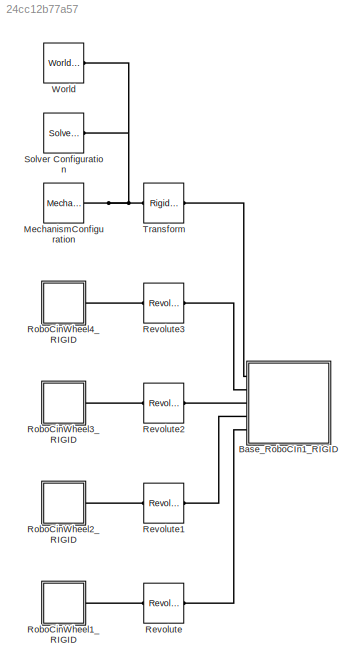
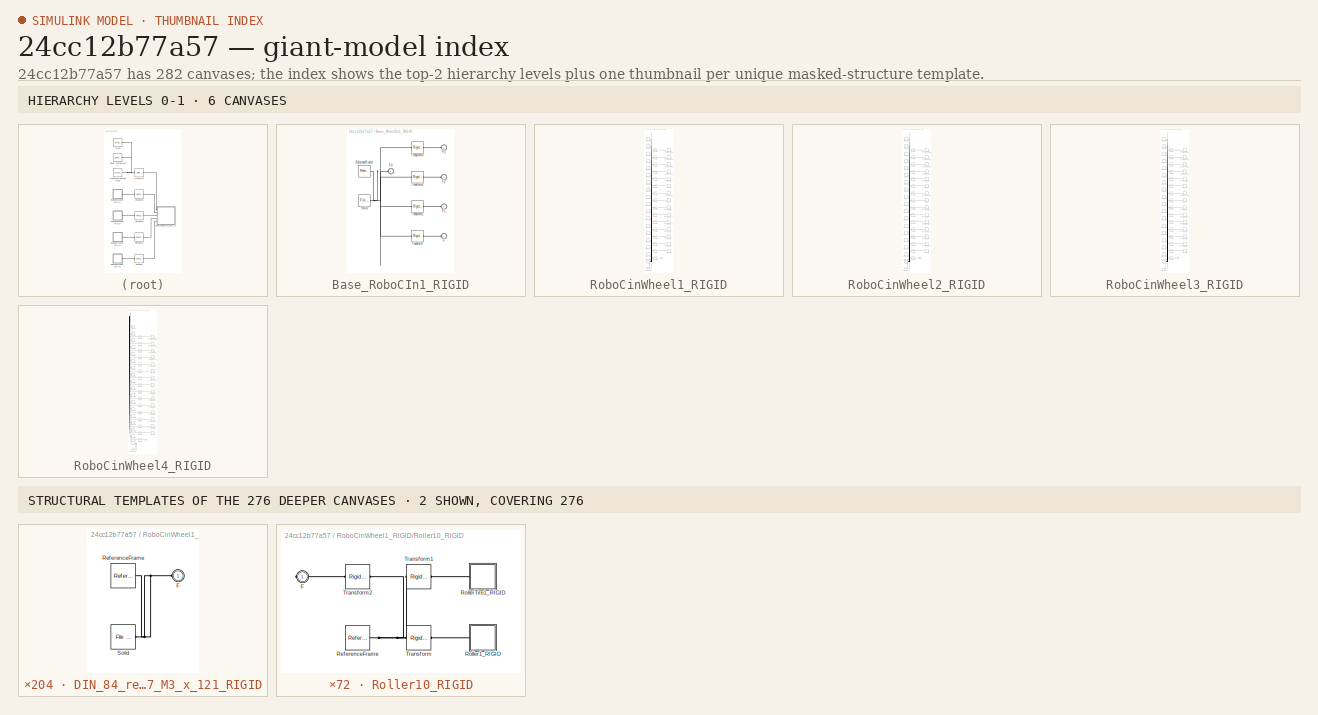
[diagram: thumbnail index - top-2 hierarchy levels (6 canvases) + 2 structural-template representatives of the remaining 276 canvases]
MODEL slx_24cc12b77a57
KIND model
CONFIG AbsTol = auto
CONFIG EnableMultiTasking = off
CONFIG FixedStep = auto
CONFIG MaxStep = auto
CONFIG MinStep = auto
CONFIG RelTol = 1e-3
CONFIG SampleTimeConstraint = Unconstrained
CONFIG SolverName = VariableStepAuto
CONFIG StartTime = 0.0
CONFIG StopTime = 10.0
WORKSPACE source: external: MATLAB File  (data not in archive)
BLOCK [SubSystem] Base_RoboCIn1_RIGID
  Ports = [0, 0, 0, 0, 0, 5]
  RequestExecContextInheritance = off
BLOCK [PMIOPort] Base_RoboCIn1_RIGID/F
  Port = 5
  Side = Left
BLOCK [PMIOPort] Base_RoboCIn1_RIGID/F1
  Port = 4
  Side = Left
BLOCK [PMIOPort] Base_RoboCIn1_RIGID/F2
  Port = 3
  Side = Left
BLOCK [PMIOPort] Base_RoboCIn1_RIGID/F3
  Port = 2
  Side = Left
BLOCK [PMIOPort] Base_RoboCIn1_RIGID/F4
  Side = Left
BLOCK [Reference] Base_RoboCIn1_RIGID/ReferenceFrame  REF=sm_lib/Frames and
Transforms/Reference
Frame
  Ports = [0, 0, 0, 0, 0, 0, 1]
  SourceBlock = sm_lib/Frames and\nTransforms/Reference\nFrame
  SourceProductBaseCode = MS
  SourceType = Reference\nFrame
BLOCK [Reference] Base_RoboCIn1_RIGID/Solid  REF=sm_lib/Body Elements/File Solid
  Ports = [0, 0, 0, 0, 0, 0, 1]
  SourceBlock = sm_lib/Body Elements/File Solid
  SourceProductBaseCode = MS
  SourceType = File Solid
BLOCK [Reference] Base_RoboCIn1_RIGID/Transform  REF=sm_lib/Frames and
Transforms/Rigid
Transform
  Ports = [0, 0, 0, 0, 0, 1, 1]
  SourceBlock = sm_lib/Frames and\nTransforms/Rigid\nTransform
  SourceProductBaseCode = MS
  SourceType = Rigid\nTransform
BLOCK [Reference] Base_RoboCIn1_RIGID/Transform1  REF=sm_lib/Frames and
Transforms/Rigid
Transform
  Ports = [0, 0, 0, 0, 0, 1, 1]
  SourceBlock = sm_lib/Frames and\nTransforms/Rigid\nTransform
  SourceProductBaseCode = MS
  SourceType = Rigid\nTransform
BLOCK [Reference] Base_RoboCIn1_RIGID/Transform2  REF=sm_lib/Frames and
Transforms/Rigid
Transform
  Ports = [0, 0, 0, 0, 0, 1, 1]
  SourceBlock = sm_lib/Frames and\nTransforms/Rigid\nTransform
  SourceProductBaseCode = MS
  SourceType = Rigid\nTransform
BLOCK [Reference] Base_RoboCIn1_RIGID/Transform3  REF=sm_lib/Frames and
Transforms/Rigid
Transform
  Ports = [0, 0, 0, 0, 0, 1, 1]
  SourceBlock = sm_lib/Frames and\nTransforms/Rigid\nTransform
  SourceProductBaseCode = MS
  SourceType = Rigid\nTransform
BLOCK [Reference] MechanismConfiguration  REF=sm_lib/Utilities/Mechanism
Configuration
  Ports = [0, 0, 0, 0, 0, 0, 1]
  SourceBlock = sm_lib/Utilities/Mechanism\nConfiguration
  SourceProductBaseCode = MS
  SourceType = Mechanism\nConfiguration
BLOCK [Reference] Revolute  REF=sm_lib/Joints/Revolute Joint
  Ports = [0, 0, 0, 0, 0, 1, 1]
  SourceBlock = sm_lib/Joints/Revolute Joint
  SourceProductBaseCode = MS
  SourceType = Revolute Joint
BLOCK [Reference] Revolute1  REF=sm_lib/Joints/Revolute Joint
  Ports = [0, 0, 0, 0, 0, 1, 1]
  SourceBlock = sm_lib/Joints/Revolute Joint
  SourceProductBaseCode = MS
  SourceType = Revolute Joint
BLOCK [Reference] Revolute2  REF=sm_lib/Joints/Revolute Joint
  Ports = [0, 0, 0, 0, 0, 1, 1]
  SourceBlock = sm_lib/Joints/Revolute Joint
  SourceProductBaseCode = MS
  SourceType = Revolute Joint
BLOCK [Reference] Revolute3  REF=sm_lib/Joints/Revolute Joint
  Ports = [0, 0, 0, 0, 0, 1, 1]
  SourceBlock = sm_lib/Joints/Revolute Joint
  SourceProductBaseCode = MS
  SourceType = Revolute Joint
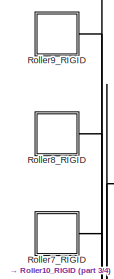
[diagram: RoboCinWheel1_RIGID - part 1/4, top left region]
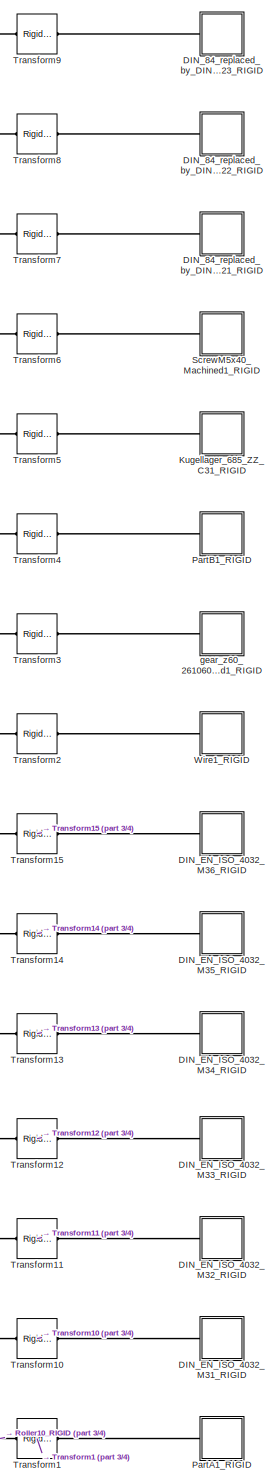
[diagram: RoboCinWheel1_RIGID - part 2/4, center side, full height]
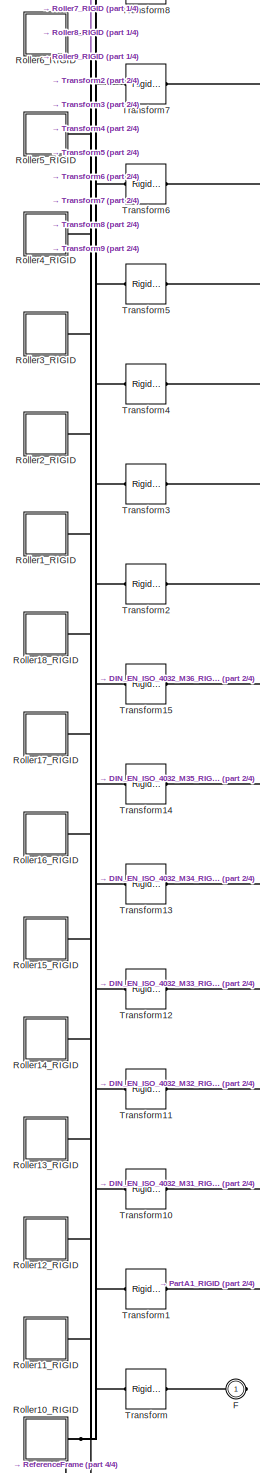
[diagram: RoboCinWheel1_RIGID - part 3/4, center side, full height]
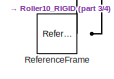
[diagram: RoboCinWheel1_RIGID - part 4/4, bottom left region]
BLOCK [SubSystem] RoboCinWheel1_RIGID
  Ports = [0, 0, 0, 0, 0, 0, 1]
  RequestExecContextInheritance = off
BLOCK [SubSystem] RoboCinWheel1_RIGID/DIN_84_replaced_by_DIN_EN_ISO_1207_M3_x_121_RIGID
  Ports = [0, 0, 0, 0, 0, 1]
  RequestExecContextInheritance = off
BLOCK [PMIOPort] RoboCinWheel1_RIGID/DIN_84_replaced_by_DIN_EN_ISO_1207_M3_x_121_RIGID/F
  Side = Left
BLOCK [Reference] RoboCinWheel1_RIGID/DIN_84_replaced_by_DIN_EN_ISO_1207_M3_x_121_RIGID/ReferenceFrame  REF=sm_lib/Frames and
Transforms/Reference
Frame
  Ports = [0, 0, 0, 0, 0, 0, 1]
  SourceBlock = sm_lib/Frames and\nTransforms/Reference\nFrame
  SourceProductBaseCode = MS
  SourceType = Reference\nFrame
BLOCK [Reference] RoboCinWheel1_RIGID/DIN_84_replaced_by_DIN_EN_ISO_1207_M3_x_121_RIGID/Solid  REF=sm_lib/Body Elements/File Solid
  Ports = [0, 0, 0, 0, 0, 0, 1]
  SourceBlock = sm_lib/Body Elements/File Solid
  SourceProductBaseCode = MS
  SourceType = File Solid
BLOCK [SubSystem] RoboCinWheel1_RIGID/DIN_84_replaced_by_DIN_EN_ISO_1207_M3_x_122_RIGID
  Ports = [0, 0, 0, 0, 0, 1]
  RequestExecContextInheritance = off
BLOCK [PMIOPort] RoboCinWheel1_RIGID/DIN_84_replaced_by_DIN_EN_ISO_1207_M3_x_122_RIGID/F
  Side = Left
BLOCK [Reference] RoboCinWheel1_RIGID/DIN_84_replaced_by_DIN_EN_ISO_1207_M3_x_122_RIGID/ReferenceFrame  REF=sm_lib/Frames and
Transforms/Reference
Frame
  Ports = [0, 0, 0, 0, 0, 0, 1]
  SourceBlock = sm_lib/Frames and\nTransforms/Reference\nFrame
  SourceProductBaseCode = MS
  SourceType = Reference\nFrame
BLOCK [Reference] RoboCinWheel1_RIGID/DIN_84_replaced_by_DIN_EN_ISO_1207_M3_x_122_RIGID/Solid  REF=sm_lib/Body Elements/File Solid
  Ports = [0, 0, 0, 0, 0, 0, 1]
  SourceBlock = sm_lib/Body Elements/File Solid
  SourceProductBaseCode = MS
  SourceType = File Solid
BLOCK [SubSystem] RoboCinWheel1_RIGID/DIN_84_replaced_by_DIN_EN_ISO_1207_M3_x_123_RIGID
  Ports = [0, 0, 0, 0, 0, 1]
  RequestExecContextInheritance = off
BLOCK [PMIOPort] RoboCinWheel1_RIGID/DIN_84_replaced_by_DIN_EN_ISO_1207_M3_x_123_RIGID/F
  Side = Left
BLOCK [Reference] RoboCinWheel1_RIGID/DIN_84_replaced_by_DIN_EN_ISO_1207_M3_x_123_RIGID/ReferenceFrame  REF=sm_lib/Frames and
Transforms/Reference
Frame
  Ports = [0, 0, 0, 0, 0, 0, 1]
  SourceBlock = sm_lib/Frames and\nTransforms/Reference\nFrame
  SourceProductBaseCode = MS
  SourceType = Reference\nFrame
BLOCK [Reference] RoboCinWheel1_RIGID/DIN_84_replaced_by_DIN_EN_ISO_1207_M3_x_123_RIGID/Solid  REF=sm_lib/Body Elements/File Solid
  Ports = [0, 0, 0, 0, 0, 0, 1]
  SourceBlock = sm_lib/Body Elements/File Solid
  SourceProductBaseCode = MS
  SourceType = File Solid
BLOCK [SubSystem] RoboCinWheel1_RIGID/DIN_EN_ISO_4032_M31_RIGID
  Ports = [0, 0, 0, 0, 0, 1]
  RequestExecContextInheritance = off
BLOCK [PMIOPort] RoboCinWheel1_RIGID/DIN_EN_ISO_4032_M31_RIGID/F
  Side = Left
BLOCK [Reference] RoboCinWheel1_RIGID/DIN_EN_ISO_4032_M31_RIGID/ReferenceFrame  REF=sm_lib/Frames and
Transforms/Reference
Frame
  Ports = [0, 0, 0, 0, 0, 0, 1]
  SourceBlock = sm_lib/Frames and\nTransforms/Reference\nFrame
  SourceProductBaseCode = MS
  SourceType = Reference\nFrame
BLOCK [Reference] RoboCinWheel1_RIGID/DIN_EN_ISO_4032_M31_RIGID/Solid  REF=sm_lib/Body Elements/File Solid
  Ports = [0, 0, 0, 0, 0, 0, 1]
  SourceBlock = sm_lib/Body Elements/File Solid
  SourceProductBaseCode = MS
  SourceType = File Solid
BLOCK [SubSystem] RoboCinWheel1_RIGID/DIN_EN_ISO_4032_M32_RIGID
  Ports = [0, 0, 0, 0, 0, 1]
  RequestExecContextInheritance = off
BLOCK [PMIOPort] RoboCinWheel1_RIGID/DIN_EN_ISO_4032_M32_RIGID/F
  Side = Left
BLOCK [Reference] RoboCinWheel1_RIGID/DIN_EN_ISO_4032_M32_RIGID/ReferenceFrame  REF=sm_lib/Frames and
Transforms/Reference
Frame
  Ports = [0, 0, 0, 0, 0, 0, 1]
  SourceBlock = sm_lib/Frames and\nTransforms/Reference\nFrame
  SourceProductBaseCode = MS
  SourceType = Reference\nFrame
BLOCK [Reference] RoboCinWheel1_RIGID/DIN_EN_ISO_4032_M32_RIGID/Solid  REF=sm_lib/Body Elements/File Solid
  Ports = [0, 0, 0, 0, 0, 0, 1]
  SourceBlock = sm_lib/Body Elements/File Solid
  SourceProductBaseCode = MS
  SourceType = File Solid
BLOCK [SubSystem] RoboCinWheel1_RIGID/DIN_EN_ISO_4032_M33_RIGID
  Ports = [0, 0, 0, 0, 0, 1]
  RequestExecContextInheritance = off
BLOCK [PMIOPort] RoboCinWheel1_RIGID/DIN_EN_ISO_4032_M33_RIGID/F
  Side = Left
BLOCK [Reference] RoboCinWheel1_RIGID/DIN_EN_ISO_4032_M33_RIGID/ReferenceFrame  REF=sm_lib/Frames and
Transforms/Reference
Frame
  Ports = [0, 0, 0, 0, 0, 0, 1]
  SourceBlock = sm_lib/Frames and\nTransforms/Reference\nFrame
  SourceProductBaseCode = MS
  SourceType = Reference\nFrame
BLOCK [Reference] RoboCinWheel1_RIGID/DIN_EN_ISO_4032_M33_RIGID/Solid  REF=sm_lib/Body Elements/File Solid
  Ports = [0, 0, 0, 0, 0, 0, 1]
  SourceBlock = sm_lib/Body Elements/File Solid
  SourceProductBaseCode = MS
  SourceType = File Solid
BLOCK [SubSystem] RoboCinWheel1_RIGID/DIN_EN_ISO_4032_M34_RIGID
  Ports = [0, 0, 0, 0, 0, 1]
  RequestExecContextInheritance = off
BLOCK [PMIOPort] RoboCinWheel1_RIGID/DIN_EN_ISO_4032_M34_RIGID/F
  Side = Left
BLOCK [Reference] RoboCinWheel1_RIGID/DIN_EN_ISO_4032_M34_RIGID/ReferenceFrame  REF=sm_lib/Frames and
Transforms/Reference
Frame
  Ports = [0, 0, 0, 0, 0, 0, 1]
  SourceBlock = sm_lib/Frames and\nTransforms/Reference\nFrame
  SourceProductBaseCode = MS
  SourceType = Reference\nFrame
BLOCK [Reference] RoboCinWheel1_RIGID/DIN_EN_ISO_4032_M34_RIGID/Solid  REF=sm_lib/Body Elements/File Solid
  Ports = [0, 0, 0, 0, 0, 0, 1]
  SourceBlock = sm_lib/Body Elements/File Solid
  SourceProductBaseCode = MS
  SourceType = File Solid
BLOCK [SubSystem] RoboCinWheel1_RIGID/DIN_EN_ISO_4032_M35_RIGID
  Ports = [0, 0, 0, 0, 0, 1]
  RequestExecContextInheritance = off
BLOCK [PMIOPort] RoboCinWheel1_RIGID/DIN_EN_ISO_4032_M35_RIGID/F
  Side = Left
BLOCK [Reference] RoboCinWheel1_RIGID/DIN_EN_ISO_4032_M35_RIGID/ReferenceFrame  REF=sm_lib/Frames and
Transforms/Reference
Frame
  Ports = [0, 0, 0, 0, 0, 0, 1]
  SourceBlock = sm_lib/Frames and\nTransforms/Reference\nFrame
  SourceProductBaseCode = MS
  SourceType = Reference\nFrame
BLOCK [Reference] RoboCinWheel1_RIGID/DIN_EN_ISO_4032_M35_RIGID/Solid  REF=sm_lib/Body Elements/File Solid
  Ports = [0, 0, 0, 0, 0, 0, 1]
  SourceBlock = sm_lib/Body Elements/File Solid
  SourceProductBaseCode = MS
  SourceType = File Solid
BLOCK [SubSystem] RoboCinWheel1_RIGID/DIN_EN_ISO_4032_M36_RIGID
  Ports = [0, 0, 0, 0, 0, 1]
  RequestExecContextInheritance = off
BLOCK [PMIOPort] RoboCinWheel1_RIGID/DIN_EN_ISO_4032_M36_RIGID/F
  Side = Left
BLOCK [Reference] RoboCinWheel1_RIGID/DIN_EN_ISO_4032_M36_RIGID/ReferenceFrame  REF=sm_lib/Frames and
Transforms/Reference
Frame
  Ports = [0, 0, 0, 0, 0, 0, 1]
  SourceBlock = sm_lib/Frames and\nTransforms/Reference\nFrame
  SourceProductBaseCode = MS
  SourceType = Reference\nFrame
BLOCK [Reference] RoboCinWheel1_RIGID/DIN_EN_ISO_4032_M36_RIGID/Solid  REF=sm_lib/Body Elements/File Solid
  Ports = [0, 0, 0, 0, 0, 0, 1]
  SourceBlock = sm_lib/Body Elements/File Solid
  SourceProductBaseCode = MS
  SourceType = File Solid
BLOCK [PMIOPort] RoboCinWheel1_RIGID/F
  Side = Right
BLOCK [SubSystem] RoboCinWheel1_RIGID/Kugellager_685_ZZ_C31_RIGID
  Ports = [0, 0, 0, 0, 0, 1]
  RequestExecContextInheritance = off
BLOCK [PMIOPort] RoboCinWheel1_RIGID/Kugellager_685_ZZ_C31_RIGID/F
  Side = Left
BLOCK [Reference] RoboCinWheel1_RIGID/Kugellager_685_ZZ_C31_RIGID/ReferenceFrame  REF=sm_lib/Frames and
Transforms/Reference
Frame
  Ports = [0, 0, 0, 0, 0, 0, 1]
  SourceBlock = sm_lib/Frames and\nTransforms/Reference\nFrame
  SourceProductBaseCode = MS
  SourceType = Reference\nFrame
BLOCK [Reference] RoboCinWheel1_RIGID/Kugellager_685_ZZ_C31_RIGID/Solid  REF=sm_lib/Body Elements/File Solid
  Ports = [0, 0, 0, 0, 0, 0, 1]
  SourceBlock = sm_lib/Body Elements/File Solid
  SourceProductBaseCode = MS
  SourceType = File Solid
BLOCK [SubSystem] RoboCinWheel1_RIGID/PartA1_RIGID
  Ports = [0, 0, 0, 0, 0, 1]
  RequestExecContextInheritance = off
BLOCK [PMIOPort] RoboCinWheel1_RIGID/PartA1_RIGID/F
  Side = Left
BLOCK [Reference] RoboCinWheel1_RIGID/PartA1_RIGID/ReferenceFrame  REF=sm_lib/Frames and
Transforms/Reference
Frame
  Ports = [0, 0, 0, 0, 0, 0, 1]
  SourceBlock = sm_lib/Frames and\nTransforms/Reference\nFrame
  SourceProductBaseCode = MS
  SourceType = Reference\nFrame
BLOCK [Reference] RoboCinWheel1_RIGID/PartA1_RIGID/Solid  REF=sm_lib/Body Elements/File Solid
  Ports = [0, 0, 0, 0, 0, 0, 1]
  SourceBlock = sm_lib/Body Elements/File Solid
  SourceProductBaseCode = MS
  SourceType = File Solid
BLOCK [SubSystem] RoboCinWheel1_RIGID/PartB1_RIGID
  Ports = [0, 0, 0, 0, 0, 1]
  RequestExecContextInheritance = off
BLOCK [PMIOPort] RoboCinWheel1_RIGID/PartB1_RIGID/F
  Side = Left
BLOCK [Reference] RoboCinWheel1_RIGID/PartB1_RIGID/ReferenceFrame  REF=sm_lib/Frames and
Transforms/Reference
Frame
  Ports = [0, 0, 0, 0, 0, 0, 1]
  SourceBlock = sm_lib/Frames and\nTransforms/Reference\nFrame
  SourceProductBaseCode = MS
  SourceType = Reference\nFrame
BLOCK [Reference] RoboCinWheel1_RIGID/PartB1_RIGID/Solid  REF=sm_lib/Body Elements/File Solid
  Ports = [0, 0, 0, 0, 0, 0, 1]
  SourceBlock = sm_lib/Body Elements/File Solid
  SourceProductBaseCode = MS
  SourceType = File Solid
BLOCK [Reference] RoboCinWheel1_RIGID/ReferenceFrame  REF=sm_lib/Frames and
Transforms/Reference
Frame
  Ports = [0, 0, 0, 0, 0, 0, 1]
  SourceBlock = sm_lib/Frames and\nTransforms/Reference\nFrame
  SourceProductBaseCode = MS
  SourceType = Reference\nFrame
BLOCK [SubSystem] RoboCinWheel1_RIGID/Roller10_RIGID
  Ports = [0, 0, 0, 0, 0, 0, 1]
  RequestExecContextInheritance = off
BLOCK [PMIOPort] RoboCinWheel1_RIGID/Roller10_RIGID/F
  Side = Right
BLOCK [Reference] RoboCinWheel1_RIGID/Roller10_RIGID/ReferenceFrame  REF=sm_lib/Frames and
Transforms/Reference
Frame
  Ports = [0, 0, 0, 0, 0, 0, 1]
  SourceBlock = sm_lib/Frames and\nTransforms/Reference\nFrame
  SourceProductBaseCode = MS
  SourceType = Reference\nFrame
BLOCK [SubSystem] RoboCinWheel1_RIGID/Roller10_RIGID/Roller1_RIGID
  Ports = [0, 0, 0, 0, 0, 1]
  RequestExecContextInheritance = off
BLOCK [PMIOPort] RoboCinWheel1_RIGID/Roller10_RIGID/Roller1_RIGID/F
  Side = Left
BLOCK [Reference] RoboCinWheel1_RIGID/Roller10_RIGID/Roller1_RIGID/ReferenceFrame  REF=sm_lib/Frames and
Transforms/Reference
Frame
  Ports = [0, 0, 0, 0, 0, 0, 1]
  SourceBlock = sm_lib/Frames and\nTransforms/Reference\nFrame
  SourceProductBaseCode = MS
  SourceType = Reference\nFrame
BLOCK [Reference] RoboCinWheel1_RIGID/Roller10_RIGID/Roller1_RIGID/Solid  REF=sm_lib/Body Elements/File Solid
  Ports = [0, 0, 0, 0, 0, 0, 1]
  SourceBlock = sm_lib/Body Elements/File Solid
  SourceProductBaseCode = MS
  SourceType = File Solid
BLOCK [SubSystem] RoboCinWheel1_RIGID/Roller10_RIGID/RollerTire1_RIGID
  Ports = [0, 0, 0, 0, 0, 1]
  RequestExecContextInheritance = off
BLOCK [PMIOPort] RoboCinWheel1_RIGID/Roller10_RIGID/RollerTire1_RIGID/F
  Side = Left
BLOCK [Reference] RoboCinWheel1_RIGID/Roller10_RIGID/RollerTire1_RIGID/ReferenceFrame  REF=sm_lib/Frames and
Transforms/Reference
Frame
  Ports = [0, 0, 0, 0, 0, 0, 1]
  SourceBlock = sm_lib/Frames and\nTransforms/Reference\nFrame
  SourceProductBaseCode = MS
  SourceType = Reference\nFrame
BLOCK [Reference] RoboCinWheel1_RIGID/Roller10_RIGID/RollerTire1_RIGID/Solid  REF=sm_lib/Body Elements/File Solid
  Ports = [0, 0, 0, 0, 0, 0, 1]
  SourceBlock = sm_lib/Body Elements/File Solid
  SourceProductBaseCode = MS
  SourceType = File Solid
BLOCK [Reference] RoboCinWheel1_RIGID/Roller10_RIGID/Transform  REF=sm_lib/Frames and
Transforms/Rigid
Transform
  Ports = [0, 0, 0, 0, 0, 1, 1]
  SourceBlock = sm_lib/Frames and\nTransforms/Rigid\nTransform
  SourceProductBaseCode = MS
  SourceType = Rigid\nTransform
BLOCK [Reference] RoboCinWheel1_RIGID/Roller10_RIGID/Transform1  REF=sm_lib/Frames and
Transforms/Rigid
Transform
  Ports = [0, 0, 0, 0, 0, 1, 1]
  SourceBlock = sm_lib/Frames and\nTransforms/Rigid\nTransform
  SourceProductBaseCode = MS
  SourceType = Rigid\nTransform
BLOCK [Reference] RoboCinWheel1_RIGID/Roller10_RIGID/Transform2  REF=sm_lib/Frames and
Transforms/Rigid
Transform
  Ports = [0, 0, 0, 0, 0, 1, 1]
  SourceBlock = sm_lib/Frames and\nTransforms/Rigid\nTransform
  SourceProductBaseCode = MS
  SourceType = Rigid\nTransform
BLOCK [SubSystem] RoboCinWheel1_RIGID/Roller11_RIGID
  Ports = [0, 0, 0, 0, 0, 0, 1]
  RequestExecContextInheritance = off
BLOCK [PMIOPort] RoboCinWheel1_RIGID/Roller11_RIGID/F
  Side = Right
BLOCK [Reference] RoboCinWheel1_RIGID/Roller11_RIGID/ReferenceFrame  REF=sm_lib/Frames and
Transforms/Reference
Frame
  Ports = [0, 0, 0, 0, 0, 0, 1]
  SourceBlock = sm_lib/Frames and\nTransforms/Reference\nFrame
  SourceProductBaseCode = MS
  SourceType = Reference\nFrame
BLOCK [SubSystem] RoboCinWheel1_RIGID/Roller11_RIGID/Roller1_RIGID
  Ports = [0, 0, 0, 0, 0, 1]
  RequestExecContextInheritance = off
BLOCK [PMIOPort] RoboCinWheel1_RIGID/Roller11_RIGID/Roller1_RIGID/F
  Side = Left
BLOCK [Reference] RoboCinWheel1_RIGID/Roller11_RIGID/Roller1_RIGID/ReferenceFrame  REF=sm_lib/Frames and
Transforms/Reference
Frame
  Ports = [0, 0, 0, 0, 0, 0, 1]
  SourceBlock = sm_lib/Frames and\nTransforms/Reference\nFrame
  SourceProductBaseCode = MS
  SourceType = Reference\nFrame
BLOCK [Reference] RoboCinWheel1_RIGID/Roller11_RIGID/Roller1_RIGID/Solid  REF=sm_lib/Body Elements/File Solid
  Ports = [0, 0, 0, 0, 0, 0, 1]
  SourceBlock = sm_lib/Body Elements/File Solid
  SourceProductBaseCode = MS
  SourceType = File Solid
BLOCK [SubSystem] RoboCinWheel1_RIGID/Roller11_RIGID/RollerTire1_RIGID
  Ports = [0, 0, 0, 0, 0, 1]
  RequestExecContextInheritance = off
BLOCK [PMIOPort] RoboCinWheel1_RIGID/Roller11_RIGID/RollerTire1_RIGID/F
  Side = Left
BLOCK [Reference] RoboCinWheel1_RIGID/Roller11_RIGID/RollerTire1_RIGID/ReferenceFrame  REF=sm_lib/Frames and
Transforms/Reference
Frame
  Ports = [0, 0, 0, 0, 0, 0, 1]
  SourceBlock = sm_lib/Frames and\nTransforms/Reference\nFrame
  SourceProductBaseCode = MS
  SourceType = Reference\nFrame
BLOCK [Reference] RoboCinWheel1_RIGID/Roller11_RIGID/RollerTire1_RIGID/Solid  REF=sm_lib/Body Elements/File Solid
  Ports = [0, 0, 0, 0, 0, 0, 1]
  SourceBlock = sm_lib/Body Elements/File Solid
  SourceProductBaseCode = MS
  SourceType = File Solid
BLOCK [Reference] RoboCinWheel1_RIGID/Roller11_RIGID/Transform  REF=sm_lib/Frames and
Transforms/Rigid
Transform
  Ports = [0, 0, 0, 0, 0, 1, 1]
  SourceBlock = sm_lib/Frames and\nTransforms/Rigid\nTransform
  SourceProductBaseCode = MS
  SourceType = Rigid\nTransform
BLOCK [Reference] RoboCinWheel1_RIGID/Roller11_RIGID/Transform1  REF=sm_lib/Frames and
Transforms/Rigid
Transform
  Ports = [0, 0, 0, 0, 0, 1, 1]
  SourceBlock = sm_lib/Frames and\nTransforms/Rigid\nTransform
  SourceProductBaseCode = MS
  SourceType = Rigid\nTransform
BLOCK [Reference] RoboCinWheel1_RIGID/Roller11_RIGID/Transform2  REF=sm_lib/Frames and
Transforms/Rigid
Transform
  Ports = [0, 0, 0, 0, 0, 1, 1]
  SourceBlock = sm_lib/Frames and\nTransforms/Rigid\nTransform
  SourceProductBaseCode = MS
  SourceType = Rigid\nTransform
BLOCK [SubSystem] RoboCinWheel1_RIGID/Roller12_RIGID
  Ports = [0, 0, 0, 0, 0, 0, 1]
  RequestExecContextInheritance = off
BLOCK [PMIOPort] RoboCinWheel1_RIGID/Roller12_RIGID/F
  Side = Right
BLOCK [Reference] RoboCinWheel1_RIGID/Roller12_RIGID/ReferenceFrame  REF=sm_lib/Frames and
Transforms/Reference
Frame
  Ports = [0, 0, 0, 0, 0, 0, 1]
  SourceBlock = sm_lib/Frames and\nTransforms/Reference\nFrame
  SourceProductBaseCode = MS
  SourceType = Reference\nFrame
BLOCK [SubSystem] RoboCinWheel1_RIGID/Roller12_RIGID/Roller1_RIGID
  Ports = [0, 0, 0, 0, 0, 1]
  RequestExecContextInheritance = off
BLOCK [PMIOPort] RoboCinWheel1_RIGID/Roller12_RIGID/Roller1_RIGID/F
  Side = Left
BLOCK [Reference] RoboCinWheel1_RIGID/Roller12_RIGID/Roller1_RIGID/ReferenceFrame  REF=sm_lib/Frames and
Transforms/Reference
Frame
  Ports = [0, 0, 0, 0, 0, 0, 1]
  SourceBlock = sm_lib/Frames and\nTransforms/Reference\nFrame
  SourceProductBaseCode = MS
  SourceType = Reference\nFrame
BLOCK [Reference] RoboCinWheel1_RIGID/Roller12_RIGID/Roller1_RIGID/Solid  REF=sm_lib/Body Elements/File Solid
  Ports = [0, 0, 0, 0, 0, 0, 1]
  SourceBlock = sm_lib/Body Elements/File Solid
  SourceProductBaseCode = MS
  SourceType = File Solid
BLOCK [SubSystem] RoboCinWheel1_RIGID/Roller12_RIGID/RollerTire1_RIGID
  Ports = [0, 0, 0, 0, 0, 1]
  RequestExecContextInheritance = off
BLOCK [PMIOPort] RoboCinWheel1_RIGID/Roller12_RIGID/RollerTire1_RIGID/F
  Side = Left
BLOCK [Reference] RoboCinWheel1_RIGID/Roller12_RIGID/RollerTire1_RIGID/ReferenceFrame  REF=sm_lib/Frames and
Transforms/Reference
Frame
  Ports = [0, 0, 0, 0, 0, 0, 1]
  SourceBlock = sm_lib/Frames and\nTransforms/Reference\nFrame
  SourceProductBaseCode = MS
  SourceType = Reference\nFrame
BLOCK [Reference] RoboCinWheel1_RIGID/Roller12_RIGID/RollerTire1_RIGID/Solid  REF=sm_lib/Body Elements/File Solid
  Ports = [0, 0, 0, 0, 0, 0, 1]
  SourceBlock = sm_lib/Body Elements/File Solid
  SourceProductBaseCode = MS
  SourceType = File Solid
BLOCK [Reference] RoboCinWheel1_RIGID/Roller12_RIGID/Transform  REF=sm_lib/Frames and
Transforms/Rigid
Transform
  Ports = [0, 0, 0, 0, 0, 1, 1]
  SourceBlock = sm_lib/Frames and\nTransforms/Rigid\nTransform
  SourceProductBaseCode = MS
  SourceType = Rigid\nTransform
BLOCK [Reference] RoboCinWheel1_RIGID/Roller12_RIGID/Transform1  REF=sm_lib/Frames and
Transforms/Rigid
Transform
  Ports = [0, 0, 0, 0, 0, 1, 1]
  SourceBlock = sm_lib/Frames and\nTransforms/Rigid\nTransform
  SourceProductBaseCode = MS
  SourceType = Rigid\nTransform
BLOCK [Reference] RoboCinWheel1_RIGID/Roller12_RIGID/Transform2  REF=sm_lib/Frames and
Transforms/Rigid
Transform
  Ports = [0, 0, 0, 0, 0, 1, 1]
  SourceBlock = sm_lib/Frames and\nTransforms/Rigid\nTransform
  SourceProductBaseCode = MS
  SourceType = Rigid\nTransform
BLOCK [SubSystem] RoboCinWheel1_RIGID/Roller13_RIGID
  Ports = [0, 0, 0, 0, 0, 0, 1]
  RequestExecContextInheritance = off
BLOCK [PMIOPort] RoboCinWheel1_RIGID/Roller13_RIGID/F
  Side = Right
BLOCK [Reference] RoboCinWheel1_RIGID/Roller13_RIGID/ReferenceFrame  REF=sm_lib/Frames and
Transforms/Reference
Frame
  Ports = [0, 0, 0, 0, 0, 0, 1]
  SourceBlock = sm_lib/Frames and\nTransforms/Reference\nFrame
  SourceProductBaseCode = MS
  SourceType = Reference\nFrame
BLOCK [SubSystem] RoboCinWheel1_RIGID/Roller13_RIGID/Roller1_RIGID
  Ports = [0, 0, 0, 0, 0, 1]
  RequestExecContextInheritance = off
BLOCK [PMIOPort] RoboCinWheel1_RIGID/Roller13_RIGID/Roller1_RIGID/F
  Side = Left
BLOCK [Reference] RoboCinWheel1_RIGID/Roller13_RIGID/Roller1_RIGID/ReferenceFrame  REF=sm_lib/Frames and
Transforms/Reference
Frame
  Ports = [0, 0, 0, 0, 0, 0, 1]
  SourceBlock = sm_lib/Frames and\nTransforms/Reference\nFrame
  SourceProductBaseCode = MS
  SourceType = Reference\nFrame
BLOCK [Reference] RoboCinWheel1_RIGID/Roller13_RIGID/Roller1_RIGID/Solid  REF=sm_lib/Body Elements/File Solid
  Ports = [0, 0, 0, 0, 0, 0, 1]
  SourceBlock = sm_lib/Body Elements/File Solid
  SourceProductBaseCode = MS
  SourceType = File Solid
BLOCK [SubSystem] RoboCinWheel1_RIGID/Roller13_RIGID/RollerTire1_RIGID
  Ports = [0, 0, 0, 0, 0, 1]
  RequestExecContextInheritance = off
BLOCK [PMIOPort] RoboCinWheel1_RIGID/Roller13_RIGID/RollerTire1_RIGID/F
  Side = Left
BLOCK [Reference] RoboCinWheel1_RIGID/Roller13_RIGID/RollerTire1_RIGID/ReferenceFrame  REF=sm_lib/Frames and
Transforms/Reference
Frame
  Ports = [0, 0, 0, 0, 0, 0, 1]
  SourceBlock = sm_lib/Frames and\nTransforms/Reference\nFrame
  SourceProductBaseCode = MS
  SourceType = Reference\nFrame
BLOCK [Reference] RoboCinWheel1_RIGID/Roller13_RIGID/RollerTire1_RIGID/Solid  REF=sm_lib/Body Elements/File Solid
  Ports = [0, 0, 0, 0, 0, 0, 1]
  SourceBlock = sm_lib/Body Elements/File Solid
  SourceProductBaseCode = MS
  SourceType = File Solid
BLOCK [Reference] RoboCinWheel1_RIGID/Roller13_RIGID/Transform  REF=sm_lib/Frames and
Transforms/Rigid
Transform
  Ports = [0, 0, 0, 0, 0, 1, 1]
  SourceBlock = sm_lib/Frames and\nTransforms/Rigid\nTransform
  SourceProductBaseCode = MS
  SourceType = Rigid\nTransform
BLOCK [Reference] RoboCinWheel1_RIGID/Roller13_RIGID/Transform1  REF=sm_lib/Frames and
Transforms/Rigid
Transform
  Ports = [0, 0, 0, 0, 0, 1, 1]
  SourceBlock = sm_lib/Frames and\nTransforms/Rigid\nTransform
  SourceProductBaseCode = MS
  SourceType = Rigid\nTransform
BLOCK [Reference] RoboCinWheel1_RIGID/Roller13_RIGID/Transform2  REF=sm_lib/Frames and
Transforms/Rigid
Transform
  Ports = [0, 0, 0, 0, 0, 1, 1]
  SourceBlock = sm_lib/Frames and\nTransforms/Rigid\nTransform
  SourceProductBaseCode = MS
  SourceType = Rigid\nTransform
BLOCK [SubSystem] RoboCinWheel1_RIGID/Roller14_RIGID
  Ports = [0, 0, 0, 0, 0, 0, 1]
  RequestExecContextInheritance = off
BLOCK [PMIOPort] RoboCinWheel1_RIGID/Roller14_RIGID/F
  Side = Right
BLOCK [Reference] RoboCinWheel1_RIGID/Roller14_RIGID/ReferenceFrame  REF=sm_lib/Frames and
Transforms/Reference
Frame
  Ports = [0, 0, 0, 0, 0, 0, 1]
  SourceBlock = sm_lib/Frames and\nTransforms/Reference\nFrame
  SourceProductBaseCode = MS
  SourceType = Reference\nFrame
BLOCK [SubSystem] RoboCinWheel1_RIGID/Roller14_RIGID/Roller1_RIGID
  Ports = [0, 0, 0, 0, 0, 1]
  RequestExecContextInheritance = off
BLOCK [PMIOPort] RoboCinWheel1_RIGID/Roller14_RIGID/Roller1_RIGID/F
  Side = Left
BLOCK [Reference] RoboCinWheel1_RIGID/Roller14_RIGID/Roller1_RIGID/ReferenceFrame  REF=sm_lib/Frames and
Transforms/Reference
Frame
  Ports = [0, 0, 0, 0, 0, 0, 1]
  SourceBlock = sm_lib/Frames and\nTransforms/Reference\nFrame
  SourceProductBaseCode = MS
  SourceType = Reference\nFrame
BLOCK [Reference] RoboCinWheel1_RIGID/Roller14_RIGID/Roller1_RIGID/Solid  REF=sm_lib/Body Elements/File Solid
  Ports = [0, 0, 0, 0, 0, 0, 1]
  SourceBlock = sm_lib/Body Elements/File Solid
  SourceProductBaseCode = MS
  SourceType = File Solid
BLOCK [SubSystem] RoboCinWheel1_RIGID/Roller14_RIGID/RollerTire1_RIGID
  Ports = [0, 0, 0, 0, 0, 1]
  RequestExecContextInheritance = off
BLOCK [PMIOPort] RoboCinWheel1_RIGID/Roller14_RIGID/RollerTire1_RIGID/F
  Side = Left
BLOCK [Reference] RoboCinWheel1_RIGID/Roller14_RIGID/RollerTire1_RIGID/ReferenceFrame  REF=sm_lib/Frames and
Transforms/Reference
Frame
  Ports = [0, 0, 0, 0, 0, 0, 1]
  SourceBlock = sm_lib/Frames and\nTransforms/Reference\nFrame
  SourceProductBaseCode = MS
  SourceType = Reference\nFrame
BLOCK [Reference] RoboCinWheel1_RIGID/Roller14_RIGID/RollerTire1_RIGID/Solid  REF=sm_lib/Body Elements/File Solid
  Ports = [0, 0, 0, 0, 0, 0, 1]
  SourceBlock = sm_lib/Body Elements/File Solid
  SourceProductBaseCode = MS
  SourceType = File Solid
BLOCK [Reference] RoboCinWheel1_RIGID/Roller14_RIGID/Transform  REF=sm_lib/Frames and
Transforms/Rigid
Transform
  Ports = [0, 0, 0, 0, 0, 1, 1]
  SourceBlock = sm_lib/Frames and\nTransforms/Rigid\nTransform
  SourceProductBaseCode = MS
  SourceType = Rigid\nTransform
BLOCK [Reference] RoboCinWheel1_RIGID/Roller14_RIGID/Transform1  REF=sm_lib/Frames and
Transforms/Rigid
Transform
  Ports = [0, 0, 0, 0, 0, 1, 1]
  SourceBlock = sm_lib/Frames and\nTransforms/Rigid\nTransform
  SourceProductBaseCode = MS
  SourceType = Rigid\nTransform
BLOCK [Reference] RoboCinWheel1_RIGID/Roller14_RIGID/Transform2  REF=sm_lib/Frames and
Transforms/Rigid
Transform
  Ports = [0, 0, 0, 0, 0, 1, 1]
  SourceBlock = sm_lib/Frames and\nTransforms/Rigid\nTransform
  SourceProductBaseCode = MS
  SourceType = Rigid\nTransform
BLOCK [SubSystem] RoboCinWheel1_RIGID/Roller15_RIGID
  Ports = [0, 0, 0, 0, 0, 0, 1]
  RequestExecContextInheritance = off
BLOCK [PMIOPort] RoboCinWheel1_RIGID/Roller15_RIGID/F
  Side = Right
BLOCK [Reference] RoboCinWheel1_RIGID/Roller15_RIGID/ReferenceFrame  REF=sm_lib/Frames and
Transforms/Reference
Frame
  Ports = [0, 0, 0, 0, 0, 0, 1]
  SourceBlock = sm_lib/Frames and\nTransforms/Reference\nFrame
  SourceProductBaseCode = MS
  SourceType = Reference\nFrame
BLOCK [SubSystem] RoboCinWheel1_RIGID/Roller15_RIGID/Roller1_RIGID
  Ports = [0, 0, 0, 0, 0, 1]
  RequestExecContextInheritance = off
BLOCK [PMIOPort] RoboCinWheel1_RIGID/Roller15_RIGID/Roller1_RIGID/F
  Side = Left
BLOCK [Reference] RoboCinWheel1_RIGID/Roller15_RIGID/Roller1_RIGID/ReferenceFrame  REF=sm_lib/Frames and
Transforms/Reference
Frame
  Ports = [0, 0, 0, 0, 0, 0, 1]
  SourceBlock = sm_lib/Frames and\nTransforms/Reference\nFrame
  SourceProductBaseCode = MS
  SourceType = Reference\nFrame
BLOCK [Reference] RoboCinWheel1_RIGID/Roller15_RIGID/Roller1_RIGID/Solid  REF=sm_lib/Body Elements/File Solid
  Ports = [0, 0, 0, 0, 0, 0, 1]
  SourceBlock = sm_lib/Body Elements/File Solid
  SourceProductBaseCode = MS
  SourceType = File Solid
BLOCK [SubSystem] RoboCinWheel1_RIGID/Roller15_RIGID/RollerTire1_RIGID
  Ports = [0, 0, 0, 0, 0, 1]
  RequestExecContextInheritance = off
BLOCK [PMIOPort] RoboCinWheel1_RIGID/Roller15_RIGID/RollerTire1_RIGID/F
  Side = Left
BLOCK [Reference] RoboCinWheel1_RIGID/Roller15_RIGID/RollerTire1_RIGID/ReferenceFrame  REF=sm_lib/Frames and
Transforms/Reference
Frame
  Ports = [0, 0, 0, 0, 0, 0, 1]
  SourceBlock = sm_lib/Frames and\nTransforms/Reference\nFrame
  SourceProductBaseCode = MS
  SourceType = Reference\nFrame
BLOCK [Reference] RoboCinWheel1_RIGID/Roller15_RIGID/RollerTire1_RIGID/Solid  REF=sm_lib/Body Elements/File Solid
  Ports = [0, 0, 0, 0, 0, 0, 1]
  SourceBlock = sm_lib/Body Elements/File Solid
  SourceProductBaseCode = MS
  SourceType = File Solid
BLOCK [Reference] RoboCinWheel1_RIGID/Roller15_RIGID/Transform  REF=sm_lib/Frames and
Transforms/Rigid
Transform
  Ports = [0, 0, 0, 0, 0, 1, 1]
  SourceBlock = sm_lib/Frames and\nTransforms/Rigid\nTransform
  SourceProductBaseCode = MS
  SourceType = Rigid\nTransform
BLOCK [Reference] RoboCinWheel1_RIGID/Roller15_RIGID/Transform1  REF=sm_lib/Frames and
Transforms/Rigid
Transform
  Ports = [0, 0, 0, 0, 0, 1, 1]
  SourceBlock = sm_lib/Frames and\nTransforms/Rigid\nTransform
  SourceProductBaseCode = MS
  SourceType = Rigid\nTransform
BLOCK [Reference] RoboCinWheel1_RIGID/Roller15_RIGID/Transform2  REF=sm_lib/Frames and
Transforms/Rigid
Transform
  Ports = [0, 0, 0, 0, 0, 1, 1]
  SourceBlock = sm_lib/Frames and\nTransforms/Rigid\nTransform
  SourceProductBaseCode = MS
  SourceType = Rigid\nTransform
BLOCK [SubSystem] RoboCinWheel1_RIGID/Roller16_RIGID
  Ports = [0, 0, 0, 0, 0, 0, 1]
  RequestExecContextInheritance = off
BLOCK [PMIOPort] RoboCinWheel1_RIGID/Roller16_RIGID/F
  Side = Right
BLOCK [Reference] RoboCinWheel1_RIGID/Roller16_RIGID/ReferenceFrame  REF=sm_lib/Frames and
Transforms/Reference
Frame
  Ports = [0, 0, 0, 0, 0, 0, 1]
  SourceBlock = sm_lib/Frames and\nTransforms/Reference\nFrame
  SourceProductBaseCode = MS
  SourceType = Reference\nFrame
BLOCK [SubSystem] RoboCinWheel1_RIGID/Roller16_RIGID/Roller1_RIGID
  Ports = [0, 0, 0, 0, 0, 1]
  RequestExecContextInheritance = off
BLOCK [PMIOPort] RoboCinWheel1_RIGID/Roller16_RIGID/Roller1_RIGID/F
  Side = Left
BLOCK [Reference] RoboCinWheel1_RIGID/Roller16_RIGID/Roller1_RIGID/ReferenceFrame  REF=sm_lib/Frames and
Transforms/Reference
Frame
  Ports = [0, 0, 0, 0, 0, 0, 1]
  SourceBlock = sm_lib/Frames and\nTransforms/Reference\nFrame
  SourceProductBaseCode = MS
  SourceType = Reference\nFrame
BLOCK [Reference] RoboCinWheel1_RIGID/Roller16_RIGID/Roller1_RIGID/Solid  REF=sm_lib/Body Elements/File Solid
  Ports = [0, 0, 0, 0, 0, 0, 1]
  SourceBlock = sm_lib/Body Elements/File Solid
  SourceProductBaseCode = MS
  SourceType = File Solid
BLOCK [SubSystem] RoboCinWheel1_RIGID/Roller16_RIGID/RollerTire1_RIGID
  Ports = [0, 0, 0, 0, 0, 1]
  RequestExecContextInheritance = off
BLOCK [PMIOPort] RoboCinWheel1_RIGID/Roller16_RIGID/RollerTire1_RIGID/F
  Side = Left
BLOCK [Reference] RoboCinWheel1_RIGID/Roller16_RIGID/RollerTire1_RIGID/ReferenceFrame  REF=sm_lib/Frames and
Transforms/Reference
Frame
  Ports = [0, 0, 0, 0, 0, 0, 1]
  SourceBlock = sm_lib/Frames and\nTransforms/Reference\nFrame
  SourceProductBaseCode = MS
  SourceType = Reference\nFrame
BLOCK [Reference] RoboCinWheel1_RIGID/Roller16_RIGID/RollerTire1_RIGID/Solid  REF=sm_lib/Body Elements/File Solid
  Ports = [0, 0, 0, 0, 0, 0, 1]
  SourceBlock = sm_lib/Body Elements/File Solid
  SourceProductBaseCode = MS
  SourceType = File Solid
BLOCK [Reference] RoboCinWheel1_RIGID/Roller16_RIGID/Transform  REF=sm_lib/Frames and
Transforms/Rigid
Transform
  Ports = [0, 0, 0, 0, 0, 1, 1]
  SourceBlock = sm_lib/Frames and\nTransforms/Rigid\nTransform
  SourceProductBaseCode = MS
  SourceType = Rigid\nTransform
BLOCK [Reference] RoboCinWheel1_RIGID/Roller16_RIGID/Transform1  REF=sm_lib/Frames and
Transforms/Rigid
Transform
  Ports = [0, 0, 0, 0, 0, 1, 1]
  SourceBlock = sm_lib/Frames and\nTransforms/Rigid\nTransform
  SourceProductBaseCode = MS
  SourceType = Rigid\nTransform
BLOCK [Reference] RoboCinWheel1_RIGID/Roller16_RIGID/Transform2  REF=sm_lib/Frames and
Transforms/Rigid
Transform
  Ports = [0, 0, 0, 0, 0, 1, 1]
  SourceBlock = sm_lib/Frames and\nTransforms/Rigid\nTransform
  SourceProductBaseCode = MS
  SourceType = Rigid\nTransform
BLOCK [SubSystem] RoboCinWheel1_RIGID/Roller17_RIGID
  Ports = [0, 0, 0, 0, 0, 0, 1]
  RequestExecContextInheritance = off
BLOCK [PMIOPort] RoboCinWheel1_RIGID/Roller17_RIGID/F
  Side = Right
BLOCK [Reference] RoboCinWheel1_RIGID/Roller17_RIGID/ReferenceFrame  REF=sm_lib/Frames and
Transforms/Reference
Frame
  Ports = [0, 0, 0, 0, 0, 0, 1]
  SourceBlock = sm_lib/Frames and\nTransforms/Reference\nFrame
  SourceProductBaseCode = MS
  SourceType = Reference\nFrame
BLOCK [SubSystem] RoboCinWheel1_RIGID/Roller17_RIGID/Roller1_RIGID
  Ports = [0, 0, 0, 0, 0, 1]
  RequestExecContextInheritance = off
BLOCK [PMIOPort] RoboCinWheel1_RIGID/Roller17_RIGID/Roller1_RIGID/F
  Side = Left
BLOCK [Reference] RoboCinWheel1_RIGID/Roller17_RIGID/Roller1_RIGID/ReferenceFrame  REF=sm_lib/Frames and
Transforms/Reference
Frame
  Ports = [0, 0, 0, 0, 0, 0, 1]
  SourceBlock = sm_lib/Frames and\nTransforms/Reference\nFrame
  SourceProductBaseCode = MS
  SourceType = Reference\nFrame
BLOCK [Reference] RoboCinWheel1_RIGID/Roller17_RIGID/Roller1_RIGID/Solid  REF=sm_lib/Body Elements/File Solid
  Ports = [0, 0, 0, 0, 0, 0, 1]
  SourceBlock = sm_lib/Body Elements/File Solid
  SourceProductBaseCode = MS
  SourceType = File Solid
BLOCK [SubSystem] RoboCinWheel1_RIGID/Roller17_RIGID/RollerTire1_RIGID
  Ports = [0, 0, 0, 0, 0, 1]
  RequestExecContextInheritance = off
BLOCK [PMIOPort] RoboCinWheel1_RIGID/Roller17_RIGID/RollerTire1_RIGID/F
  Side = Left
BLOCK [Reference] RoboCinWheel1_RIGID/Roller17_RIGID/RollerTire1_RIGID/ReferenceFrame  REF=sm_lib/Frames and
Transforms/Reference
Frame
  Ports = [0, 0, 0, 0, 0, 0, 1]
  SourceBlock = sm_lib/Frames and\nTransforms/Reference\nFrame
  SourceProductBaseCode = MS
  SourceType = Reference\nFrame
BLOCK [Reference] RoboCinWheel1_RIGID/Roller17_RIGID/RollerTire1_RIGID/Solid  REF=sm_lib/Body Elements/File Solid
  Ports = [0, 0, 0, 0, 0, 0, 1]
  SourceBlock = sm_lib/Body Elements/File Solid
  SourceProductBaseCode = MS
  SourceType = File Solid
BLOCK [Reference] RoboCinWheel1_RIGID/Roller17_RIGID/Transform  REF=sm_lib/Frames and
Transforms/Rigid
Transform
  Ports = [0, 0, 0, 0, 0, 1, 1]
  SourceBlock = sm_lib/Frames and\nTransforms/Rigid\nTransform
  SourceProductBaseCode = MS
  SourceType = Rigid\nTransform
BLOCK [Reference] RoboCinWheel1_RIGID/Roller17_RIGID/Transform1  REF=sm_lib/Frames and
Transforms/Rigid
Transform
  Ports = [0, 0, 0, 0, 0, 1, 1]
  SourceBlock = sm_lib/Frames and\nTransforms/Rigid\nTransform
  SourceProductBaseCode = MS
  SourceType = Rigid\nTransform
BLOCK [Reference] RoboCinWheel1_RIGID/Roller17_RIGID/Transform2  REF=sm_lib/Frames and
Transforms/Rigid
Transform
  Ports = [0, 0, 0, 0, 0, 1, 1]
  SourceBlock = sm_lib/Frames and\nTransforms/Rigid\nTransform
  SourceProductBaseCode = MS
  SourceType = Rigid\nTransform
BLOCK [SubSystem] RoboCinWheel1_RIGID/Roller18_RIGID
  Ports = [0, 0, 0, 0, 0, 0, 1]
  RequestExecContextInheritance = off
BLOCK [PMIOPort] RoboCinWheel1_RIGID/Roller18_RIGID/F
  Side = Right
BLOCK [Reference] RoboCinWheel1_RIGID/Roller18_RIGID/ReferenceFrame  REF=sm_lib/Frames and
Transforms/Reference
Frame
  Ports = [0, 0, 0, 0, 0, 0, 1]
  SourceBlock = sm_lib/Frames and\nTransforms/Reference\nFrame
  SourceProductBaseCode = MS
  SourceType = Reference\nFrame
BLOCK [SubSystem] RoboCinWheel1_RIGID/Roller18_RIGID/Roller1_RIGID
  Ports = [0, 0, 0, 0, 0, 1]
  RequestExecContextInheritance = off
BLOCK [PMIOPort] RoboCinWheel1_RIGID/Roller18_RIGID/Roller1_RIGID/F
  Side = Left
BLOCK [Reference] RoboCinWheel1_RIGID/Roller18_RIGID/Roller1_RIGID/ReferenceFrame  REF=sm_lib/Frames and
Transforms/Reference
Frame
  Ports = [0, 0, 0, 0, 0, 0, 1]
  SourceBlock = sm_lib/Frames and\nTransforms/Reference\nFrame
  SourceProductBaseCode = MS
  SourceType = Reference\nFrame
BLOCK [Reference] RoboCinWheel1_RIGID/Roller18_RIGID/Roller1_RIGID/Solid  REF=sm_lib/Body Elements/File Solid
  Ports = [0, 0, 0, 0, 0, 0, 1]
  SourceBlock = sm_lib/Body Elements/File Solid
  SourceProductBaseCode = MS
  SourceType = File Solid
BLOCK [SubSystem] RoboCinWheel1_RIGID/Roller18_RIGID/RollerTire1_RIGID
  Ports = [0, 0, 0, 0, 0, 1]
  RequestExecContextInheritance = off
BLOCK [PMIOPort] RoboCinWheel1_RIGID/Roller18_RIGID/RollerTire1_RIGID/F
  Side = Left
BLOCK [Reference] RoboCinWheel1_RIGID/Roller18_RIGID/RollerTire1_RIGID/ReferenceFrame  REF=sm_lib/Frames and
Transforms/Reference
Frame
  Ports = [0, 0, 0, 0, 0, 0, 1]
  SourceBlock = sm_lib/Frames and\nTransforms/Reference\nFrame
  SourceProductBaseCode = MS
  SourceType = Reference\nFrame
BLOCK [Reference] RoboCinWheel1_RIGID/Roller18_RIGID/RollerTire1_RIGID/Solid  REF=sm_lib/Body Elements/File Solid
  Ports = [0, 0, 0, 0, 0, 0, 1]
  SourceBlock = sm_lib/Body Elements/File Solid
  SourceProductBaseCode = MS
  SourceType = File Solid
BLOCK [Reference] RoboCinWheel1_RIGID/Roller18_RIGID/Transform  REF=sm_lib/Frames and
Transforms/Rigid
Transform
  Ports = [0, 0, 0, 0, 0, 1, 1]
  SourceBlock = sm_lib/Frames and\nTransforms/Rigid\nTransform
  SourceProductBaseCode = MS
  SourceType = Rigid\nTransform
BLOCK [Reference] RoboCinWheel1_RIGID/Roller18_RIGID/Transform1  REF=sm_lib/Frames and
Transforms/Rigid
Transform
  Ports = [0, 0, 0, 0, 0, 1, 1]
  SourceBlock = sm_lib/Frames and\nTransforms/Rigid\nTransform
  SourceProductBaseCode = MS
  SourceType = Rigid\nTransform
BLOCK [Reference] RoboCinWheel1_RIGID/Roller18_RIGID/Transform2  REF=sm_lib/Frames and
Transforms/Rigid
Transform
  Ports = [0, 0, 0, 0, 0, 1, 1]
  SourceBlock = sm_lib/Frames and\nTransforms/Rigid\nTransform
  SourceProductBaseCode = MS
  SourceType = Rigid\nTransform
BLOCK [SubSystem] RoboCinWheel1_RIGID/Roller1_RIGID
  Ports = [0, 0, 0, 0, 0, 0, 1]
  RequestExecContextInheritance = off
BLOCK [PMIOPort] RoboCinWheel1_RIGID/Roller1_RIGID/F
  Side = Right
BLOCK [Reference] RoboCinWheel1_RIGID/Roller1_RIGID/ReferenceFrame  REF=sm_lib/Frames and
Transforms/Reference
Frame
  Ports = [0, 0, 0, 0, 0, 0, 1]
  SourceBlock = sm_lib/Frames and\nTransforms/Reference\nFrame
  SourceProductBaseCode = MS
  SourceType = Reference\nFrame
BLOCK [SubSystem] RoboCinWheel1_RIGID/Roller1_RIGID/Roller1_RIGID
  Ports = [0, 0, 0, 0, 0, 1]
  RequestExecContextInheritance = off
BLOCK [PMIOPort] RoboCinWheel1_RIGID/Roller1_RIGID/Roller1_RIGID/F
  Side = Left
BLOCK [Reference] RoboCinWheel1_RIGID/Roller1_RIGID/Roller1_RIGID/ReferenceFrame  REF=sm_lib/Frames and
Transforms/Reference
Frame
  Ports = [0, 0, 0, 0, 0, 0, 1]
  SourceBlock = sm_lib/Frames and\nTransforms/Reference\nFrame
  SourceProductBaseCode = MS
  SourceType = Reference\nFrame
BLOCK [Reference] RoboCinWheel1_RIGID/Roller1_RIGID/Roller1_RIGID/Solid  REF=sm_lib/Body Elements/File Solid
  Ports = [0, 0, 0, 0, 0, 0, 1]
  SourceBlock = sm_lib/Body Elements/File Solid
  SourceProductBaseCode = MS
  SourceType = File Solid
BLOCK [SubSystem] RoboCinWheel1_RIGID/Roller1_RIGID/RollerTire1_RIGID
  Ports = [0, 0, 0, 0, 0, 1]
  RequestExecContextInheritance = off
BLOCK [PMIOPort] RoboCinWheel1_RIGID/Roller1_RIGID/RollerTire1_RIGID/F
  Side = Left
BLOCK [Reference] RoboCinWheel1_RIGID/Roller1_RIGID/RollerTire1_RIGID/ReferenceFrame  REF=sm_lib/Frames and
Transforms/Reference
Frame
  Ports = [0, 0, 0, 0, 0, 0, 1]
  SourceBlock = sm_lib/Frames and\nTransforms/Reference\nFrame
  SourceProductBaseCode = MS
  SourceType = Reference\nFrame
BLOCK [Reference] RoboCinWheel1_RIGID/Roller1_RIGID/RollerTire1_RIGID/Solid  REF=sm_lib/Body Elements/File Solid
  Ports = [0, 0, 0, 0, 0, 0, 1]
  SourceBlock = sm_lib/Body Elements/File Solid
  SourceProductBaseCode = MS
  SourceType = File Solid
BLOCK [Reference] RoboCinWheel1_RIGID/Roller1_RIGID/Transform  REF=sm_lib/Frames and
Transforms/Rigid
Transform
  Ports = [0, 0, 0, 0, 0, 1, 1]
  SourceBlock = sm_lib/Frames and\nTransforms/Rigid\nTransform
  SourceProductBaseCode = MS
  SourceType = Rigid\nTransform
BLOCK [Reference] RoboCinWheel1_RIGID/Roller1_RIGID/Transform1  REF=sm_lib/Frames and
Transforms/Rigid
Transform
  Ports = [0, 0, 0, 0, 0, 1, 1]
  SourceBlock = sm_lib/Frames and\nTransforms/Rigid\nTransform
  SourceProductBaseCode = MS
  SourceType = Rigid\nTransform
BLOCK [Reference] RoboCinWheel1_RIGID/Roller1_RIGID/Transform2  REF=sm_lib/Frames and
Transforms/Rigid
Transform
  Ports = [0, 0, 0, 0, 0, 1, 1]
  SourceBlock = sm_lib/Frames and\nTransforms/Rigid\nTransform
  SourceProductBaseCode = MS
  SourceType = Rigid\nTransform
BLOCK [SubSystem] RoboCinWheel1_RIGID/Roller2_RIGID
  Ports = [0, 0, 0, 0, 0, 0, 1]
  RequestExecContextInheritance = off
BLOCK [PMIOPort] RoboCinWheel1_RIGID/Roller2_RIGID/F
  Side = Right
BLOCK [Reference] RoboCinWheel1_RIGID/Roller2_RIGID/ReferenceFrame  REF=sm_lib/Frames and
Transforms/Reference
Frame
  Ports = [0, 0, 0, 0, 0, 0, 1]
  SourceBlock = sm_lib/Frames and\nTransforms/Reference\nFrame
  SourceProductBaseCode = MS
  SourceType = Reference\nFrame
BLOCK [SubSystem] RoboCinWheel1_RIGID/Roller2_RIGID/Roller1_RIGID
  Ports = [0, 0, 0, 0, 0, 1]
  RequestExecContextInheritance = off
BLOCK [PMIOPort] RoboCinWheel1_RIGID/Roller2_RIGID/Roller1_RIGID/F
  Side = Left
BLOCK [Reference] RoboCinWheel1_RIGID/Roller2_RIGID/Roller1_RIGID/ReferenceFrame  REF=sm_lib/Frames and
Transforms/Reference
Frame
  Ports = [0, 0, 0, 0, 0, 0, 1]
  SourceBlock = sm_lib/Frames and\nTransforms/Reference\nFrame
  SourceProductBaseCode = MS
  SourceType = Reference\nFrame
BLOCK [Reference] RoboCinWheel1_RIGID/Roller2_RIGID/Roller1_RIGID/Solid  REF=sm_lib/Body Elements/File Solid
  Ports = [0, 0, 0, 0, 0, 0, 1]
  SourceBlock = sm_lib/Body Elements/File Solid
  SourceProductBaseCode = MS
  SourceType = File Solid
BLOCK [SubSystem] RoboCinWheel1_RIGID/Roller2_RIGID/RollerTire1_RIGID
  Ports = [0, 0, 0, 0, 0, 1]
  RequestExecContextInheritance = off
BLOCK [PMIOPort] RoboCinWheel1_RIGID/Roller2_RIGID/RollerTire1_RIGID/F
  Side = Left
BLOCK [Reference] RoboCinWheel1_RIGID/Roller2_RIGID/RollerTire1_RIGID/ReferenceFrame  REF=sm_lib/Frames and
Transforms/Reference
Frame
  Ports = [0, 0, 0, 0, 0, 0, 1]
  SourceBlock = sm_lib/Frames and\nTransforms/Reference\nFrame
  SourceProductBaseCode = MS
  SourceType = Reference\nFrame
BLOCK [Reference] RoboCinWheel1_RIGID/Roller2_RIGID/RollerTire1_RIGID/Solid  REF=sm_lib/Body Elements/File Solid
  Ports = [0, 0, 0, 0, 0, 0, 1]
  SourceBlock = sm_lib/Body Elements/File Solid
  SourceProductBaseCode = MS
  SourceType = File Solid
BLOCK [Reference] RoboCinWheel1_RIGID/Roller2_RIGID/Transform  REF=sm_lib/Frames and
Transforms/Rigid
Transform
  Ports = [0, 0, 0, 0, 0, 1, 1]
  SourceBlock = sm_lib/Frames and\nTransforms/Rigid\nTransform
  SourceProductBaseCode = MS
  SourceType = Rigid\nTransform
BLOCK [Reference] RoboCinWheel1_RIGID/Roller2_RIGID/Transform1  REF=sm_lib/Frames and
Transforms/Rigid
Transform
  Ports = [0, 0, 0, 0, 0, 1, 1]
  SourceBlock = sm_lib/Frames and\nTransforms/Rigid\nTransform
  SourceProductBaseCode = MS
  SourceType = Rigid\nTransform
BLOCK [Reference] RoboCinWheel1_RIGID/Roller2_RIGID/Transform2  REF=sm_lib/Frames and
Transforms/Rigid
Transform
  Ports = [0, 0, 0, 0, 0, 1, 1]
  SourceBlock = sm_lib/Frames and\nTransforms/Rigid\nTransform
  SourceProductBaseCode = MS
  SourceType = Rigid\nTransform
BLOCK [SubSystem] RoboCinWheel1_RIGID/Roller3_RIGID
  Ports = [0, 0, 0, 0, 0, 0, 1]
  RequestExecContextInheritance = off
BLOCK [PMIOPort] RoboCinWheel1_RIGID/Roller3_RIGID/F
  Side = Right
BLOCK [Reference] RoboCinWheel1_RIGID/Roller3_RIGID/ReferenceFrame  REF=sm_lib/Frames and
Transforms/Reference
Frame
  Ports = [0, 0, 0, 0, 0, 0, 1]
  SourceBlock = sm_lib/Frames and\nTransforms/Reference\nFrame
  SourceProductBaseCode = MS
  SourceType = Reference\nFrame
BLOCK [SubSystem] RoboCinWheel1_RIGID/Roller3_RIGID/Roller1_RIGID
  Ports = [0, 0, 0, 0, 0, 1]
  RequestExecContextInheritance = off
BLOCK [PMIOPort] RoboCinWheel1_RIGID/Roller3_RIGID/Roller1_RIGID/F
  Side = Left
BLOCK [Reference] RoboCinWheel1_RIGID/Roller3_RIGID/Roller1_RIGID/ReferenceFrame  REF=sm_lib/Frames and
Transforms/Reference
Frame
  Ports = [0, 0, 0, 0, 0, 0, 1]
  SourceBlock = sm_lib/Frames and\nTransforms/Reference\nFrame
  SourceProductBaseCode = MS
  SourceType = Reference\nFrame
BLOCK [Reference] RoboCinWheel1_RIGID/Roller3_RIGID/Roller1_RIGID/Solid  REF=sm_lib/Body Elements/File Solid
  Ports = [0, 0, 0, 0, 0, 0, 1]
  SourceBlock = sm_lib/Body Elements/File Solid
  SourceProductBaseCode = MS
  SourceType = File Solid
BLOCK [SubSystem] RoboCinWheel1_RIGID/Roller3_RIGID/RollerTire1_RIGID
  Ports = [0, 0, 0, 0, 0, 1]
  RequestExecContextInheritance = off
BLOCK [PMIOPort] RoboCinWheel1_RIGID/Roller3_RIGID/RollerTire1_RIGID/F
  Side = Left
BLOCK [Reference] RoboCinWheel1_RIGID/Roller3_RIGID/RollerTire1_RIGID/ReferenceFrame  REF=sm_lib/Frames and
Transforms/Reference
Frame
  Ports = [0, 0, 0, 0, 0, 0, 1]
  SourceBlock = sm_lib/Frames and\nTransforms/Reference\nFrame
  SourceProductBaseCode = MS
  SourceType = Reference\nFrame
BLOCK [Reference] RoboCinWheel1_RIGID/Roller3_RIGID/RollerTire1_RIGID/Solid  REF=sm_lib/Body Elements/File Solid
  Ports = [0, 0, 0, 0, 0, 0, 1]
  SourceBlock = sm_lib/Body Elements/File Solid
  SourceProductBaseCode = MS
  SourceType = File Solid
BLOCK [Reference] RoboCinWheel1_RIGID/Roller3_RIGID/Transform  REF=sm_lib/Frames and
Transforms/Rigid
Transform
  Ports = [0, 0, 0, 0, 0, 1, 1]
  SourceBlock = sm_lib/Frames and\nTransforms/Rigid\nTransform
  SourceProductBaseCode = MS
  SourceType = Rigid\nTransform
BLOCK [Reference] RoboCinWheel1_RIGID/Roller3_RIGID/Transform1  REF=sm_lib/Frames and
Transforms/Rigid
Transform
  Ports = [0, 0, 0, 0, 0, 1, 1]
  SourceBlock = sm_lib/Frames and\nTransforms/Rigid\nTransform
  SourceProductBaseCode = MS
  SourceType = Rigid\nTransform
BLOCK [Reference] RoboCinWheel1_RIGID/Roller3_RIGID/Transform2  REF=sm_lib/Frames and
Transforms/Rigid
Transform
  Ports = [0, 0, 0, 0, 0, 1, 1]
  SourceBlock = sm_lib/Frames and\nTransforms/Rigid\nTransform
  SourceProductBaseCode = MS
  SourceType = Rigid\nTransform
BLOCK [SubSystem] RoboCinWheel1_RIGID/Roller4_RIGID
  Ports = [0, 0, 0, 0, 0, 0, 1]
  RequestExecContextInheritance = off
BLOCK [PMIOPort] RoboCinWheel1_RIGID/Roller4_RIGID/F
  Side = Right
BLOCK [Reference] RoboCinWheel1_RIGID/Roller4_RIGID/ReferenceFrame  REF=sm_lib/Frames and
Transforms/Reference
Frame
  Ports = [0, 0, 0, 0, 0, 0, 1]
  SourceBlock = sm_lib/Frames and\nTransforms/Reference\nFrame
  SourceProductBaseCode = MS
  SourceType = Reference\nFrame
BLOCK [SubSystem] RoboCinWheel1_RIGID/Roller4_RIGID/Roller1_RIGID
  Ports = [0, 0, 0, 0, 0, 1]
  RequestExecContextInheritance = off
BLOCK [PMIOPort] RoboCinWheel1_RIGID/Roller4_RIGID/Roller1_RIGID/F
  Side = Left
BLOCK [Reference] RoboCinWheel1_RIGID/Roller4_RIGID/Roller1_RIGID/ReferenceFrame  REF=sm_lib/Frames and
Transforms/Reference
Frame
  Ports = [0, 0, 0, 0, 0, 0, 1]
  SourceBlock = sm_lib/Frames and\nTransforms/Reference\nFrame
  SourceProductBaseCode = MS
  SourceType = Reference\nFrame
BLOCK [Reference] RoboCinWheel1_RIGID/Roller4_RIGID/Roller1_RIGID/Solid  REF=sm_lib/Body Elements/File Solid
  Ports = [0, 0, 0, 0, 0, 0, 1]
  SourceBlock = sm_lib/Body Elements/File Solid
  SourceProductBaseCode = MS
  SourceType = File Solid
BLOCK [SubSystem] RoboCinWheel1_RIGID/Roller4_RIGID/RollerTire1_RIGID
  Ports = [0, 0, 0, 0, 0, 1]
  RequestExecContextInheritance = off
BLOCK [PMIOPort] RoboCinWheel1_RIGID/Roller4_RIGID/RollerTire1_RIGID/F
  Side = Left
BLOCK [Reference] RoboCinWheel1_RIGID/Roller4_RIGID/RollerTire1_RIGID/ReferenceFrame  REF=sm_lib/Frames and
Transforms/Reference
Frame
  Ports = [0, 0, 0, 0, 0, 0, 1]
  SourceBlock = sm_lib/Frames and\nTransforms/Reference\nFrame
  SourceProductBaseCode = MS
  SourceType = Reference\nFrame
BLOCK [Reference] RoboCinWheel1_RIGID/Roller4_RIGID/RollerTire1_RIGID/Solid  REF=sm_lib/Body Elements/File Solid
  Ports = [0, 0, 0, 0, 0, 0, 1]
  SourceBlock = sm_lib/Body Elements/File Solid
  SourceProductBaseCode = MS
  SourceType = File Solid
BLOCK [Reference] RoboCinWheel1_RIGID/Roller4_RIGID/Transform  REF=sm_lib/Frames and
Transforms/Rigid
Transform
  Ports = [0, 0, 0, 0, 0, 1, 1]
  SourceBlock = sm_lib/Frames and\nTransforms/Rigid\nTransform
  SourceProductBaseCode = MS
  SourceType = Rigid\nTransform
BLOCK [Reference] RoboCinWheel1_RIGID/Roller4_RIGID/Transform1  REF=sm_lib/Frames and
Transforms/Rigid
Transform
  Ports = [0, 0, 0, 0, 0, 1, 1]
  SourceBlock = sm_lib/Frames and\nTransforms/Rigid\nTransform
  SourceProductBaseCode = MS
  SourceType = Rigid\nTransform
BLOCK [Reference] RoboCinWheel1_RIGID/Roller4_RIGID/Transform2  REF=sm_lib/Frames and
Transforms/Rigid
Transform
  Ports = [0, 0, 0, 0, 0, 1, 1]
  SourceBlock = sm_lib/Frames and\nTransforms/Rigid\nTransform
  SourceProductBaseCode = MS
  SourceType = Rigid\nTransform
BLOCK [SubSystem] RoboCinWheel1_RIGID/Roller5_RIGID
  Ports = [0, 0, 0, 0, 0, 0, 1]
  RequestExecContextInheritance = off
BLOCK [PMIOPort] RoboCinWheel1_RIGID/Roller5_RIGID/F
  Side = Right
BLOCK [Reference] RoboCinWheel1_RIGID/Roller5_RIGID/ReferenceFrame  REF=sm_lib/Frames and
Transforms/Reference
Frame
  Ports = [0, 0, 0, 0, 0, 0, 1]
  SourceBlock = sm_lib/Frames and\nTransforms/Reference\nFrame
  SourceProductBaseCode = MS
  SourceType = Reference\nFrame
BLOCK [SubSystem] RoboCinWheel1_RIGID/Roller5_RIGID/Roller1_RIGID
  Ports = [0, 0, 0, 0, 0, 1]
  RequestExecContextInheritance = off
BLOCK [PMIOPort] RoboCinWheel1_RIGID/Roller5_RIGID/Roller1_RIGID/F
  Side = Left
BLOCK [Reference] RoboCinWheel1_RIGID/Roller5_RIGID/Roller1_RIGID/ReferenceFrame  REF=sm_lib/Frames and
Transforms/Reference
Frame
  Ports = [0, 0, 0, 0, 0, 0, 1]
  SourceBlock = sm_lib/Frames and\nTransforms/Reference\nFrame
  SourceProductBaseCode = MS
  SourceType = Reference\nFrame
BLOCK [Reference] RoboCinWheel1_RIGID/Roller5_RIGID/Roller1_RIGID/Solid  REF=sm_lib/Body Elements/File Solid
  Ports = [0, 0, 0, 0, 0, 0, 1]
  SourceBlock = sm_lib/Body Elements/File Solid
  SourceProductBaseCode = MS
  SourceType = File Solid
BLOCK [SubSystem] RoboCinWheel1_RIGID/Roller5_RIGID/RollerTire1_RIGID
  Ports = [0, 0, 0, 0, 0, 1]
  RequestExecContextInheritance = off
BLOCK [PMIOPort] RoboCinWheel1_RIGID/Roller5_RIGID/RollerTire1_RIGID/F
  Side = Left
BLOCK [Reference] RoboCinWheel1_RIGID/Roller5_RIGID/RollerTire1_RIGID/ReferenceFrame  REF=sm_lib/Frames and
Transforms/Reference
Frame
  Ports = [0, 0, 0, 0, 0, 0, 1]
  SourceBlock = sm_lib/Frames and\nTransforms/Reference\nFrame
  SourceProductBaseCode = MS
  SourceType = Reference\nFrame
BLOCK [Reference] RoboCinWheel1_RIGID/Roller5_RIGID/RollerTire1_RIGID/Solid  REF=sm_lib/Body Elements/File Solid
  Ports = [0, 0, 0, 0, 0, 0, 1]
  SourceBlock = sm_lib/Body Elements/File Solid
  SourceProductBaseCode = MS
  SourceType = File Solid
BLOCK [Reference] RoboCinWheel1_RIGID/Roller5_RIGID/Transform  REF=sm_lib/Frames and
Transforms/Rigid
Transform
  Ports = [0, 0, 0, 0, 0, 1, 1]
  SourceBlock = sm_lib/Frames and\nTransforms/Rigid\nTransform
  SourceProductBaseCode = MS
  SourceType = Rigid\nTransform
BLOCK [Reference] RoboCinWheel1_RIGID/Roller5_RIGID/Transform1  REF=sm_lib/Frames and
Transforms/Rigid
Transform
  Ports = [0, 0, 0, 0, 0, 1, 1]
  SourceBlock = sm_lib/Frames and\nTransforms/Rigid\nTransform
  SourceProductBaseCode = MS
  SourceType = Rigid\nTransform
BLOCK [Reference] RoboCinWheel1_RIGID/Roller5_RIGID/Transform2  REF=sm_lib/Frames and
Transforms/Rigid
Transform
  Ports = [0, 0, 0, 0, 0, 1, 1]
  SourceBlock = sm_lib/Frames and\nTransforms/Rigid\nTransform
  SourceProductBaseCode = MS
  SourceType = Rigid\nTransform
BLOCK [SubSystem] RoboCinWheel1_RIGID/Roller6_RIGID
  Ports = [0, 0, 0, 0, 0, 0, 1]
  RequestExecContextInheritance = off
BLOCK [PMIOPort] RoboCinWheel1_RIGID/Roller6_RIGID/F
  Side = Right
BLOCK [Reference] RoboCinWheel1_RIGID/Roller6_RIGID/ReferenceFrame  REF=sm_lib/Frames and
Transforms/Reference
Frame
  Ports = [0, 0, 0, 0, 0, 0, 1]
  SourceBlock = sm_lib/Frames and\nTransforms/Reference\nFrame
  SourceProductBaseCode = MS
  SourceType = Reference\nFrame
BLOCK [SubSystem] RoboCinWheel1_RIGID/Roller6_RIGID/Roller1_RIGID
  Ports = [0, 0, 0, 0, 0, 1]
  RequestExecContextInheritance = off
BLOCK [PMIOPort] RoboCinWheel1_RIGID/Roller6_RIGID/Roller1_RIGID/F
  Side = Left
BLOCK [Reference] RoboCinWheel1_RIGID/Roller6_RIGID/Roller1_RIGID/ReferenceFrame  REF=sm_lib/Frames and
Transforms/Reference
Frame
  Ports = [0, 0, 0, 0, 0, 0, 1]
  SourceBlock = sm_lib/Frames and\nTransforms/Reference\nFrame
  SourceProductBaseCode = MS
  SourceType = Reference\nFrame
BLOCK [Reference] RoboCinWheel1_RIGID/Roller6_RIGID/Roller1_RIGID/Solid  REF=sm_lib/Body Elements/File Solid
  Ports = [0, 0, 0, 0, 0, 0, 1]
  SourceBlock = sm_lib/Body Elements/File Solid
  SourceProductBaseCode = MS
  SourceType = File Solid
BLOCK [SubSystem] RoboCinWheel1_RIGID/Roller6_RIGID/RollerTire1_RIGID
  Ports = [0, 0, 0, 0, 0, 1]
  RequestExecContextInheritance = off
BLOCK [PMIOPort] RoboCinWheel1_RIGID/Roller6_RIGID/RollerTire1_RIGID/F
  Side = Left
BLOCK [Reference] RoboCinWheel1_RIGID/Roller6_RIGID/RollerTire1_RIGID/ReferenceFrame  REF=sm_lib/Frames and
Transforms/Reference
Frame
  Ports = [0, 0, 0, 0, 0, 0, 1]
  SourceBlock = sm_lib/Frames and\nTransforms/Reference\nFrame
  SourceProductBaseCode = MS
  SourceType = Reference\nFrame
BLOCK [Reference] RoboCinWheel1_RIGID/Roller6_RIGID/RollerTire1_RIGID/Solid  REF=sm_lib/Body Elements/File Solid
  Ports = [0, 0, 0, 0, 0, 0, 1]
  SourceBlock = sm_lib/Body Elements/File Solid
  SourceProductBaseCode = MS
  SourceType = File Solid
BLOCK [Reference] RoboCinWheel1_RIGID/Roller6_RIGID/Transform  REF=sm_lib/Frames and
Transforms/Rigid
Transform
  Ports = [0, 0, 0, 0, 0, 1, 1]
  SourceBlock = sm_lib/Frames and\nTransforms/Rigid\nTransform
  SourceProductBaseCode = MS
  SourceType = Rigid\nTransform
BLOCK [Reference] RoboCinWheel1_RIGID/Roller6_RIGID/Transform1  REF=sm_lib/Frames and
Transforms/Rigid
Transform
  Ports = [0, 0, 0, 0, 0, 1, 1]
  SourceBlock = sm_lib/Frames and\nTransforms/Rigid\nTransform
  SourceProductBaseCode = MS
  SourceType = Rigid\nTransform
BLOCK [Reference] RoboCinWheel1_RIGID/Roller6_RIGID/Transform2  REF=sm_lib/Frames and
Transforms/Rigid
Transform
  Ports = [0, 0, 0, 0, 0, 1, 1]
  SourceBlock = sm_lib/Frames and\nTransforms/Rigid\nTransform
  SourceProductBaseCode = MS
  SourceType = Rigid\nTransform
BLOCK [SubSystem] RoboCinWheel1_RIGID/Roller7_RIGID
  Ports = [0, 0, 0, 0, 0, 0, 1]
  RequestExecContextInheritance = off
BLOCK [PMIOPort] RoboCinWheel1_RIGID/Roller7_RIGID/F
  Side = Right
BLOCK [Reference] RoboCinWheel1_RIGID/Roller7_RIGID/ReferenceFrame  REF=sm_lib/Frames and
Transforms/Reference
Frame
  Ports = [0, 0, 0, 0, 0, 0, 1]
  SourceBlock = sm_lib/Frames and\nTransforms/Reference\nFrame
  SourceProductBaseCode = MS
  SourceType = Reference\nFrame
BLOCK [SubSystem] RoboCinWheel1_RIGID/Roller7_RIGID/Roller1_RIGID
  Ports = [0, 0, 0, 0, 0, 1]
  RequestExecContextInheritance = off
BLOCK [PMIOPort] RoboCinWheel1_RIGID/Roller7_RIGID/Roller1_RIGID/F
  Side = Left
BLOCK [Reference] RoboCinWheel1_RIGID/Roller7_RIGID/Roller1_RIGID/ReferenceFrame  REF=sm_lib/Frames and
Transforms/Reference
Frame
  Ports = [0, 0, 0, 0, 0, 0, 1]
  SourceBlock = sm_lib/Frames and\nTransforms/Reference\nFrame
  SourceProductBaseCode = MS
  SourceType = Reference\nFrame
BLOCK [Reference] RoboCinWheel1_RIGID/Roller7_RIGID/Roller1_RIGID/Solid  REF=sm_lib/Body Elements/File Solid
  Ports = [0, 0, 0, 0, 0, 0, 1]
  SourceBlock = sm_lib/Body Elements/File Solid
  SourceProductBaseCode = MS
  SourceType = File Solid
BLOCK [SubSystem] RoboCinWheel1_RIGID/Roller7_RIGID/RollerTire1_RIGID
  Ports = [0, 0, 0, 0, 0, 1]
  RequestExecContextInheritance = off
BLOCK [PMIOPort] RoboCinWheel1_RIGID/Roller7_RIGID/RollerTire1_RIGID/F
  Side = Left
BLOCK [Reference] RoboCinWheel1_RIGID/Roller7_RIGID/RollerTire1_RIGID/ReferenceFrame  REF=sm_lib/Frames and
Transforms/Reference
Frame
  Ports = [0, 0, 0, 0, 0, 0, 1]
  SourceBlock = sm_lib/Frames and\nTransforms/Reference\nFrame
  SourceProductBaseCode = MS
  SourceType = Reference\nFrame
BLOCK [Reference] RoboCinWheel1_RIGID/Roller7_RIGID/RollerTire1_RIGID/Solid  REF=sm_lib/Body Elements/File Solid
  Ports = [0, 0, 0, 0, 0, 0, 1]
  SourceBlock = sm_lib/Body Elements/File Solid
  SourceProductBaseCode = MS
  SourceType = File Solid
BLOCK [Reference] RoboCinWheel1_RIGID/Roller7_RIGID/Transform  REF=sm_lib/Frames and
Transforms/Rigid
Transform
  Ports = [0, 0, 0, 0, 0, 1, 1]
  SourceBlock = sm_lib/Frames and\nTransforms/Rigid\nTransform
  SourceProductBaseCode = MS
  SourceType = Rigid\nTransform
BLOCK [Reference] RoboCinWheel1_RIGID/Roller7_RIGID/Transform1  REF=sm_lib/Frames and
Transforms/Rigid
Transform
  Ports = [0, 0, 0, 0, 0, 1, 1]
  SourceBlock = sm_lib/Frames and\nTransforms/Rigid\nTransform
  SourceProductBaseCode = MS
  SourceType = Rigid\nTransform
BLOCK [Reference] RoboCinWheel1_RIGID/Roller7_RIGID/Transform2  REF=sm_lib/Frames and
Transforms/Rigid
Transform
  Ports = [0, 0, 0, 0, 0, 1, 1]
  SourceBlock = sm_lib/Frames and\nTransforms/Rigid\nTransform
  SourceProductBaseCode = MS
  SourceType = Rigid\nTransform
BLOCK [SubSystem] RoboCinWheel1_RIGID/Roller8_RIGID
  Ports = [0, 0, 0, 0, 0, 0, 1]
  RequestExecContextInheritance = off
BLOCK [PMIOPort] RoboCinWheel1_RIGID/Roller8_RIGID/F
  Side = Right
BLOCK [Reference] RoboCinWheel1_RIGID/Roller8_RIGID/ReferenceFrame  REF=sm_lib/Frames and
Transforms/Reference
Frame
  Ports = [0, 0, 0, 0, 0, 0, 1]
  SourceBlock = sm_lib/Frames and\nTransforms/Reference\nFrame
  SourceProductBaseCode = MS
  SourceType = Reference\nFrame
BLOCK [SubSystem] RoboCinWheel1_RIGID/Roller8_RIGID/Roller1_RIGID
  Ports = [0, 0, 0, 0, 0, 1]
  RequestExecContextInheritance = off
BLOCK [PMIOPort] RoboCinWheel1_RIGID/Roller8_RIGID/Roller1_RIGID/F
  Side = Left
BLOCK [Reference] RoboCinWheel1_RIGID/Roller8_RIGID/Roller1_RIGID/ReferenceFrame  REF=sm_lib/Frames and
Transforms/Reference
Frame
  Ports = [0, 0, 0, 0, 0, 0, 1]
  SourceBlock = sm_lib/Frames and\nTransforms/Reference\nFrame
  SourceProductBaseCode = MS
  SourceType = Reference\nFrame
BLOCK [Reference] RoboCinWheel1_RIGID/Roller8_RIGID/Roller1_RIGID/Solid  REF=sm_lib/Body Elements/File Solid
  Ports = [0, 0, 0, 0, 0, 0, 1]
  SourceBlock = sm_lib/Body Elements/File Solid
  SourceProductBaseCode = MS
  SourceType = File Solid
BLOCK [SubSystem] RoboCinWheel1_RIGID/Roller8_RIGID/RollerTire1_RIGID
  Ports = [0, 0, 0, 0, 0, 1]
  RequestExecContextInheritance = off
BLOCK [PMIOPort] RoboCinWheel1_RIGID/Roller8_RIGID/RollerTire1_RIGID/F
  Side = Left
BLOCK [Reference] RoboCinWheel1_RIGID/Roller8_RIGID/RollerTire1_RIGID/ReferenceFrame  REF=sm_lib/Frames and
Transforms/Reference
Frame
  Ports = [0, 0, 0, 0, 0, 0, 1]
  SourceBlock = sm_lib/Frames and\nTransforms/Reference\nFrame
  SourceProductBaseCode = MS
  SourceType = Reference\nFrame
BLOCK [Reference] RoboCinWheel1_RIGID/Roller8_RIGID/RollerTire1_RIGID/Solid  REF=sm_lib/Body Elements/File Solid
  Ports = [0, 0, 0, 0, 0, 0, 1]
  SourceBlock = sm_lib/Body Elements/File Solid
  SourceProductBaseCode = MS
  SourceType = File Solid
BLOCK [Reference] RoboCinWheel1_RIGID/Roller8_RIGID/Transform  REF=sm_lib/Frames and
Transforms/Rigid
Transform
  Ports = [0, 0, 0, 0, 0, 1, 1]
  SourceBlock = sm_lib/Frames and\nTransforms/Rigid\nTransform
  SourceProductBaseCode = MS
  SourceType = Rigid\nTransform
BLOCK [Reference] RoboCinWheel1_RIGID/Roller8_RIGID/Transform1  REF=sm_lib/Frames and
Transforms/Rigid
Transform
  Ports = [0, 0, 0, 0, 0, 1, 1]
  SourceBlock = sm_lib/Frames and\nTransforms/Rigid\nTransform
  SourceProductBaseCode = MS
  SourceType = Rigid\nTransform
BLOCK [Reference] RoboCinWheel1_RIGID/Roller8_RIGID/Transform2  REF=sm_lib/Frames and
Transforms/Rigid
Transform
  Ports = [0, 0, 0, 0, 0, 1, 1]
  SourceBlock = sm_lib/Frames and\nTransforms/Rigid\nTransform
  SourceProductBaseCode = MS
  SourceType = Rigid\nTransform
BLOCK [SubSystem] RoboCinWheel1_RIGID/Roller9_RIGID
  Ports = [0, 0, 0, 0, 0, 0, 1]
  RequestExecContextInheritance = off
BLOCK [PMIOPort] RoboCinWheel1_RIGID/Roller9_RIGID/F
  Side = Right
BLOCK [Reference] RoboCinWheel1_RIGID/Roller9_RIGID/ReferenceFrame  REF=sm_lib/Frames and
Transforms/Reference
Frame
  Ports = [0, 0, 0, 0, 0, 0, 1]
  SourceBlock = sm_lib/Frames and\nTransforms/Reference\nFrame
  SourceProductBaseCode = MS
  SourceType = Reference\nFrame
BLOCK [SubSystem] RoboCinWheel1_RIGID/Roller9_RIGID/Roller1_RIGID
  Ports = [0, 0, 0, 0, 0, 1]
  RequestExecContextInheritance = off
BLOCK [PMIOPort] RoboCinWheel1_RIGID/Roller9_RIGID/Roller1_RIGID/F
  Side = Left
BLOCK [Reference] RoboCinWheel1_RIGID/Roller9_RIGID/Roller1_RIGID/ReferenceFrame  REF=sm_lib/Frames and
Transforms/Reference
Frame
  Ports = [0, 0, 0, 0, 0, 0, 1]
  SourceBlock = sm_lib/Frames and\nTransforms/Reference\nFrame
  SourceProductBaseCode = MS
  SourceType = Reference\nFrame
BLOCK [Reference] RoboCinWheel1_RIGID/Roller9_RIGID/Roller1_RIGID/Solid  REF=sm_lib/Body Elements/File Solid
  Ports = [0, 0, 0, 0, 0, 0, 1]
  SourceBlock = sm_lib/Body Elements/File Solid
  SourceProductBaseCode = MS
  SourceType = File Solid
BLOCK [SubSystem] RoboCinWheel1_RIGID/Roller9_RIGID/RollerTire1_RIGID
  Ports = [0, 0, 0, 0, 0, 1]
  RequestExecContextInheritance = off
BLOCK [PMIOPort] RoboCinWheel1_RIGID/Roller9_RIGID/RollerTire1_RIGID/F
  Side = Left
BLOCK [Reference] RoboCinWheel1_RIGID/Roller9_RIGID/RollerTire1_RIGID/ReferenceFrame  REF=sm_lib/Frames and
Transforms/Reference
Frame
  Ports = [0, 0, 0, 0, 0, 0, 1]
  SourceBlock = sm_lib/Frames and\nTransforms/Reference\nFrame
  SourceProductBaseCode = MS
  SourceType = Reference\nFrame
BLOCK [Reference] RoboCinWheel1_RIGID/Roller9_RIGID/RollerTire1_RIGID/Solid  REF=sm_lib/Body Elements/File Solid
  Ports = [0, 0, 0, 0, 0, 0, 1]
  SourceBlock = sm_lib/Body Elements/File Solid
  SourceProductBaseCode = MS
  SourceType = File Solid
BLOCK [Reference] RoboCinWheel1_RIGID/Roller9_RIGID/Transform  REF=sm_lib/Frames and
Transforms/Rigid
Transform
  Ports = [0, 0, 0, 0, 0, 1, 1]
  SourceBlock = sm_lib/Frames and\nTransforms/Rigid\nTransform
  SourceProductBaseCode = MS
  SourceType = Rigid\nTransform
BLOCK [Reference] RoboCinWheel1_RIGID/Roller9_RIGID/Transform1  REF=sm_lib/Frames and
Transforms/Rigid
Transform
  Ports = [0, 0, 0, 0, 0, 1, 1]
  SourceBlock = sm_lib/Frames and\nTransforms/Rigid\nTransform
  SourceProductBaseCode = MS
  SourceType = Rigid\nTransform
BLOCK [Reference] RoboCinWheel1_RIGID/Roller9_RIGID/Transform2  REF=sm_lib/Frames and
Transforms/Rigid
Transform
  Ports = [0, 0, 0, 0, 0, 1, 1]
  SourceBlock = sm_lib/Frames and\nTransforms/Rigid\nTransform
  SourceProductBaseCode = MS
  SourceType = Rigid\nTransform
BLOCK [SubSystem] RoboCinWheel1_RIGID/ScrewM5x40_Machined1_RIGID
  Ports = [0, 0, 0, 0, 0, 1]
  RequestExecContextInheritance = off
BLOCK [PMIOPort] RoboCinWheel1_RIGID/ScrewM5x40_Machined1_RIGID/F
  Side = Left
BLOCK [Reference] RoboCinWheel1_RIGID/ScrewM5x40_Machined1_RIGID/ReferenceFrame  REF=sm_lib/Frames and
Transforms/Reference
Frame
  Ports = [0, 0, 0, 0, 0, 0, 1]
  SourceBlock = sm_lib/Frames and\nTransforms/Reference\nFrame
  SourceProductBaseCode = MS
  SourceType = Reference\nFrame
BLOCK [Reference] RoboCinWheel1_RIGID/ScrewM5x40_Machined1_RIGID/Solid  REF=sm_lib/Body Elements/File Solid
  Ports = [0, 0, 0, 0, 0, 0, 1]
  SourceBlock = sm_lib/Body Elements/File Solid
  SourceProductBaseCode = MS
  SourceType = File Solid
BLOCK [Reference] RoboCinWheel1_RIGID/Transform  REF=sm_lib/Frames and
Transforms/Rigid
Transform
  Ports = [0, 0, 0, 0, 0, 1, 1]
  SourceBlock = sm_lib/Frames and\nTransforms/Rigid\nTransform
  SourceProductBaseCode = MS
  SourceType = Rigid\nTransform
BLOCK [Reference] RoboCinWheel1_RIGID/Transform1  REF=sm_lib/Frames and
Transforms/Rigid
Transform
  Ports = [0, 0, 0, 0, 0, 1, 1]
  SourceBlock = sm_lib/Frames and\nTransforms/Rigid\nTransform
  SourceProductBaseCode = MS
  SourceType = Rigid\nTransform
BLOCK [Reference] RoboCinWheel1_RIGID/Transform10  REF=sm_lib/Frames and
Transforms/Rigid
Transform
  Ports = [0, 0, 0, 0, 0, 1, 1]
  SourceBlock = sm_lib/Frames and\nTransforms/Rigid\nTransform
  SourceProductBaseCode = MS
  SourceType = Rigid\nTransform
BLOCK [Reference] RoboCinWheel1_RIGID/Transform11  REF=sm_lib/Frames and
Transforms/Rigid
Transform
  Ports = [0, 0, 0, 0, 0, 1, 1]
  SourceBlock = sm_lib/Frames and\nTransforms/Rigid\nTransform
  SourceProductBaseCode = MS
  SourceType = Rigid\nTransform
BLOCK [Reference] RoboCinWheel1_RIGID/Transform12  REF=sm_lib/Frames and
Transforms/Rigid
Transform
  Ports = [0, 0, 0, 0, 0, 1, 1]
  SourceBlock = sm_lib/Frames and\nTransforms/Rigid\nTransform
  SourceProductBaseCode = MS
  SourceType = Rigid\nTransform
BLOCK [Reference] RoboCinWheel1_RIGID/Transform13  REF=sm_lib/Frames and
Transforms/Rigid
Transform
  Ports = [0, 0, 0, 0, 0, 1, 1]
  SourceBlock = sm_lib/Frames and\nTransforms/Rigid\nTransform
  SourceProductBaseCode = MS
  SourceType = Rigid\nTransform
BLOCK [Reference] RoboCinWheel1_RIGID/Transform14  REF=sm_lib/Frames and
Transforms/Rigid
Transform
  Ports = [0, 0, 0, 0, 0, 1, 1]
  SourceBlock = sm_lib/Frames and\nTransforms/Rigid\nTransform
  SourceProductBaseCode = MS
  SourceType = Rigid\nTransform
BLOCK [Reference] RoboCinWheel1_RIGID/Transform15  REF=sm_lib/Frames and
Transforms/Rigid
Transform
  Ports = [0, 0, 0, 0, 0, 1, 1]
  SourceBlock = sm_lib/Frames and\nTransforms/Rigid\nTransform
  SourceProductBaseCode = MS
  SourceType = Rigid\nTransform
BLOCK [Reference] RoboCinWheel1_RIGID/Transform2  REF=sm_lib/Frames and
Transforms/Rigid
Transform
  Ports = [0, 0, 0, 0, 0, 1, 1]
  SourceBlock = sm_lib/Frames and\nTransforms/Rigid\nTransform
  SourceProductBaseCode = MS
  SourceType = Rigid\nTransform
BLOCK [Reference] RoboCinWheel1_RIGID/Transform3  REF=sm_lib/Frames and
Transforms/Rigid
Transform
  Ports = [0, 0, 0, 0, 0, 1, 1]
  SourceBlock = sm_lib/Frames and\nTransforms/Rigid\nTransform
  SourceProductBaseCode = MS
  SourceType = Rigid\nTransform
BLOCK [Reference] RoboCinWheel1_RIGID/Transform4  REF=sm_lib/Frames and
Transforms/Rigid
Transform
  Ports = [0, 0, 0, 0, 0, 1, 1]
  SourceBlock = sm_lib/Frames and\nTransforms/Rigid\nTransform
  SourceProductBaseCode = MS
  SourceType = Rigid\nTransform
BLOCK [Reference] RoboCinWheel1_RIGID/Transform5  REF=sm_lib/Frames and
Transforms/Rigid
Transform
  Ports = [0, 0, 0, 0, 0, 1, 1]
  SourceBlock = sm_lib/Frames and\nTransforms/Rigid\nTransform
  SourceProductBaseCode = MS
  SourceType = Rigid\nTransform
BLOCK [Reference] RoboCinWheel1_RIGID/Transform6  REF=sm_lib/Frames and
Transforms/Rigid
Transform
  Ports = [0, 0, 0, 0, 0, 1, 1]
  SourceBlock = sm_lib/Frames and\nTransforms/Rigid\nTransform
  SourceProductBaseCode = MS
  SourceType = Rigid\nTransform
BLOCK [Reference] RoboCinWheel1_RIGID/Transform7  REF=sm_lib/Frames and
Transforms/Rigid
Transform
  Ports = [0, 0, 0, 0, 0, 1, 1]
  SourceBlock = sm_lib/Frames and\nTransforms/Rigid\nTransform
  SourceProductBaseCode = MS
  SourceType = Rigid\nTransform
BLOCK [Reference] RoboCinWheel1_RIGID/Transform8  REF=sm_lib/Frames and
Transforms/Rigid
Transform
  Ports = [0, 0, 0, 0, 0, 1, 1]
  SourceBlock = sm_lib/Frames and\nTransforms/Rigid\nTransform
  SourceProductBaseCode = MS
  SourceType = Rigid\nTransform
BLOCK [Reference] RoboCinWheel1_RIGID/Transform9  REF=sm_lib/Frames and
Transforms/Rigid
Transform
  Ports = [0, 0, 0, 0, 0, 1, 1]
  SourceBlock = sm_lib/Frames and\nTransforms/Rigid\nTransform
  SourceProductBaseCode = MS
  SourceType = Rigid\nTransform
BLOCK [SubSystem] RoboCinWheel1_RIGID/Wire1_RIGID
  Ports = [0, 0, 0, 0, 0, 1]
  RequestExecContextInheritance = off
BLOCK [PMIOPort] RoboCinWheel1_RIGID/Wire1_RIGID/F
  Side = Left
BLOCK [Reference] RoboCinWheel1_RIGID/Wire1_RIGID/ReferenceFrame  REF=sm_lib/Frames and
Transforms/Reference
Frame
  Ports = [0, 0, 0, 0, 0, 0, 1]
  SourceBlock = sm_lib/Frames and\nTransforms/Reference\nFrame
  SourceProductBaseCode = MS
  SourceType = Reference\nFrame
BLOCK [Reference] RoboCinWheel1_RIGID/Wire1_RIGID/Solid  REF=sm_lib/Body Elements/File Solid
  Ports = [0, 0, 0, 0, 0, 0, 1]
  SourceBlock = sm_lib/Body Elements/File Solid
  SourceProductBaseCode = MS
  SourceType = File Solid
BLOCK [SubSystem] RoboCinWheel1_RIGID/gear_z60_26106000_machined1_RIGID
  Ports = [0, 0, 0, 0, 0, 1]
  RequestExecContextInheritance = off
BLOCK [PMIOPort] RoboCinWheel1_RIGID/gear_z60_26106000_machined1_RIGID/F
  Side = Left
BLOCK [Reference] RoboCinWheel1_RIGID/gear_z60_26106000_machined1_RIGID/ReferenceFrame  REF=sm_lib/Frames and
Transforms/Reference
Frame
  Ports = [0, 0, 0, 0, 0, 0, 1]
  SourceBlock = sm_lib/Frames and\nTransforms/Reference\nFrame
  SourceProductBaseCode = MS
  SourceType = Reference\nFrame
BLOCK [Reference] RoboCinWheel1_RIGID/gear_z60_26106000_machined1_RIGID/Solid  REF=sm_lib/Body Elements/File Solid
  Ports = [0, 0, 0, 0, 0, 0, 1]
  SourceBlock = sm_lib/Body Elements/File Solid
  SourceProductBaseCode = MS
  SourceType = File Solid
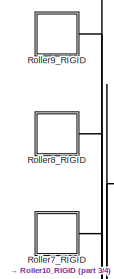
[diagram: RoboCinWheel2_RIGID - part 1/4, top left region]
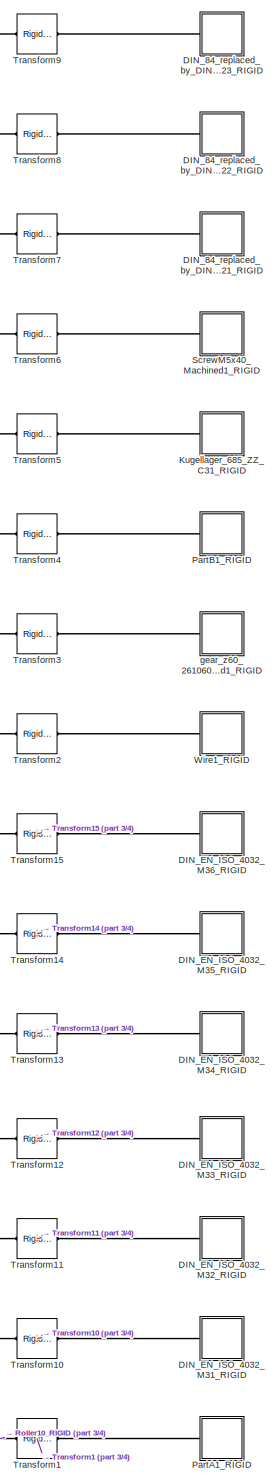
[diagram: RoboCinWheel2_RIGID - part 2/4, center side, full height]
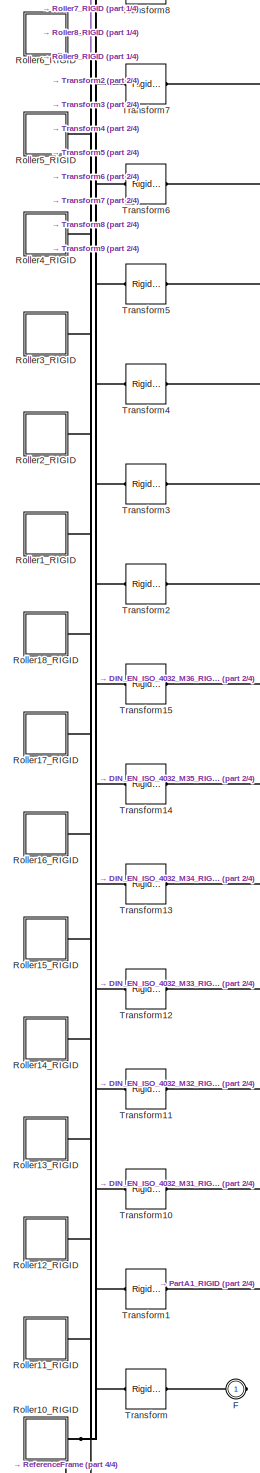
[diagram: RoboCinWheel2_RIGID - part 3/4, center side, full height]
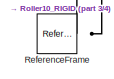
[diagram: RoboCinWheel2_RIGID - part 4/4, bottom left region]
BLOCK [SubSystem] RoboCinWheel2_RIGID
  Ports = [0, 0, 0, 0, 0, 0, 1]
  RequestExecContextInheritance = off
BLOCK [SubSystem] RoboCinWheel2_RIGID/DIN_84_replaced_by_DIN_EN_ISO_1207_M3_x_121_RIGID
  Ports = [0, 0, 0, 0, 0, 1]
  RequestExecContextInheritance = off
BLOCK [PMIOPort] RoboCinWheel2_RIGID/DIN_84_replaced_by_DIN_EN_ISO_1207_M3_x_121_RIGID/F
  Side = Left
BLOCK [Reference] RoboCinWheel2_RIGID/DIN_84_replaced_by_DIN_EN_ISO_1207_M3_x_121_RIGID/ReferenceFrame  REF=sm_lib/Frames and
Transforms/Reference
Frame
  Ports = [0, 0, 0, 0, 0, 0, 1]
  SourceBlock = sm_lib/Frames and\nTransforms/Reference\nFrame
  SourceProductBaseCode = MS
  SourceType = Reference\nFrame
BLOCK [Reference] RoboCinWheel2_RIGID/DIN_84_replaced_by_DIN_EN_ISO_1207_M3_x_121_RIGID/Solid  REF=sm_lib/Body Elements/File Solid
  Ports = [0, 0, 0, 0, 0, 0, 1]
  SourceBlock = sm_lib/Body Elements/File Solid
  SourceProductBaseCode = MS
  SourceType = File Solid
BLOCK [SubSystem] RoboCinWheel2_RIGID/DIN_84_replaced_by_DIN_EN_ISO_1207_M3_x_122_RIGID
  Ports = [0, 0, 0, 0, 0, 1]
  RequestExecContextInheritance = off
BLOCK [PMIOPort] RoboCinWheel2_RIGID/DIN_84_replaced_by_DIN_EN_ISO_1207_M3_x_122_RIGID/F
  Side = Left
BLOCK [Reference] RoboCinWheel2_RIGID/DIN_84_replaced_by_DIN_EN_ISO_1207_M3_x_122_RIGID/ReferenceFrame  REF=sm_lib/Frames and
Transforms/Reference
Frame
  Ports = [0, 0, 0, 0, 0, 0, 1]
  SourceBlock = sm_lib/Frames and\nTransforms/Reference\nFrame
  SourceProductBaseCode = MS
  SourceType = Reference\nFrame
BLOCK [Reference] RoboCinWheel2_RIGID/DIN_84_replaced_by_DIN_EN_ISO_1207_M3_x_122_RIGID/Solid  REF=sm_lib/Body Elements/File Solid
  Ports = [0, 0, 0, 0, 0, 0, 1]
  SourceBlock = sm_lib/Body Elements/File Solid
  SourceProductBaseCode = MS
  SourceType = File Solid
BLOCK [SubSystem] RoboCinWheel2_RIGID/DIN_84_replaced_by_DIN_EN_ISO_1207_M3_x_123_RIGID
  Ports = [0, 0, 0, 0, 0, 1]
  RequestExecContextInheritance = off
BLOCK [PMIOPort] RoboCinWheel2_RIGID/DIN_84_replaced_by_DIN_EN_ISO_1207_M3_x_123_RIGID/F
  Side = Left
BLOCK [Reference] RoboCinWheel2_RIGID/DIN_84_replaced_by_DIN_EN_ISO_1207_M3_x_123_RIGID/ReferenceFrame  REF=sm_lib/Frames and
Transforms/Reference
Frame
  Ports = [0, 0, 0, 0, 0, 0, 1]
  SourceBlock = sm_lib/Frames and\nTransforms/Reference\nFrame
  SourceProductBaseCode = MS
  SourceType = Reference\nFrame
BLOCK [Reference] RoboCinWheel2_RIGID/DIN_84_replaced_by_DIN_EN_ISO_1207_M3_x_123_RIGID/Solid  REF=sm_lib/Body Elements/File Solid
  Ports = [0, 0, 0, 0, 0, 0, 1]
  SourceBlock = sm_lib/Body Elements/File Solid
  SourceProductBaseCode = MS
  SourceType = File Solid
BLOCK [SubSystem] RoboCinWheel2_RIGID/DIN_EN_ISO_4032_M31_RIGID
  Ports = [0, 0, 0, 0, 0, 1]
  RequestExecContextInheritance = off
BLOCK [PMIOPort] RoboCinWheel2_RIGID/DIN_EN_ISO_4032_M31_RIGID/F
  Side = Left
BLOCK [Reference] RoboCinWheel2_RIGID/DIN_EN_ISO_4032_M31_RIGID/ReferenceFrame  REF=sm_lib/Frames and
Transforms/Reference
Frame
  Ports = [0, 0, 0, 0, 0, 0, 1]
  SourceBlock = sm_lib/Frames and\nTransforms/Reference\nFrame
  SourceProductBaseCode = MS
  SourceType = Reference\nFrame
BLOCK [Reference] RoboCinWheel2_RIGID/DIN_EN_ISO_4032_M31_RIGID/Solid  REF=sm_lib/Body Elements/File Solid
  Ports = [0, 0, 0, 0, 0, 0, 1]
  SourceBlock = sm_lib/Body Elements/File Solid
  SourceProductBaseCode = MS
  SourceType = File Solid
BLOCK [SubSystem] RoboCinWheel2_RIGID/DIN_EN_ISO_4032_M32_RIGID
  Ports = [0, 0, 0, 0, 0, 1]
  RequestExecContextInheritance = off
BLOCK [PMIOPort] RoboCinWheel2_RIGID/DIN_EN_ISO_4032_M32_RIGID/F
  Side = Left
BLOCK [Reference] RoboCinWheel2_RIGID/DIN_EN_ISO_4032_M32_RIGID/ReferenceFrame  REF=sm_lib/Frames and
Transforms/Reference
Frame
  Ports = [0, 0, 0, 0, 0, 0, 1]
  SourceBlock = sm_lib/Frames and\nTransforms/Reference\nFrame
  SourceProductBaseCode = MS
  SourceType = Reference\nFrame
BLOCK [Reference] RoboCinWheel2_RIGID/DIN_EN_ISO_4032_M32_RIGID/Solid  REF=sm_lib/Body Elements/File Solid
  Ports = [0, 0, 0, 0, 0, 0, 1]
  SourceBlock = sm_lib/Body Elements/File Solid
  SourceProductBaseCode = MS
  SourceType = File Solid
BLOCK [SubSystem] RoboCinWheel2_RIGID/DIN_EN_ISO_4032_M33_RIGID
  Ports = [0, 0, 0, 0, 0, 1]
  RequestExecContextInheritance = off
BLOCK [PMIOPort] RoboCinWheel2_RIGID/DIN_EN_ISO_4032_M33_RIGID/F
  Side = Left
BLOCK [Reference] RoboCinWheel2_RIGID/DIN_EN_ISO_4032_M33_RIGID/ReferenceFrame  REF=sm_lib/Frames and
Transforms/Reference
Frame
  Ports = [0, 0, 0, 0, 0, 0, 1]
  SourceBlock = sm_lib/Frames and\nTransforms/Reference\nFrame
  SourceProductBaseCode = MS
  SourceType = Reference\nFrame
BLOCK [Reference] RoboCinWheel2_RIGID/DIN_EN_ISO_4032_M33_RIGID/Solid  REF=sm_lib/Body Elements/File Solid
  Ports = [0, 0, 0, 0, 0, 0, 1]
  SourceBlock = sm_lib/Body Elements/File Solid
  SourceProductBaseCode = MS
  SourceType = File Solid
BLOCK [SubSystem] RoboCinWheel2_RIGID/DIN_EN_ISO_4032_M34_RIGID
  Ports = [0, 0, 0, 0, 0, 1]
  RequestExecContextInheritance = off
BLOCK [PMIOPort] RoboCinWheel2_RIGID/DIN_EN_ISO_4032_M34_RIGID/F
  Side = Left
BLOCK [Reference] RoboCinWheel2_RIGID/DIN_EN_ISO_4032_M34_RIGID/ReferenceFrame  REF=sm_lib/Frames and
Transforms/Reference
Frame
  Ports = [0, 0, 0, 0, 0, 0, 1]
  SourceBlock = sm_lib/Frames and\nTransforms/Reference\nFrame
  SourceProductBaseCode = MS
  SourceType = Reference\nFrame
BLOCK [Reference] RoboCinWheel2_RIGID/DIN_EN_ISO_4032_M34_RIGID/Solid  REF=sm_lib/Body Elements/File Solid
  Ports = [0, 0, 0, 0, 0, 0, 1]
  SourceBlock = sm_lib/Body Elements/File Solid
  SourceProductBaseCode = MS
  SourceType = File Solid
BLOCK [SubSystem] RoboCinWheel2_RIGID/DIN_EN_ISO_4032_M35_RIGID
  Ports = [0, 0, 0, 0, 0, 1]
  RequestExecContextInheritance = off
BLOCK [PMIOPort] RoboCinWheel2_RIGID/DIN_EN_ISO_4032_M35_RIGID/F
  Side = Left
BLOCK [Reference] RoboCinWheel2_RIGID/DIN_EN_ISO_4032_M35_RIGID/ReferenceFrame  REF=sm_lib/Frames and
Transforms/Reference
Frame
  Ports = [0, 0, 0, 0, 0, 0, 1]
  SourceBlock = sm_lib/Frames and\nTransforms/Reference\nFrame
  SourceProductBaseCode = MS
  SourceType = Reference\nFrame
BLOCK [Reference] RoboCinWheel2_RIGID/DIN_EN_ISO_4032_M35_RIGID/Solid  REF=sm_lib/Body Elements/File Solid
  Ports = [0, 0, 0, 0, 0, 0, 1]
  SourceBlock = sm_lib/Body Elements/File Solid
  SourceProductBaseCode = MS
  SourceType = File Solid
BLOCK [SubSystem] RoboCinWheel2_RIGID/DIN_EN_ISO_4032_M36_RIGID
  Ports = [0, 0, 0, 0, 0, 1]
  RequestExecContextInheritance = off
BLOCK [PMIOPort] RoboCinWheel2_RIGID/DIN_EN_ISO_4032_M36_RIGID/F
  Side = Left
BLOCK [Reference] RoboCinWheel2_RIGID/DIN_EN_ISO_4032_M36_RIGID/ReferenceFrame  REF=sm_lib/Frames and
Transforms/Reference
Frame
  Ports = [0, 0, 0, 0, 0, 0, 1]
  SourceBlock = sm_lib/Frames and\nTransforms/Reference\nFrame
  SourceProductBaseCode = MS
  SourceType = Reference\nFrame
BLOCK [Reference] RoboCinWheel2_RIGID/DIN_EN_ISO_4032_M36_RIGID/Solid  REF=sm_lib/Body Elements/File Solid
  Ports = [0, 0, 0, 0, 0, 0, 1]
  SourceBlock = sm_lib/Body Elements/File Solid
  SourceProductBaseCode = MS
  SourceType = File Solid
BLOCK [PMIOPort] RoboCinWheel2_RIGID/F
  Side = Right
BLOCK [SubSystem] RoboCinWheel2_RIGID/Kugellager_685_ZZ_C31_RIGID
  Ports = [0, 0, 0, 0, 0, 1]
  RequestExecContextInheritance = off
BLOCK [PMIOPort] RoboCinWheel2_RIGID/Kugellager_685_ZZ_C31_RIGID/F
  Side = Left
BLOCK [Reference] RoboCinWheel2_RIGID/Kugellager_685_ZZ_C31_RIGID/ReferenceFrame  REF=sm_lib/Frames and
Transforms/Reference
Frame
  Ports = [0, 0, 0, 0, 0, 0, 1]
  SourceBlock = sm_lib/Frames and\nTransforms/Reference\nFrame
  SourceProductBaseCode = MS
  SourceType = Reference\nFrame
BLOCK [Reference] RoboCinWheel2_RIGID/Kugellager_685_ZZ_C31_RIGID/Solid  REF=sm_lib/Body Elements/File Solid
  Ports = [0, 0, 0, 0, 0, 0, 1]
  SourceBlock = sm_lib/Body Elements/File Solid
  SourceProductBaseCode = MS
  SourceType = File Solid
BLOCK [SubSystem] RoboCinWheel2_RIGID/PartA1_RIGID
  Ports = [0, 0, 0, 0, 0, 1]
  RequestExecContextInheritance = off
BLOCK [PMIOPort] RoboCinWheel2_RIGID/PartA1_RIGID/F
  Side = Left
BLOCK [Reference] RoboCinWheel2_RIGID/PartA1_RIGID/ReferenceFrame  REF=sm_lib/Frames and
Transforms/Reference
Frame
  Ports = [0, 0, 0, 0, 0, 0, 1]
  SourceBlock = sm_lib/Frames and\nTransforms/Reference\nFrame
  SourceProductBaseCode = MS
  SourceType = Reference\nFrame
BLOCK [Reference] RoboCinWheel2_RIGID/PartA1_RIGID/Solid  REF=sm_lib/Body Elements/File Solid
  Ports = [0, 0, 0, 0, 0, 0, 1]
  SourceBlock = sm_lib/Body Elements/File Solid
  SourceProductBaseCode = MS
  SourceType = File Solid
BLOCK [SubSystem] RoboCinWheel2_RIGID/PartB1_RIGID
  Ports = [0, 0, 0, 0, 0, 1]
  RequestExecContextInheritance = off
BLOCK [PMIOPort] RoboCinWheel2_RIGID/PartB1_RIGID/F
  Side = Left
BLOCK [Reference] RoboCinWheel2_RIGID/PartB1_RIGID/ReferenceFrame  REF=sm_lib/Frames and
Transforms/Reference
Frame
  Ports = [0, 0, 0, 0, 0, 0, 1]
  SourceBlock = sm_lib/Frames and\nTransforms/Reference\nFrame
  SourceProductBaseCode = MS
  SourceType = Reference\nFrame
BLOCK [Reference] RoboCinWheel2_RIGID/PartB1_RIGID/Solid  REF=sm_lib/Body Elements/File Solid
  Ports = [0, 0, 0, 0, 0, 0, 1]
  SourceBlock = sm_lib/Body Elements/File Solid
  SourceProductBaseCode = MS
  SourceType = File Solid
BLOCK [Reference] RoboCinWheel2_RIGID/ReferenceFrame  REF=sm_lib/Frames and
Transforms/Reference
Frame
  Ports = [0, 0, 0, 0, 0, 0, 1]
  SourceBlock = sm_lib/Frames and\nTransforms/Reference\nFrame
  SourceProductBaseCode = MS
  SourceType = Reference\nFrame
BLOCK [SubSystem] RoboCinWheel2_RIGID/Roller10_RIGID
  Ports = [0, 0, 0, 0, 0, 0, 1]
  RequestExecContextInheritance = off
BLOCK [PMIOPort] RoboCinWheel2_RIGID/Roller10_RIGID/F
  Side = Right
BLOCK [Reference] RoboCinWheel2_RIGID/Roller10_RIGID/ReferenceFrame  REF=sm_lib/Frames and
Transforms/Reference
Frame
  Ports = [0, 0, 0, 0, 0, 0, 1]
  SourceBlock = sm_lib/Frames and\nTransforms/Reference\nFrame
  SourceProductBaseCode = MS
  SourceType = Reference\nFrame
BLOCK [SubSystem] RoboCinWheel2_RIGID/Roller10_RIGID/Roller1_RIGID
  Ports = [0, 0, 0, 0, 0, 1]
  RequestExecContextInheritance = off
BLOCK [PMIOPort] RoboCinWheel2_RIGID/Roller10_RIGID/Roller1_RIGID/F
  Side = Left
BLOCK [Reference] RoboCinWheel2_RIGID/Roller10_RIGID/Roller1_RIGID/ReferenceFrame  REF=sm_lib/Frames and
Transforms/Reference
Frame
  Ports = [0, 0, 0, 0, 0, 0, 1]
  SourceBlock = sm_lib/Frames and\nTransforms/Reference\nFrame
  SourceProductBaseCode = MS
  SourceType = Reference\nFrame
BLOCK [Reference] RoboCinWheel2_RIGID/Roller10_RIGID/Roller1_RIGID/Solid  REF=sm_lib/Body Elements/File Solid
  Ports = [0, 0, 0, 0, 0, 0, 1]
  SourceBlock = sm_lib/Body Elements/File Solid
  SourceProductBaseCode = MS
  SourceType = File Solid
BLOCK [SubSystem] RoboCinWheel2_RIGID/Roller10_RIGID/RollerTire1_RIGID
  Ports = [0, 0, 0, 0, 0, 1]
  RequestExecContextInheritance = off
BLOCK [PMIOPort] RoboCinWheel2_RIGID/Roller10_RIGID/RollerTire1_RIGID/F
  Side = Left
BLOCK [Reference] RoboCinWheel2_RIGID/Roller10_RIGID/RollerTire1_RIGID/ReferenceFrame  REF=sm_lib/Frames and
Transforms/Reference
Frame
  Ports = [0, 0, 0, 0, 0, 0, 1]
  SourceBlock = sm_lib/Frames and\nTransforms/Reference\nFrame
  SourceProductBaseCode = MS
  SourceType = Reference\nFrame
BLOCK [Reference] RoboCinWheel2_RIGID/Roller10_RIGID/RollerTire1_RIGID/Solid  REF=sm_lib/Body Elements/File Solid
  Ports = [0, 0, 0, 0, 0, 0, 1]
  SourceBlock = sm_lib/Body Elements/File Solid
  SourceProductBaseCode = MS
  SourceType = File Solid
BLOCK [Reference] RoboCinWheel2_RIGID/Roller10_RIGID/Transform  REF=sm_lib/Frames and
Transforms/Rigid
Transform
  Ports = [0, 0, 0, 0, 0, 1, 1]
  SourceBlock = sm_lib/Frames and\nTransforms/Rigid\nTransform
  SourceProductBaseCode = MS
  SourceType = Rigid\nTransform
BLOCK [Reference] RoboCinWheel2_RIGID/Roller10_RIGID/Transform1  REF=sm_lib/Frames and
Transforms/Rigid
Transform
  Ports = [0, 0, 0, 0, 0, 1, 1]
  SourceBlock = sm_lib/Frames and\nTransforms/Rigid\nTransform
  SourceProductBaseCode = MS
  SourceType = Rigid\nTransform
BLOCK [Reference] RoboCinWheel2_RIGID/Roller10_RIGID/Transform2  REF=sm_lib/Frames and
Transforms/Rigid
Transform
  Ports = [0, 0, 0, 0, 0, 1, 1]
  SourceBlock = sm_lib/Frames and\nTransforms/Rigid\nTransform
  SourceProductBaseCode = MS
  SourceType = Rigid\nTransform
BLOCK [SubSystem] RoboCinWheel2_RIGID/Roller11_RIGID
  Ports = [0, 0, 0, 0, 0, 0, 1]
  RequestExecContextInheritance = off
BLOCK [PMIOPort] RoboCinWheel2_RIGID/Roller11_RIGID/F
  Side = Right
BLOCK [Reference] RoboCinWheel2_RIGID/Roller11_RIGID/ReferenceFrame  REF=sm_lib/Frames and
Transforms/Reference
Frame
  Ports = [0, 0, 0, 0, 0, 0, 1]
  SourceBlock = sm_lib/Frames and\nTransforms/Reference\nFrame
  SourceProductBaseCode = MS
  SourceType = Reference\nFrame
BLOCK [SubSystem] RoboCinWheel2_RIGID/Roller11_RIGID/Roller1_RIGID
  Ports = [0, 0, 0, 0, 0, 1]
  RequestExecContextInheritance = off
BLOCK [PMIOPort] RoboCinWheel2_RIGID/Roller11_RIGID/Roller1_RIGID/F
  Side = Left
BLOCK [Reference] RoboCinWheel2_RIGID/Roller11_RIGID/Roller1_RIGID/ReferenceFrame  REF=sm_lib/Frames and
Transforms/Reference
Frame
  Ports = [0, 0, 0, 0, 0, 0, 1]
  SourceBlock = sm_lib/Frames and\nTransforms/Reference\nFrame
  SourceProductBaseCode = MS
  SourceType = Reference\nFrame
BLOCK [Reference] RoboCinWheel2_RIGID/Roller11_RIGID/Roller1_RIGID/Solid  REF=sm_lib/Body Elements/File Solid
  Ports = [0, 0, 0, 0, 0, 0, 1]
  SourceBlock = sm_lib/Body Elements/File Solid
  SourceProductBaseCode = MS
  SourceType = File Solid
BLOCK [SubSystem] RoboCinWheel2_RIGID/Roller11_RIGID/RollerTire1_RIGID
  Ports = [0, 0, 0, 0, 0, 1]
  RequestExecContextInheritance = off
BLOCK [PMIOPort] RoboCinWheel2_RIGID/Roller11_RIGID/RollerTire1_RIGID/F
  Side = Left
BLOCK [Reference] RoboCinWheel2_RIGID/Roller11_RIGID/RollerTire1_RIGID/ReferenceFrame  REF=sm_lib/Frames and
Transforms/Reference
Frame
  Ports = [0, 0, 0, 0, 0, 0, 1]
  SourceBlock = sm_lib/Frames and\nTransforms/Reference\nFrame
  SourceProductBaseCode = MS
  SourceType = Reference\nFrame
BLOCK [Reference] RoboCinWheel2_RIGID/Roller11_RIGID/RollerTire1_RIGID/Solid  REF=sm_lib/Body Elements/File Solid
  Ports = [0, 0, 0, 0, 0, 0, 1]
  SourceBlock = sm_lib/Body Elements/File Solid
  SourceProductBaseCode = MS
  SourceType = File Solid
BLOCK [Reference] RoboCinWheel2_RIGID/Roller11_RIGID/Transform  REF=sm_lib/Frames and
Transforms/Rigid
Transform
  Ports = [0, 0, 0, 0, 0, 1, 1]
  SourceBlock = sm_lib/Frames and\nTransforms/Rigid\nTransform
  SourceProductBaseCode = MS
  SourceType = Rigid\nTransform
BLOCK [Reference] RoboCinWheel2_RIGID/Roller11_RIGID/Transform1  REF=sm_lib/Frames and
Transforms/Rigid
Transform
  Ports = [0, 0, 0, 0, 0, 1, 1]
  SourceBlock = sm_lib/Frames and\nTransforms/Rigid\nTransform
  SourceProductBaseCode = MS
  SourceType = Rigid\nTransform
BLOCK [Reference] RoboCinWheel2_RIGID/Roller11_RIGID/Transform2  REF=sm_lib/Frames and
Transforms/Rigid
Transform
  Ports = [0, 0, 0, 0, 0, 1, 1]
  SourceBlock = sm_lib/Frames and\nTransforms/Rigid\nTransform
  SourceProductBaseCode = MS
  SourceType = Rigid\nTransform
BLOCK [SubSystem] RoboCinWheel2_RIGID/Roller12_RIGID
  Ports = [0, 0, 0, 0, 0, 0, 1]
  RequestExecContextInheritance = off
BLOCK [PMIOPort] RoboCinWheel2_RIGID/Roller12_RIGID/F
  Side = Right
BLOCK [Reference] RoboCinWheel2_RIGID/Roller12_RIGID/ReferenceFrame  REF=sm_lib/Frames and
Transforms/Reference
Frame
  Ports = [0, 0, 0, 0, 0, 0, 1]
  SourceBlock = sm_lib/Frames and\nTransforms/Reference\nFrame
  SourceProductBaseCode = MS
  SourceType = Reference\nFrame
BLOCK [SubSystem] RoboCinWheel2_RIGID/Roller12_RIGID/Roller1_RIGID
  Ports = [0, 0, 0, 0, 0, 1]
  RequestExecContextInheritance = off
BLOCK [PMIOPort] RoboCinWheel2_RIGID/Roller12_RIGID/Roller1_RIGID/F
  Side = Left
BLOCK [Reference] RoboCinWheel2_RIGID/Roller12_RIGID/Roller1_RIGID/ReferenceFrame  REF=sm_lib/Frames and
Transforms/Reference
Frame
  Ports = [0, 0, 0, 0, 0, 0, 1]
  SourceBlock = sm_lib/Frames and\nTransforms/Reference\nFrame
  SourceProductBaseCode = MS
  SourceType = Reference\nFrame
BLOCK [Reference] RoboCinWheel2_RIGID/Roller12_RIGID/Roller1_RIGID/Solid  REF=sm_lib/Body Elements/File Solid
  Ports = [0, 0, 0, 0, 0, 0, 1]
  SourceBlock = sm_lib/Body Elements/File Solid
  SourceProductBaseCode = MS
  SourceType = File Solid
BLOCK [SubSystem] RoboCinWheel2_RIGID/Roller12_RIGID/RollerTire1_RIGID
  Ports = [0, 0, 0, 0, 0, 1]
  RequestExecContextInheritance = off
BLOCK [PMIOPort] RoboCinWheel2_RIGID/Roller12_RIGID/RollerTire1_RIGID/F
  Side = Left
BLOCK [Reference] RoboCinWheel2_RIGID/Roller12_RIGID/RollerTire1_RIGID/ReferenceFrame  REF=sm_lib/Frames and
Transforms/Reference
Frame
  Ports = [0, 0, 0, 0, 0, 0, 1]
  SourceBlock = sm_lib/Frames and\nTransforms/Reference\nFrame
  SourceProductBaseCode = MS
  SourceType = Reference\nFrame
BLOCK [Reference] RoboCinWheel2_RIGID/Roller12_RIGID/RollerTire1_RIGID/Solid  REF=sm_lib/Body Elements/File Solid
  Ports = [0, 0, 0, 0, 0, 0, 1]
  SourceBlock = sm_lib/Body Elements/File Solid
  SourceProductBaseCode = MS
  SourceType = File Solid
BLOCK [Reference] RoboCinWheel2_RIGID/Roller12_RIGID/Transform  REF=sm_lib/Frames and
Transforms/Rigid
Transform
  Ports = [0, 0, 0, 0, 0, 1, 1]
  SourceBlock = sm_lib/Frames and\nTransforms/Rigid\nTransform
  SourceProductBaseCode = MS
  SourceType = Rigid\nTransform
BLOCK [Reference] RoboCinWheel2_RIGID/Roller12_RIGID/Transform1  REF=sm_lib/Frames and
Transforms/Rigid
Transform
  Ports = [0, 0, 0, 0, 0, 1, 1]
  SourceBlock = sm_lib/Frames and\nTransforms/Rigid\nTransform
  SourceProductBaseCode = MS
  SourceType = Rigid\nTransform
BLOCK [Reference] RoboCinWheel2_RIGID/Roller12_RIGID/Transform2  REF=sm_lib/Frames and
Transforms/Rigid
Transform
  Ports = [0, 0, 0, 0, 0, 1, 1]
  SourceBlock = sm_lib/Frames and\nTransforms/Rigid\nTransform
  SourceProductBaseCode = MS
  SourceType = Rigid\nTransform
BLOCK [SubSystem] RoboCinWheel2_RIGID/Roller13_RIGID
  Ports = [0, 0, 0, 0, 0, 0, 1]
  RequestExecContextInheritance = off
BLOCK [PMIOPort] RoboCinWheel2_RIGID/Roller13_RIGID/F
  Side = Right
BLOCK [Reference] RoboCinWheel2_RIGID/Roller13_RIGID/ReferenceFrame  REF=sm_lib/Frames and
Transforms/Reference
Frame
  Ports = [0, 0, 0, 0, 0, 0, 1]
  SourceBlock = sm_lib/Frames and\nTransforms/Reference\nFrame
  SourceProductBaseCode = MS
  SourceType = Reference\nFrame
BLOCK [SubSystem] RoboCinWheel2_RIGID/Roller13_RIGID/Roller1_RIGID
  Ports = [0, 0, 0, 0, 0, 1]
  RequestExecContextInheritance = off
BLOCK [PMIOPort] RoboCinWheel2_RIGID/Roller13_RIGID/Roller1_RIGID/F
  Side = Left
BLOCK [Reference] RoboCinWheel2_RIGID/Roller13_RIGID/Roller1_RIGID/ReferenceFrame  REF=sm_lib/Frames and
Transforms/Reference
Frame
  Ports = [0, 0, 0, 0, 0, 0, 1]
  SourceBlock = sm_lib/Frames and\nTransforms/Reference\nFrame
  SourceProductBaseCode = MS
  SourceType = Reference\nFrame
BLOCK [Reference] RoboCinWheel2_RIGID/Roller13_RIGID/Roller1_RIGID/Solid  REF=sm_lib/Body Elements/File Solid
  Ports = [0, 0, 0, 0, 0, 0, 1]
  SourceBlock = sm_lib/Body Elements/File Solid
  SourceProductBaseCode = MS
  SourceType = File Solid
BLOCK [SubSystem] RoboCinWheel2_RIGID/Roller13_RIGID/RollerTire1_RIGID
  Ports = [0, 0, 0, 0, 0, 1]
  RequestExecContextInheritance = off
BLOCK [PMIOPort] RoboCinWheel2_RIGID/Roller13_RIGID/RollerTire1_RIGID/F
  Side = Left
BLOCK [Reference] RoboCinWheel2_RIGID/Roller13_RIGID/RollerTire1_RIGID/ReferenceFrame  REF=sm_lib/Frames and
Transforms/Reference
Frame
  Ports = [0, 0, 0, 0, 0, 0, 1]
  SourceBlock = sm_lib/Frames and\nTransforms/Reference\nFrame
  SourceProductBaseCode = MS
  SourceType = Reference\nFrame
BLOCK [Reference] RoboCinWheel2_RIGID/Roller13_RIGID/RollerTire1_RIGID/Solid  REF=sm_lib/Body Elements/File Solid
  Ports = [0, 0, 0, 0, 0, 0, 1]
  SourceBlock = sm_lib/Body Elements/File Solid
  SourceProductBaseCode = MS
  SourceType = File Solid
BLOCK [Reference] RoboCinWheel2_RIGID/Roller13_RIGID/Transform  REF=sm_lib/Frames and
Transforms/Rigid
Transform
  Ports = [0, 0, 0, 0, 0, 1, 1]
  SourceBlock = sm_lib/Frames and\nTransforms/Rigid\nTransform
  SourceProductBaseCode = MS
  SourceType = Rigid\nTransform
BLOCK [Reference] RoboCinWheel2_RIGID/Roller13_RIGID/Transform1  REF=sm_lib/Frames and
Transforms/Rigid
Transform
  Ports = [0, 0, 0, 0, 0, 1, 1]
  SourceBlock = sm_lib/Frames and\nTransforms/Rigid\nTransform
  SourceProductBaseCode = MS
  SourceType = Rigid\nTransform
BLOCK [Reference] RoboCinWheel2_RIGID/Roller13_RIGID/Transform2  REF=sm_lib/Frames and
Transforms/Rigid
Transform
  Ports = [0, 0, 0, 0, 0, 1, 1]
  SourceBlock = sm_lib/Frames and\nTransforms/Rigid\nTransform
  SourceProductBaseCode = MS
  SourceType = Rigid\nTransform
BLOCK [SubSystem] RoboCinWheel2_RIGID/Roller14_RIGID
  Ports = [0, 0, 0, 0, 0, 0, 1]
  RequestExecContextInheritance = off
BLOCK [PMIOPort] RoboCinWheel2_RIGID/Roller14_RIGID/F
  Side = Right
BLOCK [Reference] RoboCinWheel2_RIGID/Roller14_RIGID/ReferenceFrame  REF=sm_lib/Frames and
Transforms/Reference
Frame
  Ports = [0, 0, 0, 0, 0, 0, 1]
  SourceBlock = sm_lib/Frames and\nTransforms/Reference\nFrame
  SourceProductBaseCode = MS
  SourceType = Reference\nFrame
BLOCK [SubSystem] RoboCinWheel2_RIGID/Roller14_RIGID/Roller1_RIGID
  Ports = [0, 0, 0, 0, 0, 1]
  RequestExecContextInheritance = off
BLOCK [PMIOPort] RoboCinWheel2_RIGID/Roller14_RIGID/Roller1_RIGID/F
  Side = Left
BLOCK [Reference] RoboCinWheel2_RIGID/Roller14_RIGID/Roller1_RIGID/ReferenceFrame  REF=sm_lib/Frames and
Transforms/Reference
Frame
  Ports = [0, 0, 0, 0, 0, 0, 1]
  SourceBlock = sm_lib/Frames and\nTransforms/Reference\nFrame
  SourceProductBaseCode = MS
  SourceType = Reference\nFrame
BLOCK [Reference] RoboCinWheel2_RIGID/Roller14_RIGID/Roller1_RIGID/Solid  REF=sm_lib/Body Elements/File Solid
  Ports = [0, 0, 0, 0, 0, 0, 1]
  SourceBlock = sm_lib/Body Elements/File Solid
  SourceProductBaseCode = MS
  SourceType = File Solid
BLOCK [SubSystem] RoboCinWheel2_RIGID/Roller14_RIGID/RollerTire1_RIGID
  Ports = [0, 0, 0, 0, 0, 1]
  RequestExecContextInheritance = off
BLOCK [PMIOPort] RoboCinWheel2_RIGID/Roller14_RIGID/RollerTire1_RIGID/F
  Side = Left
BLOCK [Reference] RoboCinWheel2_RIGID/Roller14_RIGID/RollerTire1_RIGID/ReferenceFrame  REF=sm_lib/Frames and
Transforms/Reference
Frame
  Ports = [0, 0, 0, 0, 0, 0, 1]
  SourceBlock = sm_lib/Frames and\nTransforms/Reference\nFrame
  SourceProductBaseCode = MS
  SourceType = Reference\nFrame
BLOCK [Reference] RoboCinWheel2_RIGID/Roller14_RIGID/RollerTire1_RIGID/Solid  REF=sm_lib/Body Elements/File Solid
  Ports = [0, 0, 0, 0, 0, 0, 1]
  SourceBlock = sm_lib/Body Elements/File Solid
  SourceProductBaseCode = MS
  SourceType = File Solid
BLOCK [Reference] RoboCinWheel2_RIGID/Roller14_RIGID/Transform  REF=sm_lib/Frames and
Transforms/Rigid
Transform
  Ports = [0, 0, 0, 0, 0, 1, 1]
  SourceBlock = sm_lib/Frames and\nTransforms/Rigid\nTransform
  SourceProductBaseCode = MS
  SourceType = Rigid\nTransform
BLOCK [Reference] RoboCinWheel2_RIGID/Roller14_RIGID/Transform1  REF=sm_lib/Frames and
Transforms/Rigid
Transform
  Ports = [0, 0, 0, 0, 0, 1, 1]
  SourceBlock = sm_lib/Frames and\nTransforms/Rigid\nTransform
  SourceProductBaseCode = MS
  SourceType = Rigid\nTransform
BLOCK [Reference] RoboCinWheel2_RIGID/Roller14_RIGID/Transform2  REF=sm_lib/Frames and
Transforms/Rigid
Transform
  Ports = [0, 0, 0, 0, 0, 1, 1]
  SourceBlock = sm_lib/Frames and\nTransforms/Rigid\nTransform
  SourceProductBaseCode = MS
  SourceType = Rigid\nTransform
BLOCK [SubSystem] RoboCinWheel2_RIGID/Roller15_RIGID
  Ports = [0, 0, 0, 0, 0, 0, 1]
  RequestExecContextInheritance = off
BLOCK [PMIOPort] RoboCinWheel2_RIGID/Roller15_RIGID/F
  Side = Right
BLOCK [Reference] RoboCinWheel2_RIGID/Roller15_RIGID/ReferenceFrame  REF=sm_lib/Frames and
Transforms/Reference
Frame
  Ports = [0, 0, 0, 0, 0, 0, 1]
  SourceBlock = sm_lib/Frames and\nTransforms/Reference\nFrame
  SourceProductBaseCode = MS
  SourceType = Reference\nFrame
BLOCK [SubSystem] RoboCinWheel2_RIGID/Roller15_RIGID/Roller1_RIGID
  Ports = [0, 0, 0, 0, 0, 1]
  RequestExecContextInheritance = off
BLOCK [PMIOPort] RoboCinWheel2_RIGID/Roller15_RIGID/Roller1_RIGID/F
  Side = Left
BLOCK [Reference] RoboCinWheel2_RIGID/Roller15_RIGID/Roller1_RIGID/ReferenceFrame  REF=sm_lib/Frames and
Transforms/Reference
Frame
  Ports = [0, 0, 0, 0, 0, 0, 1]
  SourceBlock = sm_lib/Frames and\nTransforms/Reference\nFrame
  SourceProductBaseCode = MS
  SourceType = Reference\nFrame
BLOCK [Reference] RoboCinWheel2_RIGID/Roller15_RIGID/Roller1_RIGID/Solid  REF=sm_lib/Body Elements/File Solid
  Ports = [0, 0, 0, 0, 0, 0, 1]
  SourceBlock = sm_lib/Body Elements/File Solid
  SourceProductBaseCode = MS
  SourceType = File Solid
BLOCK [SubSystem] RoboCinWheel2_RIGID/Roller15_RIGID/RollerTire1_RIGID
  Ports = [0, 0, 0, 0, 0, 1]
  RequestExecContextInheritance = off
BLOCK [PMIOPort] RoboCinWheel2_RIGID/Roller15_RIGID/RollerTire1_RIGID/F
  Side = Left
BLOCK [Reference] RoboCinWheel2_RIGID/Roller15_RIGID/RollerTire1_RIGID/ReferenceFrame  REF=sm_lib/Frames and
Transforms/Reference
Frame
  Ports = [0, 0, 0, 0, 0, 0, 1]
  SourceBlock = sm_lib/Frames and\nTransforms/Reference\nFrame
  SourceProductBaseCode = MS
  SourceType = Reference\nFrame
BLOCK [Reference] RoboCinWheel2_RIGID/Roller15_RIGID/RollerTire1_RIGID/Solid  REF=sm_lib/Body Elements/File Solid
  Ports = [0, 0, 0, 0, 0, 0, 1]
  SourceBlock = sm_lib/Body Elements/File Solid
  SourceProductBaseCode = MS
  SourceType = File Solid
BLOCK [Reference] RoboCinWheel2_RIGID/Roller15_RIGID/Transform  REF=sm_lib/Frames and
Transforms/Rigid
Transform
  Ports = [0, 0, 0, 0, 0, 1, 1]
  SourceBlock = sm_lib/Frames and\nTransforms/Rigid\nTransform
  SourceProductBaseCode = MS
  SourceType = Rigid\nTransform
BLOCK [Reference] RoboCinWheel2_RIGID/Roller15_RIGID/Transform1  REF=sm_lib/Frames and
Transforms/Rigid
Transform
  Ports = [0, 0, 0, 0, 0, 1, 1]
  SourceBlock = sm_lib/Frames and\nTransforms/Rigid\nTransform
  SourceProductBaseCode = MS
  SourceType = Rigid\nTransform
BLOCK [Reference] RoboCinWheel2_RIGID/Roller15_RIGID/Transform2  REF=sm_lib/Frames and
Transforms/Rigid
Transform
  Ports = [0, 0, 0, 0, 0, 1, 1]
  SourceBlock = sm_lib/Frames and\nTransforms/Rigid\nTransform
  SourceProductBaseCode = MS
  SourceType = Rigid\nTransform
BLOCK [SubSystem] RoboCinWheel2_RIGID/Roller16_RIGID
  Ports = [0, 0, 0, 0, 0, 0, 1]
  RequestExecContextInheritance = off
BLOCK [PMIOPort] RoboCinWheel2_RIGID/Roller16_RIGID/F
  Side = Right
BLOCK [Reference] RoboCinWheel2_RIGID/Roller16_RIGID/ReferenceFrame  REF=sm_lib/Frames and
Transforms/Reference
Frame
  Ports = [0, 0, 0, 0, 0, 0, 1]
  SourceBlock = sm_lib/Frames and\nTransforms/Reference\nFrame
  SourceProductBaseCode = MS
  SourceType = Reference\nFrame
BLOCK [SubSystem] RoboCinWheel2_RIGID/Roller16_RIGID/Roller1_RIGID
  Ports = [0, 0, 0, 0, 0, 1]
  RequestExecContextInheritance = off
BLOCK [PMIOPort] RoboCinWheel2_RIGID/Roller16_RIGID/Roller1_RIGID/F
  Side = Left
BLOCK [Reference] RoboCinWheel2_RIGID/Roller16_RIGID/Roller1_RIGID/ReferenceFrame  REF=sm_lib/Frames and
Transforms/Reference
Frame
  Ports = [0, 0, 0, 0, 0, 0, 1]
  SourceBlock = sm_lib/Frames and\nTransforms/Reference\nFrame
  SourceProductBaseCode = MS
  SourceType = Reference\nFrame
BLOCK [Reference] RoboCinWheel2_RIGID/Roller16_RIGID/Roller1_RIGID/Solid  REF=sm_lib/Body Elements/File Solid
  Ports = [0, 0, 0, 0, 0, 0, 1]
  SourceBlock = sm_lib/Body Elements/File Solid
  SourceProductBaseCode = MS
  SourceType = File Solid
BLOCK [SubSystem] RoboCinWheel2_RIGID/Roller16_RIGID/RollerTire1_RIGID
  Ports = [0, 0, 0, 0, 0, 1]
  RequestExecContextInheritance = off
BLOCK [PMIOPort] RoboCinWheel2_RIGID/Roller16_RIGID/RollerTire1_RIGID/F
  Side = Left
BLOCK [Reference] RoboCinWheel2_RIGID/Roller16_RIGID/RollerTire1_RIGID/ReferenceFrame  REF=sm_lib/Frames and
Transforms/Reference
Frame
  Ports = [0, 0, 0, 0, 0, 0, 1]
  SourceBlock = sm_lib/Frames and\nTransforms/Reference\nFrame
  SourceProductBaseCode = MS
  SourceType = Reference\nFrame
BLOCK [Reference] RoboCinWheel2_RIGID/Roller16_RIGID/RollerTire1_RIGID/Solid  REF=sm_lib/Body Elements/File Solid
  Ports = [0, 0, 0, 0, 0, 0, 1]
  SourceBlock = sm_lib/Body Elements/File Solid
  SourceProductBaseCode = MS
  SourceType = File Solid
BLOCK [Reference] RoboCinWheel2_RIGID/Roller16_RIGID/Transform  REF=sm_lib/Frames and
Transforms/Rigid
Transform
  Ports = [0, 0, 0, 0, 0, 1, 1]
  SourceBlock = sm_lib/Frames and\nTransforms/Rigid\nTransform
  SourceProductBaseCode = MS
  SourceType = Rigid\nTransform
BLOCK [Reference] RoboCinWheel2_RIGID/Roller16_RIGID/Transform1  REF=sm_lib/Frames and
Transforms/Rigid
Transform
  Ports = [0, 0, 0, 0, 0, 1, 1]
  SourceBlock = sm_lib/Frames and\nTransforms/Rigid\nTransform
  SourceProductBaseCode = MS
  SourceType = Rigid\nTransform
BLOCK [Reference] RoboCinWheel2_RIGID/Roller16_RIGID/Transform2  REF=sm_lib/Frames and
Transforms/Rigid
Transform
  Ports = [0, 0, 0, 0, 0, 1, 1]
  SourceBlock = sm_lib/Frames and\nTransforms/Rigid\nTransform
  SourceProductBaseCode = MS
  SourceType = Rigid\nTransform
BLOCK [SubSystem] RoboCinWheel2_RIGID/Roller17_RIGID
  Ports = [0, 0, 0, 0, 0, 0, 1]
  RequestExecContextInheritance = off
BLOCK [PMIOPort] RoboCinWheel2_RIGID/Roller17_RIGID/F
  Side = Right
BLOCK [Reference] RoboCinWheel2_RIGID/Roller17_RIGID/ReferenceFrame  REF=sm_lib/Frames and
Transforms/Reference
Frame
  Ports = [0, 0, 0, 0, 0, 0, 1]
  SourceBlock = sm_lib/Frames and\nTransforms/Reference\nFrame
  SourceProductBaseCode = MS
  SourceType = Reference\nFrame
BLOCK [SubSystem] RoboCinWheel2_RIGID/Roller17_RIGID/Roller1_RIGID
  Ports = [0, 0, 0, 0, 0, 1]
  RequestExecContextInheritance = off
BLOCK [PMIOPort] RoboCinWheel2_RIGID/Roller17_RIGID/Roller1_RIGID/F
  Side = Left
BLOCK [Reference] RoboCinWheel2_RIGID/Roller17_RIGID/Roller1_RIGID/ReferenceFrame  REF=sm_lib/Frames and
Transforms/Reference
Frame
  Ports = [0, 0, 0, 0, 0, 0, 1]
  SourceBlock = sm_lib/Frames and\nTransforms/Reference\nFrame
  SourceProductBaseCode = MS
  SourceType = Reference\nFrame
BLOCK [Reference] RoboCinWheel2_RIGID/Roller17_RIGID/Roller1_RIGID/Solid  REF=sm_lib/Body Elements/File Solid
  Ports = [0, 0, 0, 0, 0, 0, 1]
  SourceBlock = sm_lib/Body Elements/File Solid
  SourceProductBaseCode = MS
  SourceType = File Solid
BLOCK [SubSystem] RoboCinWheel2_RIGID/Roller17_RIGID/RollerTire1_RIGID
  Ports = [0, 0, 0, 0, 0, 1]
  RequestExecContextInheritance = off
BLOCK [PMIOPort] RoboCinWheel2_RIGID/Roller17_RIGID/RollerTire1_RIGID/F
  Side = Left
BLOCK [Reference] RoboCinWheel2_RIGID/Roller17_RIGID/RollerTire1_RIGID/ReferenceFrame  REF=sm_lib/Frames and
Transforms/Reference
Frame
  Ports = [0, 0, 0, 0, 0, 0, 1]
  SourceBlock = sm_lib/Frames and\nTransforms/Reference\nFrame
  SourceProductBaseCode = MS
  SourceType = Reference\nFrame
BLOCK [Reference] RoboCinWheel2_RIGID/Roller17_RIGID/RollerTire1_RIGID/Solid  REF=sm_lib/Body Elements/File Solid
  Ports = [0, 0, 0, 0, 0, 0, 1]
  SourceBlock = sm_lib/Body Elements/File Solid
  SourceProductBaseCode = MS
  SourceType = File Solid
BLOCK [Reference] RoboCinWheel2_RIGID/Roller17_RIGID/Transform  REF=sm_lib/Frames and
Transforms/Rigid
Transform
  Ports = [0, 0, 0, 0, 0, 1, 1]
  SourceBlock = sm_lib/Frames and\nTransforms/Rigid\nTransform
  SourceProductBaseCode = MS
  SourceType = Rigid\nTransform
BLOCK [Reference] RoboCinWheel2_RIGID/Roller17_RIGID/Transform1  REF=sm_lib/Frames and
Transforms/Rigid
Transform
  Ports = [0, 0, 0, 0, 0, 1, 1]
  SourceBlock = sm_lib/Frames and\nTransforms/Rigid\nTransform
  SourceProductBaseCode = MS
  SourceType = Rigid\nTransform
BLOCK [Reference] RoboCinWheel2_RIGID/Roller17_RIGID/Transform2  REF=sm_lib/Frames and
Transforms/Rigid
Transform
  Ports = [0, 0, 0, 0, 0, 1, 1]
  SourceBlock = sm_lib/Frames and\nTransforms/Rigid\nTransform
  SourceProductBaseCode = MS
  SourceType = Rigid\nTransform
BLOCK [SubSystem] RoboCinWheel2_RIGID/Roller18_RIGID
  Ports = [0, 0, 0, 0, 0, 0, 1]
  RequestExecContextInheritance = off
BLOCK [PMIOPort] RoboCinWheel2_RIGID/Roller18_RIGID/F
  Side = Right
BLOCK [Reference] RoboCinWheel2_RIGID/Roller18_RIGID/ReferenceFrame  REF=sm_lib/Frames and
Transforms/Reference
Frame
  Ports = [0, 0, 0, 0, 0, 0, 1]
  SourceBlock = sm_lib/Frames and\nTransforms/Reference\nFrame
  SourceProductBaseCode = MS
  SourceType = Reference\nFrame
BLOCK [SubSystem] RoboCinWheel2_RIGID/Roller18_RIGID/Roller1_RIGID
  Ports = [0, 0, 0, 0, 0, 1]
  RequestExecContextInheritance = off
BLOCK [PMIOPort] RoboCinWheel2_RIGID/Roller18_RIGID/Roller1_RIGID/F
  Side = Left
BLOCK [Reference] RoboCinWheel2_RIGID/Roller18_RIGID/Roller1_RIGID/ReferenceFrame  REF=sm_lib/Frames and
Transforms/Reference
Frame
  Ports = [0, 0, 0, 0, 0, 0, 1]
  SourceBlock = sm_lib/Frames and\nTransforms/Reference\nFrame
  SourceProductBaseCode = MS
  SourceType = Reference\nFrame
BLOCK [Reference] RoboCinWheel2_RIGID/Roller18_RIGID/Roller1_RIGID/Solid  REF=sm_lib/Body Elements/File Solid
  Ports = [0, 0, 0, 0, 0, 0, 1]
  SourceBlock = sm_lib/Body Elements/File Solid
  SourceProductBaseCode = MS
  SourceType = File Solid
BLOCK [SubSystem] RoboCinWheel2_RIGID/Roller18_RIGID/RollerTire1_RIGID
  Ports = [0, 0, 0, 0, 0, 1]
  RequestExecContextInheritance = off
BLOCK [PMIOPort] RoboCinWheel2_RIGID/Roller18_RIGID/RollerTire1_RIGID/F
  Side = Left
BLOCK [Reference] RoboCinWheel2_RIGID/Roller18_RIGID/RollerTire1_RIGID/ReferenceFrame  REF=sm_lib/Frames and
Transforms/Reference
Frame
  Ports = [0, 0, 0, 0, 0, 0, 1]
  SourceBlock = sm_lib/Frames and\nTransforms/Reference\nFrame
  SourceProductBaseCode = MS
  SourceType = Reference\nFrame
BLOCK [Reference] RoboCinWheel2_RIGID/Roller18_RIGID/RollerTire1_RIGID/Solid  REF=sm_lib/Body Elements/File Solid
  Ports = [0, 0, 0, 0, 0, 0, 1]
  SourceBlock = sm_lib/Body Elements/File Solid
  SourceProductBaseCode = MS
  SourceType = File Solid
BLOCK [Reference] RoboCinWheel2_RIGID/Roller18_RIGID/Transform  REF=sm_lib/Frames and
Transforms/Rigid
Transform
  Ports = [0, 0, 0, 0, 0, 1, 1]
  SourceBlock = sm_lib/Frames and\nTransforms/Rigid\nTransform
  SourceProductBaseCode = MS
  SourceType = Rigid\nTransform
BLOCK [Reference] RoboCinWheel2_RIGID/Roller18_RIGID/Transform1  REF=sm_lib/Frames and
Transforms/Rigid
Transform
  Ports = [0, 0, 0, 0, 0, 1, 1]
  SourceBlock = sm_lib/Frames and\nTransforms/Rigid\nTransform
  SourceProductBaseCode = MS
  SourceType = Rigid\nTransform
BLOCK [Reference] RoboCinWheel2_RIGID/Roller18_RIGID/Transform2  REF=sm_lib/Frames and
Transforms/Rigid
Transform
  Ports = [0, 0, 0, 0, 0, 1, 1]
  SourceBlock = sm_lib/Frames and\nTransforms/Rigid\nTransform
  SourceProductBaseCode = MS
  SourceType = Rigid\nTransform
BLOCK [SubSystem] RoboCinWheel2_RIGID/Roller1_RIGID
  Ports = [0, 0, 0, 0, 0, 0, 1]
  RequestExecContextInheritance = off
BLOCK [PMIOPort] RoboCinWheel2_RIGID/Roller1_RIGID/F
  Side = Right
BLOCK [Reference] RoboCinWheel2_RIGID/Roller1_RIGID/ReferenceFrame  REF=sm_lib/Frames and
Transforms/Reference
Frame
  Ports = [0, 0, 0, 0, 0, 0, 1]
  SourceBlock = sm_lib/Frames and\nTransforms/Reference\nFrame
  SourceProductBaseCode = MS
  SourceType = Reference\nFrame
BLOCK [SubSystem] RoboCinWheel2_RIGID/Roller1_RIGID/Roller1_RIGID
  Ports = [0, 0, 0, 0, 0, 1]
  RequestExecContextInheritance = off
BLOCK [PMIOPort] RoboCinWheel2_RIGID/Roller1_RIGID/Roller1_RIGID/F
  Side = Left
BLOCK [Reference] RoboCinWheel2_RIGID/Roller1_RIGID/Roller1_RIGID/ReferenceFrame  REF=sm_lib/Frames and
Transforms/Reference
Frame
  Ports = [0, 0, 0, 0, 0, 0, 1]
  SourceBlock = sm_lib/Frames and\nTransforms/Reference\nFrame
  SourceProductBaseCode = MS
  SourceType = Reference\nFrame
BLOCK [Reference] RoboCinWheel2_RIGID/Roller1_RIGID/Roller1_RIGID/Solid  REF=sm_lib/Body Elements/File Solid
  Ports = [0, 0, 0, 0, 0, 0, 1]
  SourceBlock = sm_lib/Body Elements/File Solid
  SourceProductBaseCode = MS
  SourceType = File Solid
BLOCK [SubSystem] RoboCinWheel2_RIGID/Roller1_RIGID/RollerTire1_RIGID
  Ports = [0, 0, 0, 0, 0, 1]
  RequestExecContextInheritance = off
BLOCK [PMIOPort] RoboCinWheel2_RIGID/Roller1_RIGID/RollerTire1_RIGID/F
  Side = Left
BLOCK [Reference] RoboCinWheel2_RIGID/Roller1_RIGID/RollerTire1_RIGID/ReferenceFrame  REF=sm_lib/Frames and
Transforms/Reference
Frame
  Ports = [0, 0, 0, 0, 0, 0, 1]
  SourceBlock = sm_lib/Frames and\nTransforms/Reference\nFrame
  SourceProductBaseCode = MS
  SourceType = Reference\nFrame
BLOCK [Reference] RoboCinWheel2_RIGID/Roller1_RIGID/RollerTire1_RIGID/Solid  REF=sm_lib/Body Elements/File Solid
  Ports = [0, 0, 0, 0, 0, 0, 1]
  SourceBlock = sm_lib/Body Elements/File Solid
  SourceProductBaseCode = MS
  SourceType = File Solid
BLOCK [Reference] RoboCinWheel2_RIGID/Roller1_RIGID/Transform  REF=sm_lib/Frames and
Transforms/Rigid
Transform
  Ports = [0, 0, 0, 0, 0, 1, 1]
  SourceBlock = sm_lib/Frames and\nTransforms/Rigid\nTransform
  SourceProductBaseCode = MS
  SourceType = Rigid\nTransform
BLOCK [Reference] RoboCinWheel2_RIGID/Roller1_RIGID/Transform1  REF=sm_lib/Frames and
Transforms/Rigid
Transform
  Ports = [0, 0, 0, 0, 0, 1, 1]
  SourceBlock = sm_lib/Frames and\nTransforms/Rigid\nTransform
  SourceProductBaseCode = MS
  SourceType = Rigid\nTransform
BLOCK [Reference] RoboCinWheel2_RIGID/Roller1_RIGID/Transform2  REF=sm_lib/Frames and
Transforms/Rigid
Transform
  Ports = [0, 0, 0, 0, 0, 1, 1]
  SourceBlock = sm_lib/Frames and\nTransforms/Rigid\nTransform
  SourceProductBaseCode = MS
  SourceType = Rigid\nTransform
BLOCK [SubSystem] RoboCinWheel2_RIGID/Roller2_RIGID
  Ports = [0, 0, 0, 0, 0, 0, 1]
  RequestExecContextInheritance = off
BLOCK [PMIOPort] RoboCinWheel2_RIGID/Roller2_RIGID/F
  Side = Right
BLOCK [Reference] RoboCinWheel2_RIGID/Roller2_RIGID/ReferenceFrame  REF=sm_lib/Frames and
Transforms/Reference
Frame
  Ports = [0, 0, 0, 0, 0, 0, 1]
  SourceBlock = sm_lib/Frames and\nTransforms/Reference\nFrame
  SourceProductBaseCode = MS
  SourceType = Reference\nFrame
BLOCK [SubSystem] RoboCinWheel2_RIGID/Roller2_RIGID/Roller1_RIGID
  Ports = [0, 0, 0, 0, 0, 1]
  RequestExecContextInheritance = off
BLOCK [PMIOPort] RoboCinWheel2_RIGID/Roller2_RIGID/Roller1_RIGID/F
  Side = Left
BLOCK [Reference] RoboCinWheel2_RIGID/Roller2_RIGID/Roller1_RIGID/ReferenceFrame  REF=sm_lib/Frames and
Transforms/Reference
Frame
  Ports = [0, 0, 0, 0, 0, 0, 1]
  SourceBlock = sm_lib/Frames and\nTransforms/Reference\nFrame
  SourceProductBaseCode = MS
  SourceType = Reference\nFrame
BLOCK [Reference] RoboCinWheel2_RIGID/Roller2_RIGID/Roller1_RIGID/Solid  REF=sm_lib/Body Elements/File Solid
  Ports = [0, 0, 0, 0, 0, 0, 1]
  SourceBlock = sm_lib/Body Elements/File Solid
  SourceProductBaseCode = MS
  SourceType = File Solid
BLOCK [SubSystem] RoboCinWheel2_RIGID/Roller2_RIGID/RollerTire1_RIGID
  Ports = [0, 0, 0, 0, 0, 1]
  RequestExecContextInheritance = off
BLOCK [PMIOPort] RoboCinWheel2_RIGID/Roller2_RIGID/RollerTire1_RIGID/F
  Side = Left
BLOCK [Reference] RoboCinWheel2_RIGID/Roller2_RIGID/RollerTire1_RIGID/ReferenceFrame  REF=sm_lib/Frames and
Transforms/Reference
Frame
  Ports = [0, 0, 0, 0, 0, 0, 1]
  SourceBlock = sm_lib/Frames and\nTransforms/Reference\nFrame
  SourceProductBaseCode = MS
  SourceType = Reference\nFrame
BLOCK [Reference] RoboCinWheel2_RIGID/Roller2_RIGID/RollerTire1_RIGID/Solid  REF=sm_lib/Body Elements/File Solid
  Ports = [0, 0, 0, 0, 0, 0, 1]
  SourceBlock = sm_lib/Body Elements/File Solid
  SourceProductBaseCode = MS
  SourceType = File Solid
BLOCK [Reference] RoboCinWheel2_RIGID/Roller2_RIGID/Transform  REF=sm_lib/Frames and
Transforms/Rigid
Transform
  Ports = [0, 0, 0, 0, 0, 1, 1]
  SourceBlock = sm_lib/Frames and\nTransforms/Rigid\nTransform
  SourceProductBaseCode = MS
  SourceType = Rigid\nTransform
BLOCK [Reference] RoboCinWheel2_RIGID/Roller2_RIGID/Transform1  REF=sm_lib/Frames and
Transforms/Rigid
Transform
  Ports = [0, 0, 0, 0, 0, 1, 1]
  SourceBlock = sm_lib/Frames and\nTransforms/Rigid\nTransform
  SourceProductBaseCode = MS
  SourceType = Rigid\nTransform
BLOCK [Reference] RoboCinWheel2_RIGID/Roller2_RIGID/Transform2  REF=sm_lib/Frames and
Transforms/Rigid
Transform
  Ports = [0, 0, 0, 0, 0, 1, 1]
  SourceBlock = sm_lib/Frames and\nTransforms/Rigid\nTransform
  SourceProductBaseCode = MS
  SourceType = Rigid\nTransform
BLOCK [SubSystem] RoboCinWheel2_RIGID/Roller3_RIGID
  Ports = [0, 0, 0, 0, 0, 0, 1]
  RequestExecContextInheritance = off
BLOCK [PMIOPort] RoboCinWheel2_RIGID/Roller3_RIGID/F
  Side = Right
BLOCK [Reference] RoboCinWheel2_RIGID/Roller3_RIGID/ReferenceFrame  REF=sm_lib/Frames and
Transforms/Reference
Frame
  Ports = [0, 0, 0, 0, 0, 0, 1]
  SourceBlock = sm_lib/Frames and\nTransforms/Reference\nFrame
  SourceProductBaseCode = MS
  SourceType = Reference\nFrame
BLOCK [SubSystem] RoboCinWheel2_RIGID/Roller3_RIGID/Roller1_RIGID
  Ports = [0, 0, 0, 0, 0, 1]
  RequestExecContextInheritance = off
BLOCK [PMIOPort] RoboCinWheel2_RIGID/Roller3_RIGID/Roller1_RIGID/F
  Side = Left
BLOCK [Reference] RoboCinWheel2_RIGID/Roller3_RIGID/Roller1_RIGID/ReferenceFrame  REF=sm_lib/Frames and
Transforms/Reference
Frame
  Ports = [0, 0, 0, 0, 0, 0, 1]
  SourceBlock = sm_lib/Frames and\nTransforms/Reference\nFrame
  SourceProductBaseCode = MS
  SourceType = Reference\nFrame
BLOCK [Reference] RoboCinWheel2_RIGID/Roller3_RIGID/Roller1_RIGID/Solid  REF=sm_lib/Body Elements/File Solid
  Ports = [0, 0, 0, 0, 0, 0, 1]
  SourceBlock = sm_lib/Body Elements/File Solid
  SourceProductBaseCode = MS
  SourceType = File Solid
BLOCK [SubSystem] RoboCinWheel2_RIGID/Roller3_RIGID/RollerTire1_RIGID
  Ports = [0, 0, 0, 0, 0, 1]
  RequestExecContextInheritance = off
BLOCK [PMIOPort] RoboCinWheel2_RIGID/Roller3_RIGID/RollerTire1_RIGID/F
  Side = Left
BLOCK [Reference] RoboCinWheel2_RIGID/Roller3_RIGID/RollerTire1_RIGID/ReferenceFrame  REF=sm_lib/Frames and
Transforms/Reference
Frame
  Ports = [0, 0, 0, 0, 0, 0, 1]
  SourceBlock = sm_lib/Frames and\nTransforms/Reference\nFrame
  SourceProductBaseCode = MS
  SourceType = Reference\nFrame
BLOCK [Reference] RoboCinWheel2_RIGID/Roller3_RIGID/RollerTire1_RIGID/Solid  REF=sm_lib/Body Elements/File Solid
  Ports = [0, 0, 0, 0, 0, 0, 1]
  SourceBlock = sm_lib/Body Elements/File Solid
  SourceProductBaseCode = MS
  SourceType = File Solid
BLOCK [Reference] RoboCinWheel2_RIGID/Roller3_RIGID/Transform  REF=sm_lib/Frames and
Transforms/Rigid
Transform
  Ports = [0, 0, 0, 0, 0, 1, 1]
  SourceBlock = sm_lib/Frames and\nTransforms/Rigid\nTransform
  SourceProductBaseCode = MS
  SourceType = Rigid\nTransform
BLOCK [Reference] RoboCinWheel2_RIGID/Roller3_RIGID/Transform1  REF=sm_lib/Frames and
Transforms/Rigid
Transform
  Ports = [0, 0, 0, 0, 0, 1, 1]
  SourceBlock = sm_lib/Frames and\nTransforms/Rigid\nTransform
  SourceProductBaseCode = MS
  SourceType = Rigid\nTransform
BLOCK [Reference] RoboCinWheel2_RIGID/Roller3_RIGID/Transform2  REF=sm_lib/Frames and
Transforms/Rigid
Transform
  Ports = [0, 0, 0, 0, 0, 1, 1]
  SourceBlock = sm_lib/Frames and\nTransforms/Rigid\nTransform
  SourceProductBaseCode = MS
  SourceType = Rigid\nTransform
BLOCK [SubSystem] RoboCinWheel2_RIGID/Roller4_RIGID
  Ports = [0, 0, 0, 0, 0, 0, 1]
  RequestExecContextInheritance = off
BLOCK [PMIOPort] RoboCinWheel2_RIGID/Roller4_RIGID/F
  Side = Right
BLOCK [Reference] RoboCinWheel2_RIGID/Roller4_RIGID/ReferenceFrame  REF=sm_lib/Frames and
Transforms/Reference
Frame
  Ports = [0, 0, 0, 0, 0, 0, 1]
  SourceBlock = sm_lib/Frames and\nTransforms/Reference\nFrame
  SourceProductBaseCode = MS
  SourceType = Reference\nFrame
BLOCK [SubSystem] RoboCinWheel2_RIGID/Roller4_RIGID/Roller1_RIGID
  Ports = [0, 0, 0, 0, 0, 1]
  RequestExecContextInheritance = off
BLOCK [PMIOPort] RoboCinWheel2_RIGID/Roller4_RIGID/Roller1_RIGID/F
  Side = Left
BLOCK [Reference] RoboCinWheel2_RIGID/Roller4_RIGID/Roller1_RIGID/ReferenceFrame  REF=sm_lib/Frames and
Transforms/Reference
Frame
  Ports = [0, 0, 0, 0, 0, 0, 1]
  SourceBlock = sm_lib/Frames and\nTransforms/Reference\nFrame
  SourceProductBaseCode = MS
  SourceType = Reference\nFrame
BLOCK [Reference] RoboCinWheel2_RIGID/Roller4_RIGID/Roller1_RIGID/Solid  REF=sm_lib/Body Elements/File Solid
  Ports = [0, 0, 0, 0, 0, 0, 1]
  SourceBlock = sm_lib/Body Elements/File Solid
  SourceProductBaseCode = MS
  SourceType = File Solid
BLOCK [SubSystem] RoboCinWheel2_RIGID/Roller4_RIGID/RollerTire1_RIGID
  Ports = [0, 0, 0, 0, 0, 1]
  RequestExecContextInheritance = off
BLOCK [PMIOPort] RoboCinWheel2_RIGID/Roller4_RIGID/RollerTire1_RIGID/F
  Side = Left
BLOCK [Reference] RoboCinWheel2_RIGID/Roller4_RIGID/RollerTire1_RIGID/ReferenceFrame  REF=sm_lib/Frames and
Transforms/Reference
Frame
  Ports = [0, 0, 0, 0, 0, 0, 1]
  SourceBlock = sm_lib/Frames and\nTransforms/Reference\nFrame
  SourceProductBaseCode = MS
  SourceType = Reference\nFrame
BLOCK [Reference] RoboCinWheel2_RIGID/Roller4_RIGID/RollerTire1_RIGID/Solid  REF=sm_lib/Body Elements/File Solid
  Ports = [0, 0, 0, 0, 0, 0, 1]
  SourceBlock = sm_lib/Body Elements/File Solid
  SourceProductBaseCode = MS
  SourceType = File Solid
BLOCK [Reference] RoboCinWheel2_RIGID/Roller4_RIGID/Transform  REF=sm_lib/Frames and
Transforms/Rigid
Transform
  Ports = [0, 0, 0, 0, 0, 1, 1]
  SourceBlock = sm_lib/Frames and\nTransforms/Rigid\nTransform
  SourceProductBaseCode = MS
  SourceType = Rigid\nTransform
BLOCK [Reference] RoboCinWheel2_RIGID/Roller4_RIGID/Transform1  REF=sm_lib/Frames and
Transforms/Rigid
Transform
  Ports = [0, 0, 0, 0, 0, 1, 1]
  SourceBlock = sm_lib/Frames and\nTransforms/Rigid\nTransform
  SourceProductBaseCode = MS
  SourceType = Rigid\nTransform
BLOCK [Reference] RoboCinWheel2_RIGID/Roller4_RIGID/Transform2  REF=sm_lib/Frames and
Transforms/Rigid
Transform
  Ports = [0, 0, 0, 0, 0, 1, 1]
  SourceBlock = sm_lib/Frames and\nTransforms/Rigid\nTransform
  SourceProductBaseCode = MS
  SourceType = Rigid\nTransform
BLOCK [SubSystem] RoboCinWheel2_RIGID/Roller5_RIGID
  Ports = [0, 0, 0, 0, 0, 0, 1]
  RequestExecContextInheritance = off
BLOCK [PMIOPort] RoboCinWheel2_RIGID/Roller5_RIGID/F
  Side = Right
BLOCK [Reference] RoboCinWheel2_RIGID/Roller5_RIGID/ReferenceFrame  REF=sm_lib/Frames and
Transforms/Reference
Frame
  Ports = [0, 0, 0, 0, 0, 0, 1]
  SourceBlock = sm_lib/Frames and\nTransforms/Reference\nFrame
  SourceProductBaseCode = MS
  SourceType = Reference\nFrame
BLOCK [SubSystem] RoboCinWheel2_RIGID/Roller5_RIGID/Roller1_RIGID
  Ports = [0, 0, 0, 0, 0, 1]
  RequestExecContextInheritance = off
BLOCK [PMIOPort] RoboCinWheel2_RIGID/Roller5_RIGID/Roller1_RIGID/F
  Side = Left
BLOCK [Reference] RoboCinWheel2_RIGID/Roller5_RIGID/Roller1_RIGID/ReferenceFrame  REF=sm_lib/Frames and
Transforms/Reference
Frame
  Ports = [0, 0, 0, 0, 0, 0, 1]
  SourceBlock = sm_lib/Frames and\nTransforms/Reference\nFrame
  SourceProductBaseCode = MS
  SourceType = Reference\nFrame
BLOCK [Reference] RoboCinWheel2_RIGID/Roller5_RIGID/Roller1_RIGID/Solid  REF=sm_lib/Body Elements/File Solid
  Ports = [0, 0, 0, 0, 0, 0, 1]
  SourceBlock = sm_lib/Body Elements/File Solid
  SourceProductBaseCode = MS
  SourceType = File Solid
BLOCK [SubSystem] RoboCinWheel2_RIGID/Roller5_RIGID/RollerTire1_RIGID
  Ports = [0, 0, 0, 0, 0, 1]
  RequestExecContextInheritance = off
BLOCK [PMIOPort] RoboCinWheel2_RIGID/Roller5_RIGID/RollerTire1_RIGID/F
  Side = Left
BLOCK [Reference] RoboCinWheel2_RIGID/Roller5_RIGID/RollerTire1_RIGID/ReferenceFrame  REF=sm_lib/Frames and
Transforms/Reference
Frame
  Ports = [0, 0, 0, 0, 0, 0, 1]
  SourceBlock = sm_lib/Frames and\nTransforms/Reference\nFrame
  SourceProductBaseCode = MS
  SourceType = Reference\nFrame
BLOCK [Reference] RoboCinWheel2_RIGID/Roller5_RIGID/RollerTire1_RIGID/Solid  REF=sm_lib/Body Elements/File Solid
  Ports = [0, 0, 0, 0, 0, 0, 1]
  SourceBlock = sm_lib/Body Elements/File Solid
  SourceProductBaseCode = MS
  SourceType = File Solid
BLOCK [Reference] RoboCinWheel2_RIGID/Roller5_RIGID/Transform  REF=sm_lib/Frames and
Transforms/Rigid
Transform
  Ports = [0, 0, 0, 0, 0, 1, 1]
  SourceBlock = sm_lib/Frames and\nTransforms/Rigid\nTransform
  SourceProductBaseCode = MS
  SourceType = Rigid\nTransform
BLOCK [Reference] RoboCinWheel2_RIGID/Roller5_RIGID/Transform1  REF=sm_lib/Frames and
Transforms/Rigid
Transform
  Ports = [0, 0, 0, 0, 0, 1, 1]
  SourceBlock = sm_lib/Frames and\nTransforms/Rigid\nTransform
  SourceProductBaseCode = MS
  SourceType = Rigid\nTransform
BLOCK [Reference] RoboCinWheel2_RIGID/Roller5_RIGID/Transform2  REF=sm_lib/Frames and
Transforms/Rigid
Transform
  Ports = [0, 0, 0, 0, 0, 1, 1]
  SourceBlock = sm_lib/Frames and\nTransforms/Rigid\nTransform
  SourceProductBaseCode = MS
  SourceType = Rigid\nTransform
BLOCK [SubSystem] RoboCinWheel2_RIGID/Roller6_RIGID
  Ports = [0, 0, 0, 0, 0, 0, 1]
  RequestExecContextInheritance = off
BLOCK [PMIOPort] RoboCinWheel2_RIGID/Roller6_RIGID/F
  Side = Right
BLOCK [Reference] RoboCinWheel2_RIGID/Roller6_RIGID/ReferenceFrame  REF=sm_lib/Frames and
Transforms/Reference
Frame
  Ports = [0, 0, 0, 0, 0, 0, 1]
  SourceBlock = sm_lib/Frames and\nTransforms/Reference\nFrame
  SourceProductBaseCode = MS
  SourceType = Reference\nFrame
BLOCK [SubSystem] RoboCinWheel2_RIGID/Roller6_RIGID/Roller1_RIGID
  Ports = [0, 0, 0, 0, 0, 1]
  RequestExecContextInheritance = off
BLOCK [PMIOPort] RoboCinWheel2_RIGID/Roller6_RIGID/Roller1_RIGID/F
  Side = Left
BLOCK [Reference] RoboCinWheel2_RIGID/Roller6_RIGID/Roller1_RIGID/ReferenceFrame  REF=sm_lib/Frames and
Transforms/Reference
Frame
  Ports = [0, 0, 0, 0, 0, 0, 1]
  SourceBlock = sm_lib/Frames and\nTransforms/Reference\nFrame
  SourceProductBaseCode = MS
  SourceType = Reference\nFrame
BLOCK [Reference] RoboCinWheel2_RIGID/Roller6_RIGID/Roller1_RIGID/Solid  REF=sm_lib/Body Elements/File Solid
  Ports = [0, 0, 0, 0, 0, 0, 1]
  SourceBlock = sm_lib/Body Elements/File Solid
  SourceProductBaseCode = MS
  SourceType = File Solid
BLOCK [SubSystem] RoboCinWheel2_RIGID/Roller6_RIGID/RollerTire1_RIGID
  Ports = [0, 0, 0, 0, 0, 1]
  RequestExecContextInheritance = off
BLOCK [PMIOPort] RoboCinWheel2_RIGID/Roller6_RIGID/RollerTire1_RIGID/F
  Side = Left
BLOCK [Reference] RoboCinWheel2_RIGID/Roller6_RIGID/RollerTire1_RIGID/ReferenceFrame  REF=sm_lib/Frames and
Transforms/Reference
Frame
  Ports = [0, 0, 0, 0, 0, 0, 1]
  SourceBlock = sm_lib/Frames and\nTransforms/Reference\nFrame
  SourceProductBaseCode = MS
  SourceType = Reference\nFrame
BLOCK [Reference] RoboCinWheel2_RIGID/Roller6_RIGID/RollerTire1_RIGID/Solid  REF=sm_lib/Body Elements/File Solid
  Ports = [0, 0, 0, 0, 0, 0, 1]
  SourceBlock = sm_lib/Body Elements/File Solid
  SourceProductBaseCode = MS
  SourceType = File Solid
BLOCK [Reference] RoboCinWheel2_RIGID/Roller6_RIGID/Transform  REF=sm_lib/Frames and
Transforms/Rigid
Transform
  Ports = [0, 0, 0, 0, 0, 1, 1]
  SourceBlock = sm_lib/Frames and\nTransforms/Rigid\nTransform
  SourceProductBaseCode = MS
  SourceType = Rigid\nTransform
BLOCK [Reference] RoboCinWheel2_RIGID/Roller6_RIGID/Transform1  REF=sm_lib/Frames and
Transforms/Rigid
Transform
  Ports = [0, 0, 0, 0, 0, 1, 1]
  SourceBlock = sm_lib/Frames and\nTransforms/Rigid\nTransform
  SourceProductBaseCode = MS
  SourceType = Rigid\nTransform
BLOCK [Reference] RoboCinWheel2_RIGID/Roller6_RIGID/Transform2  REF=sm_lib/Frames and
Transforms/Rigid
Transform
  Ports = [0, 0, 0, 0, 0, 1, 1]
  SourceBlock = sm_lib/Frames and\nTransforms/Rigid\nTransform
  SourceProductBaseCode = MS
  SourceType = Rigid\nTransform
BLOCK [SubSystem] RoboCinWheel2_RIGID/Roller7_RIGID
  Ports = [0, 0, 0, 0, 0, 0, 1]
  RequestExecContextInheritance = off
BLOCK [PMIOPort] RoboCinWheel2_RIGID/Roller7_RIGID/F
  Side = Right
BLOCK [Reference] RoboCinWheel2_RIGID/Roller7_RIGID/ReferenceFrame  REF=sm_lib/Frames and
Transforms/Reference
Frame
  Ports = [0, 0, 0, 0, 0, 0, 1]
  SourceBlock = sm_lib/Frames and\nTransforms/Reference\nFrame
  SourceProductBaseCode = MS
  SourceType = Reference\nFrame
BLOCK [SubSystem] RoboCinWheel2_RIGID/Roller7_RIGID/Roller1_RIGID
  Ports = [0, 0, 0, 0, 0, 1]
  RequestExecContextInheritance = off
BLOCK [PMIOPort] RoboCinWheel2_RIGID/Roller7_RIGID/Roller1_RIGID/F
  Side = Left
BLOCK [Reference] RoboCinWheel2_RIGID/Roller7_RIGID/Roller1_RIGID/ReferenceFrame  REF=sm_lib/Frames and
Transforms/Reference
Frame
  Ports = [0, 0, 0, 0, 0, 0, 1]
  SourceBlock = sm_lib/Frames and\nTransforms/Reference\nFrame
  SourceProductBaseCode = MS
  SourceType = Reference\nFrame
BLOCK [Reference] RoboCinWheel2_RIGID/Roller7_RIGID/Roller1_RIGID/Solid  REF=sm_lib/Body Elements/File Solid
  Ports = [0, 0, 0, 0, 0, 0, 1]
  SourceBlock = sm_lib/Body Elements/File Solid
  SourceProductBaseCode = MS
  SourceType = File Solid
BLOCK [SubSystem] RoboCinWheel2_RIGID/Roller7_RIGID/RollerTire1_RIGID
  Ports = [0, 0, 0, 0, 0, 1]
  RequestExecContextInheritance = off
BLOCK [PMIOPort] RoboCinWheel2_RIGID/Roller7_RIGID/RollerTire1_RIGID/F
  Side = Left
BLOCK [Reference] RoboCinWheel2_RIGID/Roller7_RIGID/RollerTire1_RIGID/ReferenceFrame  REF=sm_lib/Frames and
Transforms/Reference
Frame
  Ports = [0, 0, 0, 0, 0, 0, 1]
  SourceBlock = sm_lib/Frames and\nTransforms/Reference\nFrame
  SourceProductBaseCode = MS
  SourceType = Reference\nFrame
BLOCK [Reference] RoboCinWheel2_RIGID/Roller7_RIGID/RollerTire1_RIGID/Solid  REF=sm_lib/Body Elements/File Solid
  Ports = [0, 0, 0, 0, 0, 0, 1]
  SourceBlock = sm_lib/Body Elements/File Solid
  SourceProductBaseCode = MS
  SourceType = File Solid
BLOCK [Reference] RoboCinWheel2_RIGID/Roller7_RIGID/Transform  REF=sm_lib/Frames and
Transforms/Rigid
Transform
  Ports = [0, 0, 0, 0, 0, 1, 1]
  SourceBlock = sm_lib/Frames and\nTransforms/Rigid\nTransform
  SourceProductBaseCode = MS
  SourceType = Rigid\nTransform
BLOCK [Reference] RoboCinWheel2_RIGID/Roller7_RIGID/Transform1  REF=sm_lib/Frames and
Transforms/Rigid
Transform
  Ports = [0, 0, 0, 0, 0, 1, 1]
  SourceBlock = sm_lib/Frames and\nTransforms/Rigid\nTransform
  SourceProductBaseCode = MS
  SourceType = Rigid\nTransform
BLOCK [Reference] RoboCinWheel2_RIGID/Roller7_RIGID/Transform2  REF=sm_lib/Frames and
Transforms/Rigid
Transform
  Ports = [0, 0, 0, 0, 0, 1, 1]
  SourceBlock = sm_lib/Frames and\nTransforms/Rigid\nTransform
  SourceProductBaseCode = MS
  SourceType = Rigid\nTransform
BLOCK [SubSystem] RoboCinWheel2_RIGID/Roller8_RIGID
  Ports = [0, 0, 0, 0, 0, 0, 1]
  RequestExecContextInheritance = off
BLOCK [PMIOPort] RoboCinWheel2_RIGID/Roller8_RIGID/F
  Side = Right
BLOCK [Reference] RoboCinWheel2_RIGID/Roller8_RIGID/ReferenceFrame  REF=sm_lib/Frames and
Transforms/Reference
Frame
  Ports = [0, 0, 0, 0, 0, 0, 1]
  SourceBlock = sm_lib/Frames and\nTransforms/Reference\nFrame
  SourceProductBaseCode = MS
  SourceType = Reference\nFrame
BLOCK [SubSystem] RoboCinWheel2_RIGID/Roller8_RIGID/Roller1_RIGID
  Ports = [0, 0, 0, 0, 0, 1]
  RequestExecContextInheritance = off
BLOCK [PMIOPort] RoboCinWheel2_RIGID/Roller8_RIGID/Roller1_RIGID/F
  Side = Left
BLOCK [Reference] RoboCinWheel2_RIGID/Roller8_RIGID/Roller1_RIGID/ReferenceFrame  REF=sm_lib/Frames and
Transforms/Reference
Frame
  Ports = [0, 0, 0, 0, 0, 0, 1]
  SourceBlock = sm_lib/Frames and\nTransforms/Reference\nFrame
  SourceProductBaseCode = MS
  SourceType = Reference\nFrame
BLOCK [Reference] RoboCinWheel2_RIGID/Roller8_RIGID/Roller1_RIGID/Solid  REF=sm_lib/Body Elements/File Solid
  Ports = [0, 0, 0, 0, 0, 0, 1]
  SourceBlock = sm_lib/Body Elements/File Solid
  SourceProductBaseCode = MS
  SourceType = File Solid
BLOCK [SubSystem] RoboCinWheel2_RIGID/Roller8_RIGID/RollerTire1_RIGID
  Ports = [0, 0, 0, 0, 0, 1]
  RequestExecContextInheritance = off
BLOCK [PMIOPort] RoboCinWheel2_RIGID/Roller8_RIGID/RollerTire1_RIGID/F
  Side = Left
BLOCK [Reference] RoboCinWheel2_RIGID/Roller8_RIGID/RollerTire1_RIGID/ReferenceFrame  REF=sm_lib/Frames and
Transforms/Reference
Frame
  Ports = [0, 0, 0, 0, 0, 0, 1]
  SourceBlock = sm_lib/Frames and\nTransforms/Reference\nFrame
  SourceProductBaseCode = MS
  SourceType = Reference\nFrame
BLOCK [Reference] RoboCinWheel2_RIGID/Roller8_RIGID/RollerTire1_RIGID/Solid  REF=sm_lib/Body Elements/File Solid
  Ports = [0, 0, 0, 0, 0, 0, 1]
  SourceBlock = sm_lib/Body Elements/File Solid
  SourceProductBaseCode = MS
  SourceType = File Solid
BLOCK [Reference] RoboCinWheel2_RIGID/Roller8_RIGID/Transform  REF=sm_lib/Frames and
Transforms/Rigid
Transform
  Ports = [0, 0, 0, 0, 0, 1, 1]
  SourceBlock = sm_lib/Frames and\nTransforms/Rigid\nTransform
  SourceProductBaseCode = MS
  SourceType = Rigid\nTransform
BLOCK [Reference] RoboCinWheel2_RIGID/Roller8_RIGID/Transform1  REF=sm_lib/Frames and
Transforms/Rigid
Transform
  Ports = [0, 0, 0, 0, 0, 1, 1]
  SourceBlock = sm_lib/Frames and\nTransforms/Rigid\nTransform
  SourceProductBaseCode = MS
  SourceType = Rigid\nTransform
BLOCK [Reference] RoboCinWheel2_RIGID/Roller8_RIGID/Transform2  REF=sm_lib/Frames and
Transforms/Rigid
Transform
  Ports = [0, 0, 0, 0, 0, 1, 1]
  SourceBlock = sm_lib/Frames and\nTransforms/Rigid\nTransform
  SourceProductBaseCode = MS
  SourceType = Rigid\nTransform
BLOCK [SubSystem] RoboCinWheel2_RIGID/Roller9_RIGID
  Ports = [0, 0, 0, 0, 0, 0, 1]
  RequestExecContextInheritance = off
BLOCK [PMIOPort] RoboCinWheel2_RIGID/Roller9_RIGID/F
  Side = Right
BLOCK [Reference] RoboCinWheel2_RIGID/Roller9_RIGID/ReferenceFrame  REF=sm_lib/Frames and
Transforms/Reference
Frame
  Ports = [0, 0, 0, 0, 0, 0, 1]
  SourceBlock = sm_lib/Frames and\nTransforms/Reference\nFrame
  SourceProductBaseCode = MS
  SourceType = Reference\nFrame
BLOCK [SubSystem] RoboCinWheel2_RIGID/Roller9_RIGID/Roller1_RIGID
  Ports = [0, 0, 0, 0, 0, 1]
  RequestExecContextInheritance = off
BLOCK [PMIOPort] RoboCinWheel2_RIGID/Roller9_RIGID/Roller1_RIGID/F
  Side = Left
BLOCK [Reference] RoboCinWheel2_RIGID/Roller9_RIGID/Roller1_RIGID/ReferenceFrame  REF=sm_lib/Frames and
Transforms/Reference
Frame
  Ports = [0, 0, 0, 0, 0, 0, 1]
  SourceBlock = sm_lib/Frames and\nTransforms/Reference\nFrame
  SourceProductBaseCode = MS
  SourceType = Reference\nFrame
BLOCK [Reference] RoboCinWheel2_RIGID/Roller9_RIGID/Roller1_RIGID/Solid  REF=sm_lib/Body Elements/File Solid
  Ports = [0, 0, 0, 0, 0, 0, 1]
  SourceBlock = sm_lib/Body Elements/File Solid
  SourceProductBaseCode = MS
  SourceType = File Solid
BLOCK [SubSystem] RoboCinWheel2_RIGID/Roller9_RIGID/RollerTire1_RIGID
  Ports = [0, 0, 0, 0, 0, 1]
  RequestExecContextInheritance = off
BLOCK [PMIOPort] RoboCinWheel2_RIGID/Roller9_RIGID/RollerTire1_RIGID/F
  Side = Left
BLOCK [Reference] RoboCinWheel2_RIGID/Roller9_RIGID/RollerTire1_RIGID/ReferenceFrame  REF=sm_lib/Frames and
Transforms/Reference
Frame
  Ports = [0, 0, 0, 0, 0, 0, 1]
  SourceBlock = sm_lib/Frames and\nTransforms/Reference\nFrame
  SourceProductBaseCode = MS
  SourceType = Reference\nFrame
BLOCK [Reference] RoboCinWheel2_RIGID/Roller9_RIGID/RollerTire1_RIGID/Solid  REF=sm_lib/Body Elements/File Solid
  Ports = [0, 0, 0, 0, 0, 0, 1]
  SourceBlock = sm_lib/Body Elements/File Solid
  SourceProductBaseCode = MS
  SourceType = File Solid
BLOCK [Reference] RoboCinWheel2_RIGID/Roller9_RIGID/Transform  REF=sm_lib/Frames and
Transforms/Rigid
Transform
  Ports = [0, 0, 0, 0, 0, 1, 1]
  SourceBlock = sm_lib/Frames and\nTransforms/Rigid\nTransform
  SourceProductBaseCode = MS
  SourceType = Rigid\nTransform
BLOCK [Reference] RoboCinWheel2_RIGID/Roller9_RIGID/Transform1  REF=sm_lib/Frames and
Transforms/Rigid
Transform
  Ports = [0, 0, 0, 0, 0, 1, 1]
  SourceBlock = sm_lib/Frames and\nTransforms/Rigid\nTransform
  SourceProductBaseCode = MS
  SourceType = Rigid\nTransform
BLOCK [Reference] RoboCinWheel2_RIGID/Roller9_RIGID/Transform2  REF=sm_lib/Frames and
Transforms/Rigid
Transform
  Ports = [0, 0, 0, 0, 0, 1, 1]
  SourceBlock = sm_lib/Frames and\nTransforms/Rigid\nTransform
  SourceProductBaseCode = MS
  SourceType = Rigid\nTransform
BLOCK [SubSystem] RoboCinWheel2_RIGID/ScrewM5x40_Machined1_RIGID
  Ports = [0, 0, 0, 0, 0, 1]
  RequestExecContextInheritance = off
BLOCK [PMIOPort] RoboCinWheel2_RIGID/ScrewM5x40_Machined1_RIGID/F
  Side = Left
BLOCK [Reference] RoboCinWheel2_RIGID/ScrewM5x40_Machined1_RIGID/ReferenceFrame  REF=sm_lib/Frames and
Transforms/Reference
Frame
  Ports = [0, 0, 0, 0, 0, 0, 1]
  SourceBlock = sm_lib/Frames and\nTransforms/Reference\nFrame
  SourceProductBaseCode = MS
  SourceType = Reference\nFrame
BLOCK [Reference] RoboCinWheel2_RIGID/ScrewM5x40_Machined1_RIGID/Solid  REF=sm_lib/Body Elements/File Solid
  Ports = [0, 0, 0, 0, 0, 0, 1]
  SourceBlock = sm_lib/Body Elements/File Solid
  SourceProductBaseCode = MS
  SourceType = File Solid
BLOCK [Reference] RoboCinWheel2_RIGID/Transform  REF=sm_lib/Frames and
Transforms/Rigid
Transform
  Ports = [0, 0, 0, 0, 0, 1, 1]
  SourceBlock = sm_lib/Frames and\nTransforms/Rigid\nTransform
  SourceProductBaseCode = MS
  SourceType = Rigid\nTransform
BLOCK [Reference] RoboCinWheel2_RIGID/Transform1  REF=sm_lib/Frames and
Transforms/Rigid
Transform
  Ports = [0, 0, 0, 0, 0, 1, 1]
  SourceBlock = sm_lib/Frames and\nTransforms/Rigid\nTransform
  SourceProductBaseCode = MS
  SourceType = Rigid\nTransform
BLOCK [Reference] RoboCinWheel2_RIGID/Transform10  REF=sm_lib/Frames and
Transforms/Rigid
Transform
  Ports = [0, 0, 0, 0, 0, 1, 1]
  SourceBlock = sm_lib/Frames and\nTransforms/Rigid\nTransform
  SourceProductBaseCode = MS
  SourceType = Rigid\nTransform
BLOCK [Reference] RoboCinWheel2_RIGID/Transform11  REF=sm_lib/Frames and
Transforms/Rigid
Transform
  Ports = [0, 0, 0, 0, 0, 1, 1]
  SourceBlock = sm_lib/Frames and\nTransforms/Rigid\nTransform
  SourceProductBaseCode = MS
  SourceType = Rigid\nTransform
BLOCK [Reference] RoboCinWheel2_RIGID/Transform12  REF=sm_lib/Frames and
Transforms/Rigid
Transform
  Ports = [0, 0, 0, 0, 0, 1, 1]
  SourceBlock = sm_lib/Frames and\nTransforms/Rigid\nTransform
  SourceProductBaseCode = MS
  SourceType = Rigid\nTransform
BLOCK [Reference] RoboCinWheel2_RIGID/Transform13  REF=sm_lib/Frames and
Transforms/Rigid
Transform
  Ports = [0, 0, 0, 0, 0, 1, 1]
  SourceBlock = sm_lib/Frames and\nTransforms/Rigid\nTransform
  SourceProductBaseCode = MS
  SourceType = Rigid\nTransform
BLOCK [Reference] RoboCinWheel2_RIGID/Transform14  REF=sm_lib/Frames and
Transforms/Rigid
Transform
  Ports = [0, 0, 0, 0, 0, 1, 1]
  SourceBlock = sm_lib/Frames and\nTransforms/Rigid\nTransform
  SourceProductBaseCode = MS
  SourceType = Rigid\nTransform
BLOCK [Reference] RoboCinWheel2_RIGID/Transform15  REF=sm_lib/Frames and
Transforms/Rigid
Transform
  Ports = [0, 0, 0, 0, 0, 1, 1]
  SourceBlock = sm_lib/Frames and\nTransforms/Rigid\nTransform
  SourceProductBaseCode = MS
  SourceType = Rigid\nTransform
BLOCK [Reference] RoboCinWheel2_RIGID/Transform2  REF=sm_lib/Frames and
Transforms/Rigid
Transform
  Ports = [0, 0, 0, 0, 0, 1, 1]
  SourceBlock = sm_lib/Frames and\nTransforms/Rigid\nTransform
  SourceProductBaseCode = MS
  SourceType = Rigid\nTransform
BLOCK [Reference] RoboCinWheel2_RIGID/Transform3  REF=sm_lib/Frames and
Transforms/Rigid
Transform
  Ports = [0, 0, 0, 0, 0, 1, 1]
  SourceBlock = sm_lib/Frames and\nTransforms/Rigid\nTransform
  SourceProductBaseCode = MS
  SourceType = Rigid\nTransform
BLOCK [Reference] RoboCinWheel2_RIGID/Transform4  REF=sm_lib/Frames and
Transforms/Rigid
Transform
  Ports = [0, 0, 0, 0, 0, 1, 1]
  SourceBlock = sm_lib/Frames and\nTransforms/Rigid\nTransform
  SourceProductBaseCode = MS
  SourceType = Rigid\nTransform
BLOCK [Reference] RoboCinWheel2_RIGID/Transform5  REF=sm_lib/Frames and
Transforms/Rigid
Transform
  Ports = [0, 0, 0, 0, 0, 1, 1]
  SourceBlock = sm_lib/Frames and\nTransforms/Rigid\nTransform
  SourceProductBaseCode = MS
  SourceType = Rigid\nTransform
BLOCK [Reference] RoboCinWheel2_RIGID/Transform6  REF=sm_lib/Frames and
Transforms/Rigid
Transform
  Ports = [0, 0, 0, 0, 0, 1, 1]
  SourceBlock = sm_lib/Frames and\nTransforms/Rigid\nTransform
  SourceProductBaseCode = MS
  SourceType = Rigid\nTransform
BLOCK [Reference] RoboCinWheel2_RIGID/Transform7  REF=sm_lib/Frames and
Transforms/Rigid
Transform
  Ports = [0, 0, 0, 0, 0, 1, 1]
  SourceBlock = sm_lib/Frames and\nTransforms/Rigid\nTransform
  SourceProductBaseCode = MS
  SourceType = Rigid\nTransform
BLOCK [Reference] RoboCinWheel2_RIGID/Transform8  REF=sm_lib/Frames and
Transforms/Rigid
Transform
  Ports = [0, 0, 0, 0, 0, 1, 1]
  SourceBlock = sm_lib/Frames and\nTransforms/Rigid\nTransform
  SourceProductBaseCode = MS
  SourceType = Rigid\nTransform
BLOCK [Reference] RoboCinWheel2_RIGID/Transform9  REF=sm_lib/Frames and
Transforms/Rigid
Transform
  Ports = [0, 0, 0, 0, 0, 1, 1]
  SourceBlock = sm_lib/Frames and\nTransforms/Rigid\nTransform
  SourceProductBaseCode = MS
  SourceType = Rigid\nTransform
BLOCK [SubSystem] RoboCinWheel2_RIGID/Wire1_RIGID
  Ports = [0, 0, 0, 0, 0, 1]
  RequestExecContextInheritance = off
BLOCK [PMIOPort] RoboCinWheel2_RIGID/Wire1_RIGID/F
  Side = Left
BLOCK [Reference] RoboCinWheel2_RIGID/Wire1_RIGID/ReferenceFrame  REF=sm_lib/Frames and
Transforms/Reference
Frame
  Ports = [0, 0, 0, 0, 0, 0, 1]
  SourceBlock = sm_lib/Frames and\nTransforms/Reference\nFrame
  SourceProductBaseCode = MS
  SourceType = Reference\nFrame
BLOCK [Reference] RoboCinWheel2_RIGID/Wire1_RIGID/Solid  REF=sm_lib/Body Elements/File Solid
  Ports = [0, 0, 0, 0, 0, 0, 1]
  SourceBlock = sm_lib/Body Elements/File Solid
  SourceProductBaseCode = MS
  SourceType = File Solid
BLOCK [SubSystem] RoboCinWheel2_RIGID/gear_z60_26106000_machined1_RIGID
  Ports = [0, 0, 0, 0, 0, 1]
  RequestExecContextInheritance = off
BLOCK [PMIOPort] RoboCinWheel2_RIGID/gear_z60_26106000_machined1_RIGID/F
  Side = Left
BLOCK [Reference] RoboCinWheel2_RIGID/gear_z60_26106000_machined1_RIGID/ReferenceFrame  REF=sm_lib/Frames and
Transforms/Reference
Frame
  Ports = [0, 0, 0, 0, 0, 0, 1]
  SourceBlock = sm_lib/Frames and\nTransforms/Reference\nFrame
  SourceProductBaseCode = MS
  SourceType = Reference\nFrame
BLOCK [Reference] RoboCinWheel2_RIGID/gear_z60_26106000_machined1_RIGID/Solid  REF=sm_lib/Body Elements/File Solid
  Ports = [0, 0, 0, 0, 0, 0, 1]
  SourceBlock = sm_lib/Body Elements/File Solid
  SourceProductBaseCode = MS
  SourceType = File Solid
BLOCK [SubSystem] RoboCinWheel3_RIGID
  Ports = [0, 0, 0, 0, 0, 0, 1]
  RequestExecContextInheritance = off
BLOCK [SubSystem] RoboCinWheel3_RIGID/DIN_84_replaced_by_DIN_EN_ISO_1207_M3_x_121_RIGID
  Ports = [0, 0, 0, 0, 0, 1]
  RequestExecContextInheritance = off
BLOCK [PMIOPort] RoboCinWheel3_RIGID/DIN_84_replaced_by_DIN_EN_ISO_1207_M3_x_121_RIGID/F
  Side = Left
BLOCK [Reference] RoboCinWheel3_RIGID/DIN_84_replaced_by_DIN_EN_ISO_1207_M3_x_121_RIGID/ReferenceFrame  REF=sm_lib/Frames and
Transforms/Reference
Frame
  Ports = [0, 0, 0, 0, 0, 0, 1]
  SourceBlock = sm_lib/Frames and\nTransforms/Reference\nFrame
  SourceProductBaseCode = MS
  SourceType = Reference\nFrame
BLOCK [Reference] RoboCinWheel3_RIGID/DIN_84_replaced_by_DIN_EN_ISO_1207_M3_x_121_RIGID/Solid  REF=sm_lib/Body Elements/File Solid
  Ports = [0, 0, 0, 0, 0, 0, 1]
  SourceBlock = sm_lib/Body Elements/File Solid
  SourceProductBaseCode = MS
  SourceType = File Solid
BLOCK [SubSystem] RoboCinWheel3_RIGID/DIN_84_replaced_by_DIN_EN_ISO_1207_M3_x_122_RIGID
  Ports = [0, 0, 0, 0, 0, 1]
  RequestExecContextInheritance = off
BLOCK [PMIOPort] RoboCinWheel3_RIGID/DIN_84_replaced_by_DIN_EN_ISO_1207_M3_x_122_RIGID/F
  Side = Left
BLOCK [Reference] RoboCinWheel3_RIGID/DIN_84_replaced_by_DIN_EN_ISO_1207_M3_x_122_RIGID/ReferenceFrame  REF=sm_lib/Frames and
Transforms/Reference
Frame
  Ports = [0, 0, 0, 0, 0, 0, 1]
  SourceBlock = sm_lib/Frames and\nTransforms/Reference\nFrame
  SourceProductBaseCode = MS
  SourceType = Reference\nFrame
BLOCK [Reference] RoboCinWheel3_RIGID/DIN_84_replaced_by_DIN_EN_ISO_1207_M3_x_122_RIGID/Solid  REF=sm_lib/Body Elements/File Solid
  Ports = [0, 0, 0, 0, 0, 0, 1]
  SourceBlock = sm_lib/Body Elements/File Solid
  SourceProductBaseCode = MS
  SourceType = File Solid
BLOCK [SubSystem] RoboCinWheel3_RIGID/DIN_84_replaced_by_DIN_EN_ISO_1207_M3_x_123_RIGID
  Ports = [0, 0, 0, 0, 0, 1]
  RequestExecContextInheritance = off
BLOCK [PMIOPort] RoboCinWheel3_RIGID/DIN_84_replaced_by_DIN_EN_ISO_1207_M3_x_123_RIGID/F
  Side = Left
BLOCK [Reference] RoboCinWheel3_RIGID/DIN_84_replaced_by_DIN_EN_ISO_1207_M3_x_123_RIGID/ReferenceFrame  REF=sm_lib/Frames and
Transforms/Reference
Frame
  Ports = [0, 0, 0, 0, 0, 0, 1]
  SourceBlock = sm_lib/Frames and\nTransforms/Reference\nFrame
  SourceProductBaseCode = MS
  SourceType = Reference\nFrame
BLOCK [Reference] RoboCinWheel3_RIGID/DIN_84_replaced_by_DIN_EN_ISO_1207_M3_x_123_RIGID/Solid  REF=sm_lib/Body Elements/File Solid
  Ports = [0, 0, 0, 0, 0, 0, 1]
  SourceBlock = sm_lib/Body Elements/File Solid
  SourceProductBaseCode = MS
  SourceType = File Solid
BLOCK [SubSystem] RoboCinWheel3_RIGID/DIN_EN_ISO_4032_M31_RIGID
  Ports = [0, 0, 0, 0, 0, 1]
  RequestExecContextInheritance = off
BLOCK [PMIOPort] RoboCinWheel3_RIGID/DIN_EN_ISO_4032_M31_RIGID/F
  Side = Left
BLOCK [Reference] RoboCinWheel3_RIGID/DIN_EN_ISO_4032_M31_RIGID/ReferenceFrame  REF=sm_lib/Frames and
Transforms/Reference
Frame
  Ports = [0, 0, 0, 0, 0, 0, 1]
  SourceBlock = sm_lib/Frames and\nTransforms/Reference\nFrame
  SourceProductBaseCode = MS
  SourceType = Reference\nFrame
BLOCK [Reference] RoboCinWheel3_RIGID/DIN_EN_ISO_4032_M31_RIGID/Solid  REF=sm_lib/Body Elements/File Solid
  Ports = [0, 0, 0, 0, 0, 0, 1]
  SourceBlock = sm_lib/Body Elements/File Solid
  SourceProductBaseCode = MS
  SourceType = File Solid
BLOCK [SubSystem] RoboCinWheel3_RIGID/DIN_EN_ISO_4032_M32_RIGID
  Ports = [0, 0, 0, 0, 0, 1]
  RequestExecContextInheritance = off
BLOCK [PMIOPort] RoboCinWheel3_RIGID/DIN_EN_ISO_4032_M32_RIGID/F
  Side = Left
BLOCK [Reference] RoboCinWheel3_RIGID/DIN_EN_ISO_4032_M32_RIGID/ReferenceFrame  REF=sm_lib/Frames and
Transforms/Reference
Frame
  Ports = [0, 0, 0, 0, 0, 0, 1]
  SourceBlock = sm_lib/Frames and\nTransforms/Reference\nFrame
  SourceProductBaseCode = MS
  SourceType = Reference\nFrame
BLOCK [Reference] RoboCinWheel3_RIGID/DIN_EN_ISO_4032_M32_RIGID/Solid  REF=sm_lib/Body Elements/File Solid
  Ports = [0, 0, 0, 0, 0, 0, 1]
  SourceBlock = sm_lib/Body Elements/File Solid
  SourceProductBaseCode = MS
  SourceType = File Solid
BLOCK [SubSystem] RoboCinWheel3_RIGID/DIN_EN_ISO_4032_M33_RIGID
  Ports = [0, 0, 0, 0, 0, 1]
  RequestExecContextInheritance = off
BLOCK [PMIOPort] RoboCinWheel3_RIGID/DIN_EN_ISO_4032_M33_RIGID/F
  Side = Left
BLOCK [Reference] RoboCinWheel3_RIGID/DIN_EN_ISO_4032_M33_RIGID/ReferenceFrame  REF=sm_lib/Frames and
Transforms/Reference
Frame
  Ports = [0, 0, 0, 0, 0, 0, 1]
  SourceBlock = sm_lib/Frames and\nTransforms/Reference\nFrame
  SourceProductBaseCode = MS
  SourceType = Reference\nFrame
BLOCK [Reference] RoboCinWheel3_RIGID/DIN_EN_ISO_4032_M33_RIGID/Solid  REF=sm_lib/Body Elements/File Solid
  Ports = [0, 0, 0, 0, 0, 0, 1]
  SourceBlock = sm_lib/Body Elements/File Solid
  SourceProductBaseCode = MS
  SourceType = File Solid
BLOCK [SubSystem] RoboCinWheel3_RIGID/DIN_EN_ISO_4032_M34_RIGID
  Ports = [0, 0, 0, 0, 0, 1]
  RequestExecContextInheritance = off
BLOCK [PMIOPort] RoboCinWheel3_RIGID/DIN_EN_ISO_4032_M34_RIGID/F
  Side = Left
BLOCK [Reference] RoboCinWheel3_RIGID/DIN_EN_ISO_4032_M34_RIGID/ReferenceFrame  REF=sm_lib/Frames and
Transforms/Reference
Frame
  Ports = [0, 0, 0, 0, 0, 0, 1]
  SourceBlock = sm_lib/Frames and\nTransforms/Reference\nFrame
  SourceProductBaseCode = MS
  SourceType = Reference\nFrame
BLOCK [Reference] RoboCinWheel3_RIGID/DIN_EN_ISO_4032_M34_RIGID/Solid  REF=sm_lib/Body Elements/File Solid
  Ports = [0, 0, 0, 0, 0, 0, 1]
  SourceBlock = sm_lib/Body Elements/File Solid
  SourceProductBaseCode = MS
  SourceType = File Solid
BLOCK [SubSystem] RoboCinWheel3_RIGID/DIN_EN_ISO_4032_M35_RIGID
  Ports = [0, 0, 0, 0, 0, 1]
  RequestExecContextInheritance = off
BLOCK [PMIOPort] RoboCinWheel3_RIGID/DIN_EN_ISO_4032_M35_RIGID/F
  Side = Left
BLOCK [Reference] RoboCinWheel3_RIGID/DIN_EN_ISO_4032_M35_RIGID/ReferenceFrame  REF=sm_lib/Frames and
Transforms/Reference
Frame
  Ports = [0, 0, 0, 0, 0, 0, 1]
  SourceBlock = sm_lib/Frames and\nTransforms/Reference\nFrame
  SourceProductBaseCode = MS
  SourceType = Reference\nFrame
BLOCK [Reference] RoboCinWheel3_RIGID/DIN_EN_ISO_4032_M35_RIGID/Solid  REF=sm_lib/Body Elements/File Solid
  Ports = [0, 0, 0, 0, 0, 0, 1]
  SourceBlock = sm_lib/Body Elements/File Solid
  SourceProductBaseCode = MS
  SourceType = File Solid
BLOCK [SubSystem] RoboCinWheel3_RIGID/DIN_EN_ISO_4032_M36_RIGID
  Ports = [0, 0, 0, 0, 0, 1]
  RequestExecContextInheritance = off
BLOCK [PMIOPort] RoboCinWheel3_RIGID/DIN_EN_ISO_4032_M36_RIGID/F
  Side = Left
BLOCK [Reference] RoboCinWheel3_RIGID/DIN_EN_ISO_4032_M36_RIGID/ReferenceFrame  REF=sm_lib/Frames and
Transforms/Reference
Frame
  Ports = [0, 0, 0, 0, 0, 0, 1]
  SourceBlock = sm_lib/Frames and\nTransforms/Reference\nFrame
  SourceProductBaseCode = MS
  SourceType = Reference\nFrame
BLOCK [Reference] RoboCinWheel3_RIGID/DIN_EN_ISO_4032_M36_RIGID/Solid  REF=sm_lib/Body Elements/File Solid
  Ports = [0, 0, 0, 0, 0, 0, 1]
  SourceBlock = sm_lib/Body Elements/File Solid
  SourceProductBaseCode = MS
  SourceType = File Solid
BLOCK [PMIOPort] RoboCinWheel3_RIGID/F
  Side = Right
BLOCK [SubSystem] RoboCinWheel3_RIGID/Kugellager_685_ZZ_C31_RIGID
  Ports = [0, 0, 0, 0, 0, 1]
  RequestExecContextInheritance = off
BLOCK [PMIOPort] RoboCinWheel3_RIGID/Kugellager_685_ZZ_C31_RIGID/F
  Side = Left
BLOCK [Reference] RoboCinWheel3_RIGID/Kugellager_685_ZZ_C31_RIGID/ReferenceFrame  REF=sm_lib/Frames and
Transforms/Reference
Frame
  Ports = [0, 0, 0, 0, 0, 0, 1]
  SourceBlock = sm_lib/Frames and\nTransforms/Reference\nFrame
  SourceProductBaseCode = MS
  SourceType = Reference\nFrame
BLOCK [Reference] RoboCinWheel3_RIGID/Kugellager_685_ZZ_C31_RIGID/Solid  REF=sm_lib/Body Elements/File Solid
  Ports = [0, 0, 0, 0, 0, 0, 1]
  SourceBlock = sm_lib/Body Elements/File Solid
  SourceProductBaseCode = MS
  SourceType = File Solid
BLOCK [SubSystem] RoboCinWheel3_RIGID/PartA1_RIGID
  Ports = [0, 0, 0, 0, 0, 1]
  RequestExecContextInheritance = off
BLOCK [PMIOPort] RoboCinWheel3_RIGID/PartA1_RIGID/F
  Side = Left
BLOCK [Reference] RoboCinWheel3_RIGID/PartA1_RIGID/ReferenceFrame  REF=sm_lib/Frames and
Transforms/Reference
Frame
  Ports = [0, 0, 0, 0, 0, 0, 1]
  SourceBlock = sm_lib/Frames and\nTransforms/Reference\nFrame
  SourceProductBaseCode = MS
  SourceType = Reference\nFrame
BLOCK [Reference] RoboCinWheel3_RIGID/PartA1_RIGID/Solid  REF=sm_lib/Body Elements/File Solid
  Ports = [0, 0, 0, 0, 0, 0, 1]
  SourceBlock = sm_lib/Body Elements/File Solid
  SourceProductBaseCode = MS
  SourceType = File Solid
BLOCK [SubSystem] RoboCinWheel3_RIGID/PartB1_RIGID
  Ports = [0, 0, 0, 0, 0, 1]
  RequestExecContextInheritance = off
BLOCK [PMIOPort] RoboCinWheel3_RIGID/PartB1_RIGID/F
  Side = Left
BLOCK [Reference] RoboCinWheel3_RIGID/PartB1_RIGID/ReferenceFrame  REF=sm_lib/Frames and
Transforms/Reference
Frame
  Ports = [0, 0, 0, 0, 0, 0, 1]
  SourceBlock = sm_lib/Frames and\nTransforms/Reference\nFrame
  SourceProductBaseCode = MS
  SourceType = Reference\nFrame
BLOCK [Reference] RoboCinWheel3_RIGID/PartB1_RIGID/Solid  REF=sm_lib/Body Elements/File Solid
  Ports = [0, 0, 0, 0, 0, 0, 1]
  SourceBlock = sm_lib/Body Elements/File Solid
  SourceProductBaseCode = MS
  SourceType = File Solid
BLOCK [Reference] RoboCinWheel3_RIGID/ReferenceFrame  REF=sm_lib/Frames and
Transforms/Reference
Frame
  Ports = [0, 0, 0, 0, 0, 0, 1]
  SourceBlock = sm_lib/Frames and\nTransforms/Reference\nFrame
  SourceProductBaseCode = MS
  SourceType = Reference\nFrame
BLOCK [SubSystem] RoboCinWheel3_RIGID/Roller10_RIGID
  Ports = [0, 0, 0, 0, 0, 0, 1]
  RequestExecContextInheritance = off
BLOCK [PMIOPort] RoboCinWheel3_RIGID/Roller10_RIGID/F
  Side = Right
BLOCK [Reference] RoboCinWheel3_RIGID/Roller10_RIGID/ReferenceFrame  REF=sm_lib/Frames and
Transforms/Reference
Frame
  Ports = [0, 0, 0, 0, 0, 0, 1]
  SourceBlock = sm_lib/Frames and\nTransforms/Reference\nFrame
  SourceProductBaseCode = MS
  SourceType = Reference\nFrame
BLOCK [SubSystem] RoboCinWheel3_RIGID/Roller10_RIGID/Roller1_RIGID
  Ports = [0, 0, 0, 0, 0, 1]
  RequestExecContextInheritance = off
BLOCK [PMIOPort] RoboCinWheel3_RIGID/Roller10_RIGID/Roller1_RIGID/F
  Side = Left
BLOCK [Reference] RoboCinWheel3_RIGID/Roller10_RIGID/Roller1_RIGID/ReferenceFrame  REF=sm_lib/Frames and
Transforms/Reference
Frame
  Ports = [0, 0, 0, 0, 0, 0, 1]
  SourceBlock = sm_lib/Frames and\nTransforms/Reference\nFrame
  SourceProductBaseCode = MS
  SourceType = Reference\nFrame
BLOCK [Reference] RoboCinWheel3_RIGID/Roller10_RIGID/Roller1_RIGID/Solid  REF=sm_lib/Body Elements/File Solid
  Ports = [0, 0, 0, 0, 0, 0, 1]
  SourceBlock = sm_lib/Body Elements/File Solid
  SourceProductBaseCode = MS
  SourceType = File Solid
BLOCK [SubSystem] RoboCinWheel3_RIGID/Roller10_RIGID/RollerTire1_RIGID
  Ports = [0, 0, 0, 0, 0, 1]
  RequestExecContextInheritance = off
BLOCK [PMIOPort] RoboCinWheel3_RIGID/Roller10_RIGID/RollerTire1_RIGID/F
  Side = Left
BLOCK [Reference] RoboCinWheel3_RIGID/Roller10_RIGID/RollerTire1_RIGID/ReferenceFrame  REF=sm_lib/Frames and
Transforms/Reference
Frame
  Ports = [0, 0, 0, 0, 0, 0, 1]
  SourceBlock = sm_lib/Frames and\nTransforms/Reference\nFrame
  SourceProductBaseCode = MS
  SourceType = Reference\nFrame
BLOCK [Reference] RoboCinWheel3_RIGID/Roller10_RIGID/RollerTire1_RIGID/Solid  REF=sm_lib/Body Elements/File Solid
  Ports = [0, 0, 0, 0, 0, 0, 1]
  SourceBlock = sm_lib/Body Elements/File Solid
  SourceProductBaseCode = MS
  SourceType = File Solid
BLOCK [Reference] RoboCinWheel3_RIGID/Roller10_RIGID/Transform  REF=sm_lib/Frames and
Transforms/Rigid
Transform
  Ports = [0, 0, 0, 0, 0, 1, 1]
  SourceBlock = sm_lib/Frames and\nTransforms/Rigid\nTransform
  SourceProductBaseCode = MS
  SourceType = Rigid\nTransform
BLOCK [Reference] RoboCinWheel3_RIGID/Roller10_RIGID/Transform1  REF=sm_lib/Frames and
Transforms/Rigid
Transform
  Ports = [0, 0, 0, 0, 0, 1, 1]
  SourceBlock = sm_lib/Frames and\nTransforms/Rigid\nTransform
  SourceProductBaseCode = MS
  SourceType = Rigid\nTransform
BLOCK [Reference] RoboCinWheel3_RIGID/Roller10_RIGID/Transform2  REF=sm_lib/Frames and
Transforms/Rigid
Transform
  Ports = [0, 0, 0, 0, 0, 1, 1]
  SourceBlock = sm_lib/Frames and\nTransforms/Rigid\nTransform
  SourceProductBaseCode = MS
  SourceType = Rigid\nTransform
BLOCK [SubSystem] RoboCinWheel3_RIGID/Roller11_RIGID
  Ports = [0, 0, 0, 0, 0, 0, 1]
  RequestExecContextInheritance = off
BLOCK [PMIOPort] RoboCinWheel3_RIGID/Roller11_RIGID/F
  Side = Right
BLOCK [Reference] RoboCinWheel3_RIGID/Roller11_RIGID/ReferenceFrame  REF=sm_lib/Frames and
Transforms/Reference
Frame
  Ports = [0, 0, 0, 0, 0, 0, 1]
  SourceBlock = sm_lib/Frames and\nTransforms/Reference\nFrame
  SourceProductBaseCode = MS
  SourceType = Reference\nFrame
BLOCK [SubSystem] RoboCinWheel3_RIGID/Roller11_RIGID/Roller1_RIGID
  Ports = [0, 0, 0, 0, 0, 1]
  RequestExecContextInheritance = off
BLOCK [PMIOPort] RoboCinWheel3_RIGID/Roller11_RIGID/Roller1_RIGID/F
  Side = Left
BLOCK [Reference] RoboCinWheel3_RIGID/Roller11_RIGID/Roller1_RIGID/ReferenceFrame  REF=sm_lib/Frames and
Transforms/Reference
Frame
  Ports = [0, 0, 0, 0, 0, 0, 1]
  SourceBlock = sm_lib/Frames and\nTransforms/Reference\nFrame
  SourceProductBaseCode = MS
  SourceType = Reference\nFrame
BLOCK [Reference] RoboCinWheel3_RIGID/Roller11_RIGID/Roller1_RIGID/Solid  REF=sm_lib/Body Elements/File Solid
  Ports = [0, 0, 0, 0, 0, 0, 1]
  SourceBlock = sm_lib/Body Elements/File Solid
  SourceProductBaseCode = MS
  SourceType = File Solid
BLOCK [SubSystem] RoboCinWheel3_RIGID/Roller11_RIGID/RollerTire1_RIGID
  Ports = [0, 0, 0, 0, 0, 1]
  RequestExecContextInheritance = off
BLOCK [PMIOPort] RoboCinWheel3_RIGID/Roller11_RIGID/RollerTire1_RIGID/F
  Side = Left
BLOCK [Reference] RoboCinWheel3_RIGID/Roller11_RIGID/RollerTire1_RIGID/ReferenceFrame  REF=sm_lib/Frames and
Transforms/Reference
Frame
  Ports = [0, 0, 0, 0, 0, 0, 1]
  SourceBlock = sm_lib/Frames and\nTransforms/Reference\nFrame
  SourceProductBaseCode = MS
  SourceType = Reference\nFrame
BLOCK [Reference] RoboCinWheel3_RIGID/Roller11_RIGID/RollerTire1_RIGID/Solid  REF=sm_lib/Body Elements/File Solid
  Ports = [0, 0, 0, 0, 0, 0, 1]
  SourceBlock = sm_lib/Body Elements/File Solid
  SourceProductBaseCode = MS
  SourceType = File Solid
BLOCK [Reference] RoboCinWheel3_RIGID/Roller11_RIGID/Transform  REF=sm_lib/Frames and
Transforms/Rigid
Transform
  Ports = [0, 0, 0, 0, 0, 1, 1]
  SourceBlock = sm_lib/Frames and\nTransforms/Rigid\nTransform
  SourceProductBaseCode = MS
  SourceType = Rigid\nTransform
BLOCK [Reference] RoboCinWheel3_RIGID/Roller11_RIGID/Transform1  REF=sm_lib/Frames and
Transforms/Rigid
Transform
  Ports = [0, 0, 0, 0, 0, 1, 1]
  SourceBlock = sm_lib/Frames and\nTransforms/Rigid\nTransform
  SourceProductBaseCode = MS
  SourceType = Rigid\nTransform
BLOCK [Reference] RoboCinWheel3_RIGID/Roller11_RIGID/Transform2  REF=sm_lib/Frames and
Transforms/Rigid
Transform
  Ports = [0, 0, 0, 0, 0, 1, 1]
  SourceBlock = sm_lib/Frames and\nTransforms/Rigid\nTransform
  SourceProductBaseCode = MS
  SourceType = Rigid\nTransform
BLOCK [SubSystem] RoboCinWheel3_RIGID/Roller12_RIGID
  Ports = [0, 0, 0, 0, 0, 0, 1]
  RequestExecContextInheritance = off
BLOCK [PMIOPort] RoboCinWheel3_RIGID/Roller12_RIGID/F
  Side = Right
BLOCK [Reference] RoboCinWheel3_RIGID/Roller12_RIGID/ReferenceFrame  REF=sm_lib/Frames and
Transforms/Reference
Frame
  Ports = [0, 0, 0, 0, 0, 0, 1]
  SourceBlock = sm_lib/Frames and\nTransforms/Reference\nFrame
  SourceProductBaseCode = MS
  SourceType = Reference\nFrame
BLOCK [SubSystem] RoboCinWheel3_RIGID/Roller12_RIGID/Roller1_RIGID
  Ports = [0, 0, 0, 0, 0, 1]
  RequestExecContextInheritance = off
BLOCK [PMIOPort] RoboCinWheel3_RIGID/Roller12_RIGID/Roller1_RIGID/F
  Side = Left
BLOCK [Reference] RoboCinWheel3_RIGID/Roller12_RIGID/Roller1_RIGID/ReferenceFrame  REF=sm_lib/Frames and
Transforms/Reference
Frame
  Ports = [0, 0, 0, 0, 0, 0, 1]
  SourceBlock = sm_lib/Frames and\nTransforms/Reference\nFrame
  SourceProductBaseCode = MS
  SourceType = Reference\nFrame
BLOCK [Reference] RoboCinWheel3_RIGID/Roller12_RIGID/Roller1_RIGID/Solid  REF=sm_lib/Body Elements/File Solid
  Ports = [0, 0, 0, 0, 0, 0, 1]
  SourceBlock = sm_lib/Body Elements/File Solid
  SourceProductBaseCode = MS
  SourceType = File Solid
BLOCK [SubSystem] RoboCinWheel3_RIGID/Roller12_RIGID/RollerTire1_RIGID
  Ports = [0, 0, 0, 0, 0, 1]
  RequestExecContextInheritance = off
BLOCK [PMIOPort] RoboCinWheel3_RIGID/Roller12_RIGID/RollerTire1_RIGID/F
  Side = Left
BLOCK [Reference] RoboCinWheel3_RIGID/Roller12_RIGID/RollerTire1_RIGID/ReferenceFrame  REF=sm_lib/Frames and
Transforms/Reference
Frame
  Ports = [0, 0, 0, 0, 0, 0, 1]
  SourceBlock = sm_lib/Frames and\nTransforms/Reference\nFrame
  SourceProductBaseCode = MS
  SourceType = Reference\nFrame
BLOCK [Reference] RoboCinWheel3_RIGID/Roller12_RIGID/RollerTire1_RIGID/Solid  REF=sm_lib/Body Elements/File Solid
  Ports = [0, 0, 0, 0, 0, 0, 1]
  SourceBlock = sm_lib/Body Elements/File Solid
  SourceProductBaseCode = MS
  SourceType = File Solid
BLOCK [Reference] RoboCinWheel3_RIGID/Roller12_RIGID/Transform  REF=sm_lib/Frames and
Transforms/Rigid
Transform
  Ports = [0, 0, 0, 0, 0, 1, 1]
  SourceBlock = sm_lib/Frames and\nTransforms/Rigid\nTransform
  SourceProductBaseCode = MS
  SourceType = Rigid\nTransform
BLOCK [Reference] RoboCinWheel3_RIGID/Roller12_RIGID/Transform1  REF=sm_lib/Frames and
Transforms/Rigid
Transform
  Ports = [0, 0, 0, 0, 0, 1, 1]
  SourceBlock = sm_lib/Frames and\nTransforms/Rigid\nTransform
  SourceProductBaseCode = MS
  SourceType = Rigid\nTransform
BLOCK [Reference] RoboCinWheel3_RIGID/Roller12_RIGID/Transform2  REF=sm_lib/Frames and
Transforms/Rigid
Transform
  Ports = [0, 0, 0, 0, 0, 1, 1]
  SourceBlock = sm_lib/Frames and\nTransforms/Rigid\nTransform
  SourceProductBaseCode = MS
  SourceType = Rigid\nTransform
BLOCK [SubSystem] RoboCinWheel3_RIGID/Roller13_RIGID
  Ports = [0, 0, 0, 0, 0, 0, 1]
  RequestExecContextInheritance = off
BLOCK [PMIOPort] RoboCinWheel3_RIGID/Roller13_RIGID/F
  Side = Right
BLOCK [Reference] RoboCinWheel3_RIGID/Roller13_RIGID/ReferenceFrame  REF=sm_lib/Frames and
Transforms/Reference
Frame
  Ports = [0, 0, 0, 0, 0, 0, 1]
  SourceBlock = sm_lib/Frames and\nTransforms/Reference\nFrame
  SourceProductBaseCode = MS
  SourceType = Reference\nFrame
BLOCK [SubSystem] RoboCinWheel3_RIGID/Roller13_RIGID/Roller1_RIGID
  Ports = [0, 0, 0, 0, 0, 1]
  RequestExecContextInheritance = off
BLOCK [PMIOPort] RoboCinWheel3_RIGID/Roller13_RIGID/Roller1_RIGID/F
  Side = Left
BLOCK [Reference] RoboCinWheel3_RIGID/Roller13_RIGID/Roller1_RIGID/ReferenceFrame  REF=sm_lib/Frames and
Transforms/Reference
Frame
  Ports = [0, 0, 0, 0, 0, 0, 1]
  SourceBlock = sm_lib/Frames and\nTransforms/Reference\nFrame
  SourceProductBaseCode = MS
  SourceType = Reference\nFrame
BLOCK [Reference] RoboCinWheel3_RIGID/Roller13_RIGID/Roller1_RIGID/Solid  REF=sm_lib/Body Elements/File Solid
  Ports = [0, 0, 0, 0, 0, 0, 1]
  SourceBlock = sm_lib/Body Elements/File Solid
  SourceProductBaseCode = MS
  SourceType = File Solid
BLOCK [SubSystem] RoboCinWheel3_RIGID/Roller13_RIGID/RollerTire1_RIGID
  Ports = [0, 0, 0, 0, 0, 1]
  RequestExecContextInheritance = off
BLOCK [PMIOPort] RoboCinWheel3_RIGID/Roller13_RIGID/RollerTire1_RIGID/F
  Side = Left
BLOCK [Reference] RoboCinWheel3_RIGID/Roller13_RIGID/RollerTire1_RIGID/ReferenceFrame  REF=sm_lib/Frames and
Transforms/Reference
Frame
  Ports = [0, 0, 0, 0, 0, 0, 1]
  SourceBlock = sm_lib/Frames and\nTransforms/Reference\nFrame
  SourceProductBaseCode = MS
  SourceType = Reference\nFrame
BLOCK [Reference] RoboCinWheel3_RIGID/Roller13_RIGID/RollerTire1_RIGID/Solid  REF=sm_lib/Body Elements/File Solid
  Ports = [0, 0, 0, 0, 0, 0, 1]
  SourceBlock = sm_lib/Body Elements/File Solid
  SourceProductBaseCode = MS
  SourceType = File Solid
BLOCK [Reference] RoboCinWheel3_RIGID/Roller13_RIGID/Transform  REF=sm_lib/Frames and
Transforms/Rigid
Transform
  Ports = [0, 0, 0, 0, 0, 1, 1]
  SourceBlock = sm_lib/Frames and\nTransforms/Rigid\nTransform
  SourceProductBaseCode = MS
  SourceType = Rigid\nTransform
BLOCK [Reference] RoboCinWheel3_RIGID/Roller13_RIGID/Transform1  REF=sm_lib/Frames and
Transforms/Rigid
Transform
  Ports = [0, 0, 0, 0, 0, 1, 1]
  SourceBlock = sm_lib/Frames and\nTransforms/Rigid\nTransform
  SourceProductBaseCode = MS
  SourceType = Rigid\nTransform
BLOCK [Reference] RoboCinWheel3_RIGID/Roller13_RIGID/Transform2  REF=sm_lib/Frames and
Transforms/Rigid
Transform
  Ports = [0, 0, 0, 0, 0, 1, 1]
  SourceBlock = sm_lib/Frames and\nTransforms/Rigid\nTransform
  SourceProductBaseCode = MS
  SourceType = Rigid\nTransform
BLOCK [SubSystem] RoboCinWheel3_RIGID/Roller14_RIGID
  Ports = [0, 0, 0, 0, 0, 0, 1]
  RequestExecContextInheritance = off
BLOCK [PMIOPort] RoboCinWheel3_RIGID/Roller14_RIGID/F
  Side = Right
BLOCK [Reference] RoboCinWheel3_RIGID/Roller14_RIGID/ReferenceFrame  REF=sm_lib/Frames and
Transforms/Reference
Frame
  Ports = [0, 0, 0, 0, 0, 0, 1]
  SourceBlock = sm_lib/Frames and\nTransforms/Reference\nFrame
  SourceProductBaseCode = MS
  SourceType = Reference\nFrame
BLOCK [SubSystem] RoboCinWheel3_RIGID/Roller14_RIGID/Roller1_RIGID
  Ports = [0, 0, 0, 0, 0, 1]
  RequestExecContextInheritance = off
BLOCK [PMIOPort] RoboCinWheel3_RIGID/Roller14_RIGID/Roller1_RIGID/F
  Side = Left
BLOCK [Reference] RoboCinWheel3_RIGID/Roller14_RIGID/Roller1_RIGID/ReferenceFrame  REF=sm_lib/Frames and
Transforms/Reference
Frame
  Ports = [0, 0, 0, 0, 0, 0, 1]
  SourceBlock = sm_lib/Frames and\nTransforms/Reference\nFrame
  SourceProductBaseCode = MS
  SourceType = Reference\nFrame
BLOCK [Reference] RoboCinWheel3_RIGID/Roller14_RIGID/Roller1_RIGID/Solid  REF=sm_lib/Body Elements/File Solid
  Ports = [0, 0, 0, 0, 0, 0, 1]
  SourceBlock = sm_lib/Body Elements/File Solid
  SourceProductBaseCode = MS
  SourceType = File Solid
BLOCK [SubSystem] RoboCinWheel3_RIGID/Roller14_RIGID/RollerTire1_RIGID
  Ports = [0, 0, 0, 0, 0, 1]
  RequestExecContextInheritance = off
BLOCK [PMIOPort] RoboCinWheel3_RIGID/Roller14_RIGID/RollerTire1_RIGID/F
  Side = Left
BLOCK [Reference] RoboCinWheel3_RIGID/Roller14_RIGID/RollerTire1_RIGID/ReferenceFrame  REF=sm_lib/Frames and
Transforms/Reference
Frame
  Ports = [0, 0, 0, 0, 0, 0, 1]
  SourceBlock = sm_lib/Frames and\nTransforms/Reference\nFrame
  SourceProductBaseCode = MS
  SourceType = Reference\nFrame
BLOCK [Reference] RoboCinWheel3_RIGID/Roller14_RIGID/RollerTire1_RIGID/Solid  REF=sm_lib/Body Elements/File Solid
  Ports = [0, 0, 0, 0, 0, 0, 1]
  SourceBlock = sm_lib/Body Elements/File Solid
  SourceProductBaseCode = MS
  SourceType = File Solid
BLOCK [Reference] RoboCinWheel3_RIGID/Roller14_RIGID/Transform  REF=sm_lib/Frames and
Transforms/Rigid
Transform
  Ports = [0, 0, 0, 0, 0, 1, 1]
  SourceBlock = sm_lib/Frames and\nTransforms/Rigid\nTransform
  SourceProductBaseCode = MS
  SourceType = Rigid\nTransform
BLOCK [Reference] RoboCinWheel3_RIGID/Roller14_RIGID/Transform1  REF=sm_lib/Frames and
Transforms/Rigid
Transform
  Ports = [0, 0, 0, 0, 0, 1, 1]
  SourceBlock = sm_lib/Frames and\nTransforms/Rigid\nTransform
  SourceProductBaseCode = MS
  SourceType = Rigid\nTransform
BLOCK [Reference] RoboCinWheel3_RIGID/Roller14_RIGID/Transform2  REF=sm_lib/Frames and
Transforms/Rigid
Transform
  Ports = [0, 0, 0, 0, 0, 1, 1]
  SourceBlock = sm_lib/Frames and\nTransforms/Rigid\nTransform
  SourceProductBaseCode = MS
  SourceType = Rigid\nTransform
BLOCK [SubSystem] RoboCinWheel3_RIGID/Roller15_RIGID
  Ports = [0, 0, 0, 0, 0, 0, 1]
  RequestExecContextInheritance = off
BLOCK [PMIOPort] RoboCinWheel3_RIGID/Roller15_RIGID/F
  Side = Right
BLOCK [Reference] RoboCinWheel3_RIGID/Roller15_RIGID/ReferenceFrame  REF=sm_lib/Frames and
Transforms/Reference
Frame
  Ports = [0, 0, 0, 0, 0, 0, 1]
  SourceBlock = sm_lib/Frames and\nTransforms/Reference\nFrame
  SourceProductBaseCode = MS
  SourceType = Reference\nFrame
BLOCK [SubSystem] RoboCinWheel3_RIGID/Roller15_RIGID/Roller1_RIGID
  Ports = [0, 0, 0, 0, 0, 1]
  RequestExecContextInheritance = off
BLOCK [PMIOPort] RoboCinWheel3_RIGID/Roller15_RIGID/Roller1_RIGID/F
  Side = Left
BLOCK [Reference] RoboCinWheel3_RIGID/Roller15_RIGID/Roller1_RIGID/ReferenceFrame  REF=sm_lib/Frames and
Transforms/Reference
Frame
  Ports = [0, 0, 0, 0, 0, 0, 1]
  SourceBlock = sm_lib/Frames and\nTransforms/Reference\nFrame
  SourceProductBaseCode = MS
  SourceType = Reference\nFrame
BLOCK [Reference] RoboCinWheel3_RIGID/Roller15_RIGID/Roller1_RIGID/Solid  REF=sm_lib/Body Elements/File Solid
  Ports = [0, 0, 0, 0, 0, 0, 1]
  SourceBlock = sm_lib/Body Elements/File Solid
  SourceProductBaseCode = MS
  SourceType = File Solid
BLOCK [SubSystem] RoboCinWheel3_RIGID/Roller15_RIGID/RollerTire1_RIGID
  Ports = [0, 0, 0, 0, 0, 1]
  RequestExecContextInheritance = off
BLOCK [PMIOPort] RoboCinWheel3_RIGID/Roller15_RIGID/RollerTire1_RIGID/F
  Side = Left
BLOCK [Reference] RoboCinWheel3_RIGID/Roller15_RIGID/RollerTire1_RIGID/ReferenceFrame  REF=sm_lib/Frames and
Transforms/Reference
Frame
  Ports = [0, 0, 0, 0, 0, 0, 1]
  SourceBlock = sm_lib/Frames and\nTransforms/Reference\nFrame
  SourceProductBaseCode = MS
  SourceType = Reference\nFrame
BLOCK [Reference] RoboCinWheel3_RIGID/Roller15_RIGID/RollerTire1_RIGID/Solid  REF=sm_lib/Body Elements/File Solid
  Ports = [0, 0, 0, 0, 0, 0, 1]
  SourceBlock = sm_lib/Body Elements/File Solid
  SourceProductBaseCode = MS
  SourceType = File Solid
BLOCK [Reference] RoboCinWheel3_RIGID/Roller15_RIGID/Transform  REF=sm_lib/Frames and
Transforms/Rigid
Transform
  Ports = [0, 0, 0, 0, 0, 1, 1]
  SourceBlock = sm_lib/Frames and\nTransforms/Rigid\nTransform
  SourceProductBaseCode = MS
  SourceType = Rigid\nTransform
BLOCK [Reference] RoboCinWheel3_RIGID/Roller15_RIGID/Transform1  REF=sm_lib/Frames and
Transforms/Rigid
Transform
  Ports = [0, 0, 0, 0, 0, 1, 1]
  SourceBlock = sm_lib/Frames and\nTransforms/Rigid\nTransform
  SourceProductBaseCode = MS
  SourceType = Rigid\nTransform
BLOCK [Reference] RoboCinWheel3_RIGID/Roller15_RIGID/Transform2  REF=sm_lib/Frames and
Transforms/Rigid
Transform
  Ports = [0, 0, 0, 0, 0, 1, 1]
  SourceBlock = sm_lib/Frames and\nTransforms/Rigid\nTransform
  SourceProductBaseCode = MS
  SourceType = Rigid\nTransform
BLOCK [SubSystem] RoboCinWheel3_RIGID/Roller16_RIGID
  Ports = [0, 0, 0, 0, 0, 0, 1]
  RequestExecContextInheritance = off
BLOCK [PMIOPort] RoboCinWheel3_RIGID/Roller16_RIGID/F
  Side = Right
BLOCK [Reference] RoboCinWheel3_RIGID/Roller16_RIGID/ReferenceFrame  REF=sm_lib/Frames and
Transforms/Reference
Frame
  Ports = [0, 0, 0, 0, 0, 0, 1]
  SourceBlock = sm_lib/Frames and\nTransforms/Reference\nFrame
  SourceProductBaseCode = MS
  SourceType = Reference\nFrame
BLOCK [SubSystem] RoboCinWheel3_RIGID/Roller16_RIGID/Roller1_RIGID
  Ports = [0, 0, 0, 0, 0, 1]
  RequestExecContextInheritance = off
BLOCK [PMIOPort] RoboCinWheel3_RIGID/Roller16_RIGID/Roller1_RIGID/F
  Side = Left
BLOCK [Reference] RoboCinWheel3_RIGID/Roller16_RIGID/Roller1_RIGID/ReferenceFrame  REF=sm_lib/Frames and
Transforms/Reference
Frame
  Ports = [0, 0, 0, 0, 0, 0, 1]
  SourceBlock = sm_lib/Frames and\nTransforms/Reference\nFrame
  SourceProductBaseCode = MS
  SourceType = Reference\nFrame
BLOCK [Reference] RoboCinWheel3_RIGID/Roller16_RIGID/Roller1_RIGID/Solid  REF=sm_lib/Body Elements/File Solid
  Ports = [0, 0, 0, 0, 0, 0, 1]
  SourceBlock = sm_lib/Body Elements/File Solid
  SourceProductBaseCode = MS
  SourceType = File Solid
BLOCK [SubSystem] RoboCinWheel3_RIGID/Roller16_RIGID/RollerTire1_RIGID
  Ports = [0, 0, 0, 0, 0, 1]
  RequestExecContextInheritance = off
BLOCK [PMIOPort] RoboCinWheel3_RIGID/Roller16_RIGID/RollerTire1_RIGID/F
  Side = Left
BLOCK [Reference] RoboCinWheel3_RIGID/Roller16_RIGID/RollerTire1_RIGID/ReferenceFrame  REF=sm_lib/Frames and
Transforms/Reference
Frame
  Ports = [0, 0, 0, 0, 0, 0, 1]
  SourceBlock = sm_lib/Frames and\nTransforms/Reference\nFrame
  SourceProductBaseCode = MS
  SourceType = Reference\nFrame
BLOCK [Reference] RoboCinWheel3_RIGID/Roller16_RIGID/RollerTire1_RIGID/Solid  REF=sm_lib/Body Elements/File Solid
  Ports = [0, 0, 0, 0, 0, 0, 1]
  SourceBlock = sm_lib/Body Elements/File Solid
  SourceProductBaseCode = MS
  SourceType = File Solid
BLOCK [Reference] RoboCinWheel3_RIGID/Roller16_RIGID/Transform  REF=sm_lib/Frames and
Transforms/Rigid
Transform
  Ports = [0, 0, 0, 0, 0, 1, 1]
  SourceBlock = sm_lib/Frames and\nTransforms/Rigid\nTransform
  SourceProductBaseCode = MS
  SourceType = Rigid\nTransform
BLOCK [Reference] RoboCinWheel3_RIGID/Roller16_RIGID/Transform1  REF=sm_lib/Frames and
Transforms/Rigid
Transform
  Ports = [0, 0, 0, 0, 0, 1, 1]
  SourceBlock = sm_lib/Frames and\nTransforms/Rigid\nTransform
  SourceProductBaseCode = MS
  SourceType = Rigid\nTransform
BLOCK [Reference] RoboCinWheel3_RIGID/Roller16_RIGID/Transform2  REF=sm_lib/Frames and
Transforms/Rigid
Transform
  Ports = [0, 0, 0, 0, 0, 1, 1]
  SourceBlock = sm_lib/Frames and\nTransforms/Rigid\nTransform
  SourceProductBaseCode = MS
  SourceType = Rigid\nTransform
BLOCK [SubSystem] RoboCinWheel3_RIGID/Roller17_RIGID
  Ports = [0, 0, 0, 0, 0, 0, 1]
  RequestExecContextInheritance = off
BLOCK [PMIOPort] RoboCinWheel3_RIGID/Roller17_RIGID/F
  Side = Right
BLOCK [Reference] RoboCinWheel3_RIGID/Roller17_RIGID/ReferenceFrame  REF=sm_lib/Frames and
Transforms/Reference
Frame
  Ports = [0, 0, 0, 0, 0, 0, 1]
  SourceBlock = sm_lib/Frames and\nTransforms/Reference\nFrame
  SourceProductBaseCode = MS
  SourceType = Reference\nFrame
BLOCK [SubSystem] RoboCinWheel3_RIGID/Roller17_RIGID/Roller1_RIGID
  Ports = [0, 0, 0, 0, 0, 1]
  RequestExecContextInheritance = off
BLOCK [PMIOPort] RoboCinWheel3_RIGID/Roller17_RIGID/Roller1_RIGID/F
  Side = Left
BLOCK [Reference] RoboCinWheel3_RIGID/Roller17_RIGID/Roller1_RIGID/ReferenceFrame  REF=sm_lib/Frames and
Transforms/Reference
Frame
  Ports = [0, 0, 0, 0, 0, 0, 1]
  SourceBlock = sm_lib/Frames and\nTransforms/Reference\nFrame
  SourceProductBaseCode = MS
  SourceType = Reference\nFrame
BLOCK [Reference] RoboCinWheel3_RIGID/Roller17_RIGID/Roller1_RIGID/Solid  REF=sm_lib/Body Elements/File Solid
  Ports = [0, 0, 0, 0, 0, 0, 1]
  SourceBlock = sm_lib/Body Elements/File Solid
  SourceProductBaseCode = MS
  SourceType = File Solid
BLOCK [SubSystem] RoboCinWheel3_RIGID/Roller17_RIGID/RollerTire1_RIGID
  Ports = [0, 0, 0, 0, 0, 1]
  RequestExecContextInheritance = off
BLOCK [PMIOPort] RoboCinWheel3_RIGID/Roller17_RIGID/RollerTire1_RIGID/F
  Side = Left
BLOCK [Reference] RoboCinWheel3_RIGID/Roller17_RIGID/RollerTire1_RIGID/ReferenceFrame  REF=sm_lib/Frames and
Transforms/Reference
Frame
  Ports = [0, 0, 0, 0, 0, 0, 1]
  SourceBlock = sm_lib/Frames and\nTransforms/Reference\nFrame
  SourceProductBaseCode = MS
  SourceType = Reference\nFrame
BLOCK [Reference] RoboCinWheel3_RIGID/Roller17_RIGID/RollerTire1_RIGID/Solid  REF=sm_lib/Body Elements/File Solid
  Ports = [0, 0, 0, 0, 0, 0, 1]
  SourceBlock = sm_lib/Body Elements/File Solid
  SourceProductBaseCode = MS
  SourceType = File Solid
BLOCK [Reference] RoboCinWheel3_RIGID/Roller17_RIGID/Transform  REF=sm_lib/Frames and
Transforms/Rigid
Transform
  Ports = [0, 0, 0, 0, 0, 1, 1]
  SourceBlock = sm_lib/Frames and\nTransforms/Rigid\nTransform
  SourceProductBaseCode = MS
  SourceType = Rigid\nTransform
BLOCK [Reference] RoboCinWheel3_RIGID/Roller17_RIGID/Transform1  REF=sm_lib/Frames and
Transforms/Rigid
Transform
  Ports = [0, 0, 0, 0, 0, 1, 1]
  SourceBlock = sm_lib/Frames and\nTransforms/Rigid\nTransform
  SourceProductBaseCode = MS
  SourceType = Rigid\nTransform
BLOCK [Reference] RoboCinWheel3_RIGID/Roller17_RIGID/Transform2  REF=sm_lib/Frames and
Transforms/Rigid
Transform
  Ports = [0, 0, 0, 0, 0, 1, 1]
  SourceBlock = sm_lib/Frames and\nTransforms/Rigid\nTransform
  SourceProductBaseCode = MS
  SourceType = Rigid\nTransform
BLOCK [SubSystem] RoboCinWheel3_RIGID/Roller18_RIGID
  Ports = [0, 0, 0, 0, 0, 0, 1]
  RequestExecContextInheritance = off
BLOCK [PMIOPort] RoboCinWheel3_RIGID/Roller18_RIGID/F
  Side = Right
BLOCK [Reference] RoboCinWheel3_RIGID/Roller18_RIGID/ReferenceFrame  REF=sm_lib/Frames and
Transforms/Reference
Frame
  Ports = [0, 0, 0, 0, 0, 0, 1]
  SourceBlock = sm_lib/Frames and\nTransforms/Reference\nFrame
  SourceProductBaseCode = MS
  SourceType = Reference\nFrame
BLOCK [SubSystem] RoboCinWheel3_RIGID/Roller18_RIGID/Roller1_RIGID
  Ports = [0, 0, 0, 0, 0, 1]
  RequestExecContextInheritance = off
BLOCK [PMIOPort] RoboCinWheel3_RIGID/Roller18_RIGID/Roller1_RIGID/F
  Side = Left
BLOCK [Reference] RoboCinWheel3_RIGID/Roller18_RIGID/Roller1_RIGID/ReferenceFrame  REF=sm_lib/Frames and
Transforms/Reference
Frame
  Ports = [0, 0, 0, 0, 0, 0, 1]
  SourceBlock = sm_lib/Frames and\nTransforms/Reference\nFrame
  SourceProductBaseCode = MS
  SourceType = Reference\nFrame
BLOCK [Reference] RoboCinWheel3_RIGID/Roller18_RIGID/Roller1_RIGID/Solid  REF=sm_lib/Body Elements/File Solid
  Ports = [0, 0, 0, 0, 0, 0, 1]
  SourceBlock = sm_lib/Body Elements/File Solid
  SourceProductBaseCode = MS
  SourceType = File Solid
BLOCK [SubSystem] RoboCinWheel3_RIGID/Roller18_RIGID/RollerTire1_RIGID
  Ports = [0, 0, 0, 0, 0, 1]
  RequestExecContextInheritance = off
BLOCK [PMIOPort] RoboCinWheel3_RIGID/Roller18_RIGID/RollerTire1_RIGID/F
  Side = Left
BLOCK [Reference] RoboCinWheel3_RIGID/Roller18_RIGID/RollerTire1_RIGID/ReferenceFrame  REF=sm_lib/Frames and
Transforms/Reference
Frame
  Ports = [0, 0, 0, 0, 0, 0, 1]
  SourceBlock = sm_lib/Frames and\nTransforms/Reference\nFrame
  SourceProductBaseCode = MS
  SourceType = Reference\nFrame
BLOCK [Reference] RoboCinWheel3_RIGID/Roller18_RIGID/RollerTire1_RIGID/Solid  REF=sm_lib/Body Elements/File Solid
  Ports = [0, 0, 0, 0, 0, 0, 1]
  SourceBlock = sm_lib/Body Elements/File Solid
  SourceProductBaseCode = MS
  SourceType = File Solid
BLOCK [Reference] RoboCinWheel3_RIGID/Roller18_RIGID/Transform  REF=sm_lib/Frames and
Transforms/Rigid
Transform
  Ports = [0, 0, 0, 0, 0, 1, 1]
  SourceBlock = sm_lib/Frames and\nTransforms/Rigid\nTransform
  SourceProductBaseCode = MS
  SourceType = Rigid\nTransform
BLOCK [Reference] RoboCinWheel3_RIGID/Roller18_RIGID/Transform1  REF=sm_lib/Frames and
Transforms/Rigid
Transform
  Ports = [0, 0, 0, 0, 0, 1, 1]
  SourceBlock = sm_lib/Frames and\nTransforms/Rigid\nTransform
  SourceProductBaseCode = MS
  SourceType = Rigid\nTransform
BLOCK [Reference] RoboCinWheel3_RIGID/Roller18_RIGID/Transform2  REF=sm_lib/Frames and
Transforms/Rigid
Transform
  Ports = [0, 0, 0, 0, 0, 1, 1]
  SourceBlock = sm_lib/Frames and\nTransforms/Rigid\nTransform
  SourceProductBaseCode = MS
  SourceType = Rigid\nTransform
BLOCK [SubSystem] RoboCinWheel3_RIGID/Roller1_RIGID
  Ports = [0, 0, 0, 0, 0, 0, 1]
  RequestExecContextInheritance = off
BLOCK [PMIOPort] RoboCinWheel3_RIGID/Roller1_RIGID/F
  Side = Right
BLOCK [Reference] RoboCinWheel3_RIGID/Roller1_RIGID/ReferenceFrame  REF=sm_lib/Frames and
Transforms/Reference
Frame
  Ports = [0, 0, 0, 0, 0, 0, 1]
  SourceBlock = sm_lib/Frames and\nTransforms/Reference\nFrame
  SourceProductBaseCode = MS
  SourceType = Reference\nFrame
BLOCK [SubSystem] RoboCinWheel3_RIGID/Roller1_RIGID/Roller1_RIGID
  Ports = [0, 0, 0, 0, 0, 1]
  RequestExecContextInheritance = off
BLOCK [PMIOPort] RoboCinWheel3_RIGID/Roller1_RIGID/Roller1_RIGID/F
  Side = Left
BLOCK [Reference] RoboCinWheel3_RIGID/Roller1_RIGID/Roller1_RIGID/ReferenceFrame  REF=sm_lib/Frames and
Transforms/Reference
Frame
  Ports = [0, 0, 0, 0, 0, 0, 1]
  SourceBlock = sm_lib/Frames and\nTransforms/Reference\nFrame
  SourceProductBaseCode = MS
  SourceType = Reference\nFrame
BLOCK [Reference] RoboCinWheel3_RIGID/Roller1_RIGID/Roller1_RIGID/Solid  REF=sm_lib/Body Elements/File Solid
  Ports = [0, 0, 0, 0, 0, 0, 1]
  SourceBlock = sm_lib/Body Elements/File Solid
  SourceProductBaseCode = MS
  SourceType = File Solid
BLOCK [SubSystem] RoboCinWheel3_RIGID/Roller1_RIGID/RollerTire1_RIGID
  Ports = [0, 0, 0, 0, 0, 1]
  RequestExecContextInheritance = off
BLOCK [PMIOPort] RoboCinWheel3_RIGID/Roller1_RIGID/RollerTire1_RIGID/F
  Side = Left
BLOCK [Reference] RoboCinWheel3_RIGID/Roller1_RIGID/RollerTire1_RIGID/ReferenceFrame  REF=sm_lib/Frames and
Transforms/Reference
Frame
  Ports = [0, 0, 0, 0, 0, 0, 1]
  SourceBlock = sm_lib/Frames and\nTransforms/Reference\nFrame
  SourceProductBaseCode = MS
  SourceType = Reference\nFrame
BLOCK [Reference] RoboCinWheel3_RIGID/Roller1_RIGID/RollerTire1_RIGID/Solid  REF=sm_lib/Body Elements/File Solid
  Ports = [0, 0, 0, 0, 0, 0, 1]
  SourceBlock = sm_lib/Body Elements/File Solid
  SourceProductBaseCode = MS
  SourceType = File Solid
BLOCK [Reference] RoboCinWheel3_RIGID/Roller1_RIGID/Transform  REF=sm_lib/Frames and
Transforms/Rigid
Transform
  Ports = [0, 0, 0, 0, 0, 1, 1]
  SourceBlock = sm_lib/Frames and\nTransforms/Rigid\nTransform
  SourceProductBaseCode = MS
  SourceType = Rigid\nTransform
BLOCK [Reference] RoboCinWheel3_RIGID/Roller1_RIGID/Transform1  REF=sm_lib/Frames and
Transforms/Rigid
Transform
  Ports = [0, 0, 0, 0, 0, 1, 1]
  SourceBlock = sm_lib/Frames and\nTransforms/Rigid\nTransform
  SourceProductBaseCode = MS
  SourceType = Rigid\nTransform
BLOCK [Reference] RoboCinWheel3_RIGID/Roller1_RIGID/Transform2  REF=sm_lib/Frames and
Transforms/Rigid
Transform
  Ports = [0, 0, 0, 0, 0, 1, 1]
  SourceBlock = sm_lib/Frames and\nTransforms/Rigid\nTransform
  SourceProductBaseCode = MS
  SourceType = Rigid\nTransform
BLOCK [SubSystem] RoboCinWheel3_RIGID/Roller2_RIGID
  Ports = [0, 0, 0, 0, 0, 0, 1]
  RequestExecContextInheritance = off
BLOCK [PMIOPort] RoboCinWheel3_RIGID/Roller2_RIGID/F
  Side = Right
BLOCK [Reference] RoboCinWheel3_RIGID/Roller2_RIGID/ReferenceFrame  REF=sm_lib/Frames and
Transforms/Reference
Frame
  Ports = [0, 0, 0, 0, 0, 0, 1]
  SourceBlock = sm_lib/Frames and\nTransforms/Reference\nFrame
  SourceProductBaseCode = MS
  SourceType = Reference\nFrame
BLOCK [SubSystem] RoboCinWheel3_RIGID/Roller2_RIGID/Roller1_RIGID
  Ports = [0, 0, 0, 0, 0, 1]
  RequestExecContextInheritance = off
BLOCK [PMIOPort] RoboCinWheel3_RIGID/Roller2_RIGID/Roller1_RIGID/F
  Side = Left
BLOCK [Reference] RoboCinWheel3_RIGID/Roller2_RIGID/Roller1_RIGID/ReferenceFrame  REF=sm_lib/Frames and
Transforms/Reference
Frame
  Ports = [0, 0, 0, 0, 0, 0, 1]
  SourceBlock = sm_lib/Frames and\nTransforms/Reference\nFrame
  SourceProductBaseCode = MS
  SourceType = Reference\nFrame
BLOCK [Reference] RoboCinWheel3_RIGID/Roller2_RIGID/Roller1_RIGID/Solid  REF=sm_lib/Body Elements/File Solid
  Ports = [0, 0, 0, 0, 0, 0, 1]
  SourceBlock = sm_lib/Body Elements/File Solid
  SourceProductBaseCode = MS
  SourceType = File Solid
BLOCK [SubSystem] RoboCinWheel3_RIGID/Roller2_RIGID/RollerTire1_RIGID
  Ports = [0, 0, 0, 0, 0, 1]
  RequestExecContextInheritance = off
BLOCK [PMIOPort] RoboCinWheel3_RIGID/Roller2_RIGID/RollerTire1_RIGID/F
  Side = Left
BLOCK [Reference] RoboCinWheel3_RIGID/Roller2_RIGID/RollerTire1_RIGID/ReferenceFrame  REF=sm_lib/Frames and
Transforms/Reference
Frame
  Ports = [0, 0, 0, 0, 0, 0, 1]
  SourceBlock = sm_lib/Frames and\nTransforms/Reference\nFrame
  SourceProductBaseCode = MS
  SourceType = Reference\nFrame
BLOCK [Reference] RoboCinWheel3_RIGID/Roller2_RIGID/RollerTire1_RIGID/Solid  REF=sm_lib/Body Elements/File Solid
  Ports = [0, 0, 0, 0, 0, 0, 1]
  SourceBlock = sm_lib/Body Elements/File Solid
  SourceProductBaseCode = MS
  SourceType = File Solid
BLOCK [Reference] RoboCinWheel3_RIGID/Roller2_RIGID/Transform  REF=sm_lib/Frames and
Transforms/Rigid
Transform
  Ports = [0, 0, 0, 0, 0, 1, 1]
  SourceBlock = sm_lib/Frames and\nTransforms/Rigid\nTransform
  SourceProductBaseCode = MS
  SourceType = Rigid\nTransform
BLOCK [Reference] RoboCinWheel3_RIGID/Roller2_RIGID/Transform1  REF=sm_lib/Frames and
Transforms/Rigid
Transform
  Ports = [0, 0, 0, 0, 0, 1, 1]
  SourceBlock = sm_lib/Frames and\nTransforms/Rigid\nTransform
  SourceProductBaseCode = MS
  SourceType = Rigid\nTransform
BLOCK [Reference] RoboCinWheel3_RIGID/Roller2_RIGID/Transform2  REF=sm_lib/Frames and
Transforms/Rigid
Transform
  Ports = [0, 0, 0, 0, 0, 1, 1]
  SourceBlock = sm_lib/Frames and\nTransforms/Rigid\nTransform
  SourceProductBaseCode = MS
  SourceType = Rigid\nTransform
BLOCK [SubSystem] RoboCinWheel3_RIGID/Roller3_RIGID
  Ports = [0, 0, 0, 0, 0, 0, 1]
  RequestExecContextInheritance = off
BLOCK [PMIOPort] RoboCinWheel3_RIGID/Roller3_RIGID/F
  Side = Right
BLOCK [Reference] RoboCinWheel3_RIGID/Roller3_RIGID/ReferenceFrame  REF=sm_lib/Frames and
Transforms/Reference
Frame
  Ports = [0, 0, 0, 0, 0, 0, 1]
  SourceBlock = sm_lib/Frames and\nTransforms/Reference\nFrame
  SourceProductBaseCode = MS
  SourceType = Reference\nFrame
BLOCK [SubSystem] RoboCinWheel3_RIGID/Roller3_RIGID/Roller1_RIGID
  Ports = [0, 0, 0, 0, 0, 1]
  RequestExecContextInheritance = off
BLOCK [PMIOPort] RoboCinWheel3_RIGID/Roller3_RIGID/Roller1_RIGID/F
  Side = Left
BLOCK [Reference] RoboCinWheel3_RIGID/Roller3_RIGID/Roller1_RIGID/ReferenceFrame  REF=sm_lib/Frames and
Transforms/Reference
Frame
  Ports = [0, 0, 0, 0, 0, 0, 1]
  SourceBlock = sm_lib/Frames and\nTransforms/Reference\nFrame
  SourceProductBaseCode = MS
  SourceType = Reference\nFrame
BLOCK [Reference] RoboCinWheel3_RIGID/Roller3_RIGID/Roller1_RIGID/Solid  REF=sm_lib/Body Elements/File Solid
  Ports = [0, 0, 0, 0, 0, 0, 1]
  SourceBlock = sm_lib/Body Elements/File Solid
  SourceProductBaseCode = MS
  SourceType = File Solid
BLOCK [SubSystem] RoboCinWheel3_RIGID/Roller3_RIGID/RollerTire1_RIGID
  Ports = [0, 0, 0, 0, 0, 1]
  RequestExecContextInheritance = off
BLOCK [PMIOPort] RoboCinWheel3_RIGID/Roller3_RIGID/RollerTire1_RIGID/F
  Side = Left
BLOCK [Reference] RoboCinWheel3_RIGID/Roller3_RIGID/RollerTire1_RIGID/ReferenceFrame  REF=sm_lib/Frames and
Transforms/Reference
Frame
  Ports = [0, 0, 0, 0, 0, 0, 1]
  SourceBlock = sm_lib/Frames and\nTransforms/Reference\nFrame
  SourceProductBaseCode = MS
  SourceType = Reference\nFrame
BLOCK [Reference] RoboCinWheel3_RIGID/Roller3_RIGID/RollerTire1_RIGID/Solid  REF=sm_lib/Body Elements/File Solid
  Ports = [0, 0, 0, 0, 0, 0, 1]
  SourceBlock = sm_lib/Body Elements/File Solid
  SourceProductBaseCode = MS
  SourceType = File Solid
BLOCK [Reference] RoboCinWheel3_RIGID/Roller3_RIGID/Transform  REF=sm_lib/Frames and
Transforms/Rigid
Transform
  Ports = [0, 0, 0, 0, 0, 1, 1]
  SourceBlock = sm_lib/Frames and\nTransforms/Rigid\nTransform
  SourceProductBaseCode = MS
  SourceType = Rigid\nTransform
BLOCK [Reference] RoboCinWheel3_RIGID/Roller3_RIGID/Transform1  REF=sm_lib/Frames and
Transforms/Rigid
Transform
  Ports = [0, 0, 0, 0, 0, 1, 1]
  SourceBlock = sm_lib/Frames and\nTransforms/Rigid\nTransform
  SourceProductBaseCode = MS
  SourceType = Rigid\nTransform
BLOCK [Reference] RoboCinWheel3_RIGID/Roller3_RIGID/Transform2  REF=sm_lib/Frames and
Transforms/Rigid
Transform
  Ports = [0, 0, 0, 0, 0, 1, 1]
  SourceBlock = sm_lib/Frames and\nTransforms/Rigid\nTransform
  SourceProductBaseCode = MS
  SourceType = Rigid\nTransform
BLOCK [SubSystem] RoboCinWheel3_RIGID/Roller4_RIGID
  Ports = [0, 0, 0, 0, 0, 0, 1]
  RequestExecContextInheritance = off
BLOCK [PMIOPort] RoboCinWheel3_RIGID/Roller4_RIGID/F
  Side = Right
BLOCK [Reference] RoboCinWheel3_RIGID/Roller4_RIGID/ReferenceFrame  REF=sm_lib/Frames and
Transforms/Reference
Frame
  Ports = [0, 0, 0, 0, 0, 0, 1]
  SourceBlock = sm_lib/Frames and\nTransforms/Reference\nFrame
  SourceProductBaseCode = MS
  SourceType = Reference\nFrame
BLOCK [SubSystem] RoboCinWheel3_RIGID/Roller4_RIGID/Roller1_RIGID
  Ports = [0, 0, 0, 0, 0, 1]
  RequestExecContextInheritance = off
BLOCK [PMIOPort] RoboCinWheel3_RIGID/Roller4_RIGID/Roller1_RIGID/F
  Side = Left
BLOCK [Reference] RoboCinWheel3_RIGID/Roller4_RIGID/Roller1_RIGID/ReferenceFrame  REF=sm_lib/Frames and
Transforms/Reference
Frame
  Ports = [0, 0, 0, 0, 0, 0, 1]
  SourceBlock = sm_lib/Frames and\nTransforms/Reference\nFrame
  SourceProductBaseCode = MS
  SourceType = Reference\nFrame
BLOCK [Reference] RoboCinWheel3_RIGID/Roller4_RIGID/Roller1_RIGID/Solid  REF=sm_lib/Body Elements/File Solid
  Ports = [0, 0, 0, 0, 0, 0, 1]
  SourceBlock = sm_lib/Body Elements/File Solid
  SourceProductBaseCode = MS
  SourceType = File Solid
BLOCK [SubSystem] RoboCinWheel3_RIGID/Roller4_RIGID/RollerTire1_RIGID
  Ports = [0, 0, 0, 0, 0, 1]
  RequestExecContextInheritance = off
BLOCK [PMIOPort] RoboCinWheel3_RIGID/Roller4_RIGID/RollerTire1_RIGID/F
  Side = Left
BLOCK [Reference] RoboCinWheel3_RIGID/Roller4_RIGID/RollerTire1_RIGID/ReferenceFrame  REF=sm_lib/Frames and
Transforms/Reference
Frame
  Ports = [0, 0, 0, 0, 0, 0, 1]
  SourceBlock = sm_lib/Frames and\nTransforms/Reference\nFrame
  SourceProductBaseCode = MS
  SourceType = Reference\nFrame
BLOCK [Reference] RoboCinWheel3_RIGID/Roller4_RIGID/RollerTire1_RIGID/Solid  REF=sm_lib/Body Elements/File Solid
  Ports = [0, 0, 0, 0, 0, 0, 1]
  SourceBlock = sm_lib/Body Elements/File Solid
  SourceProductBaseCode = MS
  SourceType = File Solid
BLOCK [Reference] RoboCinWheel3_RIGID/Roller4_RIGID/Transform  REF=sm_lib/Frames and
Transforms/Rigid
Transform
  Ports = [0, 0, 0, 0, 0, 1, 1]
  SourceBlock = sm_lib/Frames and\nTransforms/Rigid\nTransform
  SourceProductBaseCode = MS
  SourceType = Rigid\nTransform
BLOCK [Reference] RoboCinWheel3_RIGID/Roller4_RIGID/Transform1  REF=sm_lib/Frames and
Transforms/Rigid
Transform
  Ports = [0, 0, 0, 0, 0, 1, 1]
  SourceBlock = sm_lib/Frames and\nTransforms/Rigid\nTransform
  SourceProductBaseCode = MS
  SourceType = Rigid\nTransform
BLOCK [Reference] RoboCinWheel3_RIGID/Roller4_RIGID/Transform2  REF=sm_lib/Frames and
Transforms/Rigid
Transform
  Ports = [0, 0, 0, 0, 0, 1, 1]
  SourceBlock = sm_lib/Frames and\nTransforms/Rigid\nTransform
  SourceProductBaseCode = MS
  SourceType = Rigid\nTransform
BLOCK [SubSystem] RoboCinWheel3_RIGID/Roller5_RIGID
  Ports = [0, 0, 0, 0, 0, 0, 1]
  RequestExecContextInheritance = off
BLOCK [PMIOPort] RoboCinWheel3_RIGID/Roller5_RIGID/F
  Side = Right
BLOCK [Reference] RoboCinWheel3_RIGID/Roller5_RIGID/ReferenceFrame  REF=sm_lib/Frames and
Transforms/Reference
Frame
  Ports = [0, 0, 0, 0, 0, 0, 1]
  SourceBlock = sm_lib/Frames and\nTransforms/Reference\nFrame
  SourceProductBaseCode = MS
  SourceType = Reference\nFrame
BLOCK [SubSystem] RoboCinWheel3_RIGID/Roller5_RIGID/Roller1_RIGID
  Ports = [0, 0, 0, 0, 0, 1]
  RequestExecContextInheritance = off
BLOCK [PMIOPort] RoboCinWheel3_RIGID/Roller5_RIGID/Roller1_RIGID/F
  Side = Left
BLOCK [Reference] RoboCinWheel3_RIGID/Roller5_RIGID/Roller1_RIGID/ReferenceFrame  REF=sm_lib/Frames and
Transforms/Reference
Frame
  Ports = [0, 0, 0, 0, 0, 0, 1]
  SourceBlock = sm_lib/Frames and\nTransforms/Reference\nFrame
  SourceProductBaseCode = MS
  SourceType = Reference\nFrame
BLOCK [Reference] RoboCinWheel3_RIGID/Roller5_RIGID/Roller1_RIGID/Solid  REF=sm_lib/Body Elements/File Solid
  Ports = [0, 0, 0, 0, 0, 0, 1]
  SourceBlock = sm_lib/Body Elements/File Solid
  SourceProductBaseCode = MS
  SourceType = File Solid
BLOCK [SubSystem] RoboCinWheel3_RIGID/Roller5_RIGID/RollerTire1_RIGID
  Ports = [0, 0, 0, 0, 0, 1]
  RequestExecContextInheritance = off
BLOCK [PMIOPort] RoboCinWheel3_RIGID/Roller5_RIGID/RollerTire1_RIGID/F
  Side = Left
BLOCK [Reference] RoboCinWheel3_RIGID/Roller5_RIGID/RollerTire1_RIGID/ReferenceFrame  REF=sm_lib/Frames and
Transforms/Reference
Frame
  Ports = [0, 0, 0, 0, 0, 0, 1]
  SourceBlock = sm_lib/Frames and\nTransforms/Reference\nFrame
  SourceProductBaseCode = MS
  SourceType = Reference\nFrame
BLOCK [Reference] RoboCinWheel3_RIGID/Roller5_RIGID/RollerTire1_RIGID/Solid  REF=sm_lib/Body Elements/File Solid
  Ports = [0, 0, 0, 0, 0, 0, 1]
  SourceBlock = sm_lib/Body Elements/File Solid
  SourceProductBaseCode = MS
  SourceType = File Solid
BLOCK [Reference] RoboCinWheel3_RIGID/Roller5_RIGID/Transform  REF=sm_lib/Frames and
Transforms/Rigid
Transform
  Ports = [0, 0, 0, 0, 0, 1, 1]
  SourceBlock = sm_lib/Frames and\nTransforms/Rigid\nTransform
  SourceProductBaseCode = MS
  SourceType = Rigid\nTransform
BLOCK [Reference] RoboCinWheel3_RIGID/Roller5_RIGID/Transform1  REF=sm_lib/Frames and
Transforms/Rigid
Transform
  Ports = [0, 0, 0, 0, 0, 1, 1]
  SourceBlock = sm_lib/Frames and\nTransforms/Rigid\nTransform
  SourceProductBaseCode = MS
  SourceType = Rigid\nTransform
BLOCK [Reference] RoboCinWheel3_RIGID/Roller5_RIGID/Transform2  REF=sm_lib/Frames and
Transforms/Rigid
Transform
  Ports = [0, 0, 0, 0, 0, 1, 1]
  SourceBlock = sm_lib/Frames and\nTransforms/Rigid\nTransform
  SourceProductBaseCode = MS
  SourceType = Rigid\nTransform
BLOCK [SubSystem] RoboCinWheel3_RIGID/Roller6_RIGID
  Ports = [0, 0, 0, 0, 0, 0, 1]
  RequestExecContextInheritance = off
BLOCK [PMIOPort] RoboCinWheel3_RIGID/Roller6_RIGID/F
  Side = Right
BLOCK [Reference] RoboCinWheel3_RIGID/Roller6_RIGID/ReferenceFrame  REF=sm_lib/Frames and
Transforms/Reference
Frame
  Ports = [0, 0, 0, 0, 0, 0, 1]
  SourceBlock = sm_lib/Frames and\nTransforms/Reference\nFrame
  SourceProductBaseCode = MS
  SourceType = Reference\nFrame
BLOCK [SubSystem] RoboCinWheel3_RIGID/Roller6_RIGID/Roller1_RIGID
  Ports = [0, 0, 0, 0, 0, 1]
  RequestExecContextInheritance = off
BLOCK [PMIOPort] RoboCinWheel3_RIGID/Roller6_RIGID/Roller1_RIGID/F
  Side = Left
BLOCK [Reference] RoboCinWheel3_RIGID/Roller6_RIGID/Roller1_RIGID/ReferenceFrame  REF=sm_lib/Frames and
Transforms/Reference
Frame
  Ports = [0, 0, 0, 0, 0, 0, 1]
  SourceBlock = sm_lib/Frames and\nTransforms/Reference\nFrame
  SourceProductBaseCode = MS
  SourceType = Reference\nFrame
BLOCK [Reference] RoboCinWheel3_RIGID/Roller6_RIGID/Roller1_RIGID/Solid  REF=sm_lib/Body Elements/File Solid
  Ports = [0, 0, 0, 0, 0, 0, 1]
  SourceBlock = sm_lib/Body Elements/File Solid
  SourceProductBaseCode = MS
  SourceType = File Solid
BLOCK [SubSystem] RoboCinWheel3_RIGID/Roller6_RIGID/RollerTire1_RIGID
  Ports = [0, 0, 0, 0, 0, 1]
  RequestExecContextInheritance = off
BLOCK [PMIOPort] RoboCinWheel3_RIGID/Roller6_RIGID/RollerTire1_RIGID/F
  Side = Left
BLOCK [Reference] RoboCinWheel3_RIGID/Roller6_RIGID/RollerTire1_RIGID/ReferenceFrame  REF=sm_lib/Frames and
Transforms/Reference
Frame
  Ports = [0, 0, 0, 0, 0, 0, 1]
  SourceBlock = sm_lib/Frames and\nTransforms/Reference\nFrame
  SourceProductBaseCode = MS
  SourceType = Reference\nFrame
BLOCK [Reference] RoboCinWheel3_RIGID/Roller6_RIGID/RollerTire1_RIGID/Solid  REF=sm_lib/Body Elements/File Solid
  Ports = [0, 0, 0, 0, 0, 0, 1]
  SourceBlock = sm_lib/Body Elements/File Solid
  SourceProductBaseCode = MS
  SourceType = File Solid
BLOCK [Reference] RoboCinWheel3_RIGID/Roller6_RIGID/Transform  REF=sm_lib/Frames and
Transforms/Rigid
Transform
  Ports = [0, 0, 0, 0, 0, 1, 1]
  SourceBlock = sm_lib/Frames and\nTransforms/Rigid\nTransform
  SourceProductBaseCode = MS
  SourceType = Rigid\nTransform
BLOCK [Reference] RoboCinWheel3_RIGID/Roller6_RIGID/Transform1  REF=sm_lib/Frames and
Transforms/Rigid
Transform
  Ports = [0, 0, 0, 0, 0, 1, 1]
  SourceBlock = sm_lib/Frames and\nTransforms/Rigid\nTransform
  SourceProductBaseCode = MS
  SourceType = Rigid\nTransform
BLOCK [Reference] RoboCinWheel3_RIGID/Roller6_RIGID/Transform2  REF=sm_lib/Frames and
Transforms/Rigid
Transform
  Ports = [0, 0, 0, 0, 0, 1, 1]
  SourceBlock = sm_lib/Frames and\nTransforms/Rigid\nTransform
  SourceProductBaseCode = MS
  SourceType = Rigid\nTransform
BLOCK [SubSystem] RoboCinWheel3_RIGID/Roller7_RIGID
  Ports = [0, 0, 0, 0, 0, 0, 1]
  RequestExecContextInheritance = off
BLOCK [PMIOPort] RoboCinWheel3_RIGID/Roller7_RIGID/F
  Side = Right
BLOCK [Reference] RoboCinWheel3_RIGID/Roller7_RIGID/ReferenceFrame  REF=sm_lib/Frames and
Transforms/Reference
Frame
  Ports = [0, 0, 0, 0, 0, 0, 1]
  SourceBlock = sm_lib/Frames and\nTransforms/Reference\nFrame
  SourceProductBaseCode = MS
  SourceType = Reference\nFrame
BLOCK [SubSystem] RoboCinWheel3_RIGID/Roller7_RIGID/Roller1_RIGID
  Ports = [0, 0, 0, 0, 0, 1]
  RequestExecContextInheritance = off
BLOCK [PMIOPort] RoboCinWheel3_RIGID/Roller7_RIGID/Roller1_RIGID/F
  Side = Left
BLOCK [Reference] RoboCinWheel3_RIGID/Roller7_RIGID/Roller1_RIGID/ReferenceFrame  REF=sm_lib/Frames and
Transforms/Reference
Frame
  Ports = [0, 0, 0, 0, 0, 0, 1]
  SourceBlock = sm_lib/Frames and\nTransforms/Reference\nFrame
  SourceProductBaseCode = MS
  SourceType = Reference\nFrame
BLOCK [Reference] RoboCinWheel3_RIGID/Roller7_RIGID/Roller1_RIGID/Solid  REF=sm_lib/Body Elements/File Solid
  Ports = [0, 0, 0, 0, 0, 0, 1]
  SourceBlock = sm_lib/Body Elements/File Solid
  SourceProductBaseCode = MS
  SourceType = File Solid
BLOCK [SubSystem] RoboCinWheel3_RIGID/Roller7_RIGID/RollerTire1_RIGID
  Ports = [0, 0, 0, 0, 0, 1]
  RequestExecContextInheritance = off
BLOCK [PMIOPort] RoboCinWheel3_RIGID/Roller7_RIGID/RollerTire1_RIGID/F
  Side = Left
BLOCK [Reference] RoboCinWheel3_RIGID/Roller7_RIGID/RollerTire1_RIGID/ReferenceFrame  REF=sm_lib/Frames and
Transforms/Reference
Frame
  Ports = [0, 0, 0, 0, 0, 0, 1]
  SourceBlock = sm_lib/Frames and\nTransforms/Reference\nFrame
  SourceProductBaseCode = MS
  SourceType = Reference\nFrame
BLOCK [Reference] RoboCinWheel3_RIGID/Roller7_RIGID/RollerTire1_RIGID/Solid  REF=sm_lib/Body Elements/File Solid
  Ports = [0, 0, 0, 0, 0, 0, 1]
  SourceBlock = sm_lib/Body Elements/File Solid
  SourceProductBaseCode = MS
  SourceType = File Solid
BLOCK [Reference] RoboCinWheel3_RIGID/Roller7_RIGID/Transform  REF=sm_lib/Frames and
Transforms/Rigid
Transform
  Ports = [0, 0, 0, 0, 0, 1, 1]
  SourceBlock = sm_lib/Frames and\nTransforms/Rigid\nTransform
  SourceProductBaseCode = MS
  SourceType = Rigid\nTransform
BLOCK [Reference] RoboCinWheel3_RIGID/Roller7_RIGID/Transform1  REF=sm_lib/Frames and
Transforms/Rigid
Transform
  Ports = [0, 0, 0, 0, 0, 1, 1]
  SourceBlock = sm_lib/Frames and\nTransforms/Rigid\nTransform
  SourceProductBaseCode = MS
  SourceType = Rigid\nTransform
BLOCK [Reference] RoboCinWheel3_RIGID/Roller7_RIGID/Transform2  REF=sm_lib/Frames and
Transforms/Rigid
Transform
  Ports = [0, 0, 0, 0, 0, 1, 1]
  SourceBlock = sm_lib/Frames and\nTransforms/Rigid\nTransform
  SourceProductBaseCode = MS
  SourceType = Rigid\nTransform
BLOCK [SubSystem] RoboCinWheel3_RIGID/Roller8_RIGID
  Ports = [0, 0, 0, 0, 0, 0, 1]
  RequestExecContextInheritance = off
BLOCK [PMIOPort] RoboCinWheel3_RIGID/Roller8_RIGID/F
  Side = Right
BLOCK [Reference] RoboCinWheel3_RIGID/Roller8_RIGID/ReferenceFrame  REF=sm_lib/Frames and
Transforms/Reference
Frame
  Ports = [0, 0, 0, 0, 0, 0, 1]
  SourceBlock = sm_lib/Frames and\nTransforms/Reference\nFrame
  SourceProductBaseCode = MS
  SourceType = Reference\nFrame
BLOCK [SubSystem] RoboCinWheel3_RIGID/Roller8_RIGID/Roller1_RIGID
  Ports = [0, 0, 0, 0, 0, 1]
  RequestExecContextInheritance = off
BLOCK [PMIOPort] RoboCinWheel3_RIGID/Roller8_RIGID/Roller1_RIGID/F
  Side = Left
BLOCK [Reference] RoboCinWheel3_RIGID/Roller8_RIGID/Roller1_RIGID/ReferenceFrame  REF=sm_lib/Frames and
Transforms/Reference
Frame
  Ports = [0, 0, 0, 0, 0, 0, 1]
  SourceBlock = sm_lib/Frames and\nTransforms/Reference\nFrame
  SourceProductBaseCode = MS
  SourceType = Reference\nFrame
BLOCK [Reference] RoboCinWheel3_RIGID/Roller8_RIGID/Roller1_RIGID/Solid  REF=sm_lib/Body Elements/File Solid
  Ports = [0, 0, 0, 0, 0, 0, 1]
  SourceBlock = sm_lib/Body Elements/File Solid
  SourceProductBaseCode = MS
  SourceType = File Solid
BLOCK [SubSystem] RoboCinWheel3_RIGID/Roller8_RIGID/RollerTire1_RIGID
  Ports = [0, 0, 0, 0, 0, 1]
  RequestExecContextInheritance = off
BLOCK [PMIOPort] RoboCinWheel3_RIGID/Roller8_RIGID/RollerTire1_RIGID/F
  Side = Left
BLOCK [Reference] RoboCinWheel3_RIGID/Roller8_RIGID/RollerTire1_RIGID/ReferenceFrame  REF=sm_lib/Frames and
Transforms/Reference
Frame
  Ports = [0, 0, 0, 0, 0, 0, 1]
  SourceBlock = sm_lib/Frames and\nTransforms/Reference\nFrame
  SourceProductBaseCode = MS
  SourceType = Reference\nFrame
BLOCK [Reference] RoboCinWheel3_RIGID/Roller8_RIGID/RollerTire1_RIGID/Solid  REF=sm_lib/Body Elements/File Solid
  Ports = [0, 0, 0, 0, 0, 0, 1]
  SourceBlock = sm_lib/Body Elements/File Solid
  SourceProductBaseCode = MS
  SourceType = File Solid
BLOCK [Reference] RoboCinWheel3_RIGID/Roller8_RIGID/Transform  REF=sm_lib/Frames and
Transforms/Rigid
Transform
  Ports = [0, 0, 0, 0, 0, 1, 1]
  SourceBlock = sm_lib/Frames and\nTransforms/Rigid\nTransform
  SourceProductBaseCode = MS
  SourceType = Rigid\nTransform
BLOCK [Reference] RoboCinWheel3_RIGID/Roller8_RIGID/Transform1  REF=sm_lib/Frames and
Transforms/Rigid
Transform
  Ports = [0, 0, 0, 0, 0, 1, 1]
  SourceBlock = sm_lib/Frames and\nTransforms/Rigid\nTransform
  SourceProductBaseCode = MS
  SourceType = Rigid\nTransform
BLOCK [Reference] RoboCinWheel3_RIGID/Roller8_RIGID/Transform2  REF=sm_lib/Frames and
Transforms/Rigid
Transform
  Ports = [0, 0, 0, 0, 0, 1, 1]
  SourceBlock = sm_lib/Frames and\nTransforms/Rigid\nTransform
  SourceProductBaseCode = MS
  SourceType = Rigid\nTransform
BLOCK [SubSystem] RoboCinWheel3_RIGID/Roller9_RIGID
  Ports = [0, 0, 0, 0, 0, 0, 1]
  RequestExecContextInheritance = off
BLOCK [PMIOPort] RoboCinWheel3_RIGID/Roller9_RIGID/F
  Side = Right
BLOCK [Reference] RoboCinWheel3_RIGID/Roller9_RIGID/ReferenceFrame  REF=sm_lib/Frames and
Transforms/Reference
Frame
  Ports = [0, 0, 0, 0, 0, 0, 1]
  SourceBlock = sm_lib/Frames and\nTransforms/Reference\nFrame
  SourceProductBaseCode = MS
  SourceType = Reference\nFrame
BLOCK [SubSystem] RoboCinWheel3_RIGID/Roller9_RIGID/Roller1_RIGID
  Ports = [0, 0, 0, 0, 0, 1]
  RequestExecContextInheritance = off
BLOCK [PMIOPort] RoboCinWheel3_RIGID/Roller9_RIGID/Roller1_RIGID/F
  Side = Left
BLOCK [Reference] RoboCinWheel3_RIGID/Roller9_RIGID/Roller1_RIGID/ReferenceFrame  REF=sm_lib/Frames and
Transforms/Reference
Frame
  Ports = [0, 0, 0, 0, 0, 0, 1]
  SourceBlock = sm_lib/Frames and\nTransforms/Reference\nFrame
  SourceProductBaseCode = MS
  SourceType = Reference\nFrame
BLOCK [Reference] RoboCinWheel3_RIGID/Roller9_RIGID/Roller1_RIGID/Solid  REF=sm_lib/Body Elements/File Solid
  Ports = [0, 0, 0, 0, 0, 0, 1]
  SourceBlock = sm_lib/Body Elements/File Solid
  SourceProductBaseCode = MS
  SourceType = File Solid
BLOCK [SubSystem] RoboCinWheel3_RIGID/Roller9_RIGID/RollerTire1_RIGID
  Ports = [0, 0, 0, 0, 0, 1]
  RequestExecContextInheritance = off
BLOCK [PMIOPort] RoboCinWheel3_RIGID/Roller9_RIGID/RollerTire1_RIGID/F
  Side = Left
BLOCK [Reference] RoboCinWheel3_RIGID/Roller9_RIGID/RollerTire1_RIGID/ReferenceFrame  REF=sm_lib/Frames and
Transforms/Reference
Frame
  Ports = [0, 0, 0, 0, 0, 0, 1]
  SourceBlock = sm_lib/Frames and\nTransforms/Reference\nFrame
  SourceProductBaseCode = MS
  SourceType = Reference\nFrame
BLOCK [Reference] RoboCinWheel3_RIGID/Roller9_RIGID/RollerTire1_RIGID/Solid  REF=sm_lib/Body Elements/File Solid
  Ports = [0, 0, 0, 0, 0, 0, 1]
  SourceBlock = sm_lib/Body Elements/File Solid
  SourceProductBaseCode = MS
  SourceType = File Solid
BLOCK [Reference] RoboCinWheel3_RIGID/Roller9_RIGID/Transform  REF=sm_lib/Frames and
Transforms/Rigid
Transform
  Ports = [0, 0, 0, 0, 0, 1, 1]
  SourceBlock = sm_lib/Frames and\nTransforms/Rigid\nTransform
  SourceProductBaseCode = MS
  SourceType = Rigid\nTransform
BLOCK [Reference] RoboCinWheel3_RIGID/Roller9_RIGID/Transform1  REF=sm_lib/Frames and
Transforms/Rigid
Transform
  Ports = [0, 0, 0, 0, 0, 1, 1]
  SourceBlock = sm_lib/Frames and\nTransforms/Rigid\nTransform
  SourceProductBaseCode = MS
  SourceType = Rigid\nTransform
BLOCK [Reference] RoboCinWheel3_RIGID/Roller9_RIGID/Transform2  REF=sm_lib/Frames and
Transforms/Rigid
Transform
  Ports = [0, 0, 0, 0, 0, 1, 1]
  SourceBlock = sm_lib/Frames and\nTransforms/Rigid\nTransform
  SourceProductBaseCode = MS
  SourceType = Rigid\nTransform
BLOCK [SubSystem] RoboCinWheel3_RIGID/ScrewM5x40_Machined1_RIGID
  Ports = [0, 0, 0, 0, 0, 1]
  RequestExecContextInheritance = off
BLOCK [PMIOPort] RoboCinWheel3_RIGID/ScrewM5x40_Machined1_RIGID/F
  Side = Left
BLOCK [Reference] RoboCinWheel3_RIGID/ScrewM5x40_Machined1_RIGID/ReferenceFrame  REF=sm_lib/Frames and
Transforms/Reference
Frame
  Ports = [0, 0, 0, 0, 0, 0, 1]
  SourceBlock = sm_lib/Frames and\nTransforms/Reference\nFrame
  SourceProductBaseCode = MS
  SourceType = Reference\nFrame
BLOCK [Reference] RoboCinWheel3_RIGID/ScrewM5x40_Machined1_RIGID/Solid  REF=sm_lib/Body Elements/File Solid
  Ports = [0, 0, 0, 0, 0, 0, 1]
  SourceBlock = sm_lib/Body Elements/File Solid
  SourceProductBaseCode = MS
  SourceType = File Solid
BLOCK [Reference] RoboCinWheel3_RIGID/Transform  REF=sm_lib/Frames and
Transforms/Rigid
Transform
  Ports = [0, 0, 0, 0, 0, 1, 1]
  SourceBlock = sm_lib/Frames and\nTransforms/Rigid\nTransform
  SourceProductBaseCode = MS
  SourceType = Rigid\nTransform
BLOCK [Reference] RoboCinWheel3_RIGID/Transform1  REF=sm_lib/Frames and
Transforms/Rigid
Transform
  Ports = [0, 0, 0, 0, 0, 1, 1]
  SourceBlock = sm_lib/Frames and\nTransforms/Rigid\nTransform
  SourceProductBaseCode = MS
  SourceType = Rigid\nTransform
BLOCK [Reference] RoboCinWheel3_RIGID/Transform10  REF=sm_lib/Frames and
Transforms/Rigid
Transform
  Ports = [0, 0, 0, 0, 0, 1, 1]
  SourceBlock = sm_lib/Frames and\nTransforms/Rigid\nTransform
  SourceProductBaseCode = MS
  SourceType = Rigid\nTransform
BLOCK [Reference] RoboCinWheel3_RIGID/Transform11  REF=sm_lib/Frames and
Transforms/Rigid
Transform
  Ports = [0, 0, 0, 0, 0, 1, 1]
  SourceBlock = sm_lib/Frames and\nTransforms/Rigid\nTransform
  SourceProductBaseCode = MS
  SourceType = Rigid\nTransform
BLOCK [Reference] RoboCinWheel3_RIGID/Transform12  REF=sm_lib/Frames and
Transforms/Rigid
Transform
  Ports = [0, 0, 0, 0, 0, 1, 1]
  SourceBlock = sm_lib/Frames and\nTransforms/Rigid\nTransform
  SourceProductBaseCode = MS
  SourceType = Rigid\nTransform
BLOCK [Reference] RoboCinWheel3_RIGID/Transform13  REF=sm_lib/Frames and
Transforms/Rigid
Transform
  Ports = [0, 0, 0, 0, 0, 1, 1]
  SourceBlock = sm_lib/Frames and\nTransforms/Rigid\nTransform
  SourceProductBaseCode = MS
  SourceType = Rigid\nTransform
BLOCK [Reference] RoboCinWheel3_RIGID/Transform14  REF=sm_lib/Frames and
Transforms/Rigid
Transform
  Ports = [0, 0, 0, 0, 0, 1, 1]
  SourceBlock = sm_lib/Frames and\nTransforms/Rigid\nTransform
  SourceProductBaseCode = MS
  SourceType = Rigid\nTransform
BLOCK [Reference] RoboCinWheel3_RIGID/Transform15  REF=sm_lib/Frames and
Transforms/Rigid
Transform
  Ports = [0, 0, 0, 0, 0, 1, 1]
  SourceBlock = sm_lib/Frames and\nTransforms/Rigid\nTransform
  SourceProductBaseCode = MS
  SourceType = Rigid\nTransform
BLOCK [Reference] RoboCinWheel3_RIGID/Transform2  REF=sm_lib/Frames and
Transforms/Rigid
Transform
  Ports = [0, 0, 0, 0, 0, 1, 1]
  SourceBlock = sm_lib/Frames and\nTransforms/Rigid\nTransform
  SourceProductBaseCode = MS
  SourceType = Rigid\nTransform
BLOCK [Reference] RoboCinWheel3_RIGID/Transform3  REF=sm_lib/Frames and
Transforms/Rigid
Transform
  Ports = [0, 0, 0, 0, 0, 1, 1]
  SourceBlock = sm_lib/Frames and\nTransforms/Rigid\nTransform
  SourceProductBaseCode = MS
  SourceType = Rigid\nTransform
BLOCK [Reference] RoboCinWheel3_RIGID/Transform4  REF=sm_lib/Frames and
Transforms/Rigid
Transform
  Ports = [0, 0, 0, 0, 0, 1, 1]
  SourceBlock = sm_lib/Frames and\nTransforms/Rigid\nTransform
  SourceProductBaseCode = MS
  SourceType = Rigid\nTransform
BLOCK [Reference] RoboCinWheel3_RIGID/Transform5  REF=sm_lib/Frames and
Transforms/Rigid
Transform
  Ports = [0, 0, 0, 0, 0, 1, 1]
  SourceBlock = sm_lib/Frames and\nTransforms/Rigid\nTransform
  SourceProductBaseCode = MS
  SourceType = Rigid\nTransform
BLOCK [Reference] RoboCinWheel3_RIGID/Transform6  REF=sm_lib/Frames and
Transforms/Rigid
Transform
  Ports = [0, 0, 0, 0, 0, 1, 1]
  SourceBlock = sm_lib/Frames and\nTransforms/Rigid\nTransform
  SourceProductBaseCode = MS
  SourceType = Rigid\nTransform
BLOCK [Reference] RoboCinWheel3_RIGID/Transform7  REF=sm_lib/Frames and
Transforms/Rigid
Transform
  Ports = [0, 0, 0, 0, 0, 1, 1]
  SourceBlock = sm_lib/Frames and\nTransforms/Rigid\nTransform
  SourceProductBaseCode = MS
  SourceType = Rigid\nTransform
BLOCK [Reference] RoboCinWheel3_RIGID/Transform8  REF=sm_lib/Frames and
Transforms/Rigid
Transform
  Ports = [0, 0, 0, 0, 0, 1, 1]
  SourceBlock = sm_lib/Frames and\nTransforms/Rigid\nTransform
  SourceProductBaseCode = MS
  SourceType = Rigid\nTransform
BLOCK [Reference] RoboCinWheel3_RIGID/Transform9  REF=sm_lib/Frames and
Transforms/Rigid
Transform
  Ports = [0, 0, 0, 0, 0, 1, 1]
  SourceBlock = sm_lib/Frames and\nTransforms/Rigid\nTransform
  SourceProductBaseCode = MS
  SourceType = Rigid\nTransform
BLOCK [SubSystem] RoboCinWheel3_RIGID/Wire1_RIGID
  Ports = [0, 0, 0, 0, 0, 1]
  RequestExecContextInheritance = off
BLOCK [PMIOPort] RoboCinWheel3_RIGID/Wire1_RIGID/F
  Side = Left
BLOCK [Reference] RoboCinWheel3_RIGID/Wire1_RIGID/ReferenceFrame  REF=sm_lib/Frames and
Transforms/Reference
Frame
  Ports = [0, 0, 0, 0, 0, 0, 1]
  SourceBlock = sm_lib/Frames and\nTransforms/Reference\nFrame
  SourceProductBaseCode = MS
  SourceType = Reference\nFrame
BLOCK [Reference] RoboCinWheel3_RIGID/Wire1_RIGID/Solid  REF=sm_lib/Body Elements/File Solid
  Ports = [0, 0, 0, 0, 0, 0, 1]
  SourceBlock = sm_lib/Body Elements/File Solid
  SourceProductBaseCode = MS
  SourceType = File Solid
BLOCK [SubSystem] RoboCinWheel3_RIGID/gear_z60_26106000_machined1_RIGID
  Ports = [0, 0, 0, 0, 0, 1]
  RequestExecContextInheritance = off
BLOCK [PMIOPort] RoboCinWheel3_RIGID/gear_z60_26106000_machined1_RIGID/F
  Side = Left
BLOCK [Reference] RoboCinWheel3_RIGID/gear_z60_26106000_machined1_RIGID/ReferenceFrame  REF=sm_lib/Frames and
Transforms/Reference
Frame
  Ports = [0, 0, 0, 0, 0, 0, 1]
  SourceBlock = sm_lib/Frames and\nTransforms/Reference\nFrame
  SourceProductBaseCode = MS
  SourceType = Reference\nFrame
BLOCK [Reference] RoboCinWheel3_RIGID/gear_z60_26106000_machined1_RIGID/Solid  REF=sm_lib/Body Elements/File Solid
  Ports = [0, 0, 0, 0, 0, 0, 1]
  SourceBlock = sm_lib/Body Elements/File Solid
  SourceProductBaseCode = MS
  SourceType = File Solid
BLOCK [SubSystem] RoboCinWheel4_RIGID
  Ports = [0, 0, 0, 0, 0, 0, 1]
  RequestExecContextInheritance = off
BLOCK [SubSystem] RoboCinWheel4_RIGID/DIN_84_replaced_by_DIN_EN_ISO_1207_M3_x_121_RIGID
  Ports = [0, 0, 0, 0, 0, 1]
  RequestExecContextInheritance = off
BLOCK [PMIOPort] RoboCinWheel4_RIGID/DIN_84_replaced_by_DIN_EN_ISO_1207_M3_x_121_RIGID/F
  Side = Left
BLOCK [Reference] RoboCinWheel4_RIGID/DIN_84_replaced_by_DIN_EN_ISO_1207_M3_x_121_RIGID/ReferenceFrame  REF=sm_lib/Frames and
Transforms/Reference
Frame
  Ports = [0, 0, 0, 0, 0, 0, 1]
  SourceBlock = sm_lib/Frames and\nTransforms/Reference\nFrame
  SourceProductBaseCode = MS
  SourceType = Reference\nFrame
BLOCK [Reference] RoboCinWheel4_RIGID/DIN_84_replaced_by_DIN_EN_ISO_1207_M3_x_121_RIGID/Solid  REF=sm_lib/Body Elements/File Solid
  Ports = [0, 0, 0, 0, 0, 0, 1]
  SourceBlock = sm_lib/Body Elements/File Solid
  SourceProductBaseCode = MS
  SourceType = File Solid
BLOCK [SubSystem] RoboCinWheel4_RIGID/DIN_84_replaced_by_DIN_EN_ISO_1207_M3_x_122_RIGID
  Ports = [0, 0, 0, 0, 0, 1]
  RequestExecContextInheritance = off
BLOCK [PMIOPort] RoboCinWheel4_RIGID/DIN_84_replaced_by_DIN_EN_ISO_1207_M3_x_122_RIGID/F
  Side = Left
BLOCK [Reference] RoboCinWheel4_RIGID/DIN_84_replaced_by_DIN_EN_ISO_1207_M3_x_122_RIGID/ReferenceFrame  REF=sm_lib/Frames and
Transforms/Reference
Frame
  Ports = [0, 0, 0, 0, 0, 0, 1]
  SourceBlock = sm_lib/Frames and\nTransforms/Reference\nFrame
  SourceProductBaseCode = MS
  SourceType = Reference\nFrame
BLOCK [Reference] RoboCinWheel4_RIGID/DIN_84_replaced_by_DIN_EN_ISO_1207_M3_x_122_RIGID/Solid  REF=sm_lib/Body Elements/File Solid
  Ports = [0, 0, 0, 0, 0, 0, 1]
  SourceBlock = sm_lib/Body Elements/File Solid
  SourceProductBaseCode = MS
  SourceType = File Solid
BLOCK [SubSystem] RoboCinWheel4_RIGID/DIN_84_replaced_by_DIN_EN_ISO_1207_M3_x_123_RIGID
  Ports = [0, 0, 0, 0, 0, 1]
  RequestExecContextInheritance = off
BLOCK [PMIOPort] RoboCinWheel4_RIGID/DIN_84_replaced_by_DIN_EN_ISO_1207_M3_x_123_RIGID/F
  Side = Left
BLOCK [Reference] RoboCinWheel4_RIGID/DIN_84_replaced_by_DIN_EN_ISO_1207_M3_x_123_RIGID/ReferenceFrame  REF=sm_lib/Frames and
Transforms/Reference
Frame
  Ports = [0, 0, 0, 0, 0, 0, 1]
  SourceBlock = sm_lib/Frames and\nTransforms/Reference\nFrame
  SourceProductBaseCode = MS
  SourceType = Reference\nFrame
BLOCK [Reference] RoboCinWheel4_RIGID/DIN_84_replaced_by_DIN_EN_ISO_1207_M3_x_123_RIGID/Solid  REF=sm_lib/Body Elements/File Solid
  Ports = [0, 0, 0, 0, 0, 0, 1]
  SourceBlock = sm_lib/Body Elements/File Solid
  SourceProductBaseCode = MS
  SourceType = File Solid
BLOCK [SubSystem] RoboCinWheel4_RIGID/DIN_EN_ISO_4032_M31_RIGID
  Ports = [0, 0, 0, 0, 0, 1]
  RequestExecContextInheritance = off
BLOCK [PMIOPort] RoboCinWheel4_RIGID/DIN_EN_ISO_4032_M31_RIGID/F
  Side = Left
BLOCK [Reference] RoboCinWheel4_RIGID/DIN_EN_ISO_4032_M31_RIGID/ReferenceFrame  REF=sm_lib/Frames and
Transforms/Reference
Frame
  Ports = [0, 0, 0, 0, 0, 0, 1]
  SourceBlock = sm_lib/Frames and\nTransforms/Reference\nFrame
  SourceProductBaseCode = MS
  SourceType = Reference\nFrame
BLOCK [Reference] RoboCinWheel4_RIGID/DIN_EN_ISO_4032_M31_RIGID/Solid  REF=sm_lib/Body Elements/File Solid
  Ports = [0, 0, 0, 0, 0, 0, 1]
  SourceBlock = sm_lib/Body Elements/File Solid
  SourceProductBaseCode = MS
  SourceType = File Solid
BLOCK [SubSystem] RoboCinWheel4_RIGID/DIN_EN_ISO_4032_M32_RIGID
  Ports = [0, 0, 0, 0, 0, 1]
  RequestExecContextInheritance = off
BLOCK [PMIOPort] RoboCinWheel4_RIGID/DIN_EN_ISO_4032_M32_RIGID/F
  Side = Left
BLOCK [Reference] RoboCinWheel4_RIGID/DIN_EN_ISO_4032_M32_RIGID/ReferenceFrame  REF=sm_lib/Frames and
Transforms/Reference
Frame
  Ports = [0, 0, 0, 0, 0, 0, 1]
  SourceBlock = sm_lib/Frames and\nTransforms/Reference\nFrame
  SourceProductBaseCode = MS
  SourceType = Reference\nFrame
BLOCK [Reference] RoboCinWheel4_RIGID/DIN_EN_ISO_4032_M32_RIGID/Solid  REF=sm_lib/Body Elements/File Solid
  Ports = [0, 0, 0, 0, 0, 0, 1]
  SourceBlock = sm_lib/Body Elements/File Solid
  SourceProductBaseCode = MS
  SourceType = File Solid
BLOCK [SubSystem] RoboCinWheel4_RIGID/DIN_EN_ISO_4032_M33_RIGID
  Ports = [0, 0, 0, 0, 0, 1]
  RequestExecContextInheritance = off
BLOCK [PMIOPort] RoboCinWheel4_RIGID/DIN_EN_ISO_4032_M33_RIGID/F
  Side = Left
BLOCK [Reference] RoboCinWheel4_RIGID/DIN_EN_ISO_4032_M33_RIGID/ReferenceFrame  REF=sm_lib/Frames and
Transforms/Reference
Frame
  Ports = [0, 0, 0, 0, 0, 0, 1]
  SourceBlock = sm_lib/Frames and\nTransforms/Reference\nFrame
  SourceProductBaseCode = MS
  SourceType = Reference\nFrame
BLOCK [Reference] RoboCinWheel4_RIGID/DIN_EN_ISO_4032_M33_RIGID/Solid  REF=sm_lib/Body Elements/File Solid
  Ports = [0, 0, 0, 0, 0, 0, 1]
  SourceBlock = sm_lib/Body Elements/File Solid
  SourceProductBaseCode = MS
  SourceType = File Solid
BLOCK [SubSystem] RoboCinWheel4_RIGID/DIN_EN_ISO_4032_M34_RIGID
  Ports = [0, 0, 0, 0, 0, 1]
  RequestExecContextInheritance = off
BLOCK [PMIOPort] RoboCinWheel4_RIGID/DIN_EN_ISO_4032_M34_RIGID/F
  Side = Left
BLOCK [Reference] RoboCinWheel4_RIGID/DIN_EN_ISO_4032_M34_RIGID/ReferenceFrame  REF=sm_lib/Frames and
Transforms/Reference
Frame
  Ports = [0, 0, 0, 0, 0, 0, 1]
  SourceBlock = sm_lib/Frames and\nTransforms/Reference\nFrame
  SourceProductBaseCode = MS
  SourceType = Reference\nFrame
BLOCK [Reference] RoboCinWheel4_RIGID/DIN_EN_ISO_4032_M34_RIGID/Solid  REF=sm_lib/Body Elements/File Solid
  Ports = [0, 0, 0, 0, 0, 0, 1]
  SourceBlock = sm_lib/Body Elements/File Solid
  SourceProductBaseCode = MS
  SourceType = File Solid
BLOCK [SubSystem] RoboCinWheel4_RIGID/DIN_EN_ISO_4032_M35_RIGID
  Ports = [0, 0, 0, 0, 0, 1]
  RequestExecContextInheritance = off
BLOCK [PMIOPort] RoboCinWheel4_RIGID/DIN_EN_ISO_4032_M35_RIGID/F
  Side = Left
BLOCK [Reference] RoboCinWheel4_RIGID/DIN_EN_ISO_4032_M35_RIGID/ReferenceFrame  REF=sm_lib/Frames and
Transforms/Reference
Frame
  Ports = [0, 0, 0, 0, 0, 0, 1]
  SourceBlock = sm_lib/Frames and\nTransforms/Reference\nFrame
  SourceProductBaseCode = MS
  SourceType = Reference\nFrame
BLOCK [Reference] RoboCinWheel4_RIGID/DIN_EN_ISO_4032_M35_RIGID/Solid  REF=sm_lib/Body Elements/File Solid
  Ports = [0, 0, 0, 0, 0, 0, 1]
  SourceBlock = sm_lib/Body Elements/File Solid
  SourceProductBaseCode = MS
  SourceType = File Solid
BLOCK [SubSystem] RoboCinWheel4_RIGID/DIN_EN_ISO_4032_M36_RIGID
  Ports = [0, 0, 0, 0, 0, 1]
  RequestExecContextInheritance = off
BLOCK [PMIOPort] RoboCinWheel4_RIGID/DIN_EN_ISO_4032_M36_RIGID/F
  Side = Left
BLOCK [Reference] RoboCinWheel4_RIGID/DIN_EN_ISO_4032_M36_RIGID/ReferenceFrame  REF=sm_lib/Frames and
Transforms/Reference
Frame
  Ports = [0, 0, 0, 0, 0, 0, 1]
  SourceBlock = sm_lib/Frames and\nTransforms/Reference\nFrame
  SourceProductBaseCode = MS
  SourceType = Reference\nFrame
BLOCK [Reference] RoboCinWheel4_RIGID/DIN_EN_ISO_4032_M36_RIGID/Solid  REF=sm_lib/Body Elements/File Solid
  Ports = [0, 0, 0, 0, 0, 0, 1]
  SourceBlock = sm_lib/Body Elements/File Solid
  SourceProductBaseCode = MS
  SourceType = File Solid
BLOCK [PMIOPort] RoboCinWheel4_RIGID/F
  Side = Right
BLOCK [SubSystem] RoboCinWheel4_RIGID/Kugellager_685_ZZ_C31_RIGID
  Ports = [0, 0, 0, 0, 0, 1]
  RequestExecContextInheritance = off
BLOCK [PMIOPort] RoboCinWheel4_RIGID/Kugellager_685_ZZ_C31_RIGID/F
  Side = Left
BLOCK [Reference] RoboCinWheel4_RIGID/Kugellager_685_ZZ_C31_RIGID/ReferenceFrame  REF=sm_lib/Frames and
Transforms/Reference
Frame
  Ports = [0, 0, 0, 0, 0, 0, 1]
  SourceBlock = sm_lib/Frames and\nTransforms/Reference\nFrame
  SourceProductBaseCode = MS
  SourceType = Reference\nFrame
BLOCK [Reference] RoboCinWheel4_RIGID/Kugellager_685_ZZ_C31_RIGID/Solid  REF=sm_lib/Body Elements/File Solid
  Ports = [0, 0, 0, 0, 0, 0, 1]
  SourceBlock = sm_lib/Body Elements/File Solid
  SourceProductBaseCode = MS
  SourceType = File Solid
BLOCK [SubSystem] RoboCinWheel4_RIGID/PartA1_RIGID
  Ports = [0, 0, 0, 0, 0, 1]
  RequestExecContextInheritance = off
BLOCK [PMIOPort] RoboCinWheel4_RIGID/PartA1_RIGID/F
  Side = Left
BLOCK [Reference] RoboCinWheel4_RIGID/PartA1_RIGID/ReferenceFrame  REF=sm_lib/Frames and
Transforms/Reference
Frame
  Ports = [0, 0, 0, 0, 0, 0, 1]
  SourceBlock = sm_lib/Frames and\nTransforms/Reference\nFrame
  SourceProductBaseCode = MS
  SourceType = Reference\nFrame
BLOCK [Reference] RoboCinWheel4_RIGID/PartA1_RIGID/Solid  REF=sm_lib/Body Elements/File Solid
  Ports = [0, 0, 0, 0, 0, 0, 1]
  SourceBlock = sm_lib/Body Elements/File Solid
  SourceProductBaseCode = MS
  SourceType = File Solid
BLOCK [SubSystem] RoboCinWheel4_RIGID/PartB1_RIGID
  Ports = [0, 0, 0, 0, 0, 1]
  RequestExecContextInheritance = off
BLOCK [PMIOPort] RoboCinWheel4_RIGID/PartB1_RIGID/F
  Side = Left
BLOCK [Reference] RoboCinWheel4_RIGID/PartB1_RIGID/ReferenceFrame  REF=sm_lib/Frames and
Transforms/Reference
Frame
  Ports = [0, 0, 0, 0, 0, 0, 1]
  SourceBlock = sm_lib/Frames and\nTransforms/Reference\nFrame
  SourceProductBaseCode = MS
  SourceType = Reference\nFrame
BLOCK [Reference] RoboCinWheel4_RIGID/PartB1_RIGID/Solid  REF=sm_lib/Body Elements/File Solid
  Ports = [0, 0, 0, 0, 0, 0, 1]
  SourceBlock = sm_lib/Body Elements/File Solid
  SourceProductBaseCode = MS
  SourceType = File Solid
BLOCK [Reference] RoboCinWheel4_RIGID/ReferenceFrame  REF=sm_lib/Frames and
Transforms/Reference
Frame
  Ports = [0, 0, 0, 0, 0, 0, 1]
  SourceBlock = sm_lib/Frames and\nTransforms/Reference\nFrame
  SourceProductBaseCode = MS
  SourceType = Reference\nFrame
BLOCK [SubSystem] RoboCinWheel4_RIGID/Roller10_RIGID
  Ports = [0, 0, 0, 0, 0, 0, 1]
  RequestExecContextInheritance = off
BLOCK [PMIOPort] RoboCinWheel4_RIGID/Roller10_RIGID/F
  Side = Right
BLOCK [Reference] RoboCinWheel4_RIGID/Roller10_RIGID/ReferenceFrame  REF=sm_lib/Frames and
Transforms/Reference
Frame
  Ports = [0, 0, 0, 0, 0, 0, 1]
  SourceBlock = sm_lib/Frames and\nTransforms/Reference\nFrame
  SourceProductBaseCode = MS
  SourceType = Reference\nFrame
BLOCK [SubSystem] RoboCinWheel4_RIGID/Roller10_RIGID/Roller1_RIGID
  Ports = [0, 0, 0, 0, 0, 1]
  RequestExecContextInheritance = off
BLOCK [PMIOPort] RoboCinWheel4_RIGID/Roller10_RIGID/Roller1_RIGID/F
  Side = Left
BLOCK [Reference] RoboCinWheel4_RIGID/Roller10_RIGID/Roller1_RIGID/ReferenceFrame  REF=sm_lib/Frames and
Transforms/Reference
Frame
  Ports = [0, 0, 0, 0, 0, 0, 1]
  SourceBlock = sm_lib/Frames and\nTransforms/Reference\nFrame
  SourceProductBaseCode = MS
  SourceType = Reference\nFrame
BLOCK [Reference] RoboCinWheel4_RIGID/Roller10_RIGID/Roller1_RIGID/Solid  REF=sm_lib/Body Elements/File Solid
  Ports = [0, 0, 0, 0, 0, 0, 1]
  SourceBlock = sm_lib/Body Elements/File Solid
  SourceProductBaseCode = MS
  SourceType = File Solid
BLOCK [SubSystem] RoboCinWheel4_RIGID/Roller10_RIGID/RollerTire1_RIGID
  Ports = [0, 0, 0, 0, 0, 1]
  RequestExecContextInheritance = off
BLOCK [PMIOPort] RoboCinWheel4_RIGID/Roller10_RIGID/RollerTire1_RIGID/F
  Side = Left
BLOCK [Reference] RoboCinWheel4_RIGID/Roller10_RIGID/RollerTire1_RIGID/ReferenceFrame  REF=sm_lib/Frames and
Transforms/Reference
Frame
  Ports = [0, 0, 0, 0, 0, 0, 1]
  SourceBlock = sm_lib/Frames and\nTransforms/Reference\nFrame
  SourceProductBaseCode = MS
  SourceType = Reference\nFrame
BLOCK [Reference] RoboCinWheel4_RIGID/Roller10_RIGID/RollerTire1_RIGID/Solid  REF=sm_lib/Body Elements/File Solid
  Ports = [0, 0, 0, 0, 0, 0, 1]
  SourceBlock = sm_lib/Body Elements/File Solid
  SourceProductBaseCode = MS
  SourceType = File Solid
BLOCK [Reference] RoboCinWheel4_RIGID/Roller10_RIGID/Transform  REF=sm_lib/Frames and
Transforms/Rigid
Transform
  Ports = [0, 0, 0, 0, 0, 1, 1]
  SourceBlock = sm_lib/Frames and\nTransforms/Rigid\nTransform
  SourceProductBaseCode = MS
  SourceType = Rigid\nTransform
BLOCK [Reference] RoboCinWheel4_RIGID/Roller10_RIGID/Transform1  REF=sm_lib/Frames and
Transforms/Rigid
Transform
  Ports = [0, 0, 0, 0, 0, 1, 1]
  SourceBlock = sm_lib/Frames and\nTransforms/Rigid\nTransform
  SourceProductBaseCode = MS
  SourceType = Rigid\nTransform
BLOCK [Reference] RoboCinWheel4_RIGID/Roller10_RIGID/Transform2  REF=sm_lib/Frames and
Transforms/Rigid
Transform
  Ports = [0, 0, 0, 0, 0, 1, 1]
  SourceBlock = sm_lib/Frames and\nTransforms/Rigid\nTransform
  SourceProductBaseCode = MS
  SourceType = Rigid\nTransform
BLOCK [SubSystem] RoboCinWheel4_RIGID/Roller11_RIGID
  Ports = [0, 0, 0, 0, 0, 0, 1]
  RequestExecContextInheritance = off
BLOCK [PMIOPort] RoboCinWheel4_RIGID/Roller11_RIGID/F
  Side = Right
BLOCK [Reference] RoboCinWheel4_RIGID/Roller11_RIGID/ReferenceFrame  REF=sm_lib/Frames and
Transforms/Reference
Frame
  Ports = [0, 0, 0, 0, 0, 0, 1]
  SourceBlock = sm_lib/Frames and\nTransforms/Reference\nFrame
  SourceProductBaseCode = MS
  SourceType = Reference\nFrame
BLOCK [SubSystem] RoboCinWheel4_RIGID/Roller11_RIGID/Roller1_RIGID
  Ports = [0, 0, 0, 0, 0, 1]
  RequestExecContextInheritance = off
BLOCK [PMIOPort] RoboCinWheel4_RIGID/Roller11_RIGID/Roller1_RIGID/F
  Side = Left
BLOCK [Reference] RoboCinWheel4_RIGID/Roller11_RIGID/Roller1_RIGID/ReferenceFrame  REF=sm_lib/Frames and
Transforms/Reference
Frame
  Ports = [0, 0, 0, 0, 0, 0, 1]
  SourceBlock = sm_lib/Frames and\nTransforms/Reference\nFrame
  SourceProductBaseCode = MS
  SourceType = Reference\nFrame
BLOCK [Reference] RoboCinWheel4_RIGID/Roller11_RIGID/Roller1_RIGID/Solid  REF=sm_lib/Body Elements/File Solid
  Ports = [0, 0, 0, 0, 0, 0, 1]
  SourceBlock = sm_lib/Body Elements/File Solid
  SourceProductBaseCode = MS
  SourceType = File Solid
BLOCK [SubSystem] RoboCinWheel4_RIGID/Roller11_RIGID/RollerTire1_RIGID
  Ports = [0, 0, 0, 0, 0, 1]
  RequestExecContextInheritance = off
BLOCK [PMIOPort] RoboCinWheel4_RIGID/Roller11_RIGID/RollerTire1_RIGID/F
  Side = Left
BLOCK [Reference] RoboCinWheel4_RIGID/Roller11_RIGID/RollerTire1_RIGID/ReferenceFrame  REF=sm_lib/Frames and
Transforms/Reference
Frame
  Ports = [0, 0, 0, 0, 0, 0, 1]
  SourceBlock = sm_lib/Frames and\nTransforms/Reference\nFrame
  SourceProductBaseCode = MS
  SourceType = Reference\nFrame
BLOCK [Reference] RoboCinWheel4_RIGID/Roller11_RIGID/RollerTire1_RIGID/Solid  REF=sm_lib/Body Elements/File Solid
  Ports = [0, 0, 0, 0, 0, 0, 1]
  SourceBlock = sm_lib/Body Elements/File Solid
  SourceProductBaseCode = MS
  SourceType = File Solid
BLOCK [Reference] RoboCinWheel4_RIGID/Roller11_RIGID/Transform  REF=sm_lib/Frames and
Transforms/Rigid
Transform
  Ports = [0, 0, 0, 0, 0, 1, 1]
  SourceBlock = sm_lib/Frames and\nTransforms/Rigid\nTransform
  SourceProductBaseCode = MS
  SourceType = Rigid\nTransform
BLOCK [Reference] RoboCinWheel4_RIGID/Roller11_RIGID/Transform1  REF=sm_lib/Frames and
Transforms/Rigid
Transform
  Ports = [0, 0, 0, 0, 0, 1, 1]
  SourceBlock = sm_lib/Frames and\nTransforms/Rigid\nTransform
  SourceProductBaseCode = MS
  SourceType = Rigid\nTransform
BLOCK [Reference] RoboCinWheel4_RIGID/Roller11_RIGID/Transform2  REF=sm_lib/Frames and
Transforms/Rigid
Transform
  Ports = [0, 0, 0, 0, 0, 1, 1]
  SourceBlock = sm_lib/Frames and\nTransforms/Rigid\nTransform
  SourceProductBaseCode = MS
  SourceType = Rigid\nTransform
BLOCK [SubSystem] RoboCinWheel4_RIGID/Roller12_RIGID
  Ports = [0, 0, 0, 0, 0, 0, 1]
  RequestExecContextInheritance = off
BLOCK [PMIOPort] RoboCinWheel4_RIGID/Roller12_RIGID/F
  Side = Right
BLOCK [Reference] RoboCinWheel4_RIGID/Roller12_RIGID/ReferenceFrame  REF=sm_lib/Frames and
Transforms/Reference
Frame
  Ports = [0, 0, 0, 0, 0, 0, 1]
  SourceBlock = sm_lib/Frames and\nTransforms/Reference\nFrame
  SourceProductBaseCode = MS
  SourceType = Reference\nFrame
BLOCK [SubSystem] RoboCinWheel4_RIGID/Roller12_RIGID/Roller1_RIGID
  Ports = [0, 0, 0, 0, 0, 1]
  RequestExecContextInheritance = off
BLOCK [PMIOPort] RoboCinWheel4_RIGID/Roller12_RIGID/Roller1_RIGID/F
  Side = Left
BLOCK [Reference] RoboCinWheel4_RIGID/Roller12_RIGID/Roller1_RIGID/ReferenceFrame  REF=sm_lib/Frames and
Transforms/Reference
Frame
  Ports = [0, 0, 0, 0, 0, 0, 1]
  SourceBlock = sm_lib/Frames and\nTransforms/Reference\nFrame
  SourceProductBaseCode = MS
  SourceType = Reference\nFrame
BLOCK [Reference] RoboCinWheel4_RIGID/Roller12_RIGID/Roller1_RIGID/Solid  REF=sm_lib/Body Elements/File Solid
  Ports = [0, 0, 0, 0, 0, 0, 1]
  SourceBlock = sm_lib/Body Elements/File Solid
  SourceProductBaseCode = MS
  SourceType = File Solid
BLOCK [SubSystem] RoboCinWheel4_RIGID/Roller12_RIGID/RollerTire1_RIGID
  Ports = [0, 0, 0, 0, 0, 1]
  RequestExecContextInheritance = off
BLOCK [PMIOPort] RoboCinWheel4_RIGID/Roller12_RIGID/RollerTire1_RIGID/F
  Side = Left
BLOCK [Reference] RoboCinWheel4_RIGID/Roller12_RIGID/RollerTire1_RIGID/ReferenceFrame  REF=sm_lib/Frames and
Transforms/Reference
Frame
  Ports = [0, 0, 0, 0, 0, 0, 1]
  SourceBlock = sm_lib/Frames and\nTransforms/Reference\nFrame
  SourceProductBaseCode = MS
  SourceType = Reference\nFrame
BLOCK [Reference] RoboCinWheel4_RIGID/Roller12_RIGID/RollerTire1_RIGID/Solid  REF=sm_lib/Body Elements/File Solid
  Ports = [0, 0, 0, 0, 0, 0, 1]
  SourceBlock = sm_lib/Body Elements/File Solid
  SourceProductBaseCode = MS
  SourceType = File Solid
BLOCK [Reference] RoboCinWheel4_RIGID/Roller12_RIGID/Transform  REF=sm_lib/Frames and
Transforms/Rigid
Transform
  Ports = [0, 0, 0, 0, 0, 1, 1]
  SourceBlock = sm_lib/Frames and\nTransforms/Rigid\nTransform
  SourceProductBaseCode = MS
  SourceType = Rigid\nTransform
BLOCK [Reference] RoboCinWheel4_RIGID/Roller12_RIGID/Transform1  REF=sm_lib/Frames and
Transforms/Rigid
Transform
  Ports = [0, 0, 0, 0, 0, 1, 1]
  SourceBlock = sm_lib/Frames and\nTransforms/Rigid\nTransform
  SourceProductBaseCode = MS
  SourceType = Rigid\nTransform
BLOCK [Reference] RoboCinWheel4_RIGID/Roller12_RIGID/Transform2  REF=sm_lib/Frames and
Transforms/Rigid
Transform
  Ports = [0, 0, 0, 0, 0, 1, 1]
  SourceBlock = sm_lib/Frames and\nTransforms/Rigid\nTransform
  SourceProductBaseCode = MS
  SourceType = Rigid\nTransform
BLOCK [SubSystem] RoboCinWheel4_RIGID/Roller13_RIGID
  Ports = [0, 0, 0, 0, 0, 0, 1]
  RequestExecContextInheritance = off
BLOCK [PMIOPort] RoboCinWheel4_RIGID/Roller13_RIGID/F
  Side = Right
BLOCK [Reference] RoboCinWheel4_RIGID/Roller13_RIGID/ReferenceFrame  REF=sm_lib/Frames and
Transforms/Reference
Frame
  Ports = [0, 0, 0, 0, 0, 0, 1]
  SourceBlock = sm_lib/Frames and\nTransforms/Reference\nFrame
  SourceProductBaseCode = MS
  SourceType = Reference\nFrame
BLOCK [SubSystem] RoboCinWheel4_RIGID/Roller13_RIGID/Roller1_RIGID
  Ports = [0, 0, 0, 0, 0, 1]
  RequestExecContextInheritance = off
BLOCK [PMIOPort] RoboCinWheel4_RIGID/Roller13_RIGID/Roller1_RIGID/F
  Side = Left
BLOCK [Reference] RoboCinWheel4_RIGID/Roller13_RIGID/Roller1_RIGID/ReferenceFrame  REF=sm_lib/Frames and
Transforms/Reference
Frame
  Ports = [0, 0, 0, 0, 0, 0, 1]
  SourceBlock = sm_lib/Frames and\nTransforms/Reference\nFrame
  SourceProductBaseCode = MS
  SourceType = Reference\nFrame
BLOCK [Reference] RoboCinWheel4_RIGID/Roller13_RIGID/Roller1_RIGID/Solid  REF=sm_lib/Body Elements/File Solid
  Ports = [0, 0, 0, 0, 0, 0, 1]
  SourceBlock = sm_lib/Body Elements/File Solid
  SourceProductBaseCode = MS
  SourceType = File Solid
BLOCK [SubSystem] RoboCinWheel4_RIGID/Roller13_RIGID/RollerTire1_RIGID
  Ports = [0, 0, 0, 0, 0, 1]
  RequestExecContextInheritance = off
BLOCK [PMIOPort] RoboCinWheel4_RIGID/Roller13_RIGID/RollerTire1_RIGID/F
  Side = Left
BLOCK [Reference] RoboCinWheel4_RIGID/Roller13_RIGID/RollerTire1_RIGID/ReferenceFrame  REF=sm_lib/Frames and
Transforms/Reference
Frame
  Ports = [0, 0, 0, 0, 0, 0, 1]
  SourceBlock = sm_lib/Frames and\nTransforms/Reference\nFrame
  SourceProductBaseCode = MS
  SourceType = Reference\nFrame
BLOCK [Reference] RoboCinWheel4_RIGID/Roller13_RIGID/RollerTire1_RIGID/Solid  REF=sm_lib/Body Elements/File Solid
  Ports = [0, 0, 0, 0, 0, 0, 1]
  SourceBlock = sm_lib/Body Elements/File Solid
  SourceProductBaseCode = MS
  SourceType = File Solid
BLOCK [Reference] RoboCinWheel4_RIGID/Roller13_RIGID/Transform  REF=sm_lib/Frames and
Transforms/Rigid
Transform
  Ports = [0, 0, 0, 0, 0, 1, 1]
  SourceBlock = sm_lib/Frames and\nTransforms/Rigid\nTransform
  SourceProductBaseCode = MS
  SourceType = Rigid\nTransform
BLOCK [Reference] RoboCinWheel4_RIGID/Roller13_RIGID/Transform1  REF=sm_lib/Frames and
Transforms/Rigid
Transform
  Ports = [0, 0, 0, 0, 0, 1, 1]
  SourceBlock = sm_lib/Frames and\nTransforms/Rigid\nTransform
  SourceProductBaseCode = MS
  SourceType = Rigid\nTransform
BLOCK [Reference] RoboCinWheel4_RIGID/Roller13_RIGID/Transform2  REF=sm_lib/Frames and
Transforms/Rigid
Transform
  Ports = [0, 0, 0, 0, 0, 1, 1]
  SourceBlock = sm_lib/Frames and\nTransforms/Rigid\nTransform
  SourceProductBaseCode = MS
  SourceType = Rigid\nTransform
BLOCK [SubSystem] RoboCinWheel4_RIGID/Roller14_RIGID
  Ports = [0, 0, 0, 0, 0, 0, 1]
  RequestExecContextInheritance = off
BLOCK [PMIOPort] RoboCinWheel4_RIGID/Roller14_RIGID/F
  Side = Right
BLOCK [Reference] RoboCinWheel4_RIGID/Roller14_RIGID/ReferenceFrame  REF=sm_lib/Frames and
Transforms/Reference
Frame
  Ports = [0, 0, 0, 0, 0, 0, 1]
  SourceBlock = sm_lib/Frames and\nTransforms/Reference\nFrame
  SourceProductBaseCode = MS
  SourceType = Reference\nFrame
BLOCK [SubSystem] RoboCinWheel4_RIGID/Roller14_RIGID/Roller1_RIGID
  Ports = [0, 0, 0, 0, 0, 1]
  RequestExecContextInheritance = off
BLOCK [PMIOPort] RoboCinWheel4_RIGID/Roller14_RIGID/Roller1_RIGID/F
  Side = Left
BLOCK [Reference] RoboCinWheel4_RIGID/Roller14_RIGID/Roller1_RIGID/ReferenceFrame  REF=sm_lib/Frames and
Transforms/Reference
Frame
  Ports = [0, 0, 0, 0, 0, 0, 1]
  SourceBlock = sm_lib/Frames and\nTransforms/Reference\nFrame
  SourceProductBaseCode = MS
  SourceType = Reference\nFrame
BLOCK [Reference] RoboCinWheel4_RIGID/Roller14_RIGID/Roller1_RIGID/Solid  REF=sm_lib/Body Elements/File Solid
  Ports = [0, 0, 0, 0, 0, 0, 1]
  SourceBlock = sm_lib/Body Elements/File Solid
  SourceProductBaseCode = MS
  SourceType = File Solid
BLOCK [SubSystem] RoboCinWheel4_RIGID/Roller14_RIGID/RollerTire1_RIGID
  Ports = [0, 0, 0, 0, 0, 1]
  RequestExecContextInheritance = off
BLOCK [PMIOPort] RoboCinWheel4_RIGID/Roller14_RIGID/RollerTire1_RIGID/F
  Side = Left
BLOCK [Reference] RoboCinWheel4_RIGID/Roller14_RIGID/RollerTire1_RIGID/ReferenceFrame  REF=sm_lib/Frames and
Transforms/Reference
Frame
  Ports = [0, 0, 0, 0, 0, 0, 1]
  SourceBlock = sm_lib/Frames and\nTransforms/Reference\nFrame
  SourceProductBaseCode = MS
  SourceType = Reference\nFrame
BLOCK [Reference] RoboCinWheel4_RIGID/Roller14_RIGID/RollerTire1_RIGID/Solid  REF=sm_lib/Body Elements/File Solid
  Ports = [0, 0, 0, 0, 0, 0, 1]
  SourceBlock = sm_lib/Body Elements/File Solid
  SourceProductBaseCode = MS
  SourceType = File Solid
BLOCK [Reference] RoboCinWheel4_RIGID/Roller14_RIGID/Transform  REF=sm_lib/Frames and
Transforms/Rigid
Transform
  Ports = [0, 0, 0, 0, 0, 1, 1]
  SourceBlock = sm_lib/Frames and\nTransforms/Rigid\nTransform
  SourceProductBaseCode = MS
  SourceType = Rigid\nTransform
BLOCK [Reference] RoboCinWheel4_RIGID/Roller14_RIGID/Transform1  REF=sm_lib/Frames and
Transforms/Rigid
Transform
  Ports = [0, 0, 0, 0, 0, 1, 1]
  SourceBlock = sm_lib/Frames and\nTransforms/Rigid\nTransform
  SourceProductBaseCode = MS
  SourceType = Rigid\nTransform
BLOCK [Reference] RoboCinWheel4_RIGID/Roller14_RIGID/Transform2  REF=sm_lib/Frames and
Transforms/Rigid
Transform
  Ports = [0, 0, 0, 0, 0, 1, 1]
  SourceBlock = sm_lib/Frames and\nTransforms/Rigid\nTransform
  SourceProductBaseCode = MS
  SourceType = Rigid\nTransform
BLOCK [SubSystem] RoboCinWheel4_RIGID/Roller15_RIGID
  Ports = [0, 0, 0, 0, 0, 0, 1]
  RequestExecContextInheritance = off
BLOCK [PMIOPort] RoboCinWheel4_RIGID/Roller15_RIGID/F
  Side = Right
BLOCK [Reference] RoboCinWheel4_RIGID/Roller15_RIGID/ReferenceFrame  REF=sm_lib/Frames and
Transforms/Reference
Frame
  Ports = [0, 0, 0, 0, 0, 0, 1]
  SourceBlock = sm_lib/Frames and\nTransforms/Reference\nFrame
  SourceProductBaseCode = MS
  SourceType = Reference\nFrame
BLOCK [SubSystem] RoboCinWheel4_RIGID/Roller15_RIGID/Roller1_RIGID
  Ports = [0, 0, 0, 0, 0, 1]
  RequestExecContextInheritance = off
BLOCK [PMIOPort] RoboCinWheel4_RIGID/Roller15_RIGID/Roller1_RIGID/F
  Side = Left
BLOCK [Reference] RoboCinWheel4_RIGID/Roller15_RIGID/Roller1_RIGID/ReferenceFrame  REF=sm_lib/Frames and
Transforms/Reference
Frame
  Ports = [0, 0, 0, 0, 0, 0, 1]
  SourceBlock = sm_lib/Frames and\nTransforms/Reference\nFrame
  SourceProductBaseCode = MS
  SourceType = Reference\nFrame
BLOCK [Reference] RoboCinWheel4_RIGID/Roller15_RIGID/Roller1_RIGID/Solid  REF=sm_lib/Body Elements/File Solid
  Ports = [0, 0, 0, 0, 0, 0, 1]
  SourceBlock = sm_lib/Body Elements/File Solid
  SourceProductBaseCode = MS
  SourceType = File Solid
BLOCK [SubSystem] RoboCinWheel4_RIGID/Roller15_RIGID/RollerTire1_RIGID
  Ports = [0, 0, 0, 0, 0, 1]
  RequestExecContextInheritance = off
BLOCK [PMIOPort] RoboCinWheel4_RIGID/Roller15_RIGID/RollerTire1_RIGID/F
  Side = Left
BLOCK [Reference] RoboCinWheel4_RIGID/Roller15_RIGID/RollerTire1_RIGID/ReferenceFrame  REF=sm_lib/Frames and
Transforms/Reference
Frame
  Ports = [0, 0, 0, 0, 0, 0, 1]
  SourceBlock = sm_lib/Frames and\nTransforms/Reference\nFrame
  SourceProductBaseCode = MS
  SourceType = Reference\nFrame
BLOCK [Reference] RoboCinWheel4_RIGID/Roller15_RIGID/RollerTire1_RIGID/Solid  REF=sm_lib/Body Elements/File Solid
  Ports = [0, 0, 0, 0, 0, 0, 1]
  SourceBlock = sm_lib/Body Elements/File Solid
  SourceProductBaseCode = MS
  SourceType = File Solid
BLOCK [Reference] RoboCinWheel4_RIGID/Roller15_RIGID/Transform  REF=sm_lib/Frames and
Transforms/Rigid
Transform
  Ports = [0, 0, 0, 0, 0, 1, 1]
  SourceBlock = sm_lib/Frames and\nTransforms/Rigid\nTransform
  SourceProductBaseCode = MS
  SourceType = Rigid\nTransform
BLOCK [Reference] RoboCinWheel4_RIGID/Roller15_RIGID/Transform1  REF=sm_lib/Frames and
Transforms/Rigid
Transform
  Ports = [0, 0, 0, 0, 0, 1, 1]
  SourceBlock = sm_lib/Frames and\nTransforms/Rigid\nTransform
  SourceProductBaseCode = MS
  SourceType = Rigid\nTransform
BLOCK [Reference] RoboCinWheel4_RIGID/Roller15_RIGID/Transform2  REF=sm_lib/Frames and
Transforms/Rigid
Transform
  Ports = [0, 0, 0, 0, 0, 1, 1]
  SourceBlock = sm_lib/Frames and\nTransforms/Rigid\nTransform
  SourceProductBaseCode = MS
  SourceType = Rigid\nTransform
BLOCK [SubSystem] RoboCinWheel4_RIGID/Roller16_RIGID
  Ports = [0, 0, 0, 0, 0, 0, 1]
  RequestExecContextInheritance = off
BLOCK [PMIOPort] RoboCinWheel4_RIGID/Roller16_RIGID/F
  Side = Right
BLOCK [Reference] RoboCinWheel4_RIGID/Roller16_RIGID/ReferenceFrame  REF=sm_lib/Frames and
Transforms/Reference
Frame
  Ports = [0, 0, 0, 0, 0, 0, 1]
  SourceBlock = sm_lib/Frames and\nTransforms/Reference\nFrame
  SourceProductBaseCode = MS
  SourceType = Reference\nFrame
BLOCK [SubSystem] RoboCinWheel4_RIGID/Roller16_RIGID/Roller1_RIGID
  Ports = [0, 0, 0, 0, 0, 1]
  RequestExecContextInheritance = off
BLOCK [PMIOPort] RoboCinWheel4_RIGID/Roller16_RIGID/Roller1_RIGID/F
  Side = Left
BLOCK [Reference] RoboCinWheel4_RIGID/Roller16_RIGID/Roller1_RIGID/ReferenceFrame  REF=sm_lib/Frames and
Transforms/Reference
Frame
  Ports = [0, 0, 0, 0, 0, 0, 1]
  SourceBlock = sm_lib/Frames and\nTransforms/Reference\nFrame
  SourceProductBaseCode = MS
  SourceType = Reference\nFrame
BLOCK [Reference] RoboCinWheel4_RIGID/Roller16_RIGID/Roller1_RIGID/Solid  REF=sm_lib/Body Elements/File Solid
  Ports = [0, 0, 0, 0, 0, 0, 1]
  SourceBlock = sm_lib/Body Elements/File Solid
  SourceProductBaseCode = MS
  SourceType = File Solid
BLOCK [SubSystem] RoboCinWheel4_RIGID/Roller16_RIGID/RollerTire1_RIGID
  Ports = [0, 0, 0, 0, 0, 1]
  RequestExecContextInheritance = off
BLOCK [PMIOPort] RoboCinWheel4_RIGID/Roller16_RIGID/RollerTire1_RIGID/F
  Side = Left
BLOCK [Reference] RoboCinWheel4_RIGID/Roller16_RIGID/RollerTire1_RIGID/ReferenceFrame  REF=sm_lib/Frames and
Transforms/Reference
Frame
  Ports = [0, 0, 0, 0, 0, 0, 1]
  SourceBlock = sm_lib/Frames and\nTransforms/Reference\nFrame
  SourceProductBaseCode = MS
  SourceType = Reference\nFrame
BLOCK [Reference] RoboCinWheel4_RIGID/Roller16_RIGID/RollerTire1_RIGID/Solid  REF=sm_lib/Body Elements/File Solid
  Ports = [0, 0, 0, 0, 0, 0, 1]
  SourceBlock = sm_lib/Body Elements/File Solid
  SourceProductBaseCode = MS
  SourceType = File Solid
BLOCK [Reference] RoboCinWheel4_RIGID/Roller16_RIGID/Transform  REF=sm_lib/Frames and
Transforms/Rigid
Transform
  Ports = [0, 0, 0, 0, 0, 1, 1]
  SourceBlock = sm_lib/Frames and\nTransforms/Rigid\nTransform
  SourceProductBaseCode = MS
  SourceType = Rigid\nTransform
BLOCK [Reference] RoboCinWheel4_RIGID/Roller16_RIGID/Transform1  REF=sm_lib/Frames and
Transforms/Rigid
Transform
  Ports = [0, 0, 0, 0, 0, 1, 1]
  SourceBlock = sm_lib/Frames and\nTransforms/Rigid\nTransform
  SourceProductBaseCode = MS
  SourceType = Rigid\nTransform
BLOCK [Reference] RoboCinWheel4_RIGID/Roller16_RIGID/Transform2  REF=sm_lib/Frames and
Transforms/Rigid
Transform
  Ports = [0, 0, 0, 0, 0, 1, 1]
  SourceBlock = sm_lib/Frames and\nTransforms/Rigid\nTransform
  SourceProductBaseCode = MS
  SourceType = Rigid\nTransform
BLOCK [SubSystem] RoboCinWheel4_RIGID/Roller17_RIGID
  Ports = [0, 0, 0, 0, 0, 0, 1]
  RequestExecContextInheritance = off
BLOCK [PMIOPort] RoboCinWheel4_RIGID/Roller17_RIGID/F
  Side = Right
BLOCK [Reference] RoboCinWheel4_RIGID/Roller17_RIGID/ReferenceFrame  REF=sm_lib/Frames and
Transforms/Reference
Frame
  Ports = [0, 0, 0, 0, 0, 0, 1]
  SourceBlock = sm_lib/Frames and\nTransforms/Reference\nFrame
  SourceProductBaseCode = MS
  SourceType = Reference\nFrame
BLOCK [SubSystem] RoboCinWheel4_RIGID/Roller17_RIGID/Roller1_RIGID
  Ports = [0, 0, 0, 0, 0, 1]
  RequestExecContextInheritance = off
BLOCK [PMIOPort] RoboCinWheel4_RIGID/Roller17_RIGID/Roller1_RIGID/F
  Side = Left
BLOCK [Reference] RoboCinWheel4_RIGID/Roller17_RIGID/Roller1_RIGID/ReferenceFrame  REF=sm_lib/Frames and
Transforms/Reference
Frame
  Ports = [0, 0, 0, 0, 0, 0, 1]
  SourceBlock = sm_lib/Frames and\nTransforms/Reference\nFrame
  SourceProductBaseCode = MS
  SourceType = Reference\nFrame
BLOCK [Reference] RoboCinWheel4_RIGID/Roller17_RIGID/Roller1_RIGID/Solid  REF=sm_lib/Body Elements/File Solid
  Ports = [0, 0, 0, 0, 0, 0, 1]
  SourceBlock = sm_lib/Body Elements/File Solid
  SourceProductBaseCode = MS
  SourceType = File Solid
BLOCK [SubSystem] RoboCinWheel4_RIGID/Roller17_RIGID/RollerTire1_RIGID
  Ports = [0, 0, 0, 0, 0, 1]
  RequestExecContextInheritance = off
BLOCK [PMIOPort] RoboCinWheel4_RIGID/Roller17_RIGID/RollerTire1_RIGID/F
  Side = Left
BLOCK [Reference] RoboCinWheel4_RIGID/Roller17_RIGID/RollerTire1_RIGID/ReferenceFrame  REF=sm_lib/Frames and
Transforms/Reference
Frame
  Ports = [0, 0, 0, 0, 0, 0, 1]
  SourceBlock = sm_lib/Frames and\nTransforms/Reference\nFrame
  SourceProductBaseCode = MS
  SourceType = Reference\nFrame
BLOCK [Reference] RoboCinWheel4_RIGID/Roller17_RIGID/RollerTire1_RIGID/Solid  REF=sm_lib/Body Elements/File Solid
  Ports = [0, 0, 0, 0, 0, 0, 1]
  SourceBlock = sm_lib/Body Elements/File Solid
  SourceProductBaseCode = MS
  SourceType = File Solid
BLOCK [Reference] RoboCinWheel4_RIGID/Roller17_RIGID/Transform  REF=sm_lib/Frames and
Transforms/Rigid
Transform
  Ports = [0, 0, 0, 0, 0, 1, 1]
  SourceBlock = sm_lib/Frames and\nTransforms/Rigid\nTransform
  SourceProductBaseCode = MS
  SourceType = Rigid\nTransform
BLOCK [Reference] RoboCinWheel4_RIGID/Roller17_RIGID/Transform1  REF=sm_lib/Frames and
Transforms/Rigid
Transform
  Ports = [0, 0, 0, 0, 0, 1, 1]
  SourceBlock = sm_lib/Frames and\nTransforms/Rigid\nTransform
  SourceProductBaseCode = MS
  SourceType = Rigid\nTransform
BLOCK [Reference] RoboCinWheel4_RIGID/Roller17_RIGID/Transform2  REF=sm_lib/Frames and
Transforms/Rigid
Transform
  Ports = [0, 0, 0, 0, 0, 1, 1]
  SourceBlock = sm_lib/Frames and\nTransforms/Rigid\nTransform
  SourceProductBaseCode = MS
  SourceType = Rigid\nTransform
BLOCK [SubSystem] RoboCinWheel4_RIGID/Roller18_RIGID
  Ports = [0, 0, 0, 0, 0, 0, 1]
  RequestExecContextInheritance = off
BLOCK [PMIOPort] RoboCinWheel4_RIGID/Roller18_RIGID/F
  Side = Right
BLOCK [Reference] RoboCinWheel4_RIGID/Roller18_RIGID/ReferenceFrame  REF=sm_lib/Frames and
Transforms/Reference
Frame
  Ports = [0, 0, 0, 0, 0, 0, 1]
  SourceBlock = sm_lib/Frames and\nTransforms/Reference\nFrame
  SourceProductBaseCode = MS
  SourceType = Reference\nFrame
BLOCK [SubSystem] RoboCinWheel4_RIGID/Roller18_RIGID/Roller1_RIGID
  Ports = [0, 0, 0, 0, 0, 1]
  RequestExecContextInheritance = off
BLOCK [PMIOPort] RoboCinWheel4_RIGID/Roller18_RIGID/Roller1_RIGID/F
  Side = Left
BLOCK [Reference] RoboCinWheel4_RIGID/Roller18_RIGID/Roller1_RIGID/ReferenceFrame  REF=sm_lib/Frames and
Transforms/Reference
Frame
  Ports = [0, 0, 0, 0, 0, 0, 1]
  SourceBlock = sm_lib/Frames and\nTransforms/Reference\nFrame
  SourceProductBaseCode = MS
  SourceType = Reference\nFrame
BLOCK [Reference] RoboCinWheel4_RIGID/Roller18_RIGID/Roller1_RIGID/Solid  REF=sm_lib/Body Elements/File Solid
  Ports = [0, 0, 0, 0, 0, 0, 1]
  SourceBlock = sm_lib/Body Elements/File Solid
  SourceProductBaseCode = MS
  SourceType = File Solid
BLOCK [SubSystem] RoboCinWheel4_RIGID/Roller18_RIGID/RollerTire1_RIGID
  Ports = [0, 0, 0, 0, 0, 1]
  RequestExecContextInheritance = off
BLOCK [PMIOPort] RoboCinWheel4_RIGID/Roller18_RIGID/RollerTire1_RIGID/F
  Side = Left
BLOCK [Reference] RoboCinWheel4_RIGID/Roller18_RIGID/RollerTire1_RIGID/ReferenceFrame  REF=sm_lib/Frames and
Transforms/Reference
Frame
  Ports = [0, 0, 0, 0, 0, 0, 1]
  SourceBlock = sm_lib/Frames and\nTransforms/Reference\nFrame
  SourceProductBaseCode = MS
  SourceType = Reference\nFrame
BLOCK [Reference] RoboCinWheel4_RIGID/Roller18_RIGID/RollerTire1_RIGID/Solid  REF=sm_lib/Body Elements/File Solid
  Ports = [0, 0, 0, 0, 0, 0, 1]
  SourceBlock = sm_lib/Body Elements/File Solid
  SourceProductBaseCode = MS
  SourceType = File Solid
BLOCK [Reference] RoboCinWheel4_RIGID/Roller18_RIGID/Transform  REF=sm_lib/Frames and
Transforms/Rigid
Transform
  Ports = [0, 0, 0, 0, 0, 1, 1]
  SourceBlock = sm_lib/Frames and\nTransforms/Rigid\nTransform
  SourceProductBaseCode = MS
  SourceType = Rigid\nTransform
BLOCK [Reference] RoboCinWheel4_RIGID/Roller18_RIGID/Transform1  REF=sm_lib/Frames and
Transforms/Rigid
Transform
  Ports = [0, 0, 0, 0, 0, 1, 1]
  SourceBlock = sm_lib/Frames and\nTransforms/Rigid\nTransform
  SourceProductBaseCode = MS
  SourceType = Rigid\nTransform
BLOCK [Reference] RoboCinWheel4_RIGID/Roller18_RIGID/Transform2  REF=sm_lib/Frames and
Transforms/Rigid
Transform
  Ports = [0, 0, 0, 0, 0, 1, 1]
  SourceBlock = sm_lib/Frames and\nTransforms/Rigid\nTransform
  SourceProductBaseCode = MS
  SourceType = Rigid\nTransform
BLOCK [SubSystem] RoboCinWheel4_RIGID/Roller1_RIGID
  Ports = [0, 0, 0, 0, 0, 0, 1]
  RequestExecContextInheritance = off
BLOCK [PMIOPort] RoboCinWheel4_RIGID/Roller1_RIGID/F
  Side = Right
BLOCK [Reference] RoboCinWheel4_RIGID/Roller1_RIGID/ReferenceFrame  REF=sm_lib/Frames and
Transforms/Reference
Frame
  Ports = [0, 0, 0, 0, 0, 0, 1]
  SourceBlock = sm_lib/Frames and\nTransforms/Reference\nFrame
  SourceProductBaseCode = MS
  SourceType = Reference\nFrame
BLOCK [SubSystem] RoboCinWheel4_RIGID/Roller1_RIGID/Roller1_RIGID
  Ports = [0, 0, 0, 0, 0, 1]
  RequestExecContextInheritance = off
BLOCK [PMIOPort] RoboCinWheel4_RIGID/Roller1_RIGID/Roller1_RIGID/F
  Side = Left
BLOCK [Reference] RoboCinWheel4_RIGID/Roller1_RIGID/Roller1_RIGID/ReferenceFrame  REF=sm_lib/Frames and
Transforms/Reference
Frame
  Ports = [0, 0, 0, 0, 0, 0, 1]
  SourceBlock = sm_lib/Frames and\nTransforms/Reference\nFrame
  SourceProductBaseCode = MS
  SourceType = Reference\nFrame
BLOCK [Reference] RoboCinWheel4_RIGID/Roller1_RIGID/Roller1_RIGID/Solid  REF=sm_lib/Body Elements/File Solid
  Ports = [0, 0, 0, 0, 0, 0, 1]
  SourceBlock = sm_lib/Body Elements/File Solid
  SourceProductBaseCode = MS
  SourceType = File Solid
BLOCK [SubSystem] RoboCinWheel4_RIGID/Roller1_RIGID/RollerTire1_RIGID
  Ports = [0, 0, 0, 0, 0, 1]
  RequestExecContextInheritance = off
BLOCK [PMIOPort] RoboCinWheel4_RIGID/Roller1_RIGID/RollerTire1_RIGID/F
  Side = Left
BLOCK [Reference] RoboCinWheel4_RIGID/Roller1_RIGID/RollerTire1_RIGID/ReferenceFrame  REF=sm_lib/Frames and
Transforms/Reference
Frame
  Ports = [0, 0, 0, 0, 0, 0, 1]
  SourceBlock = sm_lib/Frames and\nTransforms/Reference\nFrame
  SourceProductBaseCode = MS
  SourceType = Reference\nFrame
BLOCK [Reference] RoboCinWheel4_RIGID/Roller1_RIGID/RollerTire1_RIGID/Solid  REF=sm_lib/Body Elements/File Solid
  Ports = [0, 0, 0, 0, 0, 0, 1]
  SourceBlock = sm_lib/Body Elements/File Solid
  SourceProductBaseCode = MS
  SourceType = File Solid
BLOCK [Reference] RoboCinWheel4_RIGID/Roller1_RIGID/Transform  REF=sm_lib/Frames and
Transforms/Rigid
Transform
  Ports = [0, 0, 0, 0, 0, 1, 1]
  SourceBlock = sm_lib/Frames and\nTransforms/Rigid\nTransform
  SourceProductBaseCode = MS
  SourceType = Rigid\nTransform
BLOCK [Reference] RoboCinWheel4_RIGID/Roller1_RIGID/Transform1  REF=sm_lib/Frames and
Transforms/Rigid
Transform
  Ports = [0, 0, 0, 0, 0, 1, 1]
  SourceBlock = sm_lib/Frames and\nTransforms/Rigid\nTransform
  SourceProductBaseCode = MS
  SourceType = Rigid\nTransform
BLOCK [Reference] RoboCinWheel4_RIGID/Roller1_RIGID/Transform2  REF=sm_lib/Frames and
Transforms/Rigid
Transform
  Ports = [0, 0, 0, 0, 0, 1, 1]
  SourceBlock = sm_lib/Frames and\nTransforms/Rigid\nTransform
  SourceProductBaseCode = MS
  SourceType = Rigid\nTransform
BLOCK [SubSystem] RoboCinWheel4_RIGID/Roller2_RIGID
  Ports = [0, 0, 0, 0, 0, 0, 1]
  RequestExecContextInheritance = off
BLOCK [PMIOPort] RoboCinWheel4_RIGID/Roller2_RIGID/F
  Side = Right
BLOCK [Reference] RoboCinWheel4_RIGID/Roller2_RIGID/ReferenceFrame  REF=sm_lib/Frames and
Transforms/Reference
Frame
  Ports = [0, 0, 0, 0, 0, 0, 1]
  SourceBlock = sm_lib/Frames and\nTransforms/Reference\nFrame
  SourceProductBaseCode = MS
  SourceType = Reference\nFrame
BLOCK [SubSystem] RoboCinWheel4_RIGID/Roller2_RIGID/Roller1_RIGID
  Ports = [0, 0, 0, 0, 0, 1]
  RequestExecContextInheritance = off
BLOCK [PMIOPort] RoboCinWheel4_RIGID/Roller2_RIGID/Roller1_RIGID/F
  Side = Left
BLOCK [Reference] RoboCinWheel4_RIGID/Roller2_RIGID/Roller1_RIGID/ReferenceFrame  REF=sm_lib/Frames and
Transforms/Reference
Frame
  Ports = [0, 0, 0, 0, 0, 0, 1]
  SourceBlock = sm_lib/Frames and\nTransforms/Reference\nFrame
  SourceProductBaseCode = MS
  SourceType = Reference\nFrame
BLOCK [Reference] RoboCinWheel4_RIGID/Roller2_RIGID/Roller1_RIGID/Solid  REF=sm_lib/Body Elements/File Solid
  Ports = [0, 0, 0, 0, 0, 0, 1]
  SourceBlock = sm_lib/Body Elements/File Solid
  SourceProductBaseCode = MS
  SourceType = File Solid
BLOCK [SubSystem] RoboCinWheel4_RIGID/Roller2_RIGID/RollerTire1_RIGID
  Ports = [0, 0, 0, 0, 0, 1]
  RequestExecContextInheritance = off
BLOCK [PMIOPort] RoboCinWheel4_RIGID/Roller2_RIGID/RollerTire1_RIGID/F
  Side = Left
BLOCK [Reference] RoboCinWheel4_RIGID/Roller2_RIGID/RollerTire1_RIGID/ReferenceFrame  REF=sm_lib/Frames and
Transforms/Reference
Frame
  Ports = [0, 0, 0, 0, 0, 0, 1]
  SourceBlock = sm_lib/Frames and\nTransforms/Reference\nFrame
  SourceProductBaseCode = MS
  SourceType = Reference\nFrame
BLOCK [Reference] RoboCinWheel4_RIGID/Roller2_RIGID/RollerTire1_RIGID/Solid  REF=sm_lib/Body Elements/File Solid
  Ports = [0, 0, 0, 0, 0, 0, 1]
  SourceBlock = sm_lib/Body Elements/File Solid
  SourceProductBaseCode = MS
  SourceType = File Solid
BLOCK [Reference] RoboCinWheel4_RIGID/Roller2_RIGID/Transform  REF=sm_lib/Frames and
Transforms/Rigid
Transform
  Ports = [0, 0, 0, 0, 0, 1, 1]
  SourceBlock = sm_lib/Frames and\nTransforms/Rigid\nTransform
  SourceProductBaseCode = MS
  SourceType = Rigid\nTransform
BLOCK [Reference] RoboCinWheel4_RIGID/Roller2_RIGID/Transform1  REF=sm_lib/Frames and
Transforms/Rigid
Transform
  Ports = [0, 0, 0, 0, 0, 1, 1]
  SourceBlock = sm_lib/Frames and\nTransforms/Rigid\nTransform
  SourceProductBaseCode = MS
  SourceType = Rigid\nTransform
BLOCK [Reference] RoboCinWheel4_RIGID/Roller2_RIGID/Transform2  REF=sm_lib/Frames and
Transforms/Rigid
Transform
  Ports = [0, 0, 0, 0, 0, 1, 1]
  SourceBlock = sm_lib/Frames and\nTransforms/Rigid\nTransform
  SourceProductBaseCode = MS
  SourceType = Rigid\nTransform
BLOCK [SubSystem] RoboCinWheel4_RIGID/Roller3_RIGID
  Ports = [0, 0, 0, 0, 0, 0, 1]
  RequestExecContextInheritance = off
BLOCK [PMIOPort] RoboCinWheel4_RIGID/Roller3_RIGID/F
  Side = Right
BLOCK [Reference] RoboCinWheel4_RIGID/Roller3_RIGID/ReferenceFrame  REF=sm_lib/Frames and
Transforms/Reference
Frame
  Ports = [0, 0, 0, 0, 0, 0, 1]
  SourceBlock = sm_lib/Frames and\nTransforms/Reference\nFrame
  SourceProductBaseCode = MS
  SourceType = Reference\nFrame
BLOCK [SubSystem] RoboCinWheel4_RIGID/Roller3_RIGID/Roller1_RIGID
  Ports = [0, 0, 0, 0, 0, 1]
  RequestExecContextInheritance = off
BLOCK [PMIOPort] RoboCinWheel4_RIGID/Roller3_RIGID/Roller1_RIGID/F
  Side = Left
BLOCK [Reference] RoboCinWheel4_RIGID/Roller3_RIGID/Roller1_RIGID/ReferenceFrame  REF=sm_lib/Frames and
Transforms/Reference
Frame
  Ports = [0, 0, 0, 0, 0, 0, 1]
  SourceBlock = sm_lib/Frames and\nTransforms/Reference\nFrame
  SourceProductBaseCode = MS
  SourceType = Reference\nFrame
BLOCK [Reference] RoboCinWheel4_RIGID/Roller3_RIGID/Roller1_RIGID/Solid  REF=sm_lib/Body Elements/File Solid
  Ports = [0, 0, 0, 0, 0, 0, 1]
  SourceBlock = sm_lib/Body Elements/File Solid
  SourceProductBaseCode = MS
  SourceType = File Solid
BLOCK [SubSystem] RoboCinWheel4_RIGID/Roller3_RIGID/RollerTire1_RIGID
  Ports = [0, 0, 0, 0, 0, 1]
  RequestExecContextInheritance = off
BLOCK [PMIOPort] RoboCinWheel4_RIGID/Roller3_RIGID/RollerTire1_RIGID/F
  Side = Left
BLOCK [Reference] RoboCinWheel4_RIGID/Roller3_RIGID/RollerTire1_RIGID/ReferenceFrame  REF=sm_lib/Frames and
Transforms/Reference
Frame
  Ports = [0, 0, 0, 0, 0, 0, 1]
  SourceBlock = sm_lib/Frames and\nTransforms/Reference\nFrame
  SourceProductBaseCode = MS
  SourceType = Reference\nFrame
BLOCK [Reference] RoboCinWheel4_RIGID/Roller3_RIGID/RollerTire1_RIGID/Solid  REF=sm_lib/Body Elements/File Solid
  Ports = [0, 0, 0, 0, 0, 0, 1]
  SourceBlock = sm_lib/Body Elements/File Solid
  SourceProductBaseCode = MS
  SourceType = File Solid
BLOCK [Reference] RoboCinWheel4_RIGID/Roller3_RIGID/Transform  REF=sm_lib/Frames and
Transforms/Rigid
Transform
  Ports = [0, 0, 0, 0, 0, 1, 1]
  SourceBlock = sm_lib/Frames and\nTransforms/Rigid\nTransform
  SourceProductBaseCode = MS
  SourceType = Rigid\nTransform
BLOCK [Reference] RoboCinWheel4_RIGID/Roller3_RIGID/Transform1  REF=sm_lib/Frames and
Transforms/Rigid
Transform
  Ports = [0, 0, 0, 0, 0, 1, 1]
  SourceBlock = sm_lib/Frames and\nTransforms/Rigid\nTransform
  SourceProductBaseCode = MS
  SourceType = Rigid\nTransform
BLOCK [Reference] RoboCinWheel4_RIGID/Roller3_RIGID/Transform2  REF=sm_lib/Frames and
Transforms/Rigid
Transform
  Ports = [0, 0, 0, 0, 0, 1, 1]
  SourceBlock = sm_lib/Frames and\nTransforms/Rigid\nTransform
  SourceProductBaseCode = MS
  SourceType = Rigid\nTransform
BLOCK [SubSystem] RoboCinWheel4_RIGID/Roller4_RIGID
  Ports = [0, 0, 0, 0, 0, 0, 1]
  RequestExecContextInheritance = off
BLOCK [PMIOPort] RoboCinWheel4_RIGID/Roller4_RIGID/F
  Side = Right
BLOCK [Reference] RoboCinWheel4_RIGID/Roller4_RIGID/ReferenceFrame  REF=sm_lib/Frames and
Transforms/Reference
Frame
  Ports = [0, 0, 0, 0, 0, 0, 1]
  SourceBlock = sm_lib/Frames and\nTransforms/Reference\nFrame
  SourceProductBaseCode = MS
  SourceType = Reference\nFrame
BLOCK [SubSystem] RoboCinWheel4_RIGID/Roller4_RIGID/Roller1_RIGID
  Ports = [0, 0, 0, 0, 0, 1]
  RequestExecContextInheritance = off
BLOCK [PMIOPort] RoboCinWheel4_RIGID/Roller4_RIGID/Roller1_RIGID/F
  Side = Left
BLOCK [Reference] RoboCinWheel4_RIGID/Roller4_RIGID/Roller1_RIGID/ReferenceFrame  REF=sm_lib/Frames and
Transforms/Reference
Frame
  Ports = [0, 0, 0, 0, 0, 0, 1]
  SourceBlock = sm_lib/Frames and\nTransforms/Reference\nFrame
  SourceProductBaseCode = MS
  SourceType = Reference\nFrame
BLOCK [Reference] RoboCinWheel4_RIGID/Roller4_RIGID/Roller1_RIGID/Solid  REF=sm_lib/Body Elements/File Solid
  Ports = [0, 0, 0, 0, 0, 0, 1]
  SourceBlock = sm_lib/Body Elements/File Solid
  SourceProductBaseCode = MS
  SourceType = File Solid
BLOCK [SubSystem] RoboCinWheel4_RIGID/Roller4_RIGID/RollerTire1_RIGID
  Ports = [0, 0, 0, 0, 0, 1]
  RequestExecContextInheritance = off
BLOCK [PMIOPort] RoboCinWheel4_RIGID/Roller4_RIGID/RollerTire1_RIGID/F
  Side = Left
BLOCK [Reference] RoboCinWheel4_RIGID/Roller4_RIGID/RollerTire1_RIGID/ReferenceFrame  REF=sm_lib/Frames and
Transforms/Reference
Frame
  Ports = [0, 0, 0, 0, 0, 0, 1]
  SourceBlock = sm_lib/Frames and\nTransforms/Reference\nFrame
  SourceProductBaseCode = MS
  SourceType = Reference\nFrame
BLOCK [Reference] RoboCinWheel4_RIGID/Roller4_RIGID/RollerTire1_RIGID/Solid  REF=sm_lib/Body Elements/File Solid
  Ports = [0, 0, 0, 0, 0, 0, 1]
  SourceBlock = sm_lib/Body Elements/File Solid
  SourceProductBaseCode = MS
  SourceType = File Solid
BLOCK [Reference] RoboCinWheel4_RIGID/Roller4_RIGID/Transform  REF=sm_lib/Frames and
Transforms/Rigid
Transform
  Ports = [0, 0, 0, 0, 0, 1, 1]
  SourceBlock = sm_lib/Frames and\nTransforms/Rigid\nTransform
  SourceProductBaseCode = MS
  SourceType = Rigid\nTransform
BLOCK [Reference] RoboCinWheel4_RIGID/Roller4_RIGID/Transform1  REF=sm_lib/Frames and
Transforms/Rigid
Transform
  Ports = [0, 0, 0, 0, 0, 1, 1]
  SourceBlock = sm_lib/Frames and\nTransforms/Rigid\nTransform
  SourceProductBaseCode = MS
  SourceType = Rigid\nTransform
BLOCK [Reference] RoboCinWheel4_RIGID/Roller4_RIGID/Transform2  REF=sm_lib/Frames and
Transforms/Rigid
Transform
  Ports = [0, 0, 0, 0, 0, 1, 1]
  SourceBlock = sm_lib/Frames and\nTransforms/Rigid\nTransform
  SourceProductBaseCode = MS
  SourceType = Rigid\nTransform
BLOCK [SubSystem] RoboCinWheel4_RIGID/Roller5_RIGID
  Ports = [0, 0, 0, 0, 0, 0, 1]
  RequestExecContextInheritance = off
BLOCK [PMIOPort] RoboCinWheel4_RIGID/Roller5_RIGID/F
  Side = Right
BLOCK [Reference] RoboCinWheel4_RIGID/Roller5_RIGID/ReferenceFrame  REF=sm_lib/Frames and
Transforms/Reference
Frame
  Ports = [0, 0, 0, 0, 0, 0, 1]
  SourceBlock = sm_lib/Frames and\nTransforms/Reference\nFrame
  SourceProductBaseCode = MS
  SourceType = Reference\nFrame
BLOCK [SubSystem] RoboCinWheel4_RIGID/Roller5_RIGID/Roller1_RIGID
  Ports = [0, 0, 0, 0, 0, 1]
  RequestExecContextInheritance = off
BLOCK [PMIOPort] RoboCinWheel4_RIGID/Roller5_RIGID/Roller1_RIGID/F
  Side = Left
BLOCK [Reference] RoboCinWheel4_RIGID/Roller5_RIGID/Roller1_RIGID/ReferenceFrame  REF=sm_lib/Frames and
Transforms/Reference
Frame
  Ports = [0, 0, 0, 0, 0, 0, 1]
  SourceBlock = sm_lib/Frames and\nTransforms/Reference\nFrame
  SourceProductBaseCode = MS
  SourceType = Reference\nFrame
BLOCK [Reference] RoboCinWheel4_RIGID/Roller5_RIGID/Roller1_RIGID/Solid  REF=sm_lib/Body Elements/File Solid
  Ports = [0, 0, 0, 0, 0, 0, 1]
  SourceBlock = sm_lib/Body Elements/File Solid
  SourceProductBaseCode = MS
  SourceType = File Solid
BLOCK [SubSystem] RoboCinWheel4_RIGID/Roller5_RIGID/RollerTire1_RIGID
  Ports = [0, 0, 0, 0, 0, 1]
  RequestExecContextInheritance = off
BLOCK [PMIOPort] RoboCinWheel4_RIGID/Roller5_RIGID/RollerTire1_RIGID/F
  Side = Left
BLOCK [Reference] RoboCinWheel4_RIGID/Roller5_RIGID/RollerTire1_RIGID/ReferenceFrame  REF=sm_lib/Frames and
Transforms/Reference
Frame
  Ports = [0, 0, 0, 0, 0, 0, 1]
  SourceBlock = sm_lib/Frames and\nTransforms/Reference\nFrame
  SourceProductBaseCode = MS
  SourceType = Reference\nFrame
BLOCK [Reference] RoboCinWheel4_RIGID/Roller5_RIGID/RollerTire1_RIGID/Solid  REF=sm_lib/Body Elements/File Solid
  Ports = [0, 0, 0, 0, 0, 0, 1]
  SourceBlock = sm_lib/Body Elements/File Solid
  SourceProductBaseCode = MS
  SourceType = File Solid
BLOCK [Reference] RoboCinWheel4_RIGID/Roller5_RIGID/Transform  REF=sm_lib/Frames and
Transforms/Rigid
Transform
  Ports = [0, 0, 0, 0, 0, 1, 1]
  SourceBlock = sm_lib/Frames and\nTransforms/Rigid\nTransform
  SourceProductBaseCode = MS
  SourceType = Rigid\nTransform
BLOCK [Reference] RoboCinWheel4_RIGID/Roller5_RIGID/Transform1  REF=sm_lib/Frames and
Transforms/Rigid
Transform
  Ports = [0, 0, 0, 0, 0, 1, 1]
  SourceBlock = sm_lib/Frames and\nTransforms/Rigid\nTransform
  SourceProductBaseCode = MS
  SourceType = Rigid\nTransform
BLOCK [Reference] RoboCinWheel4_RIGID/Roller5_RIGID/Transform2  REF=sm_lib/Frames and
Transforms/Rigid
Transform
  Ports = [0, 0, 0, 0, 0, 1, 1]
  SourceBlock = sm_lib/Frames and\nTransforms/Rigid\nTransform
  SourceProductBaseCode = MS
  SourceType = Rigid\nTransform
BLOCK [SubSystem] RoboCinWheel4_RIGID/Roller6_RIGID
  Ports = [0, 0, 0, 0, 0, 0, 1]
  RequestExecContextInheritance = off
BLOCK [PMIOPort] RoboCinWheel4_RIGID/Roller6_RIGID/F
  Side = Right
BLOCK [Reference] RoboCinWheel4_RIGID/Roller6_RIGID/ReferenceFrame  REF=sm_lib/Frames and
Transforms/Reference
Frame
  Ports = [0, 0, 0, 0, 0, 0, 1]
  SourceBlock = sm_lib/Frames and\nTransforms/Reference\nFrame
  SourceProductBaseCode = MS
  SourceType = Reference\nFrame
BLOCK [SubSystem] RoboCinWheel4_RIGID/Roller6_RIGID/Roller1_RIGID
  Ports = [0, 0, 0, 0, 0, 1]
  RequestExecContextInheritance = off
BLOCK [PMIOPort] RoboCinWheel4_RIGID/Roller6_RIGID/Roller1_RIGID/F
  Side = Left
BLOCK [Reference] RoboCinWheel4_RIGID/Roller6_RIGID/Roller1_RIGID/ReferenceFrame  REF=sm_lib/Frames and
Transforms/Reference
Frame
  Ports = [0, 0, 0, 0, 0, 0, 1]
  SourceBlock = sm_lib/Frames and\nTransforms/Reference\nFrame
  SourceProductBaseCode = MS
  SourceType = Reference\nFrame
BLOCK [Reference] RoboCinWheel4_RIGID/Roller6_RIGID/Roller1_RIGID/Solid  REF=sm_lib/Body Elements/File Solid
  Ports = [0, 0, 0, 0, 0, 0, 1]
  SourceBlock = sm_lib/Body Elements/File Solid
  SourceProductBaseCode = MS
  SourceType = File Solid
BLOCK [SubSystem] RoboCinWheel4_RIGID/Roller6_RIGID/RollerTire1_RIGID
  Ports = [0, 0, 0, 0, 0, 1]
  RequestExecContextInheritance = off
BLOCK [PMIOPort] RoboCinWheel4_RIGID/Roller6_RIGID/RollerTire1_RIGID/F
  Side = Left
BLOCK [Reference] RoboCinWheel4_RIGID/Roller6_RIGID/RollerTire1_RIGID/ReferenceFrame  REF=sm_lib/Frames and
Transforms/Reference
Frame
  Ports = [0, 0, 0, 0, 0, 0, 1]
  SourceBlock = sm_lib/Frames and\nTransforms/Reference\nFrame
  SourceProductBaseCode = MS
  SourceType = Reference\nFrame
BLOCK [Reference] RoboCinWheel4_RIGID/Roller6_RIGID/RollerTire1_RIGID/Solid  REF=sm_lib/Body Elements/File Solid
  Ports = [0, 0, 0, 0, 0, 0, 1]
  SourceBlock = sm_lib/Body Elements/File Solid
  SourceProductBaseCode = MS
  SourceType = File Solid
BLOCK [Reference] RoboCinWheel4_RIGID/Roller6_RIGID/Transform  REF=sm_lib/Frames and
Transforms/Rigid
Transform
  Ports = [0, 0, 0, 0, 0, 1, 1]
  SourceBlock = sm_lib/Frames and\nTransforms/Rigid\nTransform
  SourceProductBaseCode = MS
  SourceType = Rigid\nTransform
BLOCK [Reference] RoboCinWheel4_RIGID/Roller6_RIGID/Transform1  REF=sm_lib/Frames and
Transforms/Rigid
Transform
  Ports = [0, 0, 0, 0, 0, 1, 1]
  SourceBlock = sm_lib/Frames and\nTransforms/Rigid\nTransform
  SourceProductBaseCode = MS
  SourceType = Rigid\nTransform
BLOCK [Reference] RoboCinWheel4_RIGID/Roller6_RIGID/Transform2  REF=sm_lib/Frames and
Transforms/Rigid
Transform
  Ports = [0, 0, 0, 0, 0, 1, 1]
  SourceBlock = sm_lib/Frames and\nTransforms/Rigid\nTransform
  SourceProductBaseCode = MS
  SourceType = Rigid\nTransform
BLOCK [SubSystem] RoboCinWheel4_RIGID/Roller7_RIGID
  Ports = [0, 0, 0, 0, 0, 0, 1]
  RequestExecContextInheritance = off
BLOCK [PMIOPort] RoboCinWheel4_RIGID/Roller7_RIGID/F
  Side = Right
BLOCK [Reference] RoboCinWheel4_RIGID/Roller7_RIGID/ReferenceFrame  REF=sm_lib/Frames and
Transforms/Reference
Frame
  Ports = [0, 0, 0, 0, 0, 0, 1]
  SourceBlock = sm_lib/Frames and\nTransforms/Reference\nFrame
  SourceProductBaseCode = MS
  SourceType = Reference\nFrame
BLOCK [SubSystem] RoboCinWheel4_RIGID/Roller7_RIGID/Roller1_RIGID
  Ports = [0, 0, 0, 0, 0, 1]
  RequestExecContextInheritance = off
BLOCK [PMIOPort] RoboCinWheel4_RIGID/Roller7_RIGID/Roller1_RIGID/F
  Side = Left
BLOCK [Reference] RoboCinWheel4_RIGID/Roller7_RIGID/Roller1_RIGID/ReferenceFrame  REF=sm_lib/Frames and
Transforms/Reference
Frame
  Ports = [0, 0, 0, 0, 0, 0, 1]
  SourceBlock = sm_lib/Frames and\nTransforms/Reference\nFrame
  SourceProductBaseCode = MS
  SourceType = Reference\nFrame
BLOCK [Reference] RoboCinWheel4_RIGID/Roller7_RIGID/Roller1_RIGID/Solid  REF=sm_lib/Body Elements/File Solid
  Ports = [0, 0, 0, 0, 0, 0, 1]
  SourceBlock = sm_lib/Body Elements/File Solid
  SourceProductBaseCode = MS
  SourceType = File Solid
BLOCK [SubSystem] RoboCinWheel4_RIGID/Roller7_RIGID/RollerTire1_RIGID
  Ports = [0, 0, 0, 0, 0, 1]
  RequestExecContextInheritance = off
BLOCK [PMIOPort] RoboCinWheel4_RIGID/Roller7_RIGID/RollerTire1_RIGID/F
  Side = Left
BLOCK [Reference] RoboCinWheel4_RIGID/Roller7_RIGID/RollerTire1_RIGID/ReferenceFrame  REF=sm_lib/Frames and
Transforms/Reference
Frame
  Ports = [0, 0, 0, 0, 0, 0, 1]
  SourceBlock = sm_lib/Frames and\nTransforms/Reference\nFrame
  SourceProductBaseCode = MS
  SourceType = Reference\nFrame
BLOCK [Reference] RoboCinWheel4_RIGID/Roller7_RIGID/RollerTire1_RIGID/Solid  REF=sm_lib/Body Elements/File Solid
  Ports = [0, 0, 0, 0, 0, 0, 1]
  SourceBlock = sm_lib/Body Elements/File Solid
  SourceProductBaseCode = MS
  SourceType = File Solid
BLOCK [Reference] RoboCinWheel4_RIGID/Roller7_RIGID/Transform  REF=sm_lib/Frames and
Transforms/Rigid
Transform
  Ports = [0, 0, 0, 0, 0, 1, 1]
  SourceBlock = sm_lib/Frames and\nTransforms/Rigid\nTransform
  SourceProductBaseCode = MS
  SourceType = Rigid\nTransform
BLOCK [Reference] RoboCinWheel4_RIGID/Roller7_RIGID/Transform1  REF=sm_lib/Frames and
Transforms/Rigid
Transform
  Ports = [0, 0, 0, 0, 0, 1, 1]
  SourceBlock = sm_lib/Frames and\nTransforms/Rigid\nTransform
  SourceProductBaseCode = MS
  SourceType = Rigid\nTransform
BLOCK [Reference] RoboCinWheel4_RIGID/Roller7_RIGID/Transform2  REF=sm_lib/Frames and
Transforms/Rigid
Transform
  Ports = [0, 0, 0, 0, 0, 1, 1]
  SourceBlock = sm_lib/Frames and\nTransforms/Rigid\nTransform
  SourceProductBaseCode = MS
  SourceType = Rigid\nTransform
BLOCK [SubSystem] RoboCinWheel4_RIGID/Roller8_RIGID
  Ports = [0, 0, 0, 0, 0, 0, 1]
  RequestExecContextInheritance = off
BLOCK [PMIOPort] RoboCinWheel4_RIGID/Roller8_RIGID/F
  Side = Right
BLOCK [Reference] RoboCinWheel4_RIGID/Roller8_RIGID/ReferenceFrame  REF=sm_lib/Frames and
Transforms/Reference
Frame
  Ports = [0, 0, 0, 0, 0, 0, 1]
  SourceBlock = sm_lib/Frames and\nTransforms/Reference\nFrame
  SourceProductBaseCode = MS
  SourceType = Reference\nFrame
BLOCK [SubSystem] RoboCinWheel4_RIGID/Roller8_RIGID/Roller1_RIGID
  Ports = [0, 0, 0, 0, 0, 1]
  RequestExecContextInheritance = off
BLOCK [PMIOPort] RoboCinWheel4_RIGID/Roller8_RIGID/Roller1_RIGID/F
  Side = Left
BLOCK [Reference] RoboCinWheel4_RIGID/Roller8_RIGID/Roller1_RIGID/ReferenceFrame  REF=sm_lib/Frames and
Transforms/Reference
Frame
  Ports = [0, 0, 0, 0, 0, 0, 1]
  SourceBlock = sm_lib/Frames and\nTransforms/Reference\nFrame
  SourceProductBaseCode = MS
  SourceType = Reference\nFrame
BLOCK [Reference] RoboCinWheel4_RIGID/Roller8_RIGID/Roller1_RIGID/Solid  REF=sm_lib/Body Elements/File Solid
  Ports = [0, 0, 0, 0, 0, 0, 1]
  SourceBlock = sm_lib/Body Elements/File Solid
  SourceProductBaseCode = MS
  SourceType = File Solid
BLOCK [SubSystem] RoboCinWheel4_RIGID/Roller8_RIGID/RollerTire1_RIGID
  Ports = [0, 0, 0, 0, 0, 1]
  RequestExecContextInheritance = off
BLOCK [PMIOPort] RoboCinWheel4_RIGID/Roller8_RIGID/RollerTire1_RIGID/F
  Side = Left
BLOCK [Reference] RoboCinWheel4_RIGID/Roller8_RIGID/RollerTire1_RIGID/ReferenceFrame  REF=sm_lib/Frames and
Transforms/Reference
Frame
  Ports = [0, 0, 0, 0, 0, 0, 1]
  SourceBlock = sm_lib/Frames and\nTransforms/Reference\nFrame
  SourceProductBaseCode = MS
  SourceType = Reference\nFrame
BLOCK [Reference] RoboCinWheel4_RIGID/Roller8_RIGID/RollerTire1_RIGID/Solid  REF=sm_lib/Body Elements/File Solid
  Ports = [0, 0, 0, 0, 0, 0, 1]
  SourceBlock = sm_lib/Body Elements/File Solid
  SourceProductBaseCode = MS
  SourceType = File Solid
BLOCK [Reference] RoboCinWheel4_RIGID/Roller8_RIGID/Transform  REF=sm_lib/Frames and
Transforms/Rigid
Transform
  Ports = [0, 0, 0, 0, 0, 1, 1]
  SourceBlock = sm_lib/Frames and\nTransforms/Rigid\nTransform
  SourceProductBaseCode = MS
  SourceType = Rigid\nTransform
BLOCK [Reference] RoboCinWheel4_RIGID/Roller8_RIGID/Transform1  REF=sm_lib/Frames and
Transforms/Rigid
Transform
  Ports = [0, 0, 0, 0, 0, 1, 1]
  SourceBlock = sm_lib/Frames and\nTransforms/Rigid\nTransform
  SourceProductBaseCode = MS
  SourceType = Rigid\nTransform
BLOCK [Reference] RoboCinWheel4_RIGID/Roller8_RIGID/Transform2  REF=sm_lib/Frames and
Transforms/Rigid
Transform
  Ports = [0, 0, 0, 0, 0, 1, 1]
  SourceBlock = sm_lib/Frames and\nTransforms/Rigid\nTransform
  SourceProductBaseCode = MS
  SourceType = Rigid\nTransform
BLOCK [SubSystem] RoboCinWheel4_RIGID/Roller9_RIGID
  Ports = [0, 0, 0, 0, 0, 0, 1]
  RequestExecContextInheritance = off
BLOCK [PMIOPort] RoboCinWheel4_RIGID/Roller9_RIGID/F
  Side = Right
BLOCK [Reference] RoboCinWheel4_RIGID/Roller9_RIGID/ReferenceFrame  REF=sm_lib/Frames and
Transforms/Reference
Frame
  Ports = [0, 0, 0, 0, 0, 0, 1]
  SourceBlock = sm_lib/Frames and\nTransforms/Reference\nFrame
  SourceProductBaseCode = MS
  SourceType = Reference\nFrame
BLOCK [SubSystem] RoboCinWheel4_RIGID/Roller9_RIGID/Roller1_RIGID
  Ports = [0, 0, 0, 0, 0, 1]
  RequestExecContextInheritance = off
BLOCK [PMIOPort] RoboCinWheel4_RIGID/Roller9_RIGID/Roller1_RIGID/F
  Side = Left
BLOCK [Reference] RoboCinWheel4_RIGID/Roller9_RIGID/Roller1_RIGID/ReferenceFrame  REF=sm_lib/Frames and
Transforms/Reference
Frame
  Ports = [0, 0, 0, 0, 0, 0, 1]
  SourceBlock = sm_lib/Frames and\nTransforms/Reference\nFrame
  SourceProductBaseCode = MS
  SourceType = Reference\nFrame
BLOCK [Reference] RoboCinWheel4_RIGID/Roller9_RIGID/Roller1_RIGID/Solid  REF=sm_lib/Body Elements/File Solid
  Ports = [0, 0, 0, 0, 0, 0, 1]
  SourceBlock = sm_lib/Body Elements/File Solid
  SourceProductBaseCode = MS
  SourceType = File Solid
BLOCK [SubSystem] RoboCinWheel4_RIGID/Roller9_RIGID/RollerTire1_RIGID
  Ports = [0, 0, 0, 0, 0, 1]
  RequestExecContextInheritance = off
BLOCK [PMIOPort] RoboCinWheel4_RIGID/Roller9_RIGID/RollerTire1_RIGID/F
  Side = Left
BLOCK [Reference] RoboCinWheel4_RIGID/Roller9_RIGID/RollerTire1_RIGID/ReferenceFrame  REF=sm_lib/Frames and
Transforms/Reference
Frame
  Ports = [0, 0, 0, 0, 0, 0, 1]
  SourceBlock = sm_lib/Frames and\nTransforms/Reference\nFrame
  SourceProductBaseCode = MS
  SourceType = Reference\nFrame
BLOCK [Reference] RoboCinWheel4_RIGID/Roller9_RIGID/RollerTire1_RIGID/Solid  REF=sm_lib/Body Elements/File Solid
  Ports = [0, 0, 0, 0, 0, 0, 1]
  SourceBlock = sm_lib/Body Elements/File Solid
  SourceProductBaseCode = MS
  SourceType = File Solid
BLOCK [Reference] RoboCinWheel4_RIGID/Roller9_RIGID/Transform  REF=sm_lib/Frames and
Transforms/Rigid
Transform
  Ports = [0, 0, 0, 0, 0, 1, 1]
  SourceBlock = sm_lib/Frames and\nTransforms/Rigid\nTransform
  SourceProductBaseCode = MS
  SourceType = Rigid\nTransform
BLOCK [Reference] RoboCinWheel4_RIGID/Roller9_RIGID/Transform1  REF=sm_lib/Frames and
Transforms/Rigid
Transform
  Ports = [0, 0, 0, 0, 0, 1, 1]
  SourceBlock = sm_lib/Frames and\nTransforms/Rigid\nTransform
  SourceProductBaseCode = MS
  SourceType = Rigid\nTransform
BLOCK [Reference] RoboCinWheel4_RIGID/Roller9_RIGID/Transform2  REF=sm_lib/Frames and
Transforms/Rigid
Transform
  Ports = [0, 0, 0, 0, 0, 1, 1]
  SourceBlock = sm_lib/Frames and\nTransforms/Rigid\nTransform
  SourceProductBaseCode = MS
  SourceType = Rigid\nTransform
BLOCK [SubSystem] RoboCinWheel4_RIGID/ScrewM5x40_Machined1_RIGID
  Ports = [0, 0, 0, 0, 0, 1]
  RequestExecContextInheritance = off
BLOCK [PMIOPort] RoboCinWheel4_RIGID/ScrewM5x40_Machined1_RIGID/F
  Side = Left
BLOCK [Reference] RoboCinWheel4_RIGID/ScrewM5x40_Machined1_RIGID/ReferenceFrame  REF=sm_lib/Frames and
Transforms/Reference
Frame
  Ports = [0, 0, 0, 0, 0, 0, 1]
  SourceBlock = sm_lib/Frames and\nTransforms/Reference\nFrame
  SourceProductBaseCode = MS
  SourceType = Reference\nFrame
BLOCK [Reference] RoboCinWheel4_RIGID/ScrewM5x40_Machined1_RIGID/Solid  REF=sm_lib/Body Elements/File Solid
  Ports = [0, 0, 0, 0, 0, 0, 1]
  SourceBlock = sm_lib/Body Elements/File Solid
  SourceProductBaseCode = MS
  SourceType = File Solid
BLOCK [Reference] RoboCinWheel4_RIGID/Transform  REF=sm_lib/Frames and
Transforms/Rigid
Transform
  Ports = [0, 0, 0, 0, 0, 1, 1]
  SourceBlock = sm_lib/Frames and\nTransforms/Rigid\nTransform
  SourceProductBaseCode = MS
  SourceType = Rigid\nTransform
BLOCK [Reference] RoboCinWheel4_RIGID/Transform1  REF=sm_lib/Frames and
Transforms/Rigid
Transform
  Ports = [0, 0, 0, 0, 0, 1, 1]
  SourceBlock = sm_lib/Frames and\nTransforms/Rigid\nTransform
  SourceProductBaseCode = MS
  SourceType = Rigid\nTransform
BLOCK [Reference] RoboCinWheel4_RIGID/Transform10  REF=sm_lib/Frames and
Transforms/Rigid
Transform
  Ports = [0, 0, 0, 0, 0, 1, 1]
  SourceBlock = sm_lib/Frames and\nTransforms/Rigid\nTransform
  SourceProductBaseCode = MS
  SourceType = Rigid\nTransform
BLOCK [Reference] RoboCinWheel4_RIGID/Transform11  REF=sm_lib/Frames and
Transforms/Rigid
Transform
  Ports = [0, 0, 0, 0, 0, 1, 1]
  SourceBlock = sm_lib/Frames and\nTransforms/Rigid\nTransform
  SourceProductBaseCode = MS
  SourceType = Rigid\nTransform
BLOCK [Reference] RoboCinWheel4_RIGID/Transform12  REF=sm_lib/Frames and
Transforms/Rigid
Transform
  Ports = [0, 0, 0, 0, 0, 1, 1]
  SourceBlock = sm_lib/Frames and\nTransforms/Rigid\nTransform
  SourceProductBaseCode = MS
  SourceType = Rigid\nTransform
BLOCK [Reference] RoboCinWheel4_RIGID/Transform13  REF=sm_lib/Frames and
Transforms/Rigid
Transform
  Ports = [0, 0, 0, 0, 0, 1, 1]
  SourceBlock = sm_lib/Frames and\nTransforms/Rigid\nTransform
  SourceProductBaseCode = MS
  SourceType = Rigid\nTransform
BLOCK [Reference] RoboCinWheel4_RIGID/Transform14  REF=sm_lib/Frames and
Transforms/Rigid
Transform
  Ports = [0, 0, 0, 0, 0, 1, 1]
  SourceBlock = sm_lib/Frames and\nTransforms/Rigid\nTransform
  SourceProductBaseCode = MS
  SourceType = Rigid\nTransform
BLOCK [Reference] RoboCinWheel4_RIGID/Transform15  REF=sm_lib/Frames and
Transforms/Rigid
Transform
  Ports = [0, 0, 0, 0, 0, 1, 1]
  SourceBlock = sm_lib/Frames and\nTransforms/Rigid\nTransform
  SourceProductBaseCode = MS
  SourceType = Rigid\nTransform
BLOCK [Reference] RoboCinWheel4_RIGID/Transform2  REF=sm_lib/Frames and
Transforms/Rigid
Transform
  Ports = [0, 0, 0, 0, 0, 1, 1]
  SourceBlock = sm_lib/Frames and\nTransforms/Rigid\nTransform
  SourceProductBaseCode = MS
  SourceType = Rigid\nTransform
BLOCK [Reference] RoboCinWheel4_RIGID/Transform3  REF=sm_lib/Frames and
Transforms/Rigid
Transform
  Ports = [0, 0, 0, 0, 0, 1, 1]
  SourceBlock = sm_lib/Frames and\nTransforms/Rigid\nTransform
  SourceProductBaseCode = MS
  SourceType = Rigid\nTransform
BLOCK [Reference] RoboCinWheel4_RIGID/Transform4  REF=sm_lib/Frames and
Transforms/Rigid
Transform
  Ports = [0, 0, 0, 0, 0, 1, 1]
  SourceBlock = sm_lib/Frames and\nTransforms/Rigid\nTransform
  SourceProductBaseCode = MS
  SourceType = Rigid\nTransform
BLOCK [Reference] RoboCinWheel4_RIGID/Transform5  REF=sm_lib/Frames and
Transforms/Rigid
Transform
  Ports = [0, 0, 0, 0, 0, 1, 1]
  SourceBlock = sm_lib/Frames and\nTransforms/Rigid\nTransform
  SourceProductBaseCode = MS
  SourceType = Rigid\nTransform
BLOCK [Reference] RoboCinWheel4_RIGID/Transform6  REF=sm_lib/Frames and
Transforms/Rigid
Transform
  Ports = [0, 0, 0, 0, 0, 1, 1]
  SourceBlock = sm_lib/Frames and\nTransforms/Rigid\nTransform
  SourceProductBaseCode = MS
  SourceType = Rigid\nTransform
BLOCK [Reference] RoboCinWheel4_RIGID/Transform7  REF=sm_lib/Frames and
Transforms/Rigid
Transform
  Ports = [0, 0, 0, 0, 0, 1, 1]
  SourceBlock = sm_lib/Frames and\nTransforms/Rigid\nTransform
  SourceProductBaseCode = MS
  SourceType = Rigid\nTransform
BLOCK [Reference] RoboCinWheel4_RIGID/Transform8  REF=sm_lib/Frames and
Transforms/Rigid
Transform
  Ports = [0, 0, 0, 0, 0, 1, 1]
  SourceBlock = sm_lib/Frames and\nTransforms/Rigid\nTransform
  SourceProductBaseCode = MS
  SourceType = Rigid\nTransform
BLOCK [Reference] RoboCinWheel4_RIGID/Transform9  REF=sm_lib/Frames and
Transforms/Rigid
Transform
  Ports = [0, 0, 0, 0, 0, 1, 1]
  SourceBlock = sm_lib/Frames and\nTransforms/Rigid\nTransform
  SourceProductBaseCode = MS
  SourceType = Rigid\nTransform
BLOCK [SubSystem] RoboCinWheel4_RIGID/Wire1_RIGID
  Ports = [0, 0, 0, 0, 0, 1]
  RequestExecContextInheritance = off
BLOCK [PMIOPort] RoboCinWheel4_RIGID/Wire1_RIGID/F
  Side = Left
BLOCK [Reference] RoboCinWheel4_RIGID/Wire1_RIGID/ReferenceFrame  REF=sm_lib/Frames and
Transforms/Reference
Frame
  Ports = [0, 0, 0, 0, 0, 0, 1]
  SourceBlock = sm_lib/Frames and\nTransforms/Reference\nFrame
  SourceProductBaseCode = MS
  SourceType = Reference\nFrame
BLOCK [Reference] RoboCinWheel4_RIGID/Wire1_RIGID/Solid  REF=sm_lib/Body Elements/File Solid
  Ports = [0, 0, 0, 0, 0, 0, 1]
  SourceBlock = sm_lib/Body Elements/File Solid
  SourceProductBaseCode = MS
  SourceType = File Solid
BLOCK [SubSystem] RoboCinWheel4_RIGID/gear_z60_26106000_machined1_RIGID
  Ports = [0, 0, 0, 0, 0, 1]
  RequestExecContextInheritance = off
BLOCK [PMIOPort] RoboCinWheel4_RIGID/gear_z60_26106000_machined1_RIGID/F
  Side = Left
BLOCK [Reference] RoboCinWheel4_RIGID/gear_z60_26106000_machined1_RIGID/ReferenceFrame  REF=sm_lib/Frames and
Transforms/Reference
Frame
  Ports = [0, 0, 0, 0, 0, 0, 1]
  SourceBlock = sm_lib/Frames and\nTransforms/Reference\nFrame
  SourceProductBaseCode = MS
  SourceType = Reference\nFrame
BLOCK [Reference] RoboCinWheel4_RIGID/gear_z60_26106000_machined1_RIGID/Solid  REF=sm_lib/Body Elements/File Solid
  Ports = [0, 0, 0, 0, 0, 0, 1]
  SourceBlock = sm_lib/Body Elements/File Solid
  SourceProductBaseCode = MS
  SourceType = File Solid
BLOCK [Reference] Solver Configuration  REF=nesl_utility/Solver
Configuration
  Ports = [0, 0, 0, 0, 0, 0, 1]
  SourceBlock = nesl_utility/Solver\nConfiguration
  SourceProductBaseCode = PW,SS
  SourceType = Solver\nConfiguration
BLOCK [Reference] Transform  REF=sm_lib/Frames and
Transforms/Rigid
Transform
  Ports = [0, 0, 0, 0, 0, 1, 1]
  SourceBlock = sm_lib/Frames and\nTransforms/Rigid\nTransform
  SourceProductBaseCode = MS
  SourceType = Rigid\nTransform
BLOCK [Reference] World  REF=sm_lib/Frames and
Transforms/World Frame
  Ports = [0, 0, 0, 0, 0, 0, 1]
  SourceBlock = sm_lib/Frames and\nTransforms/World Frame
  SourceProductBaseCode = MS
  SourceType = World Frame
PLINE Base_RoboCIn1_RIGID/F1:RConn1 -- Base_RoboCIn1_RIGID/Transform1:RConn1
PLINE Base_RoboCIn1_RIGID/F2:RConn1 -- Base_RoboCIn1_RIGID/Transform2:RConn1
PLINE Base_RoboCIn1_RIGID/F3:RConn1 -- Base_RoboCIn1_RIGID/Transform3:RConn1
PNET net1: Base_RoboCIn1_RIGID/F4:RConn1 -- Base_RoboCIn1_RIGID/ReferenceFrame:RConn1 -- Base_RoboCIn1_RIGID/Solid:RConn1 -- Base_RoboCIn1_RIGID/Transform1:LConn1 -- Base_RoboCIn1_RIGID/Transform2:LConn1 -- Base_RoboCIn1_RIGID/Transform3:LConn1 -- Base_RoboCIn1_RIGID/Transform:LConn1
PLINE Base_RoboCIn1_RIGID/F:RConn1 -- Base_RoboCIn1_RIGID/Transform:RConn1
PLINE Base_RoboCIn1_RIGID:LConn1 -- Transform:RConn1
PLINE Base_RoboCIn1_RIGID:LConn2 -- Revolute3:RConn1
PLINE Base_RoboCIn1_RIGID:LConn3 -- Revolute2:RConn1
PLINE Base_RoboCIn1_RIGID:LConn4 -- Revolute1:RConn1
PLINE Base_RoboCIn1_RIGID:LConn5 -- Revolute:RConn1
PNET net2: MechanismConfiguration:RConn1 -- Solver Configuration:RConn1 -- Transform:LConn1 -- World:RConn1
PLINE Revolute1:LConn1 -- RoboCinWheel2_RIGID:RConn1
PLINE Revolute2:LConn1 -- RoboCinWheel3_RIGID:RConn1
PLINE Revolute3:LConn1 -- RoboCinWheel4_RIGID:RConn1
PLINE Revolute:LConn1 -- RoboCinWheel1_RIGID:RConn1
PNET net3: RoboCinWheel1_RIGID/DIN_84_replaced_by_DIN_EN_ISO_1207_M3_x_121_RIGID/F:RConn1 -- RoboCinWheel1_RIGID/DIN_84_replaced_by_DIN_EN_ISO_1207_M3_x_121_RIGID/ReferenceFrame:RConn1 -- RoboCinWheel1_RIGID/DIN_84_replaced_by_DIN_EN_ISO_1207_M3_x_121_RIGID/Solid:RConn1
PLINE RoboCinWheel1_RIGID/DIN_84_replaced_by_DIN_EN_ISO_1207_M3_x_121_RIGID:LConn1 -- RoboCinWheel1_RIGID/Transform7:RConn1
PNET net4: RoboCinWheel1_RIGID/DIN_84_replaced_by_DIN_EN_ISO_1207_M3_x_122_RIGID/F:RConn1 -- RoboCinWheel1_RIGID/DIN_84_replaced_by_DIN_EN_ISO_1207_M3_x_122_RIGID/ReferenceFrame:RConn1 -- RoboCinWheel1_RIGID/DIN_84_replaced_by_DIN_EN_ISO_1207_M3_x_122_RIGID/Solid:RConn1
PLINE RoboCinWheel1_RIGID/DIN_84_replaced_by_DIN_EN_ISO_1207_M3_x_122_RIGID:LConn1 -- RoboCinWheel1_RIGID/Transform8:RConn1
PNET net5: RoboCinWheel1_RIGID/DIN_84_replaced_by_DIN_EN_ISO_1207_M3_x_123_RIGID/F:RConn1 -- RoboCinWheel1_RIGID/DIN_84_replaced_by_DIN_EN_ISO_1207_M3_x_123_RIGID/ReferenceFrame:RConn1 -- RoboCinWheel1_RIGID/DIN_84_replaced_by_DIN_EN_ISO_1207_M3_x_123_RIGID/Solid:RConn1
PLINE RoboCinWheel1_RIGID/DIN_84_replaced_by_DIN_EN_ISO_1207_M3_x_123_RIGID:LConn1 -- RoboCinWheel1_RIGID/Transform9:RConn1
PNET net6: RoboCinWheel1_RIGID/DIN_EN_ISO_4032_M31_RIGID/F:RConn1 -- RoboCinWheel1_RIGID/DIN_EN_ISO_4032_M31_RIGID/ReferenceFrame:RConn1 -- RoboCinWheel1_RIGID/DIN_EN_ISO_4032_M31_RIGID/Solid:RConn1
PLINE RoboCinWheel1_RIGID/DIN_EN_ISO_4032_M31_RIGID:LConn1 -- RoboCinWheel1_RIGID/Transform10:RConn1
PNET net7: RoboCinWheel1_RIGID/DIN_EN_ISO_4032_M32_RIGID/F:RConn1 -- RoboCinWheel1_RIGID/DIN_EN_ISO_4032_M32_RIGID/ReferenceFrame:RConn1 -- RoboCinWheel1_RIGID/DIN_EN_ISO_4032_M32_RIGID/Solid:RConn1
PLINE RoboCinWheel1_RIGID/DIN_EN_ISO_4032_M32_RIGID:LConn1 -- RoboCinWheel1_RIGID/Transform11:RConn1
PNET net8: RoboCinWheel1_RIGID/DIN_EN_ISO_4032_M33_RIGID/F:RConn1 -- RoboCinWheel1_RIGID/DIN_EN_ISO_4032_M33_RIGID/ReferenceFrame:RConn1 -- RoboCinWheel1_RIGID/DIN_EN_ISO_4032_M33_RIGID/Solid:RConn1
PLINE RoboCinWheel1_RIGID/DIN_EN_ISO_4032_M33_RIGID:LConn1 -- RoboCinWheel1_RIGID/Transform12:RConn1
PNET net9: RoboCinWheel1_RIGID/DIN_EN_ISO_4032_M34_RIGID/F:RConn1 -- RoboCinWheel1_RIGID/DIN_EN_ISO_4032_M34_RIGID/ReferenceFrame:RConn1 -- RoboCinWheel1_RIGID/DIN_EN_ISO_4032_M34_RIGID/Solid:RConn1
PLINE RoboCinWheel1_RIGID/DIN_EN_ISO_4032_M34_RIGID:LConn1 -- RoboCinWheel1_RIGID/Transform13:RConn1
PNET net10: RoboCinWheel1_RIGID/DIN_EN_ISO_4032_M35_RIGID/F:RConn1 -- RoboCinWheel1_RIGID/DIN_EN_ISO_4032_M35_RIGID/ReferenceFrame:RConn1 -- RoboCinWheel1_RIGID/DIN_EN_ISO_4032_M35_RIGID/Solid:RConn1
PLINE RoboCinWheel1_RIGID/DIN_EN_ISO_4032_M35_RIGID:LConn1 -- RoboCinWheel1_RIGID/Transform14:RConn1
PNET net11: RoboCinWheel1_RIGID/DIN_EN_ISO_4032_M36_RIGID/F:RConn1 -- RoboCinWheel1_RIGID/DIN_EN_ISO_4032_M36_RIGID/ReferenceFrame:RConn1 -- RoboCinWheel1_RIGID/DIN_EN_ISO_4032_M36_RIGID/Solid:RConn1
PLINE RoboCinWheel1_RIGID/DIN_EN_ISO_4032_M36_RIGID:LConn1 -- RoboCinWheel1_RIGID/Transform15:RConn1
PLINE RoboCinWheel1_RIGID/F:RConn1 -- RoboCinWheel1_RIGID/Transform:RConn1
PNET net12: RoboCinWheel1_RIGID/Kugellager_685_ZZ_C31_RIGID/F:RConn1 -- RoboCinWheel1_RIGID/Kugellager_685_ZZ_C31_RIGID/ReferenceFrame:RConn1 -- RoboCinWheel1_RIGID/Kugellager_685_ZZ_C31_RIGID/Solid:RConn1
PLINE RoboCinWheel1_RIGID/Kugellager_685_ZZ_C31_RIGID:LConn1 -- RoboCinWheel1_RIGID/Transform5:RConn1
PNET net13: RoboCinWheel1_RIGID/PartA1_RIGID/F:RConn1 -- RoboCinWheel1_RIGID/PartA1_RIGID/ReferenceFrame:RConn1 -- RoboCinWheel1_RIGID/PartA1_RIGID/Solid:RConn1
PLINE RoboCinWheel1_RIGID/PartA1_RIGID:LConn1 -- RoboCinWheel1_RIGID/Transform1:RConn1
PNET net14: RoboCinWheel1_RIGID/PartB1_RIGID/F:RConn1 -- RoboCinWheel1_RIGID/PartB1_RIGID/ReferenceFrame:RConn1 -- RoboCinWheel1_RIGID/PartB1_RIGID/Solid:RConn1
PLINE RoboCinWheel1_RIGID/PartB1_RIGID:LConn1 -- RoboCinWheel1_RIGID/Transform4:RConn1
PNET net15: RoboCinWheel1_RIGID/ReferenceFrame:RConn1 -- RoboCinWheel1_RIGID/Roller10_RIGID:RConn1 -- RoboCinWheel1_RIGID/Roller11_RIGID:RConn1 -- RoboCinWheel1_RIGID/Roller12_RIGID:RConn1 -- RoboCinWheel1_RIGID/Roller13_RIGID:RConn1 -- RoboCinWheel1_RIGID/Roller14_RIGID:RConn1 -- RoboCinWheel1_RIGID/Roller15_RIGID:RConn1 -- RoboCinWheel1_RIGID/Roller16_RIGID:RConn1 -- RoboCinWheel1_RIGID/Roller17_RIGID:RConn1 -- RoboCinWheel1_RIGID/Roller18_RIGID:RConn1 -- RoboCinWheel1_RIGID/Roller1_RIGID:RConn1 -- RoboCinWheel1_RIGID/Roller2_RIGID:RConn1 -- RoboCinWheel1_RIGID/Roller3_RIGID:RConn1 -- RoboCinWheel1_RIGID/Roller4_RIGID:RConn1 -- RoboCinWheel1_RIGID/Roller5_RIGID:RConn1 -- RoboCinWheel1_RIGID/Roller6_RIGID:RConn1 -- RoboCinWheel1_RIGID/Roller7_RIGID:RConn1 -- RoboCinWheel1_RIGID/Roller8_RIGID:RConn1 -- RoboCinWheel1_RIGID/Roller9_RIGID:RConn1 -- RoboCinWheel1_RIGID/Transform10:LConn1 -- RoboCinWheel1_RIGID/Transform11:LConn1 -- RoboCinWheel1_RIGID/Transform12:LConn1 -- RoboCinWheel1_RIGID/Transform13:LConn1 -- RoboCinWheel1_RIGID/Transform14:LConn1 -- RoboCinWheel1_RIGID/Transform15:LConn1 -- RoboCinWheel1_RIGID/Transform1:LConn1 -- RoboCinWheel1_RIGID/Transform2:LConn1 -- RoboCinWheel1_RIGID/Transform3:LConn1 -- RoboCinWheel1_RIGID/Transform4:LConn1 -- RoboCinWheel1_RIGID/Transform5:LConn1 -- RoboCinWheel1_RIGID/Transform6:LConn1 -- RoboCinWheel1_RIGID/Transform7:LConn1 -- RoboCinWheel1_RIGID/Transform8:LConn1 -- RoboCinWheel1_RIGID/Transform9:LConn1 -- RoboCinWheel1_RIGID/Transform:LConn1
PLINE RoboCinWheel1_RIGID/Roller10_RIGID/F:RConn1 -- RoboCinWheel1_RIGID/Roller10_RIGID/Transform2:LConn1
PNET net16: RoboCinWheel1_RIGID/Roller10_RIGID/ReferenceFrame:RConn1 -- RoboCinWheel1_RIGID/Roller10_RIGID/Transform1:LConn1 -- RoboCinWheel1_RIGID/Roller10_RIGID/Transform2:RConn1 -- RoboCinWheel1_RIGID/Roller10_RIGID/Transform:LConn1
PNET net17: RoboCinWheel1_RIGID/Roller10_RIGID/Roller1_RIGID/F:RConn1 -- RoboCinWheel1_RIGID/Roller10_RIGID/Roller1_RIGID/ReferenceFrame:RConn1 -- RoboCinWheel1_RIGID/Roller10_RIGID/Roller1_RIGID/Solid:RConn1
PLINE RoboCinWheel1_RIGID/Roller10_RIGID/Roller1_RIGID:LConn1 -- RoboCinWheel1_RIGID/Roller10_RIGID/Transform:RConn1
PNET net18: RoboCinWheel1_RIGID/Roller10_RIGID/RollerTire1_RIGID/F:RConn1 -- RoboCinWheel1_RIGID/Roller10_RIGID/RollerTire1_RIGID/ReferenceFrame:RConn1 -- RoboCinWheel1_RIGID/Roller10_RIGID/RollerTire1_RIGID/Solid:RConn1
PLINE RoboCinWheel1_RIGID/Roller10_RIGID/RollerTire1_RIGID:LConn1 -- RoboCinWheel1_RIGID/Roller10_RIGID/Transform1:RConn1
PLINE RoboCinWheel1_RIGID/Roller11_RIGID/F:RConn1 -- RoboCinWheel1_RIGID/Roller11_RIGID/Transform2:LConn1
PNET net19: RoboCinWheel1_RIGID/Roller11_RIGID/ReferenceFrame:RConn1 -- RoboCinWheel1_RIGID/Roller11_RIGID/Transform1:LConn1 -- RoboCinWheel1_RIGID/Roller11_RIGID/Transform2:RConn1 -- RoboCinWheel1_RIGID/Roller11_RIGID/Transform:LConn1
PNET net20: RoboCinWheel1_RIGID/Roller11_RIGID/Roller1_RIGID/F:RConn1 -- RoboCinWheel1_RIGID/Roller11_RIGID/Roller1_RIGID/ReferenceFrame:RConn1 -- RoboCinWheel1_RIGID/Roller11_RIGID/Roller1_RIGID/Solid:RConn1
PLINE RoboCinWheel1_RIGID/Roller11_RIGID/Roller1_RIGID:LConn1 -- RoboCinWheel1_RIGID/Roller11_RIGID/Transform:RConn1
PNET net21: RoboCinWheel1_RIGID/Roller11_RIGID/RollerTire1_RIGID/F:RConn1 -- RoboCinWheel1_RIGID/Roller11_RIGID/RollerTire1_RIGID/ReferenceFrame:RConn1 -- RoboCinWheel1_RIGID/Roller11_RIGID/RollerTire1_RIGID/Solid:RConn1
PLINE RoboCinWheel1_RIGID/Roller11_RIGID/RollerTire1_RIGID:LConn1 -- RoboCinWheel1_RIGID/Roller11_RIGID/Transform1:RConn1
PLINE RoboCinWheel1_RIGID/Roller12_RIGID/F:RConn1 -- RoboCinWheel1_RIGID/Roller12_RIGID/Transform2:LConn1
PNET net22: RoboCinWheel1_RIGID/Roller12_RIGID/ReferenceFrame:RConn1 -- RoboCinWheel1_RIGID/Roller12_RIGID/Transform1:LConn1 -- RoboCinWheel1_RIGID/Roller12_RIGID/Transform2:RConn1 -- RoboCinWheel1_RIGID/Roller12_RIGID/Transform:LConn1
PNET net23: RoboCinWheel1_RIGID/Roller12_RIGID/Roller1_RIGID/F:RConn1 -- RoboCinWheel1_RIGID/Roller12_RIGID/Roller1_RIGID/ReferenceFrame:RConn1 -- RoboCinWheel1_RIGID/Roller12_RIGID/Roller1_RIGID/Solid:RConn1
PLINE RoboCinWheel1_RIGID/Roller12_RIGID/Roller1_RIGID:LConn1 -- RoboCinWheel1_RIGID/Roller12_RIGID/Transform:RConn1
PNET net24: RoboCinWheel1_RIGID/Roller12_RIGID/RollerTire1_RIGID/F:RConn1 -- RoboCinWheel1_RIGID/Roller12_RIGID/RollerTire1_RIGID/ReferenceFrame:RConn1 -- RoboCinWheel1_RIGID/Roller12_RIGID/RollerTire1_RIGID/Solid:RConn1
PLINE RoboCinWheel1_RIGID/Roller12_RIGID/RollerTire1_RIGID:LConn1 -- RoboCinWheel1_RIGID/Roller12_RIGID/Transform1:RConn1
PLINE RoboCinWheel1_RIGID/Roller13_RIGID/F:RConn1 -- RoboCinWheel1_RIGID/Roller13_RIGID/Transform2:LConn1
PNET net25: RoboCinWheel1_RIGID/Roller13_RIGID/ReferenceFrame:RConn1 -- RoboCinWheel1_RIGID/Roller13_RIGID/Transform1:LConn1 -- RoboCinWheel1_RIGID/Roller13_RIGID/Transform2:RConn1 -- RoboCinWheel1_RIGID/Roller13_RIGID/Transform:LConn1
PNET net26: RoboCinWheel1_RIGID/Roller13_RIGID/Roller1_RIGID/F:RConn1 -- RoboCinWheel1_RIGID/Roller13_RIGID/Roller1_RIGID/ReferenceFrame:RConn1 -- RoboCinWheel1_RIGID/Roller13_RIGID/Roller1_RIGID/Solid:RConn1
PLINE RoboCinWheel1_RIGID/Roller13_RIGID/Roller1_RIGID:LConn1 -- RoboCinWheel1_RIGID/Roller13_RIGID/Transform:RConn1
PNET net27: RoboCinWheel1_RIGID/Roller13_RIGID/RollerTire1_RIGID/F:RConn1 -- RoboCinWheel1_RIGID/Roller13_RIGID/RollerTire1_RIGID/ReferenceFrame:RConn1 -- RoboCinWheel1_RIGID/Roller13_RIGID/RollerTire1_RIGID/Solid:RConn1
PLINE RoboCinWheel1_RIGID/Roller13_RIGID/RollerTire1_RIGID:LConn1 -- RoboCinWheel1_RIGID/Roller13_RIGID/Transform1:RConn1
PLINE RoboCinWheel1_RIGID/Roller14_RIGID/F:RConn1 -- RoboCinWheel1_RIGID/Roller14_RIGID/Transform2:LConn1
PNET net28: RoboCinWheel1_RIGID/Roller14_RIGID/ReferenceFrame:RConn1 -- RoboCinWheel1_RIGID/Roller14_RIGID/Transform1:LConn1 -- RoboCinWheel1_RIGID/Roller14_RIGID/Transform2:RConn1 -- RoboCinWheel1_RIGID/Roller14_RIGID/Transform:LConn1
PNET net29: RoboCinWheel1_RIGID/Roller14_RIGID/Roller1_RIGID/F:RConn1 -- RoboCinWheel1_RIGID/Roller14_RIGID/Roller1_RIGID/ReferenceFrame:RConn1 -- RoboCinWheel1_RIGID/Roller14_RIGID/Roller1_RIGID/Solid:RConn1
PLINE RoboCinWheel1_RIGID/Roller14_RIGID/Roller1_RIGID:LConn1 -- RoboCinWheel1_RIGID/Roller14_RIGID/Transform:RConn1
PNET net30: RoboCinWheel1_RIGID/Roller14_RIGID/RollerTire1_RIGID/F:RConn1 -- RoboCinWheel1_RIGID/Roller14_RIGID/RollerTire1_RIGID/ReferenceFrame:RConn1 -- RoboCinWheel1_RIGID/Roller14_RIGID/RollerTire1_RIGID/Solid:RConn1
PLINE RoboCinWheel1_RIGID/Roller14_RIGID/RollerTire1_RIGID:LConn1 -- RoboCinWheel1_RIGID/Roller14_RIGID/Transform1:RConn1
PLINE RoboCinWheel1_RIGID/Roller15_RIGID/F:RConn1 -- RoboCinWheel1_RIGID/Roller15_RIGID/Transform2:LConn1
PNET net31: RoboCinWheel1_RIGID/Roller15_RIGID/ReferenceFrame:RConn1 -- RoboCinWheel1_RIGID/Roller15_RIGID/Transform1:LConn1 -- RoboCinWheel1_RIGID/Roller15_RIGID/Transform2:RConn1 -- RoboCinWheel1_RIGID/Roller15_RIGID/Transform:LConn1
PNET net32: RoboCinWheel1_RIGID/Roller15_RIGID/Roller1_RIGID/F:RConn1 -- RoboCinWheel1_RIGID/Roller15_RIGID/Roller1_RIGID/ReferenceFrame:RConn1 -- RoboCinWheel1_RIGID/Roller15_RIGID/Roller1_RIGID/Solid:RConn1
PLINE RoboCinWheel1_RIGID/Roller15_RIGID/Roller1_RIGID:LConn1 -- RoboCinWheel1_RIGID/Roller15_RIGID/Transform:RConn1
PNET net33: RoboCinWheel1_RIGID/Roller15_RIGID/RollerTire1_RIGID/F:RConn1 -- RoboCinWheel1_RIGID/Roller15_RIGID/RollerTire1_RIGID/ReferenceFrame:RConn1 -- RoboCinWheel1_RIGID/Roller15_RIGID/RollerTire1_RIGID/Solid:RConn1
PLINE RoboCinWheel1_RIGID/Roller15_RIGID/RollerTire1_RIGID:LConn1 -- RoboCinWheel1_RIGID/Roller15_RIGID/Transform1:RConn1
PLINE RoboCinWheel1_RIGID/Roller16_RIGID/F:RConn1 -- RoboCinWheel1_RIGID/Roller16_RIGID/Transform2:LConn1
PNET net34: RoboCinWheel1_RIGID/Roller16_RIGID/ReferenceFrame:RConn1 -- RoboCinWheel1_RIGID/Roller16_RIGID/Transform1:LConn1 -- RoboCinWheel1_RIGID/Roller16_RIGID/Transform2:RConn1 -- RoboCinWheel1_RIGID/Roller16_RIGID/Transform:LConn1
PNET net35: RoboCinWheel1_RIGID/Roller16_RIGID/Roller1_RIGID/F:RConn1 -- RoboCinWheel1_RIGID/Roller16_RIGID/Roller1_RIGID/ReferenceFrame:RConn1 -- RoboCinWheel1_RIGID/Roller16_RIGID/Roller1_RIGID/Solid:RConn1
PLINE RoboCinWheel1_RIGID/Roller16_RIGID/Roller1_RIGID:LConn1 -- RoboCinWheel1_RIGID/Roller16_RIGID/Transform:RConn1
PNET net36: RoboCinWheel1_RIGID/Roller16_RIGID/RollerTire1_RIGID/F:RConn1 -- RoboCinWheel1_RIGID/Roller16_RIGID/RollerTire1_RIGID/ReferenceFrame:RConn1 -- RoboCinWheel1_RIGID/Roller16_RIGID/RollerTire1_RIGID/Solid:RConn1
PLINE RoboCinWheel1_RIGID/Roller16_RIGID/RollerTire1_RIGID:LConn1 -- RoboCinWheel1_RIGID/Roller16_RIGID/Transform1:RConn1
PLINE RoboCinWheel1_RIGID/Roller17_RIGID/F:RConn1 -- RoboCinWheel1_RIGID/Roller17_RIGID/Transform2:LConn1
PNET net37: RoboCinWheel1_RIGID/Roller17_RIGID/ReferenceFrame:RConn1 -- RoboCinWheel1_RIGID/Roller17_RIGID/Transform1:LConn1 -- RoboCinWheel1_RIGID/Roller17_RIGID/Transform2:RConn1 -- RoboCinWheel1_RIGID/Roller17_RIGID/Transform:LConn1
PNET net38: RoboCinWheel1_RIGID/Roller17_RIGID/Roller1_RIGID/F:RConn1 -- RoboCinWheel1_RIGID/Roller17_RIGID/Roller1_RIGID/ReferenceFrame:RConn1 -- RoboCinWheel1_RIGID/Roller17_RIGID/Roller1_RIGID/Solid:RConn1
PLINE RoboCinWheel1_RIGID/Roller17_RIGID/Roller1_RIGID:LConn1 -- RoboCinWheel1_RIGID/Roller17_RIGID/Transform:RConn1
PNET net39: RoboCinWheel1_RIGID/Roller17_RIGID/RollerTire1_RIGID/F:RConn1 -- RoboCinWheel1_RIGID/Roller17_RIGID/RollerTire1_RIGID/ReferenceFrame:RConn1 -- RoboCinWheel1_RIGID/Roller17_RIGID/RollerTire1_RIGID/Solid:RConn1
PLINE RoboCinWheel1_RIGID/Roller17_RIGID/RollerTire1_RIGID:LConn1 -- RoboCinWheel1_RIGID/Roller17_RIGID/Transform1:RConn1
PLINE RoboCinWheel1_RIGID/Roller18_RIGID/F:RConn1 -- RoboCinWheel1_RIGID/Roller18_RIGID/Transform2:LConn1
PNET net40: RoboCinWheel1_RIGID/Roller18_RIGID/ReferenceFrame:RConn1 -- RoboCinWheel1_RIGID/Roller18_RIGID/Transform1:LConn1 -- RoboCinWheel1_RIGID/Roller18_RIGID/Transform2:RConn1 -- RoboCinWheel1_RIGID/Roller18_RIGID/Transform:LConn1
PNET net41: RoboCinWheel1_RIGID/Roller18_RIGID/Roller1_RIGID/F:RConn1 -- RoboCinWheel1_RIGID/Roller18_RIGID/Roller1_RIGID/ReferenceFrame:RConn1 -- RoboCinWheel1_RIGID/Roller18_RIGID/Roller1_RIGID/Solid:RConn1
PLINE RoboCinWheel1_RIGID/Roller18_RIGID/Roller1_RIGID:LConn1 -- RoboCinWheel1_RIGID/Roller18_RIGID/Transform:RConn1
PNET net42: RoboCinWheel1_RIGID/Roller18_RIGID/RollerTire1_RIGID/F:RConn1 -- RoboCinWheel1_RIGID/Roller18_RIGID/RollerTire1_RIGID/ReferenceFrame:RConn1 -- RoboCinWheel1_RIGID/Roller18_RIGID/RollerTire1_RIGID/Solid:RConn1
PLINE RoboCinWheel1_RIGID/Roller18_RIGID/RollerTire1_RIGID:LConn1 -- RoboCinWheel1_RIGID/Roller18_RIGID/Transform1:RConn1
PLINE RoboCinWheel1_RIGID/Roller1_RIGID/F:RConn1 -- RoboCinWheel1_RIGID/Roller1_RIGID/Transform2:LConn1
PNET net43: RoboCinWheel1_RIGID/Roller1_RIGID/ReferenceFrame:RConn1 -- RoboCinWheel1_RIGID/Roller1_RIGID/Transform1:LConn1 -- RoboCinWheel1_RIGID/Roller1_RIGID/Transform2:RConn1 -- RoboCinWheel1_RIGID/Roller1_RIGID/Transform:LConn1
PNET net44: RoboCinWheel1_RIGID/Roller1_RIGID/Roller1_RIGID/F:RConn1 -- RoboCinWheel1_RIGID/Roller1_RIGID/Roller1_RIGID/ReferenceFrame:RConn1 -- RoboCinWheel1_RIGID/Roller1_RIGID/Roller1_RIGID/Solid:RConn1
PLINE RoboCinWheel1_RIGID/Roller1_RIGID/Roller1_RIGID:LConn1 -- RoboCinWheel1_RIGID/Roller1_RIGID/Transform:RConn1
PNET net45: RoboCinWheel1_RIGID/Roller1_RIGID/RollerTire1_RIGID/F:RConn1 -- RoboCinWheel1_RIGID/Roller1_RIGID/RollerTire1_RIGID/ReferenceFrame:RConn1 -- RoboCinWheel1_RIGID/Roller1_RIGID/RollerTire1_RIGID/Solid:RConn1
PLINE RoboCinWheel1_RIGID/Roller1_RIGID/RollerTire1_RIGID:LConn1 -- RoboCinWheel1_RIGID/Roller1_RIGID/Transform1:RConn1
PLINE RoboCinWheel1_RIGID/Roller2_RIGID/F:RConn1 -- RoboCinWheel1_RIGID/Roller2_RIGID/Transform2:LConn1
PNET net46: RoboCinWheel1_RIGID/Roller2_RIGID/ReferenceFrame:RConn1 -- RoboCinWheel1_RIGID/Roller2_RIGID/Transform1:LConn1 -- RoboCinWheel1_RIGID/Roller2_RIGID/Transform2:RConn1 -- RoboCinWheel1_RIGID/Roller2_RIGID/Transform:LConn1
PNET net47: RoboCinWheel1_RIGID/Roller2_RIGID/Roller1_RIGID/F:RConn1 -- RoboCinWheel1_RIGID/Roller2_RIGID/Roller1_RIGID/ReferenceFrame:RConn1 -- RoboCinWheel1_RIGID/Roller2_RIGID/Roller1_RIGID/Solid:RConn1
PLINE RoboCinWheel1_RIGID/Roller2_RIGID/Roller1_RIGID:LConn1 -- RoboCinWheel1_RIGID/Roller2_RIGID/Transform:RConn1
PNET net48: RoboCinWheel1_RIGID/Roller2_RIGID/RollerTire1_RIGID/F:RConn1 -- RoboCinWheel1_RIGID/Roller2_RIGID/RollerTire1_RIGID/ReferenceFrame:RConn1 -- RoboCinWheel1_RIGID/Roller2_RIGID/RollerTire1_RIGID/Solid:RConn1
PLINE RoboCinWheel1_RIGID/Roller2_RIGID/RollerTire1_RIGID:LConn1 -- RoboCinWheel1_RIGID/Roller2_RIGID/Transform1:RConn1
PLINE RoboCinWheel1_RIGID/Roller3_RIGID/F:RConn1 -- RoboCinWheel1_RIGID/Roller3_RIGID/Transform2:LConn1
PNET net49: RoboCinWheel1_RIGID/Roller3_RIGID/ReferenceFrame:RConn1 -- RoboCinWheel1_RIGID/Roller3_RIGID/Transform1:LConn1 -- RoboCinWheel1_RIGID/Roller3_RIGID/Transform2:RConn1 -- RoboCinWheel1_RIGID/Roller3_RIGID/Transform:LConn1
PNET net50: RoboCinWheel1_RIGID/Roller3_RIGID/Roller1_RIGID/F:RConn1 -- RoboCinWheel1_RIGID/Roller3_RIGID/Roller1_RIGID/ReferenceFrame:RConn1 -- RoboCinWheel1_RIGID/Roller3_RIGID/Roller1_RIGID/Solid:RConn1
PLINE RoboCinWheel1_RIGID/Roller3_RIGID/Roller1_RIGID:LConn1 -- RoboCinWheel1_RIGID/Roller3_RIGID/Transform:RConn1
PNET net51: RoboCinWheel1_RIGID/Roller3_RIGID/RollerTire1_RIGID/F:RConn1 -- RoboCinWheel1_RIGID/Roller3_RIGID/RollerTire1_RIGID/ReferenceFrame:RConn1 -- RoboCinWheel1_RIGID/Roller3_RIGID/RollerTire1_RIGID/Solid:RConn1
PLINE RoboCinWheel1_RIGID/Roller3_RIGID/RollerTire1_RIGID:LConn1 -- RoboCinWheel1_RIGID/Roller3_RIGID/Transform1:RConn1
PLINE RoboCinWheel1_RIGID/Roller4_RIGID/F:RConn1 -- RoboCinWheel1_RIGID/Roller4_RIGID/Transform2:LConn1
PNET net52: RoboCinWheel1_RIGID/Roller4_RIGID/ReferenceFrame:RConn1 -- RoboCinWheel1_RIGID/Roller4_RIGID/Transform1:LConn1 -- RoboCinWheel1_RIGID/Roller4_RIGID/Transform2:RConn1 -- RoboCinWheel1_RIGID/Roller4_RIGID/Transform:LConn1
PNET net53: RoboCinWheel1_RIGID/Roller4_RIGID/Roller1_RIGID/F:RConn1 -- RoboCinWheel1_RIGID/Roller4_RIGID/Roller1_RIGID/ReferenceFrame:RConn1 -- RoboCinWheel1_RIGID/Roller4_RIGID/Roller1_RIGID/Solid:RConn1
PLINE RoboCinWheel1_RIGID/Roller4_RIGID/Roller1_RIGID:LConn1 -- RoboCinWheel1_RIGID/Roller4_RIGID/Transform:RConn1
PNET net54: RoboCinWheel1_RIGID/Roller4_RIGID/RollerTire1_RIGID/F:RConn1 -- RoboCinWheel1_RIGID/Roller4_RIGID/RollerTire1_RIGID/ReferenceFrame:RConn1 -- RoboCinWheel1_RIGID/Roller4_RIGID/RollerTire1_RIGID/Solid:RConn1
PLINE RoboCinWheel1_RIGID/Roller4_RIGID/RollerTire1_RIGID:LConn1 -- RoboCinWheel1_RIGID/Roller4_RIGID/Transform1:RConn1
PLINE RoboCinWheel1_RIGID/Roller5_RIGID/F:RConn1 -- RoboCinWheel1_RIGID/Roller5_RIGID/Transform2:LConn1
PNET net55: RoboCinWheel1_RIGID/Roller5_RIGID/ReferenceFrame:RConn1 -- RoboCinWheel1_RIGID/Roller5_RIGID/Transform1:LConn1 -- RoboCinWheel1_RIGID/Roller5_RIGID/Transform2:RConn1 -- RoboCinWheel1_RIGID/Roller5_RIGID/Transform:LConn1
PNET net56: RoboCinWheel1_RIGID/Roller5_RIGID/Roller1_RIGID/F:RConn1 -- RoboCinWheel1_RIGID/Roller5_RIGID/Roller1_RIGID/ReferenceFrame:RConn1 -- RoboCinWheel1_RIGID/Roller5_RIGID/Roller1_RIGID/Solid:RConn1
PLINE RoboCinWheel1_RIGID/Roller5_RIGID/Roller1_RIGID:LConn1 -- RoboCinWheel1_RIGID/Roller5_RIGID/Transform:RConn1
PNET net57: RoboCinWheel1_RIGID/Roller5_RIGID/RollerTire1_RIGID/F:RConn1 -- RoboCinWheel1_RIGID/Roller5_RIGID/RollerTire1_RIGID/ReferenceFrame:RConn1 -- RoboCinWheel1_RIGID/Roller5_RIGID/RollerTire1_RIGID/Solid:RConn1
PLINE RoboCinWheel1_RIGID/Roller5_RIGID/RollerTire1_RIGID:LConn1 -- RoboCinWheel1_RIGID/Roller5_RIGID/Transform1:RConn1
PLINE RoboCinWheel1_RIGID/Roller6_RIGID/F:RConn1 -- RoboCinWheel1_RIGID/Roller6_RIGID/Transform2:LConn1
PNET net58: RoboCinWheel1_RIGID/Roller6_RIGID/ReferenceFrame:RConn1 -- RoboCinWheel1_RIGID/Roller6_RIGID/Transform1:LConn1 -- RoboCinWheel1_RIGID/Roller6_RIGID/Transform2:RConn1 -- RoboCinWheel1_RIGID/Roller6_RIGID/Transform:LConn1
PNET net59: RoboCinWheel1_RIGID/Roller6_RIGID/Roller1_RIGID/F:RConn1 -- RoboCinWheel1_RIGID/Roller6_RIGID/Roller1_RIGID/ReferenceFrame:RConn1 -- RoboCinWheel1_RIGID/Roller6_RIGID/Roller1_RIGID/Solid:RConn1
PLINE RoboCinWheel1_RIGID/Roller6_RIGID/Roller1_RIGID:LConn1 -- RoboCinWheel1_RIGID/Roller6_RIGID/Transform:RConn1
PNET net60: RoboCinWheel1_RIGID/Roller6_RIGID/RollerTire1_RIGID/F:RConn1 -- RoboCinWheel1_RIGID/Roller6_RIGID/RollerTire1_RIGID/ReferenceFrame:RConn1 -- RoboCinWheel1_RIGID/Roller6_RIGID/RollerTire1_RIGID/Solid:RConn1
PLINE RoboCinWheel1_RIGID/Roller6_RIGID/RollerTire1_RIGID:LConn1 -- RoboCinWheel1_RIGID/Roller6_RIGID/Transform1:RConn1
PLINE RoboCinWheel1_RIGID/Roller7_RIGID/F:RConn1 -- RoboCinWheel1_RIGID/Roller7_RIGID/Transform2:LConn1
PNET net61: RoboCinWheel1_RIGID/Roller7_RIGID/ReferenceFrame:RConn1 -- RoboCinWheel1_RIGID/Roller7_RIGID/Transform1:LConn1 -- RoboCinWheel1_RIGID/Roller7_RIGID/Transform2:RConn1 -- RoboCinWheel1_RIGID/Roller7_RIGID/Transform:LConn1
PNET net62: RoboCinWheel1_RIGID/Roller7_RIGID/Roller1_RIGID/F:RConn1 -- RoboCinWheel1_RIGID/Roller7_RIGID/Roller1_RIGID/ReferenceFrame:RConn1 -- RoboCinWheel1_RIGID/Roller7_RIGID/Roller1_RIGID/Solid:RConn1
PLINE RoboCinWheel1_RIGID/Roller7_RIGID/Roller1_RIGID:LConn1 -- RoboCinWheel1_RIGID/Roller7_RIGID/Transform:RConn1
PNET net63: RoboCinWheel1_RIGID/Roller7_RIGID/RollerTire1_RIGID/F:RConn1 -- RoboCinWheel1_RIGID/Roller7_RIGID/RollerTire1_RIGID/ReferenceFrame:RConn1 -- RoboCinWheel1_RIGID/Roller7_RIGID/RollerTire1_RIGID/Solid:RConn1
PLINE RoboCinWheel1_RIGID/Roller7_RIGID/RollerTire1_RIGID:LConn1 -- RoboCinWheel1_RIGID/Roller7_RIGID/Transform1:RConn1
PLINE RoboCinWheel1_RIGID/Roller8_RIGID/F:RConn1 -- RoboCinWheel1_RIGID/Roller8_RIGID/Transform2:LConn1
PNET net64: RoboCinWheel1_RIGID/Roller8_RIGID/ReferenceFrame:RConn1 -- RoboCinWheel1_RIGID/Roller8_RIGID/Transform1:LConn1 -- RoboCinWheel1_RIGID/Roller8_RIGID/Transform2:RConn1 -- RoboCinWheel1_RIGID/Roller8_RIGID/Transform:LConn1
PNET net65: RoboCinWheel1_RIGID/Roller8_RIGID/Roller1_RIGID/F:RConn1 -- RoboCinWheel1_RIGID/Roller8_RIGID/Roller1_RIGID/ReferenceFrame:RConn1 -- RoboCinWheel1_RIGID/Roller8_RIGID/Roller1_RIGID/Solid:RConn1
PLINE RoboCinWheel1_RIGID/Roller8_RIGID/Roller1_RIGID:LConn1 -- RoboCinWheel1_RIGID/Roller8_RIGID/Transform:RConn1
PNET net66: RoboCinWheel1_RIGID/Roller8_RIGID/RollerTire1_RIGID/F:RConn1 -- RoboCinWheel1_RIGID/Roller8_RIGID/RollerTire1_RIGID/ReferenceFrame:RConn1 -- RoboCinWheel1_RIGID/Roller8_RIGID/RollerTire1_RIGID/Solid:RConn1
PLINE RoboCinWheel1_RIGID/Roller8_RIGID/RollerTire1_RIGID:LConn1 -- RoboCinWheel1_RIGID/Roller8_RIGID/Transform1:RConn1
PLINE RoboCinWheel1_RIGID/Roller9_RIGID/F:RConn1 -- RoboCinWheel1_RIGID/Roller9_RIGID/Transform2:LConn1
PNET net67: RoboCinWheel1_RIGID/Roller9_RIGID/ReferenceFrame:RConn1 -- RoboCinWheel1_RIGID/Roller9_RIGID/Transform1:LConn1 -- RoboCinWheel1_RIGID/Roller9_RIGID/Transform2:RConn1 -- RoboCinWheel1_RIGID/Roller9_RIGID/Transform:LConn1
PNET net68: RoboCinWheel1_RIGID/Roller9_RIGID/Roller1_RIGID/F:RConn1 -- RoboCinWheel1_RIGID/Roller9_RIGID/Roller1_RIGID/ReferenceFrame:RConn1 -- RoboCinWheel1_RIGID/Roller9_RIGID/Roller1_RIGID/Solid:RConn1
PLINE RoboCinWheel1_RIGID/Roller9_RIGID/Roller1_RIGID:LConn1 -- RoboCinWheel1_RIGID/Roller9_RIGID/Transform:RConn1
PNET net69: RoboCinWheel1_RIGID/Roller9_RIGID/RollerTire1_RIGID/F:RConn1 -- RoboCinWheel1_RIGID/Roller9_RIGID/RollerTire1_RIGID/ReferenceFrame:RConn1 -- RoboCinWheel1_RIGID/Roller9_RIGID/RollerTire1_RIGID/Solid:RConn1
PLINE RoboCinWheel1_RIGID/Roller9_RIGID/RollerTire1_RIGID:LConn1 -- RoboCinWheel1_RIGID/Roller9_RIGID/Transform1:RConn1
PNET net70: RoboCinWheel1_RIGID/ScrewM5x40_Machined1_RIGID/F:RConn1 -- RoboCinWheel1_RIGID/ScrewM5x40_Machined1_RIGID/ReferenceFrame:RConn1 -- RoboCinWheel1_RIGID/ScrewM5x40_Machined1_RIGID/Solid:RConn1
PLINE RoboCinWheel1_RIGID/ScrewM5x40_Machined1_RIGID:LConn1 -- RoboCinWheel1_RIGID/Transform6:RConn1
PLINE RoboCinWheel1_RIGID/Transform2:RConn1 -- RoboCinWheel1_RIGID/Wire1_RIGID:LConn1
PLINE RoboCinWheel1_RIGID/Transform3:RConn1 -- RoboCinWheel1_RIGID/gear_z60_26106000_machined1_RIGID:LConn1
PNET net71: RoboCinWheel1_RIGID/Wire1_RIGID/F:RConn1 -- RoboCinWheel1_RIGID/Wire1_RIGID/ReferenceFrame:RConn1 -- RoboCinWheel1_RIGID/Wire1_RIGID/Solid:RConn1
PNET net72: RoboCinWheel1_RIGID/gear_z60_26106000_machined1_RIGID/F:RConn1 -- RoboCinWheel1_RIGID/gear_z60_26106000_machined1_RIGID/ReferenceFrame:RConn1 -- RoboCinWheel1_RIGID/gear_z60_26106000_machined1_RIGID/Solid:RConn1
PNET net73: RoboCinWheel2_RIGID/DIN_84_replaced_by_DIN_EN_ISO_1207_M3_x_121_RIGID/F:RConn1 -- RoboCinWheel2_RIGID/DIN_84_replaced_by_DIN_EN_ISO_1207_M3_x_121_RIGID/ReferenceFrame:RConn1 -- RoboCinWheel2_RIGID/DIN_84_replaced_by_DIN_EN_ISO_1207_M3_x_121_RIGID/Solid:RConn1
PLINE RoboCinWheel2_RIGID/DIN_84_replaced_by_DIN_EN_ISO_1207_M3_x_121_RIGID:LConn1 -- RoboCinWheel2_RIGID/Transform7:RConn1
PNET net74: RoboCinWheel2_RIGID/DIN_84_replaced_by_DIN_EN_ISO_1207_M3_x_122_RIGID/F:RConn1 -- RoboCinWheel2_RIGID/DIN_84_replaced_by_DIN_EN_ISO_1207_M3_x_122_RIGID/ReferenceFrame:RConn1 -- RoboCinWheel2_RIGID/DIN_84_replaced_by_DIN_EN_ISO_1207_M3_x_122_RIGID/Solid:RConn1
PLINE RoboCinWheel2_RIGID/DIN_84_replaced_by_DIN_EN_ISO_1207_M3_x_122_RIGID:LConn1 -- RoboCinWheel2_RIGID/Transform8:RConn1
PNET net75: RoboCinWheel2_RIGID/DIN_84_replaced_by_DIN_EN_ISO_1207_M3_x_123_RIGID/F:RConn1 -- RoboCinWheel2_RIGID/DIN_84_replaced_by_DIN_EN_ISO_1207_M3_x_123_RIGID/ReferenceFrame:RConn1 -- RoboCinWheel2_RIGID/DIN_84_replaced_by_DIN_EN_ISO_1207_M3_x_123_RIGID/Solid:RConn1
PLINE RoboCinWheel2_RIGID/DIN_84_replaced_by_DIN_EN_ISO_1207_M3_x_123_RIGID:LConn1 -- RoboCinWheel2_RIGID/Transform9:RConn1
PNET net76: RoboCinWheel2_RIGID/DIN_EN_ISO_4032_M31_RIGID/F:RConn1 -- RoboCinWheel2_RIGID/DIN_EN_ISO_4032_M31_RIGID/ReferenceFrame:RConn1 -- RoboCinWheel2_RIGID/DIN_EN_ISO_4032_M31_RIGID/Solid:RConn1
PLINE RoboCinWheel2_RIGID/DIN_EN_ISO_4032_M31_RIGID:LConn1 -- RoboCinWheel2_RIGID/Transform10:RConn1
PNET net77: RoboCinWheel2_RIGID/DIN_EN_ISO_4032_M32_RIGID/F:RConn1 -- RoboCinWheel2_RIGID/DIN_EN_ISO_4032_M32_RIGID/ReferenceFrame:RConn1 -- RoboCinWheel2_RIGID/DIN_EN_ISO_4032_M32_RIGID/Solid:RConn1
PLINE RoboCinWheel2_RIGID/DIN_EN_ISO_4032_M32_RIGID:LConn1 -- RoboCinWheel2_RIGID/Transform11:RConn1
PNET net78: RoboCinWheel2_RIGID/DIN_EN_ISO_4032_M33_RIGID/F:RConn1 -- RoboCinWheel2_RIGID/DIN_EN_ISO_4032_M33_RIGID/ReferenceFrame:RConn1 -- RoboCinWheel2_RIGID/DIN_EN_ISO_4032_M33_RIGID/Solid:RConn1
PLINE RoboCinWheel2_RIGID/DIN_EN_ISO_4032_M33_RIGID:LConn1 -- RoboCinWheel2_RIGID/Transform12:RConn1
PNET net79: RoboCinWheel2_RIGID/DIN_EN_ISO_4032_M34_RIGID/F:RConn1 -- RoboCinWheel2_RIGID/DIN_EN_ISO_4032_M34_RIGID/ReferenceFrame:RConn1 -- RoboCinWheel2_RIGID/DIN_EN_ISO_4032_M34_RIGID/Solid:RConn1
PLINE RoboCinWheel2_RIGID/DIN_EN_ISO_4032_M34_RIGID:LConn1 -- RoboCinWheel2_RIGID/Transform13:RConn1
PNET net80: RoboCinWheel2_RIGID/DIN_EN_ISO_4032_M35_RIGID/F:RConn1 -- RoboCinWheel2_RIGID/DIN_EN_ISO_4032_M35_RIGID/ReferenceFrame:RConn1 -- RoboCinWheel2_RIGID/DIN_EN_ISO_4032_M35_RIGID/Solid:RConn1
PLINE RoboCinWheel2_RIGID/DIN_EN_ISO_4032_M35_RIGID:LConn1 -- RoboCinWheel2_RIGID/Transform14:RConn1
PNET net81: RoboCinWheel2_RIGID/DIN_EN_ISO_4032_M36_RIGID/F:RConn1 -- RoboCinWheel2_RIGID/DIN_EN_ISO_4032_M36_RIGID/ReferenceFrame:RConn1 -- RoboCinWheel2_RIGID/DIN_EN_ISO_4032_M36_RIGID/Solid:RConn1
PLINE RoboCinWheel2_RIGID/DIN_EN_ISO_4032_M36_RIGID:LConn1 -- RoboCinWheel2_RIGID/Transform15:RConn1
PLINE RoboCinWheel2_RIGID/F:RConn1 -- RoboCinWheel2_RIGID/Transform:RConn1
PNET net82: RoboCinWheel2_RIGID/Kugellager_685_ZZ_C31_RIGID/F:RConn1 -- RoboCinWheel2_RIGID/Kugellager_685_ZZ_C31_RIGID/ReferenceFrame:RConn1 -- RoboCinWheel2_RIGID/Kugellager_685_ZZ_C31_RIGID/Solid:RConn1
PLINE RoboCinWheel2_RIGID/Kugellager_685_ZZ_C31_RIGID:LConn1 -- RoboCinWheel2_RIGID/Transform5:RConn1
PNET net83: RoboCinWheel2_RIGID/PartA1_RIGID/F:RConn1 -- RoboCinWheel2_RIGID/PartA1_RIGID/ReferenceFrame:RConn1 -- RoboCinWheel2_RIGID/PartA1_RIGID/Solid:RConn1
PLINE RoboCinWheel2_RIGID/PartA1_RIGID:LConn1 -- RoboCinWheel2_RIGID/Transform1:RConn1
PNET net84: RoboCinWheel2_RIGID/PartB1_RIGID/F:RConn1 -- RoboCinWheel2_RIGID/PartB1_RIGID/ReferenceFrame:RConn1 -- RoboCinWheel2_RIGID/PartB1_RIGID/Solid:RConn1
PLINE RoboCinWheel2_RIGID/PartB1_RIGID:LConn1 -- RoboCinWheel2_RIGID/Transform4:RConn1
PNET net85: RoboCinWheel2_RIGID/ReferenceFrame:RConn1 -- RoboCinWheel2_RIGID/Roller10_RIGID:RConn1 -- RoboCinWheel2_RIGID/Roller11_RIGID:RConn1 -- RoboCinWheel2_RIGID/Roller12_RIGID:RConn1 -- RoboCinWheel2_RIGID/Roller13_RIGID:RConn1 -- RoboCinWheel2_RIGID/Roller14_RIGID:RConn1 -- RoboCinWheel2_RIGID/Roller15_RIGID:RConn1 -- RoboCinWheel2_RIGID/Roller16_RIGID:RConn1 -- RoboCinWheel2_RIGID/Roller17_RIGID:RConn1 -- RoboCinWheel2_RIGID/Roller18_RIGID:RConn1 -- RoboCinWheel2_RIGID/Roller1_RIGID:RConn1 -- RoboCinWheel2_RIGID/Roller2_RIGID:RConn1 -- RoboCinWheel2_RIGID/Roller3_RIGID:RConn1 -- RoboCinWheel2_RIGID/Roller4_RIGID:RConn1 -- RoboCinWheel2_RIGID/Roller5_RIGID:RConn1 -- RoboCinWheel2_RIGID/Roller6_RIGID:RConn1 -- RoboCinWheel2_RIGID/Roller7_RIGID:RConn1 -- RoboCinWheel2_RIGID/Roller8_RIGID:RConn1 -- RoboCinWheel2_RIGID/Roller9_RIGID:RConn1 -- RoboCinWheel2_RIGID/Transform10:LConn1 -- RoboCinWheel2_RIGID/Transform11:LConn1 -- RoboCinWheel2_RIGID/Transform12:LConn1 -- RoboCinWheel2_RIGID/Transform13:LConn1 -- RoboCinWheel2_RIGID/Transform14:LConn1 -- RoboCinWheel2_RIGID/Transform15:LConn1 -- RoboCinWheel2_RIGID/Transform1:LConn1 -- RoboCinWheel2_RIGID/Transform2:LConn1 -- RoboCinWheel2_RIGID/Transform3:LConn1 -- RoboCinWheel2_RIGID/Transform4:LConn1 -- RoboCinWheel2_RIGID/Transform5:LConn1 -- RoboCinWheel2_RIGID/Transform6:LConn1 -- RoboCinWheel2_RIGID/Transform7:LConn1 -- RoboCinWheel2_RIGID/Transform8:LConn1 -- RoboCinWheel2_RIGID/Transform9:LConn1 -- RoboCinWheel2_RIGID/Transform:LConn1
PLINE RoboCinWheel2_RIGID/Roller10_RIGID/F:RConn1 -- RoboCinWheel2_RIGID/Roller10_RIGID/Transform2:LConn1
PNET net86: RoboCinWheel2_RIGID/Roller10_RIGID/ReferenceFrame:RConn1 -- RoboCinWheel2_RIGID/Roller10_RIGID/Transform1:LConn1 -- RoboCinWheel2_RIGID/Roller10_RIGID/Transform2:RConn1 -- RoboCinWheel2_RIGID/Roller10_RIGID/Transform:LConn1
PNET net87: RoboCinWheel2_RIGID/Roller10_RIGID/Roller1_RIGID/F:RConn1 -- RoboCinWheel2_RIGID/Roller10_RIGID/Roller1_RIGID/ReferenceFrame:RConn1 -- RoboCinWheel2_RIGID/Roller10_RIGID/Roller1_RIGID/Solid:RConn1
PLINE RoboCinWheel2_RIGID/Roller10_RIGID/Roller1_RIGID:LConn1 -- RoboCinWheel2_RIGID/Roller10_RIGID/Transform:RConn1
PNET net88: RoboCinWheel2_RIGID/Roller10_RIGID/RollerTire1_RIGID/F:RConn1 -- RoboCinWheel2_RIGID/Roller10_RIGID/RollerTire1_RIGID/ReferenceFrame:RConn1 -- RoboCinWheel2_RIGID/Roller10_RIGID/RollerTire1_RIGID/Solid:RConn1
PLINE RoboCinWheel2_RIGID/Roller10_RIGID/RollerTire1_RIGID:LConn1 -- RoboCinWheel2_RIGID/Roller10_RIGID/Transform1:RConn1
PLINE RoboCinWheel2_RIGID/Roller11_RIGID/F:RConn1 -- RoboCinWheel2_RIGID/Roller11_RIGID/Transform2:LConn1
PNET net89: RoboCinWheel2_RIGID/Roller11_RIGID/ReferenceFrame:RConn1 -- RoboCinWheel2_RIGID/Roller11_RIGID/Transform1:LConn1 -- RoboCinWheel2_RIGID/Roller11_RIGID/Transform2:RConn1 -- RoboCinWheel2_RIGID/Roller11_RIGID/Transform:LConn1
PNET net90: RoboCinWheel2_RIGID/Roller11_RIGID/Roller1_RIGID/F:RConn1 -- RoboCinWheel2_RIGID/Roller11_RIGID/Roller1_RIGID/ReferenceFrame:RConn1 -- RoboCinWheel2_RIGID/Roller11_RIGID/Roller1_RIGID/Solid:RConn1
PLINE RoboCinWheel2_RIGID/Roller11_RIGID/Roller1_RIGID:LConn1 -- RoboCinWheel2_RIGID/Roller11_RIGID/Transform:RConn1
PNET net91: RoboCinWheel2_RIGID/Roller11_RIGID/RollerTire1_RIGID/F:RConn1 -- RoboCinWheel2_RIGID/Roller11_RIGID/RollerTire1_RIGID/ReferenceFrame:RConn1 -- RoboCinWheel2_RIGID/Roller11_RIGID/RollerTire1_RIGID/Solid:RConn1
PLINE RoboCinWheel2_RIGID/Roller11_RIGID/RollerTire1_RIGID:LConn1 -- RoboCinWheel2_RIGID/Roller11_RIGID/Transform1:RConn1
PLINE RoboCinWheel2_RIGID/Roller12_RIGID/F:RConn1 -- RoboCinWheel2_RIGID/Roller12_RIGID/Transform2:LConn1
PNET net92: RoboCinWheel2_RIGID/Roller12_RIGID/ReferenceFrame:RConn1 -- RoboCinWheel2_RIGID/Roller12_RIGID/Transform1:LConn1 -- RoboCinWheel2_RIGID/Roller12_RIGID/Transform2:RConn1 -- RoboCinWheel2_RIGID/Roller12_RIGID/Transform:LConn1
PNET net93: RoboCinWheel2_RIGID/Roller12_RIGID/Roller1_RIGID/F:RConn1 -- RoboCinWheel2_RIGID/Roller12_RIGID/Roller1_RIGID/ReferenceFrame:RConn1 -- RoboCinWheel2_RIGID/Roller12_RIGID/Roller1_RIGID/Solid:RConn1
PLINE RoboCinWheel2_RIGID/Roller12_RIGID/Roller1_RIGID:LConn1 -- RoboCinWheel2_RIGID/Roller12_RIGID/Transform:RConn1
PNET net94: RoboCinWheel2_RIGID/Roller12_RIGID/RollerTire1_RIGID/F:RConn1 -- RoboCinWheel2_RIGID/Roller12_RIGID/RollerTire1_RIGID/ReferenceFrame:RConn1 -- RoboCinWheel2_RIGID/Roller12_RIGID/RollerTire1_RIGID/Solid:RConn1
PLINE RoboCinWheel2_RIGID/Roller12_RIGID/RollerTire1_RIGID:LConn1 -- RoboCinWheel2_RIGID/Roller12_RIGID/Transform1:RConn1
PLINE RoboCinWheel2_RIGID/Roller13_RIGID/F:RConn1 -- RoboCinWheel2_RIGID/Roller13_RIGID/Transform2:LConn1
PNET net95: RoboCinWheel2_RIGID/Roller13_RIGID/ReferenceFrame:RConn1 -- RoboCinWheel2_RIGID/Roller13_RIGID/Transform1:LConn1 -- RoboCinWheel2_RIGID/Roller13_RIGID/Transform2:RConn1 -- RoboCinWheel2_RIGID/Roller13_RIGID/Transform:LConn1
PNET net96: RoboCinWheel2_RIGID/Roller13_RIGID/Roller1_RIGID/F:RConn1 -- RoboCinWheel2_RIGID/Roller13_RIGID/Roller1_RIGID/ReferenceFrame:RConn1 -- RoboCinWheel2_RIGID/Roller13_RIGID/Roller1_RIGID/Solid:RConn1
PLINE RoboCinWheel2_RIGID/Roller13_RIGID/Roller1_RIGID:LConn1 -- RoboCinWheel2_RIGID/Roller13_RIGID/Transform:RConn1
PNET net97: RoboCinWheel2_RIGID/Roller13_RIGID/RollerTire1_RIGID/F:RConn1 -- RoboCinWheel2_RIGID/Roller13_RIGID/RollerTire1_RIGID/ReferenceFrame:RConn1 -- RoboCinWheel2_RIGID/Roller13_RIGID/RollerTire1_RIGID/Solid:RConn1
PLINE RoboCinWheel2_RIGID/Roller13_RIGID/RollerTire1_RIGID:LConn1 -- RoboCinWheel2_RIGID/Roller13_RIGID/Transform1:RConn1
PLINE RoboCinWheel2_RIGID/Roller14_RIGID/F:RConn1 -- RoboCinWheel2_RIGID/Roller14_RIGID/Transform2:LConn1
PNET net98: RoboCinWheel2_RIGID/Roller14_RIGID/ReferenceFrame:RConn1 -- RoboCinWheel2_RIGID/Roller14_RIGID/Transform1:LConn1 -- RoboCinWheel2_RIGID/Roller14_RIGID/Transform2:RConn1 -- RoboCinWheel2_RIGID/Roller14_RIGID/Transform:LConn1
PNET net99: RoboCinWheel2_RIGID/Roller14_RIGID/Roller1_RIGID/F:RConn1 -- RoboCinWheel2_RIGID/Roller14_RIGID/Roller1_RIGID/ReferenceFrame:RConn1 -- RoboCinWheel2_RIGID/Roller14_RIGID/Roller1_RIGID/Solid:RConn1
PLINE RoboCinWheel2_RIGID/Roller14_RIGID/Roller1_RIGID:LConn1 -- RoboCinWheel2_RIGID/Roller14_RIGID/Transform:RConn1
PNET net100: RoboCinWheel2_RIGID/Roller14_RIGID/RollerTire1_RIGID/F:RConn1 -- RoboCinWheel2_RIGID/Roller14_RIGID/RollerTire1_RIGID/ReferenceFrame:RConn1 -- RoboCinWheel2_RIGID/Roller14_RIGID/RollerTire1_RIGID/Solid:RConn1
PLINE RoboCinWheel2_RIGID/Roller14_RIGID/RollerTire1_RIGID:LConn1 -- RoboCinWheel2_RIGID/Roller14_RIGID/Transform1:RConn1
PLINE RoboCinWheel2_RIGID/Roller15_RIGID/F:RConn1 -- RoboCinWheel2_RIGID/Roller15_RIGID/Transform2:LConn1
PNET net101: RoboCinWheel2_RIGID/Roller15_RIGID/ReferenceFrame:RConn1 -- RoboCinWheel2_RIGID/Roller15_RIGID/Transform1:LConn1 -- RoboCinWheel2_RIGID/Roller15_RIGID/Transform2:RConn1 -- RoboCinWheel2_RIGID/Roller15_RIGID/Transform:LConn1
PNET net102: RoboCinWheel2_RIGID/Roller15_RIGID/Roller1_RIGID/F:RConn1 -- RoboCinWheel2_RIGID/Roller15_RIGID/Roller1_RIGID/ReferenceFrame:RConn1 -- RoboCinWheel2_RIGID/Roller15_RIGID/Roller1_RIGID/Solid:RConn1
PLINE RoboCinWheel2_RIGID/Roller15_RIGID/Roller1_RIGID:LConn1 -- RoboCinWheel2_RIGID/Roller15_RIGID/Transform:RConn1
PNET net103: RoboCinWheel2_RIGID/Roller15_RIGID/RollerTire1_RIGID/F:RConn1 -- RoboCinWheel2_RIGID/Roller15_RIGID/RollerTire1_RIGID/ReferenceFrame:RConn1 -- RoboCinWheel2_RIGID/Roller15_RIGID/RollerTire1_RIGID/Solid:RConn1
PLINE RoboCinWheel2_RIGID/Roller15_RIGID/RollerTire1_RIGID:LConn1 -- RoboCinWheel2_RIGID/Roller15_RIGID/Transform1:RConn1
PLINE RoboCinWheel2_RIGID/Roller16_RIGID/F:RConn1 -- RoboCinWheel2_RIGID/Roller16_RIGID/Transform2:LConn1
PNET net104: RoboCinWheel2_RIGID/Roller16_RIGID/ReferenceFrame:RConn1 -- RoboCinWheel2_RIGID/Roller16_RIGID/Transform1:LConn1 -- RoboCinWheel2_RIGID/Roller16_RIGID/Transform2:RConn1 -- RoboCinWheel2_RIGID/Roller16_RIGID/Transform:LConn1
PNET net105: RoboCinWheel2_RIGID/Roller16_RIGID/Roller1_RIGID/F:RConn1 -- RoboCinWheel2_RIGID/Roller16_RIGID/Roller1_RIGID/ReferenceFrame:RConn1 -- RoboCinWheel2_RIGID/Roller16_RIGID/Roller1_RIGID/Solid:RConn1
PLINE RoboCinWheel2_RIGID/Roller16_RIGID/Roller1_RIGID:LConn1 -- RoboCinWheel2_RIGID/Roller16_RIGID/Transform:RConn1
PNET net106: RoboCinWheel2_RIGID/Roller16_RIGID/RollerTire1_RIGID/F:RConn1 -- RoboCinWheel2_RIGID/Roller16_RIGID/RollerTire1_RIGID/ReferenceFrame:RConn1 -- RoboCinWheel2_RIGID/Roller16_RIGID/RollerTire1_RIGID/Solid:RConn1
PLINE RoboCinWheel2_RIGID/Roller16_RIGID/RollerTire1_RIGID:LConn1 -- RoboCinWheel2_RIGID/Roller16_RIGID/Transform1:RConn1
PLINE RoboCinWheel2_RIGID/Roller17_RIGID/F:RConn1 -- RoboCinWheel2_RIGID/Roller17_RIGID/Transform2:LConn1
PNET net107: RoboCinWheel2_RIGID/Roller17_RIGID/ReferenceFrame:RConn1 -- RoboCinWheel2_RIGID/Roller17_RIGID/Transform1:LConn1 -- RoboCinWheel2_RIGID/Roller17_RIGID/Transform2:RConn1 -- RoboCinWheel2_RIGID/Roller17_RIGID/Transform:LConn1
PNET net108: RoboCinWheel2_RIGID/Roller17_RIGID/Roller1_RIGID/F:RConn1 -- RoboCinWheel2_RIGID/Roller17_RIGID/Roller1_RIGID/ReferenceFrame:RConn1 -- RoboCinWheel2_RIGID/Roller17_RIGID/Roller1_RIGID/Solid:RConn1
PLINE RoboCinWheel2_RIGID/Roller17_RIGID/Roller1_RIGID:LConn1 -- RoboCinWheel2_RIGID/Roller17_RIGID/Transform:RConn1
PNET net109: RoboCinWheel2_RIGID/Roller17_RIGID/RollerTire1_RIGID/F:RConn1 -- RoboCinWheel2_RIGID/Roller17_RIGID/RollerTire1_RIGID/ReferenceFrame:RConn1 -- RoboCinWheel2_RIGID/Roller17_RIGID/RollerTire1_RIGID/Solid:RConn1
PLINE RoboCinWheel2_RIGID/Roller17_RIGID/RollerTire1_RIGID:LConn1 -- RoboCinWheel2_RIGID/Roller17_RIGID/Transform1:RConn1
PLINE RoboCinWheel2_RIGID/Roller18_RIGID/F:RConn1 -- RoboCinWheel2_RIGID/Roller18_RIGID/Transform2:LConn1
PNET net110: RoboCinWheel2_RIGID/Roller18_RIGID/ReferenceFrame:RConn1 -- RoboCinWheel2_RIGID/Roller18_RIGID/Transform1:LConn1 -- RoboCinWheel2_RIGID/Roller18_RIGID/Transform2:RConn1 -- RoboCinWheel2_RIGID/Roller18_RIGID/Transform:LConn1
PNET net111: RoboCinWheel2_RIGID/Roller18_RIGID/Roller1_RIGID/F:RConn1 -- RoboCinWheel2_RIGID/Roller18_RIGID/Roller1_RIGID/ReferenceFrame:RConn1 -- RoboCinWheel2_RIGID/Roller18_RIGID/Roller1_RIGID/Solid:RConn1
PLINE RoboCinWheel2_RIGID/Roller18_RIGID/Roller1_RIGID:LConn1 -- RoboCinWheel2_RIGID/Roller18_RIGID/Transform:RConn1
PNET net112: RoboCinWheel2_RIGID/Roller18_RIGID/RollerTire1_RIGID/F:RConn1 -- RoboCinWheel2_RIGID/Roller18_RIGID/RollerTire1_RIGID/ReferenceFrame:RConn1 -- RoboCinWheel2_RIGID/Roller18_RIGID/RollerTire1_RIGID/Solid:RConn1
PLINE RoboCinWheel2_RIGID/Roller18_RIGID/RollerTire1_RIGID:LConn1 -- RoboCinWheel2_RIGID/Roller18_RIGID/Transform1:RConn1
PLINE RoboCinWheel2_RIGID/Roller1_RIGID/F:RConn1 -- RoboCinWheel2_RIGID/Roller1_RIGID/Transform2:LConn1
PNET net113: RoboCinWheel2_RIGID/Roller1_RIGID/ReferenceFrame:RConn1 -- RoboCinWheel2_RIGID/Roller1_RIGID/Transform1:LConn1 -- RoboCinWheel2_RIGID/Roller1_RIGID/Transform2:RConn1 -- RoboCinWheel2_RIGID/Roller1_RIGID/Transform:LConn1
PNET net114: RoboCinWheel2_RIGID/Roller1_RIGID/Roller1_RIGID/F:RConn1 -- RoboCinWheel2_RIGID/Roller1_RIGID/Roller1_RIGID/ReferenceFrame:RConn1 -- RoboCinWheel2_RIGID/Roller1_RIGID/Roller1_RIGID/Solid:RConn1
PLINE RoboCinWheel2_RIGID/Roller1_RIGID/Roller1_RIGID:LConn1 -- RoboCinWheel2_RIGID/Roller1_RIGID/Transform:RConn1
PNET net115: RoboCinWheel2_RIGID/Roller1_RIGID/RollerTire1_RIGID/F:RConn1 -- RoboCinWheel2_RIGID/Roller1_RIGID/RollerTire1_RIGID/ReferenceFrame:RConn1 -- RoboCinWheel2_RIGID/Roller1_RIGID/RollerTire1_RIGID/Solid:RConn1
PLINE RoboCinWheel2_RIGID/Roller1_RIGID/RollerTire1_RIGID:LConn1 -- RoboCinWheel2_RIGID/Roller1_RIGID/Transform1:RConn1
PLINE RoboCinWheel2_RIGID/Roller2_RIGID/F:RConn1 -- RoboCinWheel2_RIGID/Roller2_RIGID/Transform2:LConn1
PNET net116: RoboCinWheel2_RIGID/Roller2_RIGID/ReferenceFrame:RConn1 -- RoboCinWheel2_RIGID/Roller2_RIGID/Transform1:LConn1 -- RoboCinWheel2_RIGID/Roller2_RIGID/Transform2:RConn1 -- RoboCinWheel2_RIGID/Roller2_RIGID/Transform:LConn1
PNET net117: RoboCinWheel2_RIGID/Roller2_RIGID/Roller1_RIGID/F:RConn1 -- RoboCinWheel2_RIGID/Roller2_RIGID/Roller1_RIGID/ReferenceFrame:RConn1 -- RoboCinWheel2_RIGID/Roller2_RIGID/Roller1_RIGID/Solid:RConn1
PLINE RoboCinWheel2_RIGID/Roller2_RIGID/Roller1_RIGID:LConn1 -- RoboCinWheel2_RIGID/Roller2_RIGID/Transform:RConn1
PNET net118: RoboCinWheel2_RIGID/Roller2_RIGID/RollerTire1_RIGID/F:RConn1 -- RoboCinWheel2_RIGID/Roller2_RIGID/RollerTire1_RIGID/ReferenceFrame:RConn1 -- RoboCinWheel2_RIGID/Roller2_RIGID/RollerTire1_RIGID/Solid:RConn1
PLINE RoboCinWheel2_RIGID/Roller2_RIGID/RollerTire1_RIGID:LConn1 -- RoboCinWheel2_RIGID/Roller2_RIGID/Transform1:RConn1
PLINE RoboCinWheel2_RIGID/Roller3_RIGID/F:RConn1 -- RoboCinWheel2_RIGID/Roller3_RIGID/Transform2:LConn1
PNET net119: RoboCinWheel2_RIGID/Roller3_RIGID/ReferenceFrame:RConn1 -- RoboCinWheel2_RIGID/Roller3_RIGID/Transform1:LConn1 -- RoboCinWheel2_RIGID/Roller3_RIGID/Transform2:RConn1 -- RoboCinWheel2_RIGID/Roller3_RIGID/Transform:LConn1
PNET net120: RoboCinWheel2_RIGID/Roller3_RIGID/Roller1_RIGID/F:RConn1 -- RoboCinWheel2_RIGID/Roller3_RIGID/Roller1_RIGID/ReferenceFrame:RConn1 -- RoboCinWheel2_RIGID/Roller3_RIGID/Roller1_RIGID/Solid:RConn1
PLINE RoboCinWheel2_RIGID/Roller3_RIGID/Roller1_RIGID:LConn1 -- RoboCinWheel2_RIGID/Roller3_RIGID/Transform:RConn1
PNET net121: RoboCinWheel2_RIGID/Roller3_RIGID/RollerTire1_RIGID/F:RConn1 -- RoboCinWheel2_RIGID/Roller3_RIGID/RollerTire1_RIGID/ReferenceFrame:RConn1 -- RoboCinWheel2_RIGID/Roller3_RIGID/RollerTire1_RIGID/Solid:RConn1
PLINE RoboCinWheel2_RIGID/Roller3_RIGID/RollerTire1_RIGID:LConn1 -- RoboCinWheel2_RIGID/Roller3_RIGID/Transform1:RConn1
PLINE RoboCinWheel2_RIGID/Roller4_RIGID/F:RConn1 -- RoboCinWheel2_RIGID/Roller4_RIGID/Transform2:LConn1
PNET net122: RoboCinWheel2_RIGID/Roller4_RIGID/ReferenceFrame:RConn1 -- RoboCinWheel2_RIGID/Roller4_RIGID/Transform1:LConn1 -- RoboCinWheel2_RIGID/Roller4_RIGID/Transform2:RConn1 -- RoboCinWheel2_RIGID/Roller4_RIGID/Transform:LConn1
PNET net123: RoboCinWheel2_RIGID/Roller4_RIGID/Roller1_RIGID/F:RConn1 -- RoboCinWheel2_RIGID/Roller4_RIGID/Roller1_RIGID/ReferenceFrame:RConn1 -- RoboCinWheel2_RIGID/Roller4_RIGID/Roller1_RIGID/Solid:RConn1
PLINE RoboCinWheel2_RIGID/Roller4_RIGID/Roller1_RIGID:LConn1 -- RoboCinWheel2_RIGID/Roller4_RIGID/Transform:RConn1
PNET net124: RoboCinWheel2_RIGID/Roller4_RIGID/RollerTire1_RIGID/F:RConn1 -- RoboCinWheel2_RIGID/Roller4_RIGID/RollerTire1_RIGID/ReferenceFrame:RConn1 -- RoboCinWheel2_RIGID/Roller4_RIGID/RollerTire1_RIGID/Solid:RConn1
PLINE RoboCinWheel2_RIGID/Roller4_RIGID/RollerTire1_RIGID:LConn1 -- RoboCinWheel2_RIGID/Roller4_RIGID/Transform1:RConn1
PLINE RoboCinWheel2_RIGID/Roller5_RIGID/F:RConn1 -- RoboCinWheel2_RIGID/Roller5_RIGID/Transform2:LConn1
PNET net125: RoboCinWheel2_RIGID/Roller5_RIGID/ReferenceFrame:RConn1 -- RoboCinWheel2_RIGID/Roller5_RIGID/Transform1:LConn1 -- RoboCinWheel2_RIGID/Roller5_RIGID/Transform2:RConn1 -- RoboCinWheel2_RIGID/Roller5_RIGID/Transform:LConn1
PNET net126: RoboCinWheel2_RIGID/Roller5_RIGID/Roller1_RIGID/F:RConn1 -- RoboCinWheel2_RIGID/Roller5_RIGID/Roller1_RIGID/ReferenceFrame:RConn1 -- RoboCinWheel2_RIGID/Roller5_RIGID/Roller1_RIGID/Solid:RConn1
PLINE RoboCinWheel2_RIGID/Roller5_RIGID/Roller1_RIGID:LConn1 -- RoboCinWheel2_RIGID/Roller5_RIGID/Transform:RConn1
PNET net127: RoboCinWheel2_RIGID/Roller5_RIGID/RollerTire1_RIGID/F:RConn1 -- RoboCinWheel2_RIGID/Roller5_RIGID/RollerTire1_RIGID/ReferenceFrame:RConn1 -- RoboCinWheel2_RIGID/Roller5_RIGID/RollerTire1_RIGID/Solid:RConn1
PLINE RoboCinWheel2_RIGID/Roller5_RIGID/RollerTire1_RIGID:LConn1 -- RoboCinWheel2_RIGID/Roller5_RIGID/Transform1:RConn1
PLINE RoboCinWheel2_RIGID/Roller6_RIGID/F:RConn1 -- RoboCinWheel2_RIGID/Roller6_RIGID/Transform2:LConn1
PNET net128: RoboCinWheel2_RIGID/Roller6_RIGID/ReferenceFrame:RConn1 -- RoboCinWheel2_RIGID/Roller6_RIGID/Transform1:LConn1 -- RoboCinWheel2_RIGID/Roller6_RIGID/Transform2:RConn1 -- RoboCinWheel2_RIGID/Roller6_RIGID/Transform:LConn1
PNET net129: RoboCinWheel2_RIGID/Roller6_RIGID/Roller1_RIGID/F:RConn1 -- RoboCinWheel2_RIGID/Roller6_RIGID/Roller1_RIGID/ReferenceFrame:RConn1 -- RoboCinWheel2_RIGID/Roller6_RIGID/Roller1_RIGID/Solid:RConn1
PLINE RoboCinWheel2_RIGID/Roller6_RIGID/Roller1_RIGID:LConn1 -- RoboCinWheel2_RIGID/Roller6_RIGID/Transform:RConn1
PNET net130: RoboCinWheel2_RIGID/Roller6_RIGID/RollerTire1_RIGID/F:RConn1 -- RoboCinWheel2_RIGID/Roller6_RIGID/RollerTire1_RIGID/ReferenceFrame:RConn1 -- RoboCinWheel2_RIGID/Roller6_RIGID/RollerTire1_RIGID/Solid:RConn1
PLINE RoboCinWheel2_RIGID/Roller6_RIGID/RollerTire1_RIGID:LConn1 -- RoboCinWheel2_RIGID/Roller6_RIGID/Transform1:RConn1
PLINE RoboCinWheel2_RIGID/Roller7_RIGID/F:RConn1 -- RoboCinWheel2_RIGID/Roller7_RIGID/Transform2:LConn1
PNET net131: RoboCinWheel2_RIGID/Roller7_RIGID/ReferenceFrame:RConn1 -- RoboCinWheel2_RIGID/Roller7_RIGID/Transform1:LConn1 -- RoboCinWheel2_RIGID/Roller7_RIGID/Transform2:RConn1 -- RoboCinWheel2_RIGID/Roller7_RIGID/Transform:LConn1
PNET net132: RoboCinWheel2_RIGID/Roller7_RIGID/Roller1_RIGID/F:RConn1 -- RoboCinWheel2_RIGID/Roller7_RIGID/Roller1_RIGID/ReferenceFrame:RConn1 -- RoboCinWheel2_RIGID/Roller7_RIGID/Roller1_RIGID/Solid:RConn1
PLINE RoboCinWheel2_RIGID/Roller7_RIGID/Roller1_RIGID:LConn1 -- RoboCinWheel2_RIGID/Roller7_RIGID/Transform:RConn1
PNET net133: RoboCinWheel2_RIGID/Roller7_RIGID/RollerTire1_RIGID/F:RConn1 -- RoboCinWheel2_RIGID/Roller7_RIGID/RollerTire1_RIGID/ReferenceFrame:RConn1 -- RoboCinWheel2_RIGID/Roller7_RIGID/RollerTire1_RIGID/Solid:RConn1
PLINE RoboCinWheel2_RIGID/Roller7_RIGID/RollerTire1_RIGID:LConn1 -- RoboCinWheel2_RIGID/Roller7_RIGID/Transform1:RConn1
PLINE RoboCinWheel2_RIGID/Roller8_RIGID/F:RConn1 -- RoboCinWheel2_RIGID/Roller8_RIGID/Transform2:LConn1
PNET net134: RoboCinWheel2_RIGID/Roller8_RIGID/ReferenceFrame:RConn1 -- RoboCinWheel2_RIGID/Roller8_RIGID/Transform1:LConn1 -- RoboCinWheel2_RIGID/Roller8_RIGID/Transform2:RConn1 -- RoboCinWheel2_RIGID/Roller8_RIGID/Transform:LConn1
PNET net135: RoboCinWheel2_RIGID/Roller8_RIGID/Roller1_RIGID/F:RConn1 -- RoboCinWheel2_RIGID/Roller8_RIGID/Roller1_RIGID/ReferenceFrame:RConn1 -- RoboCinWheel2_RIGID/Roller8_RIGID/Roller1_RIGID/Solid:RConn1
PLINE RoboCinWheel2_RIGID/Roller8_RIGID/Roller1_RIGID:LConn1 -- RoboCinWheel2_RIGID/Roller8_RIGID/Transform:RConn1
PNET net136: RoboCinWheel2_RIGID/Roller8_RIGID/RollerTire1_RIGID/F:RConn1 -- RoboCinWheel2_RIGID/Roller8_RIGID/RollerTire1_RIGID/ReferenceFrame:RConn1 -- RoboCinWheel2_RIGID/Roller8_RIGID/RollerTire1_RIGID/Solid:RConn1
PLINE RoboCinWheel2_RIGID/Roller8_RIGID/RollerTire1_RIGID:LConn1 -- RoboCinWheel2_RIGID/Roller8_RIGID/Transform1:RConn1
PLINE RoboCinWheel2_RIGID/Roller9_RIGID/F:RConn1 -- RoboCinWheel2_RIGID/Roller9_RIGID/Transform2:LConn1
PNET net137: RoboCinWheel2_RIGID/Roller9_RIGID/ReferenceFrame:RConn1 -- RoboCinWheel2_RIGID/Roller9_RIGID/Transform1:LConn1 -- RoboCinWheel2_RIGID/Roller9_RIGID/Transform2:RConn1 -- RoboCinWheel2_RIGID/Roller9_RIGID/Transform:LConn1
PNET net138: RoboCinWheel2_RIGID/Roller9_RIGID/Roller1_RIGID/F:RConn1 -- RoboCinWheel2_RIGID/Roller9_RIGID/Roller1_RIGID/ReferenceFrame:RConn1 -- RoboCinWheel2_RIGID/Roller9_RIGID/Roller1_RIGID/Solid:RConn1
PLINE RoboCinWheel2_RIGID/Roller9_RIGID/Roller1_RIGID:LConn1 -- RoboCinWheel2_RIGID/Roller9_RIGID/Transform:RConn1
PNET net139: RoboCinWheel2_RIGID/Roller9_RIGID/RollerTire1_RIGID/F:RConn1 -- RoboCinWheel2_RIGID/Roller9_RIGID/RollerTire1_RIGID/ReferenceFrame:RConn1 -- RoboCinWheel2_RIGID/Roller9_RIGID/RollerTire1_RIGID/Solid:RConn1
PLINE RoboCinWheel2_RIGID/Roller9_RIGID/RollerTire1_RIGID:LConn1 -- RoboCinWheel2_RIGID/Roller9_RIGID/Transform1:RConn1
PNET net140: RoboCinWheel2_RIGID/ScrewM5x40_Machined1_RIGID/F:RConn1 -- RoboCinWheel2_RIGID/ScrewM5x40_Machined1_RIGID/ReferenceFrame:RConn1 -- RoboCinWheel2_RIGID/ScrewM5x40_Machined1_RIGID/Solid:RConn1
PLINE RoboCinWheel2_RIGID/ScrewM5x40_Machined1_RIGID:LConn1 -- RoboCinWheel2_RIGID/Transform6:RConn1
PLINE RoboCinWheel2_RIGID/Transform2:RConn1 -- RoboCinWheel2_RIGID/Wire1_RIGID:LConn1
PLINE RoboCinWheel2_RIGID/Transform3:RConn1 -- RoboCinWheel2_RIGID/gear_z60_26106000_machined1_RIGID:LConn1
PNET net141: RoboCinWheel2_RIGID/Wire1_RIGID/F:RConn1 -- RoboCinWheel2_RIGID/Wire1_RIGID/ReferenceFrame:RConn1 -- RoboCinWheel2_RIGID/Wire1_RIGID/Solid:RConn1
PNET net142: RoboCinWheel2_RIGID/gear_z60_26106000_machined1_RIGID/F:RConn1 -- RoboCinWheel2_RIGID/gear_z60_26106000_machined1_RIGID/ReferenceFrame:RConn1 -- RoboCinWheel2_RIGID/gear_z60_26106000_machined1_RIGID/Solid:RConn1
PNET net143: RoboCinWheel3_RIGID/DIN_84_replaced_by_DIN_EN_ISO_1207_M3_x_121_RIGID/F:RConn1 -- RoboCinWheel3_RIGID/DIN_84_replaced_by_DIN_EN_ISO_1207_M3_x_121_RIGID/ReferenceFrame:RConn1 -- RoboCinWheel3_RIGID/DIN_84_replaced_by_DIN_EN_ISO_1207_M3_x_121_RIGID/Solid:RConn1
PLINE RoboCinWheel3_RIGID/DIN_84_replaced_by_DIN_EN_ISO_1207_M3_x_121_RIGID:LConn1 -- RoboCinWheel3_RIGID/Transform7:RConn1
PNET net144: RoboCinWheel3_RIGID/DIN_84_replaced_by_DIN_EN_ISO_1207_M3_x_122_RIGID/F:RConn1 -- RoboCinWheel3_RIGID/DIN_84_replaced_by_DIN_EN_ISO_1207_M3_x_122_RIGID/ReferenceFrame:RConn1 -- RoboCinWheel3_RIGID/DIN_84_replaced_by_DIN_EN_ISO_1207_M3_x_122_RIGID/Solid:RConn1
PLINE RoboCinWheel3_RIGID/DIN_84_replaced_by_DIN_EN_ISO_1207_M3_x_122_RIGID:LConn1 -- RoboCinWheel3_RIGID/Transform8:RConn1
PNET net145: RoboCinWheel3_RIGID/DIN_84_replaced_by_DIN_EN_ISO_1207_M3_x_123_RIGID/F:RConn1 -- RoboCinWheel3_RIGID/DIN_84_replaced_by_DIN_EN_ISO_1207_M3_x_123_RIGID/ReferenceFrame:RConn1 -- RoboCinWheel3_RIGID/DIN_84_replaced_by_DIN_EN_ISO_1207_M3_x_123_RIGID/Solid:RConn1
PLINE RoboCinWheel3_RIGID/DIN_84_replaced_by_DIN_EN_ISO_1207_M3_x_123_RIGID:LConn1 -- RoboCinWheel3_RIGID/Transform9:RConn1
PNET net146: RoboCinWheel3_RIGID/DIN_EN_ISO_4032_M31_RIGID/F:RConn1 -- RoboCinWheel3_RIGID/DIN_EN_ISO_4032_M31_RIGID/ReferenceFrame:RConn1 -- RoboCinWheel3_RIGID/DIN_EN_ISO_4032_M31_RIGID/Solid:RConn1
PLINE RoboCinWheel3_RIGID/DIN_EN_ISO_4032_M31_RIGID:LConn1 -- RoboCinWheel3_RIGID/Transform10:RConn1
PNET net147: RoboCinWheel3_RIGID/DIN_EN_ISO_4032_M32_RIGID/F:RConn1 -- RoboCinWheel3_RIGID/DIN_EN_ISO_4032_M32_RIGID/ReferenceFrame:RConn1 -- RoboCinWheel3_RIGID/DIN_EN_ISO_4032_M32_RIGID/Solid:RConn1
PLINE RoboCinWheel3_RIGID/DIN_EN_ISO_4032_M32_RIGID:LConn1 -- RoboCinWheel3_RIGID/Transform11:RConn1
PNET net148: RoboCinWheel3_RIGID/DIN_EN_ISO_4032_M33_RIGID/F:RConn1 -- RoboCinWheel3_RIGID/DIN_EN_ISO_4032_M33_RIGID/ReferenceFrame:RConn1 -- RoboCinWheel3_RIGID/DIN_EN_ISO_4032_M33_RIGID/Solid:RConn1
PLINE RoboCinWheel3_RIGID/DIN_EN_ISO_4032_M33_RIGID:LConn1 -- RoboCinWheel3_RIGID/Transform12:RConn1
PNET net149: RoboCinWheel3_RIGID/DIN_EN_ISO_4032_M34_RIGID/F:RConn1 -- RoboCinWheel3_RIGID/DIN_EN_ISO_4032_M34_RIGID/ReferenceFrame:RConn1 -- RoboCinWheel3_RIGID/DIN_EN_ISO_4032_M34_RIGID/Solid:RConn1
PLINE RoboCinWheel3_RIGID/DIN_EN_ISO_4032_M34_RIGID:LConn1 -- RoboCinWheel3_RIGID/Transform13:RConn1
PNET net150: RoboCinWheel3_RIGID/DIN_EN_ISO_4032_M35_RIGID/F:RConn1 -- RoboCinWheel3_RIGID/DIN_EN_ISO_4032_M35_RIGID/ReferenceFrame:RConn1 -- RoboCinWheel3_RIGID/DIN_EN_ISO_4032_M35_RIGID/Solid:RConn1
PLINE RoboCinWheel3_RIGID/DIN_EN_ISO_4032_M35_RIGID:LConn1 -- RoboCinWheel3_RIGID/Transform14:RConn1
PNET net151: RoboCinWheel3_RIGID/DIN_EN_ISO_4032_M36_RIGID/F:RConn1 -- RoboCinWheel3_RIGID/DIN_EN_ISO_4032_M36_RIGID/ReferenceFrame:RConn1 -- RoboCinWheel3_RIGID/DIN_EN_ISO_4032_M36_RIGID/Solid:RConn1
PLINE RoboCinWheel3_RIGID/DIN_EN_ISO_4032_M36_RIGID:LConn1 -- RoboCinWheel3_RIGID/Transform15:RConn1
PLINE RoboCinWheel3_RIGID/F:RConn1 -- RoboCinWheel3_RIGID/Transform:RConn1
PNET net152: RoboCinWheel3_RIGID/Kugellager_685_ZZ_C31_RIGID/F:RConn1 -- RoboCinWheel3_RIGID/Kugellager_685_ZZ_C31_RIGID/ReferenceFrame:RConn1 -- RoboCinWheel3_RIGID/Kugellager_685_ZZ_C31_RIGID/Solid:RConn1
PLINE RoboCinWheel3_RIGID/Kugellager_685_ZZ_C31_RIGID:LConn1 -- RoboCinWheel3_RIGID/Transform5:RConn1
PNET net153: RoboCinWheel3_RIGID/PartA1_RIGID/F:RConn1 -- RoboCinWheel3_RIGID/PartA1_RIGID/ReferenceFrame:RConn1 -- RoboCinWheel3_RIGID/PartA1_RIGID/Solid:RConn1
PLINE RoboCinWheel3_RIGID/PartA1_RIGID:LConn1 -- RoboCinWheel3_RIGID/Transform1:RConn1
PNET net154: RoboCinWheel3_RIGID/PartB1_RIGID/F:RConn1 -- RoboCinWheel3_RIGID/PartB1_RIGID/ReferenceFrame:RConn1 -- RoboCinWheel3_RIGID/PartB1_RIGID/Solid:RConn1
PLINE RoboCinWheel3_RIGID/PartB1_RIGID:LConn1 -- RoboCinWheel3_RIGID/Transform4:RConn1
PNET net155: RoboCinWheel3_RIGID/ReferenceFrame:RConn1 -- RoboCinWheel3_RIGID/Roller10_RIGID:RConn1 -- RoboCinWheel3_RIGID/Roller11_RIGID:RConn1 -- RoboCinWheel3_RIGID/Roller12_RIGID:RConn1 -- RoboCinWheel3_RIGID/Roller13_RIGID:RConn1 -- RoboCinWheel3_RIGID/Roller14_RIGID:RConn1 -- RoboCinWheel3_RIGID/Roller15_RIGID:RConn1 -- RoboCinWheel3_RIGID/Roller16_RIGID:RConn1 -- RoboCinWheel3_RIGID/Roller17_RIGID:RConn1 -- RoboCinWheel3_RIGID/Roller18_RIGID:RConn1 -- RoboCinWheel3_RIGID/Roller1_RIGID:RConn1 -- RoboCinWheel3_RIGID/Roller2_RIGID:RConn1 -- RoboCinWheel3_RIGID/Roller3_RIGID:RConn1 -- RoboCinWheel3_RIGID/Roller4_RIGID:RConn1 -- RoboCinWheel3_RIGID/Roller5_RIGID:RConn1 -- RoboCinWheel3_RIGID/Roller6_RIGID:RConn1 -- RoboCinWheel3_RIGID/Roller7_RIGID:RConn1 -- RoboCinWheel3_RIGID/Roller8_RIGID:RConn1 -- RoboCinWheel3_RIGID/Roller9_RIGID:RConn1 -- RoboCinWheel3_RIGID/Transform10:LConn1 -- RoboCinWheel3_RIGID/Transform11:LConn1 -- RoboCinWheel3_RIGID/Transform12:LConn1 -- RoboCinWheel3_RIGID/Transform13:LConn1 -- RoboCinWheel3_RIGID/Transform14:LConn1 -- RoboCinWheel3_RIGID/Transform15:LConn1 -- RoboCinWheel3_RIGID/Transform1:LConn1 -- RoboCinWheel3_RIGID/Transform2:LConn1 -- RoboCinWheel3_RIGID/Transform3:LConn1 -- RoboCinWheel3_RIGID/Transform4:LConn1 -- RoboCinWheel3_RIGID/Transform5:LConn1 -- RoboCinWheel3_RIGID/Transform6:LConn1 -- RoboCinWheel3_RIGID/Transform7:LConn1 -- RoboCinWheel3_RIGID/Transform8:LConn1 -- RoboCinWheel3_RIGID/Transform9:LConn1 -- RoboCinWheel3_RIGID/Transform:LConn1
PLINE RoboCinWheel3_RIGID/Roller10_RIGID/F:RConn1 -- RoboCinWheel3_RIGID/Roller10_RIGID/Transform2:LConn1
PNET net156: RoboCinWheel3_RIGID/Roller10_RIGID/ReferenceFrame:RConn1 -- RoboCinWheel3_RIGID/Roller10_RIGID/Transform1:LConn1 -- RoboCinWheel3_RIGID/Roller10_RIGID/Transform2:RConn1 -- RoboCinWheel3_RIGID/Roller10_RIGID/Transform:LConn1
PNET net157: RoboCinWheel3_RIGID/Roller10_RIGID/Roller1_RIGID/F:RConn1 -- RoboCinWheel3_RIGID/Roller10_RIGID/Roller1_RIGID/ReferenceFrame:RConn1 -- RoboCinWheel3_RIGID/Roller10_RIGID/Roller1_RIGID/Solid:RConn1
PLINE RoboCinWheel3_RIGID/Roller10_RIGID/Roller1_RIGID:LConn1 -- RoboCinWheel3_RIGID/Roller10_RIGID/Transform:RConn1
PNET net158: RoboCinWheel3_RIGID/Roller10_RIGID/RollerTire1_RIGID/F:RConn1 -- RoboCinWheel3_RIGID/Roller10_RIGID/RollerTire1_RIGID/ReferenceFrame:RConn1 -- RoboCinWheel3_RIGID/Roller10_RIGID/RollerTire1_RIGID/Solid:RConn1
PLINE RoboCinWheel3_RIGID/Roller10_RIGID/RollerTire1_RIGID:LConn1 -- RoboCinWheel3_RIGID/Roller10_RIGID/Transform1:RConn1
PLINE RoboCinWheel3_RIGID/Roller11_RIGID/F:RConn1 -- RoboCinWheel3_RIGID/Roller11_RIGID/Transform2:LConn1
PNET net159: RoboCinWheel3_RIGID/Roller11_RIGID/ReferenceFrame:RConn1 -- RoboCinWheel3_RIGID/Roller11_RIGID/Transform1:LConn1 -- RoboCinWheel3_RIGID/Roller11_RIGID/Transform2:RConn1 -- RoboCinWheel3_RIGID/Roller11_RIGID/Transform:LConn1
PNET net160: RoboCinWheel3_RIGID/Roller11_RIGID/Roller1_RIGID/F:RConn1 -- RoboCinWheel3_RIGID/Roller11_RIGID/Roller1_RIGID/ReferenceFrame:RConn1 -- RoboCinWheel3_RIGID/Roller11_RIGID/Roller1_RIGID/Solid:RConn1
PLINE RoboCinWheel3_RIGID/Roller11_RIGID/Roller1_RIGID:LConn1 -- RoboCinWheel3_RIGID/Roller11_RIGID/Transform:RConn1
PNET net161: RoboCinWheel3_RIGID/Roller11_RIGID/RollerTire1_RIGID/F:RConn1 -- RoboCinWheel3_RIGID/Roller11_RIGID/RollerTire1_RIGID/ReferenceFrame:RConn1 -- RoboCinWheel3_RIGID/Roller11_RIGID/RollerTire1_RIGID/Solid:RConn1
PLINE RoboCinWheel3_RIGID/Roller11_RIGID/RollerTire1_RIGID:LConn1 -- RoboCinWheel3_RIGID/Roller11_RIGID/Transform1:RConn1
PLINE RoboCinWheel3_RIGID/Roller12_RIGID/F:RConn1 -- RoboCinWheel3_RIGID/Roller12_RIGID/Transform2:LConn1
PNET net162: RoboCinWheel3_RIGID/Roller12_RIGID/ReferenceFrame:RConn1 -- RoboCinWheel3_RIGID/Roller12_RIGID/Transform1:LConn1 -- RoboCinWheel3_RIGID/Roller12_RIGID/Transform2:RConn1 -- RoboCinWheel3_RIGID/Roller12_RIGID/Transform:LConn1
PNET net163: RoboCinWheel3_RIGID/Roller12_RIGID/Roller1_RIGID/F:RConn1 -- RoboCinWheel3_RIGID/Roller12_RIGID/Roller1_RIGID/ReferenceFrame:RConn1 -- RoboCinWheel3_RIGID/Roller12_RIGID/Roller1_RIGID/Solid:RConn1
PLINE RoboCinWheel3_RIGID/Roller12_RIGID/Roller1_RIGID:LConn1 -- RoboCinWheel3_RIGID/Roller12_RIGID/Transform:RConn1
PNET net164: RoboCinWheel3_RIGID/Roller12_RIGID/RollerTire1_RIGID/F:RConn1 -- RoboCinWheel3_RIGID/Roller12_RIGID/RollerTire1_RIGID/ReferenceFrame:RConn1 -- RoboCinWheel3_RIGID/Roller12_RIGID/RollerTire1_RIGID/Solid:RConn1
PLINE RoboCinWheel3_RIGID/Roller12_RIGID/RollerTire1_RIGID:LConn1 -- RoboCinWheel3_RIGID/Roller12_RIGID/Transform1:RConn1
PLINE RoboCinWheel3_RIGID/Roller13_RIGID/F:RConn1 -- RoboCinWheel3_RIGID/Roller13_RIGID/Transform2:LConn1
PNET net165: RoboCinWheel3_RIGID/Roller13_RIGID/ReferenceFrame:RConn1 -- RoboCinWheel3_RIGID/Roller13_RIGID/Transform1:LConn1 -- RoboCinWheel3_RIGID/Roller13_RIGID/Transform2:RConn1 -- RoboCinWheel3_RIGID/Roller13_RIGID/Transform:LConn1
PNET net166: RoboCinWheel3_RIGID/Roller13_RIGID/Roller1_RIGID/F:RConn1 -- RoboCinWheel3_RIGID/Roller13_RIGID/Roller1_RIGID/ReferenceFrame:RConn1 -- RoboCinWheel3_RIGID/Roller13_RIGID/Roller1_RIGID/Solid:RConn1
PLINE RoboCinWheel3_RIGID/Roller13_RIGID/Roller1_RIGID:LConn1 -- RoboCinWheel3_RIGID/Roller13_RIGID/Transform:RConn1
PNET net167: RoboCinWheel3_RIGID/Roller13_RIGID/RollerTire1_RIGID/F:RConn1 -- RoboCinWheel3_RIGID/Roller13_RIGID/RollerTire1_RIGID/ReferenceFrame:RConn1 -- RoboCinWheel3_RIGID/Roller13_RIGID/RollerTire1_RIGID/Solid:RConn1
PLINE RoboCinWheel3_RIGID/Roller13_RIGID/RollerTire1_RIGID:LConn1 -- RoboCinWheel3_RIGID/Roller13_RIGID/Transform1:RConn1
PLINE RoboCinWheel3_RIGID/Roller14_RIGID/F:RConn1 -- RoboCinWheel3_RIGID/Roller14_RIGID/Transform2:LConn1
PNET net168: RoboCinWheel3_RIGID/Roller14_RIGID/ReferenceFrame:RConn1 -- RoboCinWheel3_RIGID/Roller14_RIGID/Transform1:LConn1 -- RoboCinWheel3_RIGID/Roller14_RIGID/Transform2:RConn1 -- RoboCinWheel3_RIGID/Roller14_RIGID/Transform:LConn1
PNET net169: RoboCinWheel3_RIGID/Roller14_RIGID/Roller1_RIGID/F:RConn1 -- RoboCinWheel3_RIGID/Roller14_RIGID/Roller1_RIGID/ReferenceFrame:RConn1 -- RoboCinWheel3_RIGID/Roller14_RIGID/Roller1_RIGID/Solid:RConn1
PLINE RoboCinWheel3_RIGID/Roller14_RIGID/Roller1_RIGID:LConn1 -- RoboCinWheel3_RIGID/Roller14_RIGID/Transform:RConn1
PNET net170: RoboCinWheel3_RIGID/Roller14_RIGID/RollerTire1_RIGID/F:RConn1 -- RoboCinWheel3_RIGID/Roller14_RIGID/RollerTire1_RIGID/ReferenceFrame:RConn1 -- RoboCinWheel3_RIGID/Roller14_RIGID/RollerTire1_RIGID/Solid:RConn1
PLINE RoboCinWheel3_RIGID/Roller14_RIGID/RollerTire1_RIGID:LConn1 -- RoboCinWheel3_RIGID/Roller14_RIGID/Transform1:RConn1
PLINE RoboCinWheel3_RIGID/Roller15_RIGID/F:RConn1 -- RoboCinWheel3_RIGID/Roller15_RIGID/Transform2:LConn1
PNET net171: RoboCinWheel3_RIGID/Roller15_RIGID/ReferenceFrame:RConn1 -- RoboCinWheel3_RIGID/Roller15_RIGID/Transform1:LConn1 -- RoboCinWheel3_RIGID/Roller15_RIGID/Transform2:RConn1 -- RoboCinWheel3_RIGID/Roller15_RIGID/Transform:LConn1
PNET net172: RoboCinWheel3_RIGID/Roller15_RIGID/Roller1_RIGID/F:RConn1 -- RoboCinWheel3_RIGID/Roller15_RIGID/Roller1_RIGID/ReferenceFrame:RConn1 -- RoboCinWheel3_RIGID/Roller15_RIGID/Roller1_RIGID/Solid:RConn1
PLINE RoboCinWheel3_RIGID/Roller15_RIGID/Roller1_RIGID:LConn1 -- RoboCinWheel3_RIGID/Roller15_RIGID/Transform:RConn1
PNET net173: RoboCinWheel3_RIGID/Roller15_RIGID/RollerTire1_RIGID/F:RConn1 -- RoboCinWheel3_RIGID/Roller15_RIGID/RollerTire1_RIGID/ReferenceFrame:RConn1 -- RoboCinWheel3_RIGID/Roller15_RIGID/RollerTire1_RIGID/Solid:RConn1
PLINE RoboCinWheel3_RIGID/Roller15_RIGID/RollerTire1_RIGID:LConn1 -- RoboCinWheel3_RIGID/Roller15_RIGID/Transform1:RConn1
PLINE RoboCinWheel3_RIGID/Roller16_RIGID/F:RConn1 -- RoboCinWheel3_RIGID/Roller16_RIGID/Transform2:LConn1
PNET net174: RoboCinWheel3_RIGID/Roller16_RIGID/ReferenceFrame:RConn1 -- RoboCinWheel3_RIGID/Roller16_RIGID/Transform1:LConn1 -- RoboCinWheel3_RIGID/Roller16_RIGID/Transform2:RConn1 -- RoboCinWheel3_RIGID/Roller16_RIGID/Transform:LConn1
PNET net175: RoboCinWheel3_RIGID/Roller16_RIGID/Roller1_RIGID/F:RConn1 -- RoboCinWheel3_RIGID/Roller16_RIGID/Roller1_RIGID/ReferenceFrame:RConn1 -- RoboCinWheel3_RIGID/Roller16_RIGID/Roller1_RIGID/Solid:RConn1
PLINE RoboCinWheel3_RIGID/Roller16_RIGID/Roller1_RIGID:LConn1 -- RoboCinWheel3_RIGID/Roller16_RIGID/Transform:RConn1
PNET net176: RoboCinWheel3_RIGID/Roller16_RIGID/RollerTire1_RIGID/F:RConn1 -- RoboCinWheel3_RIGID/Roller16_RIGID/RollerTire1_RIGID/ReferenceFrame:RConn1 -- RoboCinWheel3_RIGID/Roller16_RIGID/RollerTire1_RIGID/Solid:RConn1
PLINE RoboCinWheel3_RIGID/Roller16_RIGID/RollerTire1_RIGID:LConn1 -- RoboCinWheel3_RIGID/Roller16_RIGID/Transform1:RConn1
PLINE RoboCinWheel3_RIGID/Roller17_RIGID/F:RConn1 -- RoboCinWheel3_RIGID/Roller17_RIGID/Transform2:LConn1
PNET net177: RoboCinWheel3_RIGID/Roller17_RIGID/ReferenceFrame:RConn1 -- RoboCinWheel3_RIGID/Roller17_RIGID/Transform1:LConn1 -- RoboCinWheel3_RIGID/Roller17_RIGID/Transform2:RConn1 -- RoboCinWheel3_RIGID/Roller17_RIGID/Transform:LConn1
PNET net178: RoboCinWheel3_RIGID/Roller17_RIGID/Roller1_RIGID/F:RConn1 -- RoboCinWheel3_RIGID/Roller17_RIGID/Roller1_RIGID/ReferenceFrame:RConn1 -- RoboCinWheel3_RIGID/Roller17_RIGID/Roller1_RIGID/Solid:RConn1
PLINE RoboCinWheel3_RIGID/Roller17_RIGID/Roller1_RIGID:LConn1 -- RoboCinWheel3_RIGID/Roller17_RIGID/Transform:RConn1
PNET net179: RoboCinWheel3_RIGID/Roller17_RIGID/RollerTire1_RIGID/F:RConn1 -- RoboCinWheel3_RIGID/Roller17_RIGID/RollerTire1_RIGID/ReferenceFrame:RConn1 -- RoboCinWheel3_RIGID/Roller17_RIGID/RollerTire1_RIGID/Solid:RConn1
PLINE RoboCinWheel3_RIGID/Roller17_RIGID/RollerTire1_RIGID:LConn1 -- RoboCinWheel3_RIGID/Roller17_RIGID/Transform1:RConn1
PLINE RoboCinWheel3_RIGID/Roller18_RIGID/F:RConn1 -- RoboCinWheel3_RIGID/Roller18_RIGID/Transform2:LConn1
PNET net180: RoboCinWheel3_RIGID/Roller18_RIGID/ReferenceFrame:RConn1 -- RoboCinWheel3_RIGID/Roller18_RIGID/Transform1:LConn1 -- RoboCinWheel3_RIGID/Roller18_RIGID/Transform2:RConn1 -- RoboCinWheel3_RIGID/Roller18_RIGID/Transform:LConn1
PNET net181: RoboCinWheel3_RIGID/Roller18_RIGID/Roller1_RIGID/F:RConn1 -- RoboCinWheel3_RIGID/Roller18_RIGID/Roller1_RIGID/ReferenceFrame:RConn1 -- RoboCinWheel3_RIGID/Roller18_RIGID/Roller1_RIGID/Solid:RConn1
PLINE RoboCinWheel3_RIGID/Roller18_RIGID/Roller1_RIGID:LConn1 -- RoboCinWheel3_RIGID/Roller18_RIGID/Transform:RConn1
PNET net182: RoboCinWheel3_RIGID/Roller18_RIGID/RollerTire1_RIGID/F:RConn1 -- RoboCinWheel3_RIGID/Roller18_RIGID/RollerTire1_RIGID/ReferenceFrame:RConn1 -- RoboCinWheel3_RIGID/Roller18_RIGID/RollerTire1_RIGID/Solid:RConn1
PLINE RoboCinWheel3_RIGID/Roller18_RIGID/RollerTire1_RIGID:LConn1 -- RoboCinWheel3_RIGID/Roller18_RIGID/Transform1:RConn1
PLINE RoboCinWheel3_RIGID/Roller1_RIGID/F:RConn1 -- RoboCinWheel3_RIGID/Roller1_RIGID/Transform2:LConn1
PNET net183: RoboCinWheel3_RIGID/Roller1_RIGID/ReferenceFrame:RConn1 -- RoboCinWheel3_RIGID/Roller1_RIGID/Transform1:LConn1 -- RoboCinWheel3_RIGID/Roller1_RIGID/Transform2:RConn1 -- RoboCinWheel3_RIGID/Roller1_RIGID/Transform:LConn1
PNET net184: RoboCinWheel3_RIGID/Roller1_RIGID/Roller1_RIGID/F:RConn1 -- RoboCinWheel3_RIGID/Roller1_RIGID/Roller1_RIGID/ReferenceFrame:RConn1 -- RoboCinWheel3_RIGID/Roller1_RIGID/Roller1_RIGID/Solid:RConn1
PLINE RoboCinWheel3_RIGID/Roller1_RIGID/Roller1_RIGID:LConn1 -- RoboCinWheel3_RIGID/Roller1_RIGID/Transform:RConn1
PNET net185: RoboCinWheel3_RIGID/Roller1_RIGID/RollerTire1_RIGID/F:RConn1 -- RoboCinWheel3_RIGID/Roller1_RIGID/RollerTire1_RIGID/ReferenceFrame:RConn1 -- RoboCinWheel3_RIGID/Roller1_RIGID/RollerTire1_RIGID/Solid:RConn1
PLINE RoboCinWheel3_RIGID/Roller1_RIGID/RollerTire1_RIGID:LConn1 -- RoboCinWheel3_RIGID/Roller1_RIGID/Transform1:RConn1
PLINE RoboCinWheel3_RIGID/Roller2_RIGID/F:RConn1 -- RoboCinWheel3_RIGID/Roller2_RIGID/Transform2:LConn1
PNET net186: RoboCinWheel3_RIGID/Roller2_RIGID/ReferenceFrame:RConn1 -- RoboCinWheel3_RIGID/Roller2_RIGID/Transform1:LConn1 -- RoboCinWheel3_RIGID/Roller2_RIGID/Transform2:RConn1 -- RoboCinWheel3_RIGID/Roller2_RIGID/Transform:LConn1
PNET net187: RoboCinWheel3_RIGID/Roller2_RIGID/Roller1_RIGID/F:RConn1 -- RoboCinWheel3_RIGID/Roller2_RIGID/Roller1_RIGID/ReferenceFrame:RConn1 -- RoboCinWheel3_RIGID/Roller2_RIGID/Roller1_RIGID/Solid:RConn1
PLINE RoboCinWheel3_RIGID/Roller2_RIGID/Roller1_RIGID:LConn1 -- RoboCinWheel3_RIGID/Roller2_RIGID/Transform:RConn1
PNET net188: RoboCinWheel3_RIGID/Roller2_RIGID/RollerTire1_RIGID/F:RConn1 -- RoboCinWheel3_RIGID/Roller2_RIGID/RollerTire1_RIGID/ReferenceFrame:RConn1 -- RoboCinWheel3_RIGID/Roller2_RIGID/RollerTire1_RIGID/Solid:RConn1
PLINE RoboCinWheel3_RIGID/Roller2_RIGID/RollerTire1_RIGID:LConn1 -- RoboCinWheel3_RIGID/Roller2_RIGID/Transform1:RConn1
PLINE RoboCinWheel3_RIGID/Roller3_RIGID/F:RConn1 -- RoboCinWheel3_RIGID/Roller3_RIGID/Transform2:LConn1
PNET net189: RoboCinWheel3_RIGID/Roller3_RIGID/ReferenceFrame:RConn1 -- RoboCinWheel3_RIGID/Roller3_RIGID/Transform1:LConn1 -- RoboCinWheel3_RIGID/Roller3_RIGID/Transform2:RConn1 -- RoboCinWheel3_RIGID/Roller3_RIGID/Transform:LConn1
PNET net190: RoboCinWheel3_RIGID/Roller3_RIGID/Roller1_RIGID/F:RConn1 -- RoboCinWheel3_RIGID/Roller3_RIGID/Roller1_RIGID/ReferenceFrame:RConn1 -- RoboCinWheel3_RIGID/Roller3_RIGID/Roller1_RIGID/Solid:RConn1
PLINE RoboCinWheel3_RIGID/Roller3_RIGID/Roller1_RIGID:LConn1 -- RoboCinWheel3_RIGID/Roller3_RIGID/Transform:RConn1
PNET net191: RoboCinWheel3_RIGID/Roller3_RIGID/RollerTire1_RIGID/F:RConn1 -- RoboCinWheel3_RIGID/Roller3_RIGID/RollerTire1_RIGID/ReferenceFrame:RConn1 -- RoboCinWheel3_RIGID/Roller3_RIGID/RollerTire1_RIGID/Solid:RConn1
PLINE RoboCinWheel3_RIGID/Roller3_RIGID/RollerTire1_RIGID:LConn1 -- RoboCinWheel3_RIGID/Roller3_RIGID/Transform1:RConn1
PLINE RoboCinWheel3_RIGID/Roller4_RIGID/F:RConn1 -- RoboCinWheel3_RIGID/Roller4_RIGID/Transform2:LConn1
PNET net192: RoboCinWheel3_RIGID/Roller4_RIGID/ReferenceFrame:RConn1 -- RoboCinWheel3_RIGID/Roller4_RIGID/Transform1:LConn1 -- RoboCinWheel3_RIGID/Roller4_RIGID/Transform2:RConn1 -- RoboCinWheel3_RIGID/Roller4_RIGID/Transform:LConn1
PNET net193: RoboCinWheel3_RIGID/Roller4_RIGID/Roller1_RIGID/F:RConn1 -- RoboCinWheel3_RIGID/Roller4_RIGID/Roller1_RIGID/ReferenceFrame:RConn1 -- RoboCinWheel3_RIGID/Roller4_RIGID/Roller1_RIGID/Solid:RConn1
PLINE RoboCinWheel3_RIGID/Roller4_RIGID/Roller1_RIGID:LConn1 -- RoboCinWheel3_RIGID/Roller4_RIGID/Transform:RConn1
PNET net194: RoboCinWheel3_RIGID/Roller4_RIGID/RollerTire1_RIGID/F:RConn1 -- RoboCinWheel3_RIGID/Roller4_RIGID/RollerTire1_RIGID/ReferenceFrame:RConn1 -- RoboCinWheel3_RIGID/Roller4_RIGID/RollerTire1_RIGID/Solid:RConn1
PLINE RoboCinWheel3_RIGID/Roller4_RIGID/RollerTire1_RIGID:LConn1 -- RoboCinWheel3_RIGID/Roller4_RIGID/Transform1:RConn1
PLINE RoboCinWheel3_RIGID/Roller5_RIGID/F:RConn1 -- RoboCinWheel3_RIGID/Roller5_RIGID/Transform2:LConn1
PNET net195: RoboCinWheel3_RIGID/Roller5_RIGID/ReferenceFrame:RConn1 -- RoboCinWheel3_RIGID/Roller5_RIGID/Transform1:LConn1 -- RoboCinWheel3_RIGID/Roller5_RIGID/Transform2:RConn1 -- RoboCinWheel3_RIGID/Roller5_RIGID/Transform:LConn1
PNET net196: RoboCinWheel3_RIGID/Roller5_RIGID/Roller1_RIGID/F:RConn1 -- RoboCinWheel3_RIGID/Roller5_RIGID/Roller1_RIGID/ReferenceFrame:RConn1 -- RoboCinWheel3_RIGID/Roller5_RIGID/Roller1_RIGID/Solid:RConn1
PLINE RoboCinWheel3_RIGID/Roller5_RIGID/Roller1_RIGID:LConn1 -- RoboCinWheel3_RIGID/Roller5_RIGID/Transform:RConn1
PNET net197: RoboCinWheel3_RIGID/Roller5_RIGID/RollerTire1_RIGID/F:RConn1 -- RoboCinWheel3_RIGID/Roller5_RIGID/RollerTire1_RIGID/ReferenceFrame:RConn1 -- RoboCinWheel3_RIGID/Roller5_RIGID/RollerTire1_RIGID/Solid:RConn1
PLINE RoboCinWheel3_RIGID/Roller5_RIGID/RollerTire1_RIGID:LConn1 -- RoboCinWheel3_RIGID/Roller5_RIGID/Transform1:RConn1
PLINE RoboCinWheel3_RIGID/Roller6_RIGID/F:RConn1 -- RoboCinWheel3_RIGID/Roller6_RIGID/Transform2:LConn1
PNET net198: RoboCinWheel3_RIGID/Roller6_RIGID/ReferenceFrame:RConn1 -- RoboCinWheel3_RIGID/Roller6_RIGID/Transform1:LConn1 -- RoboCinWheel3_RIGID/Roller6_RIGID/Transform2:RConn1 -- RoboCinWheel3_RIGID/Roller6_RIGID/Transform:LConn1
PNET net199: RoboCinWheel3_RIGID/Roller6_RIGID/Roller1_RIGID/F:RConn1 -- RoboCinWheel3_RIGID/Roller6_RIGID/Roller1_RIGID/ReferenceFrame:RConn1 -- RoboCinWheel3_RIGID/Roller6_RIGID/Roller1_RIGID/Solid:RConn1
PLINE RoboCinWheel3_RIGID/Roller6_RIGID/Roller1_RIGID:LConn1 -- RoboCinWheel3_RIGID/Roller6_RIGID/Transform:RConn1
PNET net200: RoboCinWheel3_RIGID/Roller6_RIGID/RollerTire1_RIGID/F:RConn1 -- RoboCinWheel3_RIGID/Roller6_RIGID/RollerTire1_RIGID/ReferenceFrame:RConn1 -- RoboCinWheel3_RIGID/Roller6_RIGID/RollerTire1_RIGID/Solid:RConn1
PLINE RoboCinWheel3_RIGID/Roller6_RIGID/RollerTire1_RIGID:LConn1 -- RoboCinWheel3_RIGID/Roller6_RIGID/Transform1:RConn1
PLINE RoboCinWheel3_RIGID/Roller7_RIGID/F:RConn1 -- RoboCinWheel3_RIGID/Roller7_RIGID/Transform2:LConn1
PNET net201: RoboCinWheel3_RIGID/Roller7_RIGID/ReferenceFrame:RConn1 -- RoboCinWheel3_RIGID/Roller7_RIGID/Transform1:LConn1 -- RoboCinWheel3_RIGID/Roller7_RIGID/Transform2:RConn1 -- RoboCinWheel3_RIGID/Roller7_RIGID/Transform:LConn1
PNET net202: RoboCinWheel3_RIGID/Roller7_RIGID/Roller1_RIGID/F:RConn1 -- RoboCinWheel3_RIGID/Roller7_RIGID/Roller1_RIGID/ReferenceFrame:RConn1 -- RoboCinWheel3_RIGID/Roller7_RIGID/Roller1_RIGID/Solid:RConn1
PLINE RoboCinWheel3_RIGID/Roller7_RIGID/Roller1_RIGID:LConn1 -- RoboCinWheel3_RIGID/Roller7_RIGID/Transform:RConn1
PNET net203: RoboCinWheel3_RIGID/Roller7_RIGID/RollerTire1_RIGID/F:RConn1 -- RoboCinWheel3_RIGID/Roller7_RIGID/RollerTire1_RIGID/ReferenceFrame:RConn1 -- RoboCinWheel3_RIGID/Roller7_RIGID/RollerTire1_RIGID/Solid:RConn1
PLINE RoboCinWheel3_RIGID/Roller7_RIGID/RollerTire1_RIGID:LConn1 -- RoboCinWheel3_RIGID/Roller7_RIGID/Transform1:RConn1
PLINE RoboCinWheel3_RIGID/Roller8_RIGID/F:RConn1 -- RoboCinWheel3_RIGID/Roller8_RIGID/Transform2:LConn1
PNET net204: RoboCinWheel3_RIGID/Roller8_RIGID/ReferenceFrame:RConn1 -- RoboCinWheel3_RIGID/Roller8_RIGID/Transform1:LConn1 -- RoboCinWheel3_RIGID/Roller8_RIGID/Transform2:RConn1 -- RoboCinWheel3_RIGID/Roller8_RIGID/Transform:LConn1
PNET net205: RoboCinWheel3_RIGID/Roller8_RIGID/Roller1_RIGID/F:RConn1 -- RoboCinWheel3_RIGID/Roller8_RIGID/Roller1_RIGID/ReferenceFrame:RConn1 -- RoboCinWheel3_RIGID/Roller8_RIGID/Roller1_RIGID/Solid:RConn1
PLINE RoboCinWheel3_RIGID/Roller8_RIGID/Roller1_RIGID:LConn1 -- RoboCinWheel3_RIGID/Roller8_RIGID/Transform:RConn1
PNET net206: RoboCinWheel3_RIGID/Roller8_RIGID/RollerTire1_RIGID/F:RConn1 -- RoboCinWheel3_RIGID/Roller8_RIGID/RollerTire1_RIGID/ReferenceFrame:RConn1 -- RoboCinWheel3_RIGID/Roller8_RIGID/RollerTire1_RIGID/Solid:RConn1
PLINE RoboCinWheel3_RIGID/Roller8_RIGID/RollerTire1_RIGID:LConn1 -- RoboCinWheel3_RIGID/Roller8_RIGID/Transform1:RConn1
PLINE RoboCinWheel3_RIGID/Roller9_RIGID/F:RConn1 -- RoboCinWheel3_RIGID/Roller9_RIGID/Transform2:LConn1
PNET net207: RoboCinWheel3_RIGID/Roller9_RIGID/ReferenceFrame:RConn1 -- RoboCinWheel3_RIGID/Roller9_RIGID/Transform1:LConn1 -- RoboCinWheel3_RIGID/Roller9_RIGID/Transform2:RConn1 -- RoboCinWheel3_RIGID/Roller9_RIGID/Transform:LConn1
PNET net208: RoboCinWheel3_RIGID/Roller9_RIGID/Roller1_RIGID/F:RConn1 -- RoboCinWheel3_RIGID/Roller9_RIGID/Roller1_RIGID/ReferenceFrame:RConn1 -- RoboCinWheel3_RIGID/Roller9_RIGID/Roller1_RIGID/Solid:RConn1
PLINE RoboCinWheel3_RIGID/Roller9_RIGID/Roller1_RIGID:LConn1 -- RoboCinWheel3_RIGID/Roller9_RIGID/Transform:RConn1
PNET net209: RoboCinWheel3_RIGID/Roller9_RIGID/RollerTire1_RIGID/F:RConn1 -- RoboCinWheel3_RIGID/Roller9_RIGID/RollerTire1_RIGID/ReferenceFrame:RConn1 -- RoboCinWheel3_RIGID/Roller9_RIGID/RollerTire1_RIGID/Solid:RConn1
PLINE RoboCinWheel3_RIGID/Roller9_RIGID/RollerTire1_RIGID:LConn1 -- RoboCinWheel3_RIGID/Roller9_RIGID/Transform1:RConn1
PNET net210: RoboCinWheel3_RIGID/ScrewM5x40_Machined1_RIGID/F:RConn1 -- RoboCinWheel3_RIGID/ScrewM5x40_Machined1_RIGID/ReferenceFrame:RConn1 -- RoboCinWheel3_RIGID/ScrewM5x40_Machined1_RIGID/Solid:RConn1
PLINE RoboCinWheel3_RIGID/ScrewM5x40_Machined1_RIGID:LConn1 -- RoboCinWheel3_RIGID/Transform6:RConn1
PLINE RoboCinWheel3_RIGID/Transform2:RConn1 -- RoboCinWheel3_RIGID/Wire1_RIGID:LConn1
PLINE RoboCinWheel3_RIGID/Transform3:RConn1 -- RoboCinWheel3_RIGID/gear_z60_26106000_machined1_RIGID:LConn1
PNET net211: RoboCinWheel3_RIGID/Wire1_RIGID/F:RConn1 -- RoboCinWheel3_RIGID/Wire1_RIGID/ReferenceFrame:RConn1 -- RoboCinWheel3_RIGID/Wire1_RIGID/Solid:RConn1
PNET net212: RoboCinWheel3_RIGID/gear_z60_26106000_machined1_RIGID/F:RConn1 -- RoboCinWheel3_RIGID/gear_z60_26106000_machined1_RIGID/ReferenceFrame:RConn1 -- RoboCinWheel3_RIGID/gear_z60_26106000_machined1_RIGID/Solid:RConn1
PNET net213: RoboCinWheel4_RIGID/DIN_84_replaced_by_DIN_EN_ISO_1207_M3_x_121_RIGID/F:RConn1 -- RoboCinWheel4_RIGID/DIN_84_replaced_by_DIN_EN_ISO_1207_M3_x_121_RIGID/ReferenceFrame:RConn1 -- RoboCinWheel4_RIGID/DIN_84_replaced_by_DIN_EN_ISO_1207_M3_x_121_RIGID/Solid:RConn1
PLINE RoboCinWheel4_RIGID/DIN_84_replaced_by_DIN_EN_ISO_1207_M3_x_121_RIGID:LConn1 -- RoboCinWheel4_RIGID/Transform7:RConn1
PNET net214: RoboCinWheel4_RIGID/DIN_84_replaced_by_DIN_EN_ISO_1207_M3_x_122_RIGID/F:RConn1 -- RoboCinWheel4_RIGID/DIN_84_replaced_by_DIN_EN_ISO_1207_M3_x_122_RIGID/ReferenceFrame:RConn1 -- RoboCinWheel4_RIGID/DIN_84_replaced_by_DIN_EN_ISO_1207_M3_x_122_RIGID/Solid:RConn1
PLINE RoboCinWheel4_RIGID/DIN_84_replaced_by_DIN_EN_ISO_1207_M3_x_122_RIGID:LConn1 -- RoboCinWheel4_RIGID/Transform8:RConn1
PNET net215: RoboCinWheel4_RIGID/DIN_84_replaced_by_DIN_EN_ISO_1207_M3_x_123_RIGID/F:RConn1 -- RoboCinWheel4_RIGID/DIN_84_replaced_by_DIN_EN_ISO_1207_M3_x_123_RIGID/ReferenceFrame:RConn1 -- RoboCinWheel4_RIGID/DIN_84_replaced_by_DIN_EN_ISO_1207_M3_x_123_RIGID/Solid:RConn1
PLINE RoboCinWheel4_RIGID/DIN_84_replaced_by_DIN_EN_ISO_1207_M3_x_123_RIGID:LConn1 -- RoboCinWheel4_RIGID/Transform9:RConn1
PNET net216: RoboCinWheel4_RIGID/DIN_EN_ISO_4032_M31_RIGID/F:RConn1 -- RoboCinWheel4_RIGID/DIN_EN_ISO_4032_M31_RIGID/ReferenceFrame:RConn1 -- RoboCinWheel4_RIGID/DIN_EN_ISO_4032_M31_RIGID/Solid:RConn1
PLINE RoboCinWheel4_RIGID/DIN_EN_ISO_4032_M31_RIGID:LConn1 -- RoboCinWheel4_RIGID/Transform10:RConn1
PNET net217: RoboCinWheel4_RIGID/DIN_EN_ISO_4032_M32_RIGID/F:RConn1 -- RoboCinWheel4_RIGID/DIN_EN_ISO_4032_M32_RIGID/ReferenceFrame:RConn1 -- RoboCinWheel4_RIGID/DIN_EN_ISO_4032_M32_RIGID/Solid:RConn1
PLINE RoboCinWheel4_RIGID/DIN_EN_ISO_4032_M32_RIGID:LConn1 -- RoboCinWheel4_RIGID/Transform11:RConn1
PNET net218: RoboCinWheel4_RIGID/DIN_EN_ISO_4032_M33_RIGID/F:RConn1 -- RoboCinWheel4_RIGID/DIN_EN_ISO_4032_M33_RIGID/ReferenceFrame:RConn1 -- RoboCinWheel4_RIGID/DIN_EN_ISO_4032_M33_RIGID/Solid:RConn1
PLINE RoboCinWheel4_RIGID/DIN_EN_ISO_4032_M33_RIGID:LConn1 -- RoboCinWheel4_RIGID/Transform12:RConn1
PNET net219: RoboCinWheel4_RIGID/DIN_EN_ISO_4032_M34_RIGID/F:RConn1 -- RoboCinWheel4_RIGID/DIN_EN_ISO_4032_M34_RIGID/ReferenceFrame:RConn1 -- RoboCinWheel4_RIGID/DIN_EN_ISO_4032_M34_RIGID/Solid:RConn1
PLINE RoboCinWheel4_RIGID/DIN_EN_ISO_4032_M34_RIGID:LConn1 -- RoboCinWheel4_RIGID/Transform13:RConn1
PNET net220: RoboCinWheel4_RIGID/DIN_EN_ISO_4032_M35_RIGID/F:RConn1 -- RoboCinWheel4_RIGID/DIN_EN_ISO_4032_M35_RIGID/ReferenceFrame:RConn1 -- RoboCinWheel4_RIGID/DIN_EN_ISO_4032_M35_RIGID/Solid:RConn1
PLINE RoboCinWheel4_RIGID/DIN_EN_ISO_4032_M35_RIGID:LConn1 -- RoboCinWheel4_RIGID/Transform14:RConn1
PNET net221: RoboCinWheel4_RIGID/DIN_EN_ISO_4032_M36_RIGID/F:RConn1 -- RoboCinWheel4_RIGID/DIN_EN_ISO_4032_M36_RIGID/ReferenceFrame:RConn1 -- RoboCinWheel4_RIGID/DIN_EN_ISO_4032_M36_RIGID/Solid:RConn1
PLINE RoboCinWheel4_RIGID/DIN_EN_ISO_4032_M36_RIGID:LConn1 -- RoboCinWheel4_RIGID/Transform15:RConn1
PLINE RoboCinWheel4_RIGID/F:RConn1 -- RoboCinWheel4_RIGID/Transform:RConn1
PNET net222: RoboCinWheel4_RIGID/Kugellager_685_ZZ_C31_RIGID/F:RConn1 -- RoboCinWheel4_RIGID/Kugellager_685_ZZ_C31_RIGID/ReferenceFrame:RConn1 -- RoboCinWheel4_RIGID/Kugellager_685_ZZ_C31_RIGID/Solid:RConn1
PLINE RoboCinWheel4_RIGID/Kugellager_685_ZZ_C31_RIGID:LConn1 -- RoboCinWheel4_RIGID/Transform5:RConn1
PNET net223: RoboCinWheel4_RIGID/PartA1_RIGID/F:RConn1 -- RoboCinWheel4_RIGID/PartA1_RIGID/ReferenceFrame:RConn1 -- RoboCinWheel4_RIGID/PartA1_RIGID/Solid:RConn1
PLINE RoboCinWheel4_RIGID/PartA1_RIGID:LConn1 -- RoboCinWheel4_RIGID/Transform1:RConn1
PNET net224: RoboCinWheel4_RIGID/PartB1_RIGID/F:RConn1 -- RoboCinWheel4_RIGID/PartB1_RIGID/ReferenceFrame:RConn1 -- RoboCinWheel4_RIGID/PartB1_RIGID/Solid:RConn1
PLINE RoboCinWheel4_RIGID/PartB1_RIGID:LConn1 -- RoboCinWheel4_RIGID/Transform4:RConn1
PNET net225: RoboCinWheel4_RIGID/ReferenceFrame:RConn1 -- RoboCinWheel4_RIGID/Roller10_RIGID:RConn1 -- RoboCinWheel4_RIGID/Roller11_RIGID:RConn1 -- RoboCinWheel4_RIGID/Roller12_RIGID:RConn1 -- RoboCinWheel4_RIGID/Roller13_RIGID:RConn1 -- RoboCinWheel4_RIGID/Roller14_RIGID:RConn1 -- RoboCinWheel4_RIGID/Roller15_RIGID:RConn1 -- RoboCinWheel4_RIGID/Roller16_RIGID:RConn1 -- RoboCinWheel4_RIGID/Roller17_RIGID:RConn1 -- RoboCinWheel4_RIGID/Roller18_RIGID:RConn1 -- RoboCinWheel4_RIGID/Roller1_RIGID:RConn1 -- RoboCinWheel4_RIGID/Roller2_RIGID:RConn1 -- RoboCinWheel4_RIGID/Roller3_RIGID:RConn1 -- RoboCinWheel4_RIGID/Roller4_RIGID:RConn1 -- RoboCinWheel4_RIGID/Roller5_RIGID:RConn1 -- RoboCinWheel4_RIGID/Roller6_RIGID:RConn1 -- RoboCinWheel4_RIGID/Roller7_RIGID:RConn1 -- RoboCinWheel4_RIGID/Roller8_RIGID:RConn1 -- RoboCinWheel4_RIGID/Roller9_RIGID:RConn1 -- RoboCinWheel4_RIGID/Transform10:LConn1 -- RoboCinWheel4_RIGID/Transform11:LConn1 -- RoboCinWheel4_RIGID/Transform12:LConn1 -- RoboCinWheel4_RIGID/Transform13:LConn1 -- RoboCinWheel4_RIGID/Transform14:LConn1 -- RoboCinWheel4_RIGID/Transform15:LConn1 -- RoboCinWheel4_RIGID/Transform1:LConn1 -- RoboCinWheel4_RIGID/Transform2:LConn1 -- RoboCinWheel4_RIGID/Transform3:LConn1 -- RoboCinWheel4_RIGID/Transform4:LConn1 -- RoboCinWheel4_RIGID/Transform5:LConn1 -- RoboCinWheel4_RIGID/Transform6:LConn1 -- RoboCinWheel4_RIGID/Transform7:LConn1 -- RoboCinWheel4_RIGID/Transform8:LConn1 -- RoboCinWheel4_RIGID/Transform9:LConn1 -- RoboCinWheel4_RIGID/Transform:LConn1
PLINE RoboCinWheel4_RIGID/Roller10_RIGID/F:RConn1 -- RoboCinWheel4_RIGID/Roller10_RIGID/Transform2:LConn1
PNET net226: RoboCinWheel4_RIGID/Roller10_RIGID/ReferenceFrame:RConn1 -- RoboCinWheel4_RIGID/Roller10_RIGID/Transform1:LConn1 -- RoboCinWheel4_RIGID/Roller10_RIGID/Transform2:RConn1 -- RoboCinWheel4_RIGID/Roller10_RIGID/Transform:LConn1
PNET net227: RoboCinWheel4_RIGID/Roller10_RIGID/Roller1_RIGID/F:RConn1 -- RoboCinWheel4_RIGID/Roller10_RIGID/Roller1_RIGID/ReferenceFrame:RConn1 -- RoboCinWheel4_RIGID/Roller10_RIGID/Roller1_RIGID/Solid:RConn1
PLINE RoboCinWheel4_RIGID/Roller10_RIGID/Roller1_RIGID:LConn1 -- RoboCinWheel4_RIGID/Roller10_RIGID/Transform:RConn1
PNET net228: RoboCinWheel4_RIGID/Roller10_RIGID/RollerTire1_RIGID/F:RConn1 -- RoboCinWheel4_RIGID/Roller10_RIGID/RollerTire1_RIGID/ReferenceFrame:RConn1 -- RoboCinWheel4_RIGID/Roller10_RIGID/RollerTire1_RIGID/Solid:RConn1
PLINE RoboCinWheel4_RIGID/Roller10_RIGID/RollerTire1_RIGID:LConn1 -- RoboCinWheel4_RIGID/Roller10_RIGID/Transform1:RConn1
PLINE RoboCinWheel4_RIGID/Roller11_RIGID/F:RConn1 -- RoboCinWheel4_RIGID/Roller11_RIGID/Transform2:LConn1
PNET net229: RoboCinWheel4_RIGID/Roller11_RIGID/ReferenceFrame:RConn1 -- RoboCinWheel4_RIGID/Roller11_RIGID/Transform1:LConn1 -- RoboCinWheel4_RIGID/Roller11_RIGID/Transform2:RConn1 -- RoboCinWheel4_RIGID/Roller11_RIGID/Transform:LConn1
PNET net230: RoboCinWheel4_RIGID/Roller11_RIGID/Roller1_RIGID/F:RConn1 -- RoboCinWheel4_RIGID/Roller11_RIGID/Roller1_RIGID/ReferenceFrame:RConn1 -- RoboCinWheel4_RIGID/Roller11_RIGID/Roller1_RIGID/Solid:RConn1
PLINE RoboCinWheel4_RIGID/Roller11_RIGID/Roller1_RIGID:LConn1 -- RoboCinWheel4_RIGID/Roller11_RIGID/Transform:RConn1
PNET net231: RoboCinWheel4_RIGID/Roller11_RIGID/RollerTire1_RIGID/F:RConn1 -- RoboCinWheel4_RIGID/Roller11_RIGID/RollerTire1_RIGID/ReferenceFrame:RConn1 -- RoboCinWheel4_RIGID/Roller11_RIGID/RollerTire1_RIGID/Solid:RConn1
PLINE RoboCinWheel4_RIGID/Roller11_RIGID/RollerTire1_RIGID:LConn1 -- RoboCinWheel4_RIGID/Roller11_RIGID/Transform1:RConn1
PLINE RoboCinWheel4_RIGID/Roller12_RIGID/F:RConn1 -- RoboCinWheel4_RIGID/Roller12_RIGID/Transform2:LConn1
PNET net232: RoboCinWheel4_RIGID/Roller12_RIGID/ReferenceFrame:RConn1 -- RoboCinWheel4_RIGID/Roller12_RIGID/Transform1:LConn1 -- RoboCinWheel4_RIGID/Roller12_RIGID/Transform2:RConn1 -- RoboCinWheel4_RIGID/Roller12_RIGID/Transform:LConn1
PNET net233: RoboCinWheel4_RIGID/Roller12_RIGID/Roller1_RIGID/F:RConn1 -- RoboCinWheel4_RIGID/Roller12_RIGID/Roller1_RIGID/ReferenceFrame:RConn1 -- RoboCinWheel4_RIGID/Roller12_RIGID/Roller1_RIGID/Solid:RConn1
PLINE RoboCinWheel4_RIGID/Roller12_RIGID/Roller1_RIGID:LConn1 -- RoboCinWheel4_RIGID/Roller12_RIGID/Transform:RConn1
PNET net234: RoboCinWheel4_RIGID/Roller12_RIGID/RollerTire1_RIGID/F:RConn1 -- RoboCinWheel4_RIGID/Roller12_RIGID/RollerTire1_RIGID/ReferenceFrame:RConn1 -- RoboCinWheel4_RIGID/Roller12_RIGID/RollerTire1_RIGID/Solid:RConn1
PLINE RoboCinWheel4_RIGID/Roller12_RIGID/RollerTire1_RIGID:LConn1 -- RoboCinWheel4_RIGID/Roller12_RIGID/Transform1:RConn1
PLINE RoboCinWheel4_RIGID/Roller13_RIGID/F:RConn1 -- RoboCinWheel4_RIGID/Roller13_RIGID/Transform2:LConn1
PNET net235: RoboCinWheel4_RIGID/Roller13_RIGID/ReferenceFrame:RConn1 -- RoboCinWheel4_RIGID/Roller13_RIGID/Transform1:LConn1 -- RoboCinWheel4_RIGID/Roller13_RIGID/Transform2:RConn1 -- RoboCinWheel4_RIGID/Roller13_RIGID/Transform:LConn1
PNET net236: RoboCinWheel4_RIGID/Roller13_RIGID/Roller1_RIGID/F:RConn1 -- RoboCinWheel4_RIGID/Roller13_RIGID/Roller1_RIGID/ReferenceFrame:RConn1 -- RoboCinWheel4_RIGID/Roller13_RIGID/Roller1_RIGID/Solid:RConn1
PLINE RoboCinWheel4_RIGID/Roller13_RIGID/Roller1_RIGID:LConn1 -- RoboCinWheel4_RIGID/Roller13_RIGID/Transform:RConn1
PNET net237: RoboCinWheel4_RIGID/Roller13_RIGID/RollerTire1_RIGID/F:RConn1 -- RoboCinWheel4_RIGID/Roller13_RIGID/RollerTire1_RIGID/ReferenceFrame:RConn1 -- RoboCinWheel4_RIGID/Roller13_RIGID/RollerTire1_RIGID/Solid:RConn1
PLINE RoboCinWheel4_RIGID/Roller13_RIGID/RollerTire1_RIGID:LConn1 -- RoboCinWheel4_RIGID/Roller13_RIGID/Transform1:RConn1
PLINE RoboCinWheel4_RIGID/Roller14_RIGID/F:RConn1 -- RoboCinWheel4_RIGID/Roller14_RIGID/Transform2:LConn1
PNET net238: RoboCinWheel4_RIGID/Roller14_RIGID/ReferenceFrame:RConn1 -- RoboCinWheel4_RIGID/Roller14_RIGID/Transform1:LConn1 -- RoboCinWheel4_RIGID/Roller14_RIGID/Transform2:RConn1 -- RoboCinWheel4_RIGID/Roller14_RIGID/Transform:LConn1
PNET net239: RoboCinWheel4_RIGID/Roller14_RIGID/Roller1_RIGID/F:RConn1 -- RoboCinWheel4_RIGID/Roller14_RIGID/Roller1_RIGID/ReferenceFrame:RConn1 -- RoboCinWheel4_RIGID/Roller14_RIGID/Roller1_RIGID/Solid:RConn1
PLINE RoboCinWheel4_RIGID/Roller14_RIGID/Roller1_RIGID:LConn1 -- RoboCinWheel4_RIGID/Roller14_RIGID/Transform:RConn1
PNET net240: RoboCinWheel4_RIGID/Roller14_RIGID/RollerTire1_RIGID/F:RConn1 -- RoboCinWheel4_RIGID/Roller14_RIGID/RollerTire1_RIGID/ReferenceFrame:RConn1 -- RoboCinWheel4_RIGID/Roller14_RIGID/RollerTire1_RIGID/Solid:RConn1
PLINE RoboCinWheel4_RIGID/Roller14_RIGID/RollerTire1_RIGID:LConn1 -- RoboCinWheel4_RIGID/Roller14_RIGID/Transform1:RConn1
PLINE RoboCinWheel4_RIGID/Roller15_RIGID/F:RConn1 -- RoboCinWheel4_RIGID/Roller15_RIGID/Transform2:LConn1
PNET net241: RoboCinWheel4_RIGID/Roller15_RIGID/ReferenceFrame:RConn1 -- RoboCinWheel4_RIGID/Roller15_RIGID/Transform1:LConn1 -- RoboCinWheel4_RIGID/Roller15_RIGID/Transform2:RConn1 -- RoboCinWheel4_RIGID/Roller15_RIGID/Transform:LConn1
PNET net242: RoboCinWheel4_RIGID/Roller15_RIGID/Roller1_RIGID/F:RConn1 -- RoboCinWheel4_RIGID/Roller15_RIGID/Roller1_RIGID/ReferenceFrame:RConn1 -- RoboCinWheel4_RIGID/Roller15_RIGID/Roller1_RIGID/Solid:RConn1
PLINE RoboCinWheel4_RIGID/Roller15_RIGID/Roller1_RIGID:LConn1 -- RoboCinWheel4_RIGID/Roller15_RIGID/Transform:RConn1
PNET net243: RoboCinWheel4_RIGID/Roller15_RIGID/RollerTire1_RIGID/F:RConn1 -- RoboCinWheel4_RIGID/Roller15_RIGID/RollerTire1_RIGID/ReferenceFrame:RConn1 -- RoboCinWheel4_RIGID/Roller15_RIGID/RollerTire1_RIGID/Solid:RConn1
PLINE RoboCinWheel4_RIGID/Roller15_RIGID/RollerTire1_RIGID:LConn1 -- RoboCinWheel4_RIGID/Roller15_RIGID/Transform1:RConn1
PLINE RoboCinWheel4_RIGID/Roller16_RIGID/F:RConn1 -- RoboCinWheel4_RIGID/Roller16_RIGID/Transform2:LConn1
PNET net244: RoboCinWheel4_RIGID/Roller16_RIGID/ReferenceFrame:RConn1 -- RoboCinWheel4_RIGID/Roller16_RIGID/Transform1:LConn1 -- RoboCinWheel4_RIGID/Roller16_RIGID/Transform2:RConn1 -- RoboCinWheel4_RIGID/Roller16_RIGID/Transform:LConn1
PNET net245: RoboCinWheel4_RIGID/Roller16_RIGID/Roller1_RIGID/F:RConn1 -- RoboCinWheel4_RIGID/Roller16_RIGID/Roller1_RIGID/ReferenceFrame:RConn1 -- RoboCinWheel4_RIGID/Roller16_RIGID/Roller1_RIGID/Solid:RConn1
PLINE RoboCinWheel4_RIGID/Roller16_RIGID/Roller1_RIGID:LConn1 -- RoboCinWheel4_RIGID/Roller16_RIGID/Transform:RConn1
PNET net246: RoboCinWheel4_RIGID/Roller16_RIGID/RollerTire1_RIGID/F:RConn1 -- RoboCinWheel4_RIGID/Roller16_RIGID/RollerTire1_RIGID/ReferenceFrame:RConn1 -- RoboCinWheel4_RIGID/Roller16_RIGID/RollerTire1_RIGID/Solid:RConn1
PLINE RoboCinWheel4_RIGID/Roller16_RIGID/RollerTire1_RIGID:LConn1 -- RoboCinWheel4_RIGID/Roller16_RIGID/Transform1:RConn1
PLINE RoboCinWheel4_RIGID/Roller17_RIGID/F:RConn1 -- RoboCinWheel4_RIGID/Roller17_RIGID/Transform2:LConn1
PNET net247: RoboCinWheel4_RIGID/Roller17_RIGID/ReferenceFrame:RConn1 -- RoboCinWheel4_RIGID/Roller17_RIGID/Transform1:LConn1 -- RoboCinWheel4_RIGID/Roller17_RIGID/Transform2:RConn1 -- RoboCinWheel4_RIGID/Roller17_RIGID/Transform:LConn1
PNET net248: RoboCinWheel4_RIGID/Roller17_RIGID/Roller1_RIGID/F:RConn1 -- RoboCinWheel4_RIGID/Roller17_RIGID/Roller1_RIGID/ReferenceFrame:RConn1 -- RoboCinWheel4_RIGID/Roller17_RIGID/Roller1_RIGID/Solid:RConn1
PLINE RoboCinWheel4_RIGID/Roller17_RIGID/Roller1_RIGID:LConn1 -- RoboCinWheel4_RIGID/Roller17_RIGID/Transform:RConn1
PNET net249: RoboCinWheel4_RIGID/Roller17_RIGID/RollerTire1_RIGID/F:RConn1 -- RoboCinWheel4_RIGID/Roller17_RIGID/RollerTire1_RIGID/ReferenceFrame:RConn1 -- RoboCinWheel4_RIGID/Roller17_RIGID/RollerTire1_RIGID/Solid:RConn1
PLINE RoboCinWheel4_RIGID/Roller17_RIGID/RollerTire1_RIGID:LConn1 -- RoboCinWheel4_RIGID/Roller17_RIGID/Transform1:RConn1
PLINE RoboCinWheel4_RIGID/Roller18_RIGID/F:RConn1 -- RoboCinWheel4_RIGID/Roller18_RIGID/Transform2:LConn1
PNET net250: RoboCinWheel4_RIGID/Roller18_RIGID/ReferenceFrame:RConn1 -- RoboCinWheel4_RIGID/Roller18_RIGID/Transform1:LConn1 -- RoboCinWheel4_RIGID/Roller18_RIGID/Transform2:RConn1 -- RoboCinWheel4_RIGID/Roller18_RIGID/Transform:LConn1
PNET net251: RoboCinWheel4_RIGID/Roller18_RIGID/Roller1_RIGID/F:RConn1 -- RoboCinWheel4_RIGID/Roller18_RIGID/Roller1_RIGID/ReferenceFrame:RConn1 -- RoboCinWheel4_RIGID/Roller18_RIGID/Roller1_RIGID/Solid:RConn1
PLINE RoboCinWheel4_RIGID/Roller18_RIGID/Roller1_RIGID:LConn1 -- RoboCinWheel4_RIGID/Roller18_RIGID/Transform:RConn1
PNET net252: RoboCinWheel4_RIGID/Roller18_RIGID/RollerTire1_RIGID/F:RConn1 -- RoboCinWheel4_RIGID/Roller18_RIGID/RollerTire1_RIGID/ReferenceFrame:RConn1 -- RoboCinWheel4_RIGID/Roller18_RIGID/RollerTire1_RIGID/Solid:RConn1
PLINE RoboCinWheel4_RIGID/Roller18_RIGID/RollerTire1_RIGID:LConn1 -- RoboCinWheel4_RIGID/Roller18_RIGID/Transform1:RConn1
PLINE RoboCinWheel4_RIGID/Roller1_RIGID/F:RConn1 -- RoboCinWheel4_RIGID/Roller1_RIGID/Transform2:LConn1
PNET net253: RoboCinWheel4_RIGID/Roller1_RIGID/ReferenceFrame:RConn1 -- RoboCinWheel4_RIGID/Roller1_RIGID/Transform1:LConn1 -- RoboCinWheel4_RIGID/Roller1_RIGID/Transform2:RConn1 -- RoboCinWheel4_RIGID/Roller1_RIGID/Transform:LConn1
PNET net254: RoboCinWheel4_RIGID/Roller1_RIGID/Roller1_RIGID/F:RConn1 -- RoboCinWheel4_RIGID/Roller1_RIGID/Roller1_RIGID/ReferenceFrame:RConn1 -- RoboCinWheel4_RIGID/Roller1_RIGID/Roller1_RIGID/Solid:RConn1
PLINE RoboCinWheel4_RIGID/Roller1_RIGID/Roller1_RIGID:LConn1 -- RoboCinWheel4_RIGID/Roller1_RIGID/Transform:RConn1
PNET net255: RoboCinWheel4_RIGID/Roller1_RIGID/RollerTire1_RIGID/F:RConn1 -- RoboCinWheel4_RIGID/Roller1_RIGID/RollerTire1_RIGID/ReferenceFrame:RConn1 -- RoboCinWheel4_RIGID/Roller1_RIGID/RollerTire1_RIGID/Solid:RConn1
PLINE RoboCinWheel4_RIGID/Roller1_RIGID/RollerTire1_RIGID:LConn1 -- RoboCinWheel4_RIGID/Roller1_RIGID/Transform1:RConn1
PLINE RoboCinWheel4_RIGID/Roller2_RIGID/F:RConn1 -- RoboCinWheel4_RIGID/Roller2_RIGID/Transform2:LConn1
PNET net256: RoboCinWheel4_RIGID/Roller2_RIGID/ReferenceFrame:RConn1 -- RoboCinWheel4_RIGID/Roller2_RIGID/Transform1:LConn1 -- RoboCinWheel4_RIGID/Roller2_RIGID/Transform2:RConn1 -- RoboCinWheel4_RIGID/Roller2_RIGID/Transform:LConn1
PNET net257: RoboCinWheel4_RIGID/Roller2_RIGID/Roller1_RIGID/F:RConn1 -- RoboCinWheel4_RIGID/Roller2_RIGID/Roller1_RIGID/ReferenceFrame:RConn1 -- RoboCinWheel4_RIGID/Roller2_RIGID/Roller1_RIGID/Solid:RConn1
PLINE RoboCinWheel4_RIGID/Roller2_RIGID/Roller1_RIGID:LConn1 -- RoboCinWheel4_RIGID/Roller2_RIGID/Transform:RConn1
PNET net258: RoboCinWheel4_RIGID/Roller2_RIGID/RollerTire1_RIGID/F:RConn1 -- RoboCinWheel4_RIGID/Roller2_RIGID/RollerTire1_RIGID/ReferenceFrame:RConn1 -- RoboCinWheel4_RIGID/Roller2_RIGID/RollerTire1_RIGID/Solid:RConn1
PLINE RoboCinWheel4_RIGID/Roller2_RIGID/RollerTire1_RIGID:LConn1 -- RoboCinWheel4_RIGID/Roller2_RIGID/Transform1:RConn1
PLINE RoboCinWheel4_RIGID/Roller3_RIGID/F:RConn1 -- RoboCinWheel4_RIGID/Roller3_RIGID/Transform2:LConn1
PNET net259: RoboCinWheel4_RIGID/Roller3_RIGID/ReferenceFrame:RConn1 -- RoboCinWheel4_RIGID/Roller3_RIGID/Transform1:LConn1 -- RoboCinWheel4_RIGID/Roller3_RIGID/Transform2:RConn1 -- RoboCinWheel4_RIGID/Roller3_RIGID/Transform:LConn1
PNET net260: RoboCinWheel4_RIGID/Roller3_RIGID/Roller1_RIGID/F:RConn1 -- RoboCinWheel4_RIGID/Roller3_RIGID/Roller1_RIGID/ReferenceFrame:RConn1 -- RoboCinWheel4_RIGID/Roller3_RIGID/Roller1_RIGID/Solid:RConn1
PLINE RoboCinWheel4_RIGID/Roller3_RIGID/Roller1_RIGID:LConn1 -- RoboCinWheel4_RIGID/Roller3_RIGID/Transform:RConn1
PNET net261: RoboCinWheel4_RIGID/Roller3_RIGID/RollerTire1_RIGID/F:RConn1 -- RoboCinWheel4_RIGID/Roller3_RIGID/RollerTire1_RIGID/ReferenceFrame:RConn1 -- RoboCinWheel4_RIGID/Roller3_RIGID/RollerTire1_RIGID/Solid:RConn1
PLINE RoboCinWheel4_RIGID/Roller3_RIGID/RollerTire1_RIGID:LConn1 -- RoboCinWheel4_RIGID/Roller3_RIGID/Transform1:RConn1
PLINE RoboCinWheel4_RIGID/Roller4_RIGID/F:RConn1 -- RoboCinWheel4_RIGID/Roller4_RIGID/Transform2:LConn1
PNET net262: RoboCinWheel4_RIGID/Roller4_RIGID/ReferenceFrame:RConn1 -- RoboCinWheel4_RIGID/Roller4_RIGID/Transform1:LConn1 -- RoboCinWheel4_RIGID/Roller4_RIGID/Transform2:RConn1 -- RoboCinWheel4_RIGID/Roller4_RIGID/Transform:LConn1
PNET net263: RoboCinWheel4_RIGID/Roller4_RIGID/Roller1_RIGID/F:RConn1 -- RoboCinWheel4_RIGID/Roller4_RIGID/Roller1_RIGID/ReferenceFrame:RConn1 -- RoboCinWheel4_RIGID/Roller4_RIGID/Roller1_RIGID/Solid:RConn1
PLINE RoboCinWheel4_RIGID/Roller4_RIGID/Roller1_RIGID:LConn1 -- RoboCinWheel4_RIGID/Roller4_RIGID/Transform:RConn1
PNET net264: RoboCinWheel4_RIGID/Roller4_RIGID/RollerTire1_RIGID/F:RConn1 -- RoboCinWheel4_RIGID/Roller4_RIGID/RollerTire1_RIGID/ReferenceFrame:RConn1 -- RoboCinWheel4_RIGID/Roller4_RIGID/RollerTire1_RIGID/Solid:RConn1
PLINE RoboCinWheel4_RIGID/Roller4_RIGID/RollerTire1_RIGID:LConn1 -- RoboCinWheel4_RIGID/Roller4_RIGID/Transform1:RConn1
PLINE RoboCinWheel4_RIGID/Roller5_RIGID/F:RConn1 -- RoboCinWheel4_RIGID/Roller5_RIGID/Transform2:LConn1
PNET net265: RoboCinWheel4_RIGID/Roller5_RIGID/ReferenceFrame:RConn1 -- RoboCinWheel4_RIGID/Roller5_RIGID/Transform1:LConn1 -- RoboCinWheel4_RIGID/Roller5_RIGID/Transform2:RConn1 -- RoboCinWheel4_RIGID/Roller5_RIGID/Transform:LConn1
PNET net266: RoboCinWheel4_RIGID/Roller5_RIGID/Roller1_RIGID/F:RConn1 -- RoboCinWheel4_RIGID/Roller5_RIGID/Roller1_RIGID/ReferenceFrame:RConn1 -- RoboCinWheel4_RIGID/Roller5_RIGID/Roller1_RIGID/Solid:RConn1
PLINE RoboCinWheel4_RIGID/Roller5_RIGID/Roller1_RIGID:LConn1 -- RoboCinWheel4_RIGID/Roller5_RIGID/Transform:RConn1
PNET net267: RoboCinWheel4_RIGID/Roller5_RIGID/RollerTire1_RIGID/F:RConn1 -- RoboCinWheel4_RIGID/Roller5_RIGID/RollerTire1_RIGID/ReferenceFrame:RConn1 -- RoboCinWheel4_RIGID/Roller5_RIGID/RollerTire1_RIGID/Solid:RConn1
PLINE RoboCinWheel4_RIGID/Roller5_RIGID/RollerTire1_RIGID:LConn1 -- RoboCinWheel4_RIGID/Roller5_RIGID/Transform1:RConn1
PLINE RoboCinWheel4_RIGID/Roller6_RIGID/F:RConn1 -- RoboCinWheel4_RIGID/Roller6_RIGID/Transform2:LConn1
PNET net268: RoboCinWheel4_RIGID/Roller6_RIGID/ReferenceFrame:RConn1 -- RoboCinWheel4_RIGID/Roller6_RIGID/Transform1:LConn1 -- RoboCinWheel4_RIGID/Roller6_RIGID/Transform2:RConn1 -- RoboCinWheel4_RIGID/Roller6_RIGID/Transform:LConn1
PNET net269: RoboCinWheel4_RIGID/Roller6_RIGID/Roller1_RIGID/F:RConn1 -- RoboCinWheel4_RIGID/Roller6_RIGID/Roller1_RIGID/ReferenceFrame:RConn1 -- RoboCinWheel4_RIGID/Roller6_RIGID/Roller1_RIGID/Solid:RConn1
PLINE RoboCinWheel4_RIGID/Roller6_RIGID/Roller1_RIGID:LConn1 -- RoboCinWheel4_RIGID/Roller6_RIGID/Transform:RConn1
PNET net270: RoboCinWheel4_RIGID/Roller6_RIGID/RollerTire1_RIGID/F:RConn1 -- RoboCinWheel4_RIGID/Roller6_RIGID/RollerTire1_RIGID/ReferenceFrame:RConn1 -- RoboCinWheel4_RIGID/Roller6_RIGID/RollerTire1_RIGID/Solid:RConn1
PLINE RoboCinWheel4_RIGID/Roller6_RIGID/RollerTire1_RIGID:LConn1 -- RoboCinWheel4_RIGID/Roller6_RIGID/Transform1:RConn1
PLINE RoboCinWheel4_RIGID/Roller7_RIGID/F:RConn1 -- RoboCinWheel4_RIGID/Roller7_RIGID/Transform2:LConn1
PNET net271: RoboCinWheel4_RIGID/Roller7_RIGID/ReferenceFrame:RConn1 -- RoboCinWheel4_RIGID/Roller7_RIGID/Transform1:LConn1 -- RoboCinWheel4_RIGID/Roller7_RIGID/Transform2:RConn1 -- RoboCinWheel4_RIGID/Roller7_RIGID/Transform:LConn1
PNET net272: RoboCinWheel4_RIGID/Roller7_RIGID/Roller1_RIGID/F:RConn1 -- RoboCinWheel4_RIGID/Roller7_RIGID/Roller1_RIGID/ReferenceFrame:RConn1 -- RoboCinWheel4_RIGID/Roller7_RIGID/Roller1_RIGID/Solid:RConn1
PLINE RoboCinWheel4_RIGID/Roller7_RIGID/Roller1_RIGID:LConn1 -- RoboCinWheel4_RIGID/Roller7_RIGID/Transform:RConn1
PNET net273: RoboCinWheel4_RIGID/Roller7_RIGID/RollerTire1_RIGID/F:RConn1 -- RoboCinWheel4_RIGID/Roller7_RIGID/RollerTire1_RIGID/ReferenceFrame:RConn1 -- RoboCinWheel4_RIGID/Roller7_RIGID/RollerTire1_RIGID/Solid:RConn1
PLINE RoboCinWheel4_RIGID/Roller7_RIGID/RollerTire1_RIGID:LConn1 -- RoboCinWheel4_RIGID/Roller7_RIGID/Transform1:RConn1
PLINE RoboCinWheel4_RIGID/Roller8_RIGID/F:RConn1 -- RoboCinWheel4_RIGID/Roller8_RIGID/Transform2:LConn1
PNET net274: RoboCinWheel4_RIGID/Roller8_RIGID/ReferenceFrame:RConn1 -- RoboCinWheel4_RIGID/Roller8_RIGID/Transform1:LConn1 -- RoboCinWheel4_RIGID/Roller8_RIGID/Transform2:RConn1 -- RoboCinWheel4_RIGID/Roller8_RIGID/Transform:LConn1
PNET net275: RoboCinWheel4_RIGID/Roller8_RIGID/Roller1_RIGID/F:RConn1 -- RoboCinWheel4_RIGID/Roller8_RIGID/Roller1_RIGID/ReferenceFrame:RConn1 -- RoboCinWheel4_RIGID/Roller8_RIGID/Roller1_RIGID/Solid:RConn1
PLINE RoboCinWheel4_RIGID/Roller8_RIGID/Roller1_RIGID:LConn1 -- RoboCinWheel4_RIGID/Roller8_RIGID/Transform:RConn1
PNET net276: RoboCinWheel4_RIGID/Roller8_RIGID/RollerTire1_RIGID/F:RConn1 -- RoboCinWheel4_RIGID/Roller8_RIGID/RollerTire1_RIGID/ReferenceFrame:RConn1 -- RoboCinWheel4_RIGID/Roller8_RIGID/RollerTire1_RIGID/Solid:RConn1
PLINE RoboCinWheel4_RIGID/Roller8_RIGID/RollerTire1_RIGID:LConn1 -- RoboCinWheel4_RIGID/Roller8_RIGID/Transform1:RConn1
PLINE RoboCinWheel4_RIGID/Roller9_RIGID/F:RConn1 -- RoboCinWheel4_RIGID/Roller9_RIGID/Transform2:LConn1
PNET net277: RoboCinWheel4_RIGID/Roller9_RIGID/ReferenceFrame:RConn1 -- RoboCinWheel4_RIGID/Roller9_RIGID/Transform1:LConn1 -- RoboCinWheel4_RIGID/Roller9_RIGID/Transform2:RConn1 -- RoboCinWheel4_RIGID/Roller9_RIGID/Transform:LConn1
PNET net278: RoboCinWheel4_RIGID/Roller9_RIGID/Roller1_RIGID/F:RConn1 -- RoboCinWheel4_RIGID/Roller9_RIGID/Roller1_RIGID/ReferenceFrame:RConn1 -- RoboCinWheel4_RIGID/Roller9_RIGID/Roller1_RIGID/Solid:RConn1
PLINE RoboCinWheel4_RIGID/Roller9_RIGID/Roller1_RIGID:LConn1 -- RoboCinWheel4_RIGID/Roller9_RIGID/Transform:RConn1
PNET net279: RoboCinWheel4_RIGID/Roller9_RIGID/RollerTire1_RIGID/F:RConn1 -- RoboCinWheel4_RIGID/Roller9_RIGID/RollerTire1_RIGID/ReferenceFrame:RConn1 -- RoboCinWheel4_RIGID/Roller9_RIGID/RollerTire1_RIGID/Solid:RConn1
PLINE RoboCinWheel4_RIGID/Roller9_RIGID/RollerTire1_RIGID:LConn1 -- RoboCinWheel4_RIGID/Roller9_RIGID/Transform1:RConn1
PNET net280: RoboCinWheel4_RIGID/ScrewM5x40_Machined1_RIGID/F:RConn1 -- RoboCinWheel4_RIGID/ScrewM5x40_Machined1_RIGID/ReferenceFrame:RConn1 -- RoboCinWheel4_RIGID/ScrewM5x40_Machined1_RIGID/Solid:RConn1
PLINE RoboCinWheel4_RIGID/ScrewM5x40_Machined1_RIGID:LConn1 -- RoboCinWheel4_RIGID/Transform6:RConn1
PLINE RoboCinWheel4_RIGID/Transform2:RConn1 -- RoboCinWheel4_RIGID/Wire1_RIGID:LConn1
PLINE RoboCinWheel4_RIGID/Transform3:RConn1 -- RoboCinWheel4_RIGID/gear_z60_26106000_machined1_RIGID:LConn1
PNET net281: RoboCinWheel4_RIGID/Wire1_RIGID/F:RConn1 -- RoboCinWheel4_RIGID/Wire1_RIGID/ReferenceFrame:RConn1 -- RoboCinWheel4_RIGID/Wire1_RIGID/Solid:RConn1
PNET net282: RoboCinWheel4_RIGID/gear_z60_26106000_machined1_RIGID/F:RConn1 -- RoboCinWheel4_RIGID/gear_z60_26106000_machined1_RIGID/ReferenceFrame:RConn1 -- RoboCinWheel4_RIGID/gear_z60_26106000_machined1_RIGID/Solid:RConn1
note: PNET lines group multi-terminal physical nets as a canonical sorted terminal list (undirected conserving connections); 2-terminal nets keep the pairwise PLINE form
